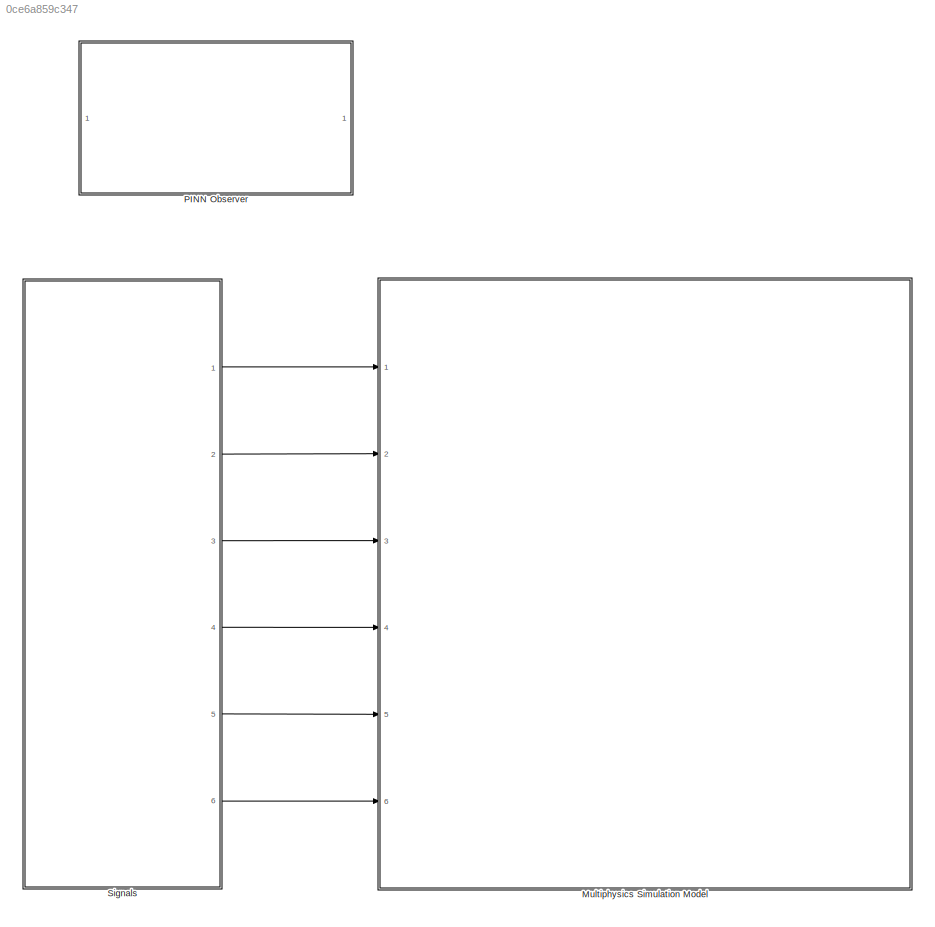
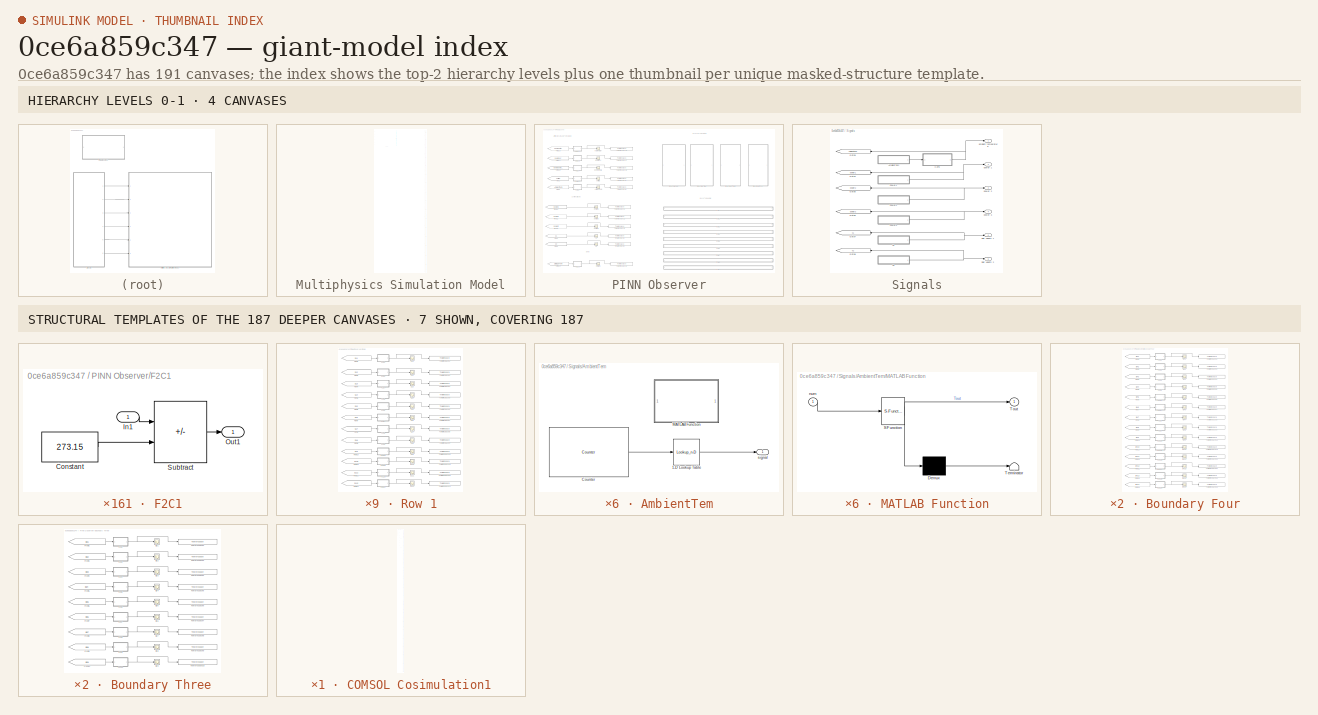
[diagram: thumbnail index - top-2 hierarchy levels (4 canvases) + 7 structural-template representatives of the remaining 187 canvases]
MODEL slx_0ce6a859c347
KIND model
CONFIG AbsTol = auto
CONFIG EnableMultiTasking = off
CONFIG FixedStep = sim_interval
CONFIG MaxStep = auto
CONFIG MinStep = auto
CONFIG RelTol = 1e-3
CONFIG SampleTimeConstraint = Unconstrained
CONFIG SolverName = FixedStepAuto
CONFIG StartTime = sim_start
CONFIG StopTime = sim_end
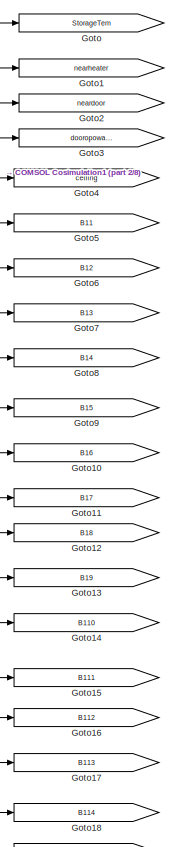
[diagram: Multiphysics Simulation Model - part 1/8, top right region]
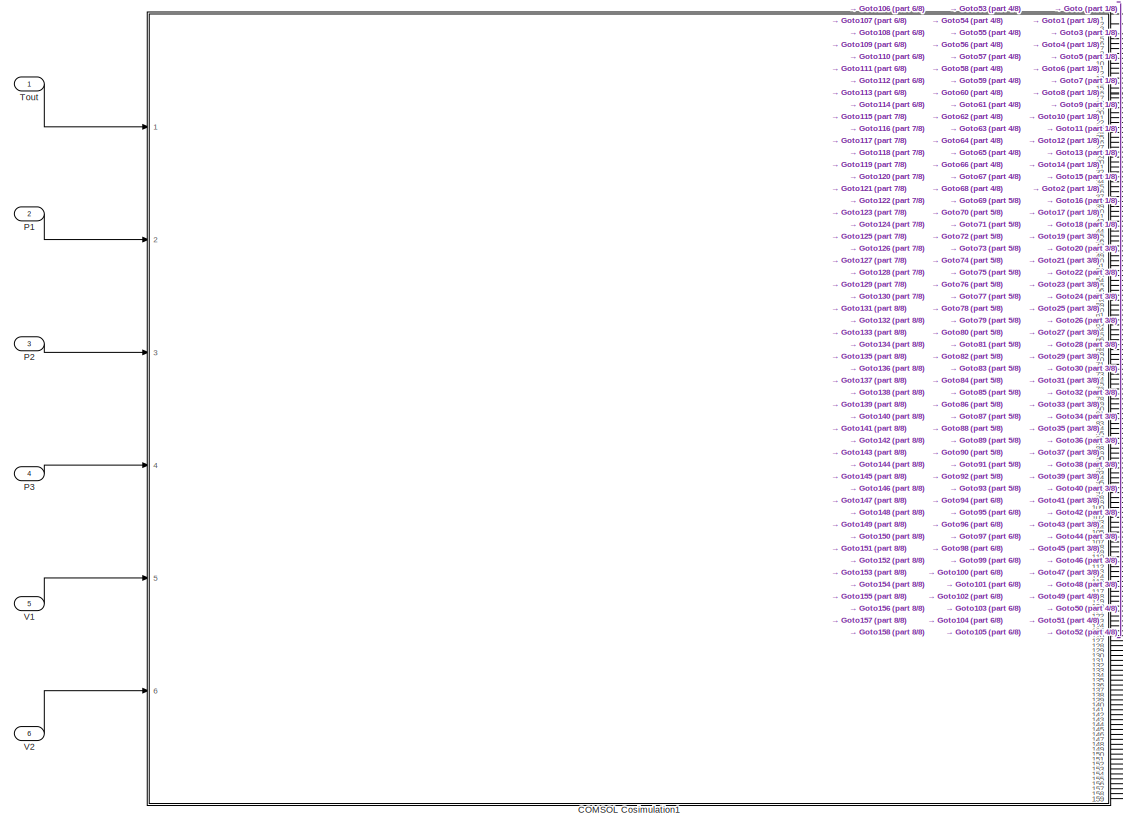
[diagram: Multiphysics Simulation Model - part 2/8, top left region]
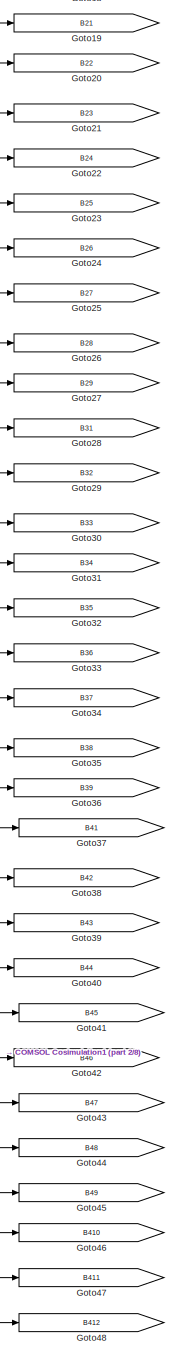
[diagram: Multiphysics Simulation Model - part 3/8, top right region]
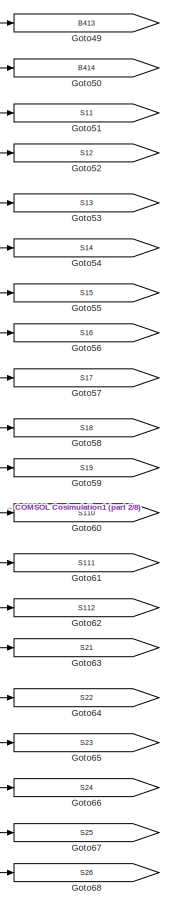
[diagram: Multiphysics Simulation Model - part 4/8, middle right region]
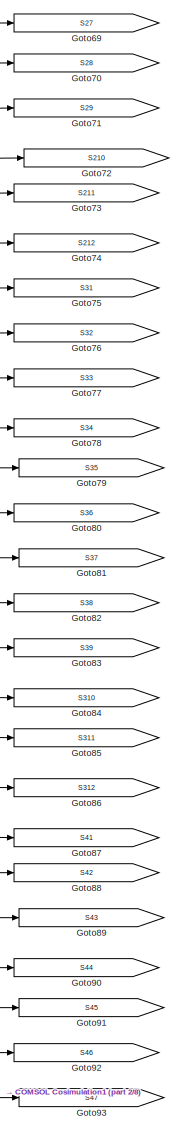
[diagram: Multiphysics Simulation Model - part 5/8, middle right region]
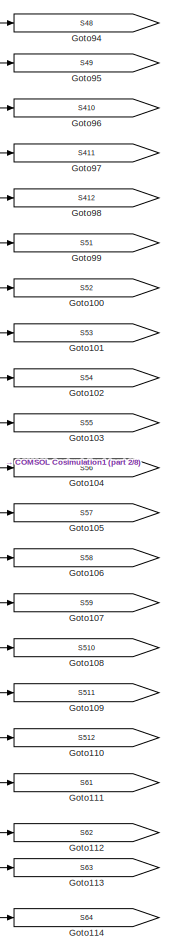
[diagram: Multiphysics Simulation Model - part 6/8, middle right region]
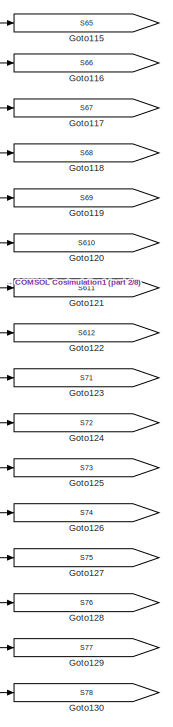
[diagram: Multiphysics Simulation Model - part 7/8, bottom right region]
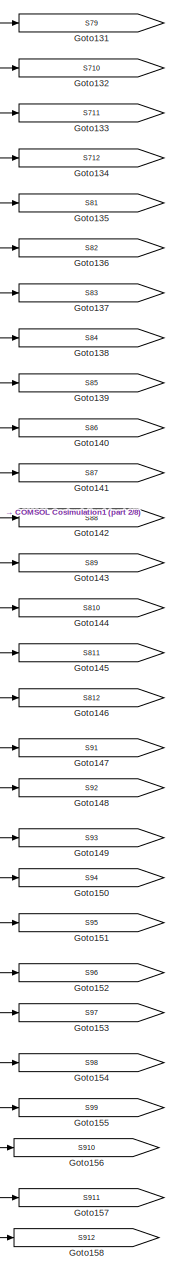
[diagram: Multiphysics Simulation Model - part 8/8, bottom right region]
BLOCK [SubSystem] Multiphysics Simulation Model
  Ports = [6]
  RequestExecContextInheritance = off
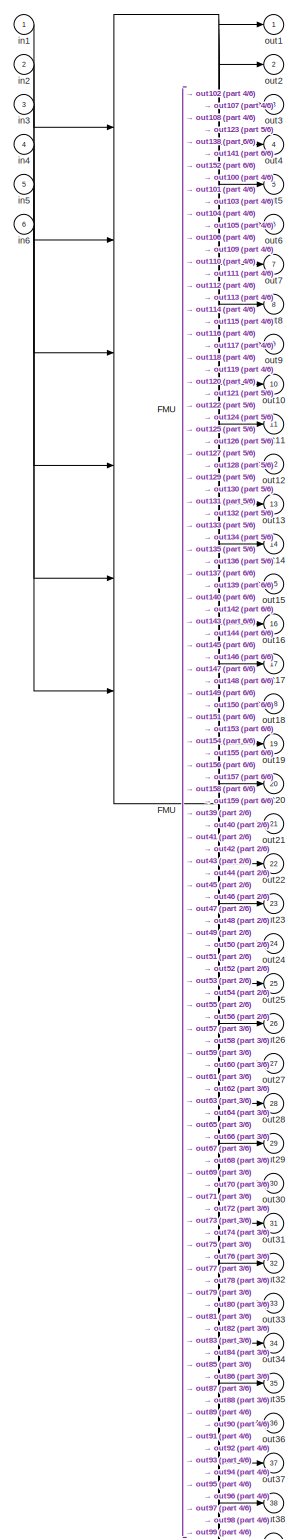
[diagram: Multiphysics Simulation Model/COMSOL Cosimulation1 - part 1/6, full width, top band]
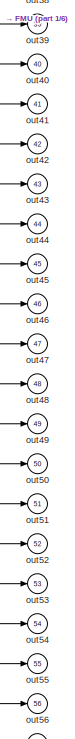
[diagram: Multiphysics Simulation Model/COMSOL Cosimulation1 - part 2/6, top right region]
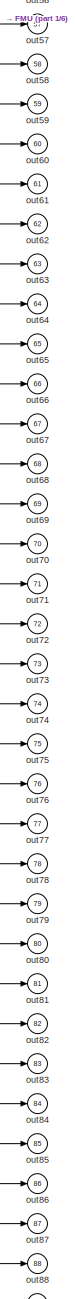
[diagram: Multiphysics Simulation Model/COMSOL Cosimulation1 - part 3/6, middle right region]
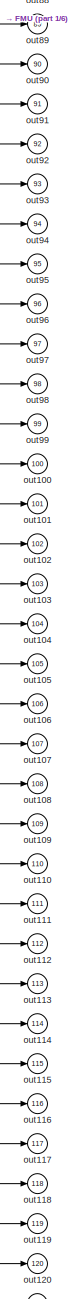
[diagram: Multiphysics Simulation Model/COMSOL Cosimulation1 - part 4/6, middle right region]
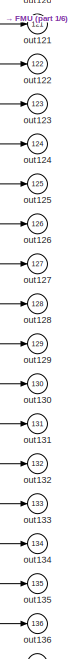
[diagram: Multiphysics Simulation Model/COMSOL Cosimulation1 - part 5/6, bottom right region]
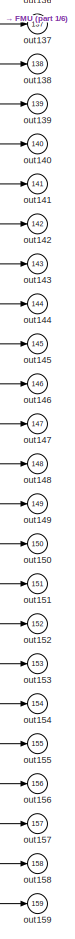
[diagram: Multiphysics Simulation Model/COMSOL Cosimulation1 - part 6/6, bottom right region]
BLOCK [SubSystem] Multiphysics Simulation Model/COMSOL Cosimulation1
  Ports = [6, 159]
  RequestExecContextInheritance = off
BLOCK [FMU] Multiphysics Simulation Model/COMSOL Cosimulation1/FMU
  FMUDebugLogging = on
  FMUMode = CoSimulation
  FMUName = PINN.fmu
  MaskDisplay = if (exist([Simulink.fileGenControl('get','CacheFolder') '\slprj\_fmu\1c0485e634db74c5303fdcceaec22f00\PINN\model.png'],'file'))\n    image([Simulink.fileGenControl('get','CacheFolder') '\slprj\_fmu\1c0485e634db74c5303fdcceaec22f00\PINN\model.png']);\nelse\n    disp('demo0820for62_workstation.mph');\nend\nport_label('output',1,'comp1.dom1');\nport_label('output',2,'comp1.point1');\nport_label('output',3,'...<+6687ch>
  MaskPromptString = TinTin
  MaskType = demo0820for62_workstation.mph [Co-Simulation, v2.0]
  Ports = [6, 159]
  Tin = 292.15
BLOCK [Inport] Multiphysics Simulation Model/COMSOL Cosimulation1/in1
BLOCK [Inport] Multiphysics Simulation Model/COMSOL Cosimulation1/in2
  Port = 2
BLOCK [Inport] Multiphysics Simulation Model/COMSOL Cosimulation1/in3
  Port = 3
BLOCK [Inport] Multiphysics Simulation Model/COMSOL Cosimulation1/in4
  Port = 4
BLOCK [Inport] Multiphysics Simulation Model/COMSOL Cosimulation1/in5
  Port = 5
BLOCK [Inport] Multiphysics Simulation Model/COMSOL Cosimulation1/in6
  Port = 6
BLOCK [Outport] Multiphysics Simulation Model/COMSOL Cosimulation1/out1
BLOCK [Outport] Multiphysics Simulation Model/COMSOL Cosimulation1/out10
  Port = 10
BLOCK [Outport] Multiphysics Simulation Model/COMSOL Cosimulation1/out100
  Port = 100
BLOCK [Outport] Multiphysics Simulation Model/COMSOL Cosimulation1/out101
  Port = 101
BLOCK [Outport] Multiphysics Simulation Model/COMSOL Cosimulation1/out102
  Port = 102
BLOCK [Outport] Multiphysics Simulation Model/COMSOL Cosimulation1/out103
  Port = 103
BLOCK [Outport] Multiphysics Simulation Model/COMSOL Cosimulation1/out104
  Port = 104
BLOCK [Outport] Multiphysics Simulation Model/COMSOL Cosimulation1/out105
  Port = 105
BLOCK [Outport] Multiphysics Simulation Model/COMSOL Cosimulation1/out106
  Port = 106
BLOCK [Outport] Multiphysics Simulation Model/COMSOL Cosimulation1/out107
  Port = 107
BLOCK [Outport] Multiphysics Simulation Model/COMSOL Cosimulation1/out108
  Port = 108
BLOCK [Outport] Multiphysics Simulation Model/COMSOL Cosimulation1/out109
  Port = 109
BLOCK [Outport] Multiphysics Simulation Model/COMSOL Cosimulation1/out11
  Port = 11
BLOCK [Outport] Multiphysics Simulation Model/COMSOL Cosimulation1/out110
  Port = 110
BLOCK [Outport] Multiphysics Simulation Model/COMSOL Cosimulation1/out111
  Port = 111
BLOCK [Outport] Multiphysics Simulation Model/COMSOL Cosimulation1/out112
  Port = 112
BLOCK [Outport] Multiphysics Simulation Model/COMSOL Cosimulation1/out113
  Port = 113
BLOCK [Outport] Multiphysics Simulation Model/COMSOL Cosimulation1/out114
  Port = 114
BLOCK [Outport] Multiphysics Simulation Model/COMSOL Cosimulation1/out115
  Port = 115
BLOCK [Outport] Multiphysics Simulation Model/COMSOL Cosimulation1/out116
  Port = 116
BLOCK [Outport] Multiphysics Simulation Model/COMSOL Cosimulation1/out117
  Port = 117
BLOCK [Outport] Multiphysics Simulation Model/COMSOL Cosimulation1/out118
  Port = 118
BLOCK [Outport] Multiphysics Simulation Model/COMSOL Cosimulation1/out119
  Port = 119
BLOCK [Outport] Multiphysics Simulation Model/COMSOL Cosimulation1/out12
  Port = 12
BLOCK [Outport] Multiphysics Simulation Model/COMSOL Cosimulation1/out120
  Port = 120
BLOCK [Outport] Multiphysics Simulation Model/COMSOL Cosimulation1/out121
  Port = 121
BLOCK [Outport] Multiphysics Simulation Model/COMSOL Cosimulation1/out122
  Port = 122
BLOCK [Outport] Multiphysics Simulation Model/COMSOL Cosimulation1/out123
  Port = 123
BLOCK [Outport] Multiphysics Simulation Model/COMSOL Cosimulation1/out124
  Port = 124
BLOCK [Outport] Multiphysics Simulation Model/COMSOL Cosimulation1/out125
  Port = 125
BLOCK [Outport] Multiphysics Simulation Model/COMSOL Cosimulation1/out126
  Port = 126
BLOCK [Outport] Multiphysics Simulation Model/COMSOL Cosimulation1/out127
  Port = 127
BLOCK [Outport] Multiphysics Simulation Model/COMSOL Cosimulation1/out128
  Port = 128
BLOCK [Outport] Multiphysics Simulation Model/COMSOL Cosimulation1/out129
  Port = 129
BLOCK [Outport] Multiphysics Simulation Model/COMSOL Cosimulation1/out13
  Port = 13
BLOCK [Outport] Multiphysics Simulation Model/COMSOL Cosimulation1/out130
  Port = 130
BLOCK [Outport] Multiphysics Simulation Model/COMSOL Cosimulation1/out131
  Port = 131
BLOCK [Outport] Multiphysics Simulation Model/COMSOL Cosimulation1/out132
  Port = 132
BLOCK [Outport] Multiphysics Simulation Model/COMSOL Cosimulation1/out133
  Port = 133
BLOCK [Outport] Multiphysics Simulation Model/COMSOL Cosimulation1/out134
  Port = 134
BLOCK [Outport] Multiphysics Simulation Model/COMSOL Cosimulation1/out135
  Port = 135
BLOCK [Outport] Multiphysics Simulation Model/COMSOL Cosimulation1/out136
  Port = 136
BLOCK [Outport] Multiphysics Simulation Model/COMSOL Cosimulation1/out137
  Port = 137
BLOCK [Outport] Multiphysics Simulation Model/COMSOL Cosimulation1/out138
  Port = 138
BLOCK [Outport] Multiphysics Simulation Model/COMSOL Cosimulation1/out139
  Port = 139
BLOCK [Outport] Multiphysics Simulation Model/COMSOL Cosimulation1/out14
  Port = 14
BLOCK [Outport] Multiphysics Simulation Model/COMSOL Cosimulation1/out140
  Port = 140
BLOCK [Outport] Multiphysics Simulation Model/COMSOL Cosimulation1/out141
  Port = 141
BLOCK [Outport] Multiphysics Simulation Model/COMSOL Cosimulation1/out142
  Port = 142
BLOCK [Outport] Multiphysics Simulation Model/COMSOL Cosimulation1/out143
  Port = 143
BLOCK [Outport] Multiphysics Simulation Model/COMSOL Cosimulation1/out144
  Port = 144
BLOCK [Outport] Multiphysics Simulation Model/COMSOL Cosimulation1/out145
  Port = 145
BLOCK [Outport] Multiphysics Simulation Model/COMSOL Cosimulation1/out146
  Port = 146
BLOCK [Outport] Multiphysics Simulation Model/COMSOL Cosimulation1/out147
  Port = 147
BLOCK [Outport] Multiphysics Simulation Model/COMSOL Cosimulation1/out148
  Port = 148
BLOCK [Outport] Multiphysics Simulation Model/COMSOL Cosimulation1/out149
  Port = 149
BLOCK [Outport] Multiphysics Simulation Model/COMSOL Cosimulation1/out15
  Port = 15
BLOCK [Outport] Multiphysics Simulation Model/COMSOL Cosimulation1/out150
  Port = 150
BLOCK [Outport] Multiphysics Simulation Model/COMSOL Cosimulation1/out151
  Port = 151
BLOCK [Outport] Multiphysics Simulation Model/COMSOL Cosimulation1/out152
  Port = 152
BLOCK [Outport] Multiphysics Simulation Model/COMSOL Cosimulation1/out153
  Port = 153
BLOCK [Outport] Multiphysics Simulation Model/COMSOL Cosimulation1/out154
  Port = 154
BLOCK [Outport] Multiphysics Simulation Model/COMSOL Cosimulation1/out155
  Port = 155
BLOCK [Outport] Multiphysics Simulation Model/COMSOL Cosimulation1/out156
  Port = 156
BLOCK [Outport] Multiphysics Simulation Model/COMSOL Cosimulation1/out157
  Port = 157
BLOCK [Outport] Multiphysics Simulation Model/COMSOL Cosimulation1/out158
  Port = 158
BLOCK [Outport] Multiphysics Simulation Model/COMSOL Cosimulation1/out159
  Port = 159
BLOCK [Outport] Multiphysics Simulation Model/COMSOL Cosimulation1/out16
  Port = 16
BLOCK [Outport] Multiphysics Simulation Model/COMSOL Cosimulation1/out17
  Port = 17
BLOCK [Outport] Multiphysics Simulation Model/COMSOL Cosimulation1/out18
  Port = 18
BLOCK [Outport] Multiphysics Simulation Model/COMSOL Cosimulation1/out19
  Port = 19
BLOCK [Outport] Multiphysics Simulation Model/COMSOL Cosimulation1/out2
  Port = 2
BLOCK [Outport] Multiphysics Simulation Model/COMSOL Cosimulation1/out20
  Port = 20
BLOCK [Outport] Multiphysics Simulation Model/COMSOL Cosimulation1/out21
  Port = 21
BLOCK [Outport] Multiphysics Simulation Model/COMSOL Cosimulation1/out22
  Port = 22
BLOCK [Outport] Multiphysics Simulation Model/COMSOL Cosimulation1/out23
  Port = 23
BLOCK [Outport] Multiphysics Simulation Model/COMSOL Cosimulation1/out24
  Port = 24
BLOCK [Outport] Multiphysics Simulation Model/COMSOL Cosimulation1/out25
  Port = 25
BLOCK [Outport] Multiphysics Simulation Model/COMSOL Cosimulation1/out26
  Port = 26
BLOCK [Outport] Multiphysics Simulation Model/COMSOL Cosimulation1/out27
  Port = 27
BLOCK [Outport] Multiphysics Simulation Model/COMSOL Cosimulation1/out28
  Port = 28
BLOCK [Outport] Multiphysics Simulation Model/COMSOL Cosimulation1/out29
  Port = 29
BLOCK [Outport] Multiphysics Simulation Model/COMSOL Cosimulation1/out3
  Port = 3
BLOCK [Outport] Multiphysics Simulation Model/COMSOL Cosimulation1/out30
  Port = 30
BLOCK [Outport] Multiphysics Simulation Model/COMSOL Cosimulation1/out31
  Port = 31
BLOCK [Outport] Multiphysics Simulation Model/COMSOL Cosimulation1/out32
  Port = 32
BLOCK [Outport] Multiphysics Simulation Model/COMSOL Cosimulation1/out33
  Port = 33
BLOCK [Outport] Multiphysics Simulation Model/COMSOL Cosimulation1/out34
  Port = 34
BLOCK [Outport] Multiphysics Simulation Model/COMSOL Cosimulation1/out35
  Port = 35
BLOCK [Outport] Multiphysics Simulation Model/COMSOL Cosimulation1/out36
  Port = 36
BLOCK [Outport] Multiphysics Simulation Model/COMSOL Cosimulation1/out37
  Port = 37
BLOCK [Outport] Multiphysics Simulation Model/COMSOL Cosimulation1/out38
  Port = 38
BLOCK [Outport] Multiphysics Simulation Model/COMSOL Cosimulation1/out39
  Port = 39
BLOCK [Outport] Multiphysics Simulation Model/COMSOL Cosimulation1/out4
  Port = 4
BLOCK [Outport] Multiphysics Simulation Model/COMSOL Cosimulation1/out40
  Port = 40
BLOCK [Outport] Multiphysics Simulation Model/COMSOL Cosimulation1/out41
  Port = 41
BLOCK [Outport] Multiphysics Simulation Model/COMSOL Cosimulation1/out42
  Port = 42
BLOCK [Outport] Multiphysics Simulation Model/COMSOL Cosimulation1/out43
  Port = 43
BLOCK [Outport] Multiphysics Simulation Model/COMSOL Cosimulation1/out44
  Port = 44
BLOCK [Outport] Multiphysics Simulation Model/COMSOL Cosimulation1/out45
  Port = 45
BLOCK [Outport] Multiphysics Simulation Model/COMSOL Cosimulation1/out46
  Port = 46
BLOCK [Outport] Multiphysics Simulation Model/COMSOL Cosimulation1/out47
  Port = 47
BLOCK [Outport] Multiphysics Simulation Model/COMSOL Cosimulation1/out48
  Port = 48
BLOCK [Outport] Multiphysics Simulation Model/COMSOL Cosimulation1/out49
  Port = 49
BLOCK [Outport] Multiphysics Simulation Model/COMSOL Cosimulation1/out5
  Port = 5
BLOCK [Outport] Multiphysics Simulation Model/COMSOL Cosimulation1/out50
  Port = 50
BLOCK [Outport] Multiphysics Simulation Model/COMSOL Cosimulation1/out51
  Port = 51
BLOCK [Outport] Multiphysics Simulation Model/COMSOL Cosimulation1/out52
  Port = 52
BLOCK [Outport] Multiphysics Simulation Model/COMSOL Cosimulation1/out53
  Port = 53
BLOCK [Outport] Multiphysics Simulation Model/COMSOL Cosimulation1/out54
  Port = 54
BLOCK [Outport] Multiphysics Simulation Model/COMSOL Cosimulation1/out55
  Port = 55
BLOCK [Outport] Multiphysics Simulation Model/COMSOL Cosimulation1/out56
  Port = 56
BLOCK [Outport] Multiphysics Simulation Model/COMSOL Cosimulation1/out57
  Port = 57
BLOCK [Outport] Multiphysics Simulation Model/COMSOL Cosimulation1/out58
  Port = 58
BLOCK [Outport] Multiphysics Simulation Model/COMSOL Cosimulation1/out59
  Port = 59
BLOCK [Outport] Multiphysics Simulation Model/COMSOL Cosimulation1/out6
  Port = 6
BLOCK [Outport] Multiphysics Simulation Model/COMSOL Cosimulation1/out60
  Port = 60
BLOCK [Outport] Multiphysics Simulation Model/COMSOL Cosimulation1/out61
  Port = 61
BLOCK [Outport] Multiphysics Simulation Model/COMSOL Cosimulation1/out62
  Port = 62
BLOCK [Outport] Multiphysics Simulation Model/COMSOL Cosimulation1/out63
  Port = 63
BLOCK [Outport] Multiphysics Simulation Model/COMSOL Cosimulation1/out64
  Port = 64
BLOCK [Outport] Multiphysics Simulation Model/COMSOL Cosimulation1/out65
  Port = 65
BLOCK [Outport] Multiphysics Simulation Model/COMSOL Cosimulation1/out66
  Port = 66
BLOCK [Outport] Multiphysics Simulation Model/COMSOL Cosimulation1/out67
  Port = 67
BLOCK [Outport] Multiphysics Simulation Model/COMSOL Cosimulation1/out68
  Port = 68
BLOCK [Outport] Multiphysics Simulation Model/COMSOL Cosimulation1/out69
  Port = 69
BLOCK [Outport] Multiphysics Simulation Model/COMSOL Cosimulation1/out7
  Port = 7
BLOCK [Outport] Multiphysics Simulation Model/COMSOL Cosimulation1/out70
  Port = 70
BLOCK [Outport] Multiphysics Simulation Model/COMSOL Cosimulation1/out71
  Port = 71
BLOCK [Outport] Multiphysics Simulation Model/COMSOL Cosimulation1/out72
  Port = 72
BLOCK [Outport] Multiphysics Simulation Model/COMSOL Cosimulation1/out73
  Port = 73
BLOCK [Outport] Multiphysics Simulation Model/COMSOL Cosimulation1/out74
  Port = 74
BLOCK [Outport] Multiphysics Simulation Model/COMSOL Cosimulation1/out75
  Port = 75
BLOCK [Outport] Multiphysics Simulation Model/COMSOL Cosimulation1/out76
  Port = 76
BLOCK [Outport] Multiphysics Simulation Model/COMSOL Cosimulation1/out77
  Port = 77
BLOCK [Outport] Multiphysics Simulation Model/COMSOL Cosimulation1/out78
  Port = 78
BLOCK [Outport] Multiphysics Simulation Model/COMSOL Cosimulation1/out79
  Port = 79
BLOCK [Outport] Multiphysics Simulation Model/COMSOL Cosimulation1/out8
  Port = 8
BLOCK [Outport] Multiphysics Simulation Model/COMSOL Cosimulation1/out80
  Port = 80
BLOCK [Outport] Multiphysics Simulation Model/COMSOL Cosimulation1/out81
  Port = 81
BLOCK [Outport] Multiphysics Simulation Model/COMSOL Cosimulation1/out82
  Port = 82
BLOCK [Outport] Multiphysics Simulation Model/COMSOL Cosimulation1/out83
  Port = 83
BLOCK [Outport] Multiphysics Simulation Model/COMSOL Cosimulation1/out84
  Port = 84
BLOCK [Outport] Multiphysics Simulation Model/COMSOL Cosimulation1/out85
  Port = 85
BLOCK [Outport] Multiphysics Simulation Model/COMSOL Cosimulation1/out86
  Port = 86
BLOCK [Outport] Multiphysics Simulation Model/COMSOL Cosimulation1/out87
  Port = 87
BLOCK [Outport] Multiphysics Simulation Model/COMSOL Cosimulation1/out88
  Port = 88
BLOCK [Outport] Multiphysics Simulation Model/COMSOL Cosimulation1/out89
  Port = 89
BLOCK [Outport] Multiphysics Simulation Model/COMSOL Cosimulation1/out9
  Port = 9
BLOCK [Outport] Multiphysics Simulation Model/COMSOL Cosimulation1/out90
  Port = 90
BLOCK [Outport] Multiphysics Simulation Model/COMSOL Cosimulation1/out91
  Port = 91
BLOCK [Outport] Multiphysics Simulation Model/COMSOL Cosimulation1/out92
  Port = 92
BLOCK [Outport] Multiphysics Simulation Model/COMSOL Cosimulation1/out93
  Port = 93
BLOCK [Outport] Multiphysics Simulation Model/COMSOL Cosimulation1/out94
  Port = 94
BLOCK [Outport] Multiphysics Simulation Model/COMSOL Cosimulation1/out95
  Port = 95
BLOCK [Outport] Multiphysics Simulation Model/COMSOL Cosimulation1/out96
  Port = 96
BLOCK [Outport] Multiphysics Simulation Model/COMSOL Cosimulation1/out97
  Port = 97
BLOCK [Outport] Multiphysics Simulation Model/COMSOL Cosimulation1/out98
  Port = 98
BLOCK [Outport] Multiphysics Simulation Model/COMSOL Cosimulation1/out99
  Port = 99
BLOCK [Goto] Multiphysics Simulation Model/Goto
  GotoTag = StorageTem
  TagVisibility = global
BLOCK [Goto] Multiphysics Simulation Model/Goto1
  GotoTag = nearheater
  TagVisibility = global
BLOCK [Goto] Multiphysics Simulation Model/Goto10
  GotoTag = B16
  TagVisibility = global
BLOCK [Goto] Multiphysics Simulation Model/Goto100
  GotoTag = S52
  TagVisibility = global
BLOCK [Goto] Multiphysics Simulation Model/Goto101
  GotoTag = S53
  TagVisibility = global
BLOCK [Goto] Multiphysics Simulation Model/Goto102
  GotoTag = S54
  TagVisibility = global
BLOCK [Goto] Multiphysics Simulation Model/Goto103
  GotoTag = S55
  TagVisibility = global
BLOCK [Goto] Multiphysics Simulation Model/Goto104
  GotoTag = S56
  TagVisibility = global
BLOCK [Goto] Multiphysics Simulation Model/Goto105
  GotoTag = S57
  TagVisibility = global
BLOCK [Goto] Multiphysics Simulation Model/Goto106
  GotoTag = S58
  TagVisibility = global
BLOCK [Goto] Multiphysics Simulation Model/Goto107
  GotoTag = S59
  TagVisibility = global
BLOCK [Goto] Multiphysics Simulation Model/Goto108
  GotoTag = S510
  TagVisibility = global
BLOCK [Goto] Multiphysics Simulation Model/Goto109
  GotoTag = S511
  TagVisibility = global
BLOCK [Goto] Multiphysics Simulation Model/Goto11
  GotoTag = B17
  TagVisibility = global
BLOCK [Goto] Multiphysics Simulation Model/Goto110
  GotoTag = S512
  TagVisibility = global
BLOCK [Goto] Multiphysics Simulation Model/Goto111
  GotoTag = S61
  TagVisibility = global
BLOCK [Goto] Multiphysics Simulation Model/Goto112
  GotoTag = S62
  TagVisibility = global
BLOCK [Goto] Multiphysics Simulation Model/Goto113
  GotoTag = S63
  TagVisibility = global
BLOCK [Goto] Multiphysics Simulation Model/Goto114
  GotoTag = S64
  TagVisibility = global
BLOCK [Goto] Multiphysics Simulation Model/Goto115
  GotoTag = S65
  TagVisibility = global
BLOCK [Goto] Multiphysics Simulation Model/Goto116
  GotoTag = S66
  TagVisibility = global
BLOCK [Goto] Multiphysics Simulation Model/Goto117
  GotoTag = S67
  TagVisibility = global
BLOCK [Goto] Multiphysics Simulation Model/Goto118
  GotoTag = S68
  TagVisibility = global
BLOCK [Goto] Multiphysics Simulation Model/Goto119
  GotoTag = S69
  TagVisibility = global
BLOCK [Goto] Multiphysics Simulation Model/Goto12
  GotoTag = B18
  TagVisibility = global
BLOCK [Goto] Multiphysics Simulation Model/Goto120
  GotoTag = S610
  TagVisibility = global
BLOCK [Goto] Multiphysics Simulation Model/Goto121
  GotoTag = S611
  TagVisibility = global
BLOCK [Goto] Multiphysics Simulation Model/Goto122
  GotoTag = S612
  TagVisibility = global
BLOCK [Goto] Multiphysics Simulation Model/Goto123
  GotoTag = S71
  TagVisibility = global
BLOCK [Goto] Multiphysics Simulation Model/Goto124
  GotoTag = S72
  TagVisibility = global
BLOCK [Goto] Multiphysics Simulation Model/Goto125
  GotoTag = S73
  TagVisibility = global
BLOCK [Goto] Multiphysics Simulation Model/Goto126
  GotoTag = S74
  TagVisibility = global
BLOCK [Goto] Multiphysics Simulation Model/Goto127
  GotoTag = S75
  TagVisibility = global
BLOCK [Goto] Multiphysics Simulation Model/Goto128
  GotoTag = S76
  TagVisibility = global
BLOCK [Goto] Multiphysics Simulation Model/Goto129
  GotoTag = S77
  TagVisibility = global
BLOCK [Goto] Multiphysics Simulation Model/Goto13
  GotoTag = B19
  TagVisibility = global
BLOCK [Goto] Multiphysics Simulation Model/Goto130
  GotoTag = S78
  TagVisibility = global
BLOCK [Goto] Multiphysics Simulation Model/Goto131
  GotoTag = S79
  TagVisibility = global
BLOCK [Goto] Multiphysics Simulation Model/Goto132
  GotoTag = S710
  TagVisibility = global
BLOCK [Goto] Multiphysics Simulation Model/Goto133
  GotoTag = S711
  TagVisibility = global
BLOCK [Goto] Multiphysics Simulation Model/Goto134
  GotoTag = S712
  TagVisibility = global
BLOCK [Goto] Multiphysics Simulation Model/Goto135
  GotoTag = S81
  TagVisibility = global
BLOCK [Goto] Multiphysics Simulation Model/Goto136
  GotoTag = S82
  TagVisibility = global
BLOCK [Goto] Multiphysics Simulation Model/Goto137
  GotoTag = S83
  TagVisibility = global
BLOCK [Goto] Multiphysics Simulation Model/Goto138
  GotoTag = S84
  TagVisibility = global
BLOCK [Goto] Multiphysics Simulation Model/Goto139
  GotoTag = S85
  TagVisibility = global
BLOCK [Goto] Multiphysics Simulation Model/Goto14
  GotoTag = B110
  TagVisibility = global
BLOCK [Goto] Multiphysics Simulation Model/Goto140
  GotoTag = S86
  TagVisibility = global
BLOCK [Goto] Multiphysics Simulation Model/Goto141
  GotoTag = S87
  TagVisibility = global
BLOCK [Goto] Multiphysics Simulation Model/Goto142
  GotoTag = S88
  TagVisibility = global
BLOCK [Goto] Multiphysics Simulation Model/Goto143
  GotoTag = S89
  TagVisibility = global
BLOCK [Goto] Multiphysics Simulation Model/Goto144
  GotoTag = S810
  TagVisibility = global
BLOCK [Goto] Multiphysics Simulation Model/Goto145
  GotoTag = S811
  TagVisibility = global
BLOCK [Goto] Multiphysics Simulation Model/Goto146
  GotoTag = S812
  TagVisibility = global
BLOCK [Goto] Multiphysics Simulation Model/Goto147
  GotoTag = S91
  TagVisibility = global
BLOCK [Goto] Multiphysics Simulation Model/Goto148
  GotoTag = S92
  TagVisibility = global
BLOCK [Goto] Multiphysics Simulation Model/Goto149
  GotoTag = S93
  TagVisibility = global
BLOCK [Goto] Multiphysics Simulation Model/Goto15
  GotoTag = B111
  TagVisibility = global
BLOCK [Goto] Multiphysics Simulation Model/Goto150
  GotoTag = S94
  TagVisibility = global
BLOCK [Goto] Multiphysics Simulation Model/Goto151
  GotoTag = S95
  TagVisibility = global
BLOCK [Goto] Multiphysics Simulation Model/Goto152
  GotoTag = S96
  TagVisibility = global
BLOCK [Goto] Multiphysics Simulation Model/Goto153
  GotoTag = S97
  TagVisibility = global
BLOCK [Goto] Multiphysics Simulation Model/Goto154
  GotoTag = S98
  TagVisibility = global
BLOCK [Goto] Multiphysics Simulation Model/Goto155
  GotoTag = S99
  TagVisibility = global
BLOCK [Goto] Multiphysics Simulation Model/Goto156
  GotoTag = S910
  TagVisibility = global
BLOCK [Goto] Multiphysics Simulation Model/Goto157
  GotoTag = S911
  TagVisibility = global
BLOCK [Goto] Multiphysics Simulation Model/Goto158
  GotoTag = S912
  TagVisibility = global
BLOCK [Goto] Multiphysics Simulation Model/Goto16
  GotoTag = B112
  TagVisibility = global
BLOCK [Goto] Multiphysics Simulation Model/Goto17
  GotoTag = B113
  TagVisibility = global
BLOCK [Goto] Multiphysics Simulation Model/Goto18
  GotoTag = B114
  TagVisibility = global
BLOCK [Goto] Multiphysics Simulation Model/Goto19
  GotoTag = B21
  TagVisibility = global
BLOCK [Goto] Multiphysics Simulation Model/Goto2
  GotoTag = neardoor
  TagVisibility = global
BLOCK [Goto] Multiphysics Simulation Model/Goto20
  GotoTag = B22
  TagVisibility = global
BLOCK [Goto] Multiphysics Simulation Model/Goto21
  GotoTag = B23
  TagVisibility = global
BLOCK [Goto] Multiphysics Simulation Model/Goto22
  GotoTag = B24
  TagVisibility = global
BLOCK [Goto] Multiphysics Simulation Model/Goto23
  GotoTag = B25
  TagVisibility = global
BLOCK [Goto] Multiphysics Simulation Model/Goto24
  GotoTag = B26
  TagVisibility = global
BLOCK [Goto] Multiphysics Simulation Model/Goto25
  GotoTag = B27
  TagVisibility = global
BLOCK [Goto] Multiphysics Simulation Model/Goto26
  GotoTag = B28
  TagVisibility = global
BLOCK [Goto] Multiphysics Simulation Model/Goto27
  GotoTag = B29
  TagVisibility = global
BLOCK [Goto] Multiphysics Simulation Model/Goto28
  GotoTag = B31
  TagVisibility = global
BLOCK [Goto] Multiphysics Simulation Model/Goto29
  GotoTag = B32
  TagVisibility = global
BLOCK [Goto] Multiphysics Simulation Model/Goto3
  GotoTag = dooropowall
  TagVisibility = global
BLOCK [Goto] Multiphysics Simulation Model/Goto30
  GotoTag = B33
  TagVisibility = global
BLOCK [Goto] Multiphysics Simulation Model/Goto31
  GotoTag = B34
  TagVisibility = global
BLOCK [Goto] Multiphysics Simulation Model/Goto32
  GotoTag = B35
  TagVisibility = global
BLOCK [Goto] Multiphysics Simulation Model/Goto33
  GotoTag = B36
  TagVisibility = global
BLOCK [Goto] Multiphysics Simulation Model/Goto34
  GotoTag = B37
  TagVisibility = global
BLOCK [Goto] Multiphysics Simulation Model/Goto35
  GotoTag = B38
  TagVisibility = global
BLOCK [Goto] Multiphysics Simulation Model/Goto36
  GotoTag = B39
  TagVisibility = global
BLOCK [Goto] Multiphysics Simulation Model/Goto37
  GotoTag = B41
  TagVisibility = global
BLOCK [Goto] Multiphysics Simulation Model/Goto38
  GotoTag = B42
  TagVisibility = global
BLOCK [Goto] Multiphysics Simulation Model/Goto39
  GotoTag = B43
  TagVisibility = global
BLOCK [Goto] Multiphysics Simulation Model/Goto4
  GotoTag = ceiling
  TagVisibility = global
BLOCK [Goto] Multiphysics Simulation Model/Goto40
  GotoTag = B44
  TagVisibility = global
BLOCK [Goto] Multiphysics Simulation Model/Goto41
  GotoTag = B45
  TagVisibility = global
BLOCK [Goto] Multiphysics Simulation Model/Goto42
  GotoTag = B46
  TagVisibility = global
BLOCK [Goto] Multiphysics Simulation Model/Goto43
  GotoTag = B47
  TagVisibility = global
BLOCK [Goto] Multiphysics Simulation Model/Goto44
  GotoTag = B48
  TagVisibility = global
BLOCK [Goto] Multiphysics Simulation Model/Goto45
  GotoTag = B49
  TagVisibility = global
BLOCK [Goto] Multiphysics Simulation Model/Goto46
  GotoTag = B410
  TagVisibility = global
BLOCK [Goto] Multiphysics Simulation Model/Goto47
  GotoTag = B411
  TagVisibility = global
BLOCK [Goto] Multiphysics Simulation Model/Goto48
  GotoTag = B412
  TagVisibility = global
BLOCK [Goto] Multiphysics Simulation Model/Goto49
  GotoTag = B413
  TagVisibility = global
BLOCK [Goto] Multiphysics Simulation Model/Goto5
  GotoTag = B11
  TagVisibility = global
BLOCK [Goto] Multiphysics Simulation Model/Goto50
  GotoTag = B414
  TagVisibility = global
BLOCK [Goto] Multiphysics Simulation Model/Goto51
  GotoTag = S11
  TagVisibility = global
BLOCK [Goto] Multiphysics Simulation Model/Goto52
  GotoTag = S12
  TagVisibility = global
BLOCK [Goto] Multiphysics Simulation Model/Goto53
  GotoTag = S13
  TagVisibility = global
BLOCK [Goto] Multiphysics Simulation Model/Goto54
  GotoTag = S14
  TagVisibility = global
BLOCK [Goto] Multiphysics Simulation Model/Goto55
  GotoTag = S15
  TagVisibility = global
BLOCK [Goto] Multiphysics Simulation Model/Goto56
  GotoTag = S16
  TagVisibility = global
BLOCK [Goto] Multiphysics Simulation Model/Goto57
  GotoTag = S17
  TagVisibility = global
BLOCK [Goto] Multiphysics Simulation Model/Goto58
  GotoTag = S18
  TagVisibility = global
BLOCK [Goto] Multiphysics Simulation Model/Goto59
  GotoTag = S19
  TagVisibility = global
BLOCK [Goto] Multiphysics Simulation Model/Goto6
  GotoTag = B12
  TagVisibility = global
BLOCK [Goto] Multiphysics Simulation Model/Goto60
  GotoTag = S110
  TagVisibility = global
BLOCK [Goto] Multiphysics Simulation Model/Goto61
  GotoTag = S111
  TagVisibility = global
BLOCK [Goto] Multiphysics Simulation Model/Goto62
  GotoTag = S112
  TagVisibility = global
BLOCK [Goto] Multiphysics Simulation Model/Goto63
  GotoTag = S21
  TagVisibility = global
BLOCK [Goto] Multiphysics Simulation Model/Goto64
  GotoTag = S22
  TagVisibility = global
BLOCK [Goto] Multiphysics Simulation Model/Goto65
  GotoTag = S23
  TagVisibility = global
BLOCK [Goto] Multiphysics Simulation Model/Goto66
  GotoTag = S24
  TagVisibility = global
BLOCK [Goto] Multiphysics Simulation Model/Goto67
  GotoTag = S25
  TagVisibility = global
BLOCK [Goto] Multiphysics Simulation Model/Goto68
  GotoTag = S26
  TagVisibility = global
BLOCK [Goto] Multiphysics Simulation Model/Goto69
  GotoTag = S27
  TagVisibility = global
BLOCK [Goto] Multiphysics Simulation Model/Goto7
  GotoTag = B13
  TagVisibility = global
BLOCK [Goto] Multiphysics Simulation Model/Goto70
  GotoTag = S28
  TagVisibility = global
BLOCK [Goto] Multiphysics Simulation Model/Goto71
  GotoTag = S29
  TagVisibility = global
BLOCK [Goto] Multiphysics Simulation Model/Goto72
  GotoTag = S210
  TagVisibility = global
BLOCK [Goto] Multiphysics Simulation Model/Goto73
  GotoTag = S211
  TagVisibility = global
BLOCK [Goto] Multiphysics Simulation Model/Goto74
  GotoTag = S212
  TagVisibility = global
BLOCK [Goto] Multiphysics Simulation Model/Goto75
  GotoTag = S31
  TagVisibility = global
BLOCK [Goto] Multiphysics Simulation Model/Goto76
  GotoTag = S32
  TagVisibility = global
BLOCK [Goto] Multiphysics Simulation Model/Goto77
  GotoTag = S33
  TagVisibility = global
BLOCK [Goto] Multiphysics Simulation Model/Goto78
  GotoTag = S34
  TagVisibility = global
BLOCK [Goto] Multiphysics Simulation Model/Goto79
  GotoTag = S35
  TagVisibility = global
BLOCK [Goto] Multiphysics Simulation Model/Goto8
  GotoTag = B14
  TagVisibility = global
BLOCK [Goto] Multiphysics Simulation Model/Goto80
  GotoTag = S36
  TagVisibility = global
BLOCK [Goto] Multiphysics Simulation Model/Goto81
  GotoTag = S37
  TagVisibility = global
BLOCK [Goto] Multiphysics Simulation Model/Goto82
  GotoTag = S38
  TagVisibility = global
BLOCK [Goto] Multiphysics Simulation Model/Goto83
  GotoTag = S39
  TagVisibility = global
BLOCK [Goto] Multiphysics Simulation Model/Goto84
  GotoTag = S310
  TagVisibility = global
BLOCK [Goto] Multiphysics Simulation Model/Goto85
  GotoTag = S311
  TagVisibility = global
BLOCK [Goto] Multiphysics Simulation Model/Goto86
  GotoTag = S312
  TagVisibility = global
BLOCK [Goto] Multiphysics Simulation Model/Goto87
  GotoTag = S41
  TagVisibility = global
BLOCK [Goto] Multiphysics Simulation Model/Goto88
  GotoTag = S42
  TagVisibility = global
BLOCK [Goto] Multiphysics Simulation Model/Goto89
  GotoTag = S43
  TagVisibility = global
BLOCK [Goto] Multiphysics Simulation Model/Goto9
  GotoTag = B15
  TagVisibility = global
BLOCK [Goto] Multiphysics Simulation Model/Goto90
  GotoTag = S44
  TagVisibility = global
BLOCK [Goto] Multiphysics Simulation Model/Goto91
  GotoTag = S45
  TagVisibility = global
BLOCK [Goto] Multiphysics Simulation Model/Goto92
  GotoTag = S46
  TagVisibility = global
BLOCK [Goto] Multiphysics Simulation Model/Goto93
  GotoTag = S47
  TagVisibility = global
BLOCK [Goto] Multiphysics Simulation Model/Goto94
  GotoTag = S48
  TagVisibility = global
BLOCK [Goto] Multiphysics Simulation Model/Goto95
  GotoTag = S49
  TagVisibility = global
BLOCK [Goto] Multiphysics Simulation Model/Goto96
  GotoTag = S410
  TagVisibility = global
BLOCK [Goto] Multiphysics Simulation Model/Goto97
  GotoTag = S411
  TagVisibility = global
BLOCK [Goto] Multiphysics Simulation Model/Goto98
  GotoTag = S412
  TagVisibility = global
BLOCK [Goto] Multiphysics Simulation Model/Goto99
  GotoTag = S51
  TagVisibility = global
BLOCK [Inport] Multiphysics Simulation Model/P1
  Port = 2
BLOCK [Inport] Multiphysics Simulation Model/P2
  Port = 3
BLOCK [Inport] Multiphysics Simulation Model/P3
  Port = 4
BLOCK [Inport] Multiphysics Simulation Model/Tout
BLOCK [Inport] Multiphysics Simulation Model/V1
  Port = 5
BLOCK [Inport] Multiphysics Simulation Model/V2
  Port = 6
BLOCK [SubSystem] PINN Observer
  Ports = []
  RequestExecContextInheritance = off
BLOCK [Scope] PINN Observer/AmbientTem
  Floating = off
  NumInputPorts = 1
  Ports = [1]
  ScopeSpecificationString = Simulink.scopes.TimeScopeBlockCfg('CurrentConfiguration', extmgr.ConfigurationSet(extmgr.Configuration('Core','General UI',true),extmgr.Configuration('Core','Source UI',true),extmgr.Configuration('Sources','WiredSimulink',true,'DataLoggingVariableName','ScopeData31'),extmgr.Configuration('Visuals','Time Domain',true,'SerializedDisplays',{struct('MinYLimReal','9.00000','MaxYLimReal','19.00000','YLa...<+1474ch>
BLOCK [SubSystem] PINN Observer/Boundary Four
  Ports = []
  RequestExecContextInheritance = off
BLOCK [Scope] PINN Observer/Boundary Four/B41
  Floating = off
  NumInputPorts = 1
  Ports = [1]
  ScopeSpecificationString = Simulink.scopes.TimeScopeBlockCfg('CurrentConfiguration', extmgr.ConfigurationSet(extmgr.Configuration('Core','General UI',true),extmgr.Configuration('Core','Source UI',true),extmgr.Configuration('Sources','WiredSimulink',true,'DataLoggingVariableName','ScopeData5'),extmgr.Configuration('Visuals','Time Domain',true,'SerializedDisplays',{struct('MinYLimReal','17.70149','MaxYLimReal','20.68519','YLa...<+1422ch>
BLOCK [Scope] PINN Observer/Boundary Four/B410
  Floating = off
  NumInputPorts = 1
  Ports = [1]
  ScopeSpecificationString = Simulink.scopes.TimeScopeBlockCfg('CurrentConfiguration', extmgr.ConfigurationSet(extmgr.Configuration('Core','General UI',true),extmgr.Configuration('Core','Source UI',true),extmgr.Configuration('Sources','WiredSimulink',true,'DataLoggingVariableName','ScopeData14'),extmgr.Configuration('Visuals','Time Domain',true,'SerializedDisplays',{struct('MinYLimReal','17.78986','MaxYLimReal','19.89127','YL...<+1424ch>
BLOCK [Scope] PINN Observer/Boundary Four/B411
  Floating = off
  NumInputPorts = 1
  Ports = [1]
  ScopeSpecificationString = Simulink.scopes.TimeScopeBlockCfg('CurrentConfiguration', extmgr.ConfigurationSet(extmgr.Configuration('Core','General UI',true),extmgr.Configuration('Core','Source UI',true),extmgr.Configuration('Sources','WiredSimulink',true,'DataLoggingVariableName','ScopeData15'),extmgr.Configuration('Visuals','Time Domain',true,'SerializedDisplays',{struct('MinYLimReal','17.80707','MaxYLimReal','19.73514','YL...<+1424ch>
BLOCK [Scope] PINN Observer/Boundary Four/B412
  Floating = off
  NumInputPorts = 1
  Ports = [1]
  ScopeSpecificationString = Simulink.scopes.TimeScopeBlockCfg('CurrentConfiguration', extmgr.ConfigurationSet(extmgr.Configuration('Core','General UI',true),extmgr.Configuration('Core','Source UI',true),extmgr.Configuration('Sources','WiredSimulink',true,'DataLoggingVariableName','ScopeData16'),extmgr.Configuration('Visuals','Time Domain',true,'SerializedDisplays',{struct('MinYLimReal','17.80761','MaxYLimReal','19.73054','YL...<+1424ch>
BLOCK [Scope] PINN Observer/Boundary Four/B413
  Floating = off
  NumInputPorts = 1
  Ports = [1]
  ScopeSpecificationString = Simulink.scopes.TimeScopeBlockCfg('CurrentConfiguration', extmgr.ConfigurationSet(extmgr.Configuration('Core','General UI',true),extmgr.Configuration('Core','Source UI',true),extmgr.Configuration('Sources','WiredSimulink',true,'DataLoggingVariableName','ScopeData17'),extmgr.Configuration('Visuals','Time Domain',true,'SerializedDisplays',{struct('MinYLimReal','17.74585','MaxYLimReal','20.28712','YL...<+1424ch>
BLOCK [Scope] PINN Observer/Boundary Four/B414
  Floating = off
  NumInputPorts = 1
  Ports = [1]
  ScopeSpecificationString = Simulink.scopes.TimeScopeBlockCfg('CurrentConfiguration', extmgr.ConfigurationSet(extmgr.Configuration('Core','General UI',true),extmgr.Configuration('Core','Source UI',true),extmgr.Configuration('Sources','WiredSimulink',true,'DataLoggingVariableName','ScopeData18'),extmgr.Configuration('Visuals','Time Domain',true,'SerializedDisplays',{struct('MinYLimReal','17.75773','MaxYLimReal','20.18015','YL...<+1424ch>
BLOCK [Scope] PINN Observer/Boundary Four/B42
  Floating = off
  NumInputPorts = 1
  Ports = [1]
  ScopeSpecificationString = Simulink.scopes.TimeScopeBlockCfg('CurrentConfiguration', extmgr.ConfigurationSet(extmgr.Configuration('Core','General UI',true),extmgr.Configuration('Core','Source UI',true),extmgr.Configuration('Sources','WiredSimulink',true,'DataLoggingVariableName','ScopeData6'),extmgr.Configuration('Visuals','Time Domain',true,'SerializedDisplays',{struct('MinYLimReal','17.70136','MaxYLimReal','20.68534','YLa...<+1422ch>
BLOCK [Scope] PINN Observer/Boundary Four/B43
  Floating = off
  NumInputPorts = 1
  Ports = [1]
  ScopeSpecificationString = Simulink.scopes.TimeScopeBlockCfg('CurrentConfiguration', extmgr.ConfigurationSet(extmgr.Configuration('Core','General UI',true),extmgr.Configuration('Core','Source UI',true),extmgr.Configuration('Sources','WiredSimulink',true,'DataLoggingVariableName','ScopeData7'),extmgr.Configuration('Visuals','Time Domain',true,'SerializedDisplays',{struct('MinYLimReal','17.75392','MaxYLimReal','20.21226','YLa...<+1422ch>
BLOCK [Scope] PINN Observer/Boundary Four/B44
  Floating = off
  NumInputPorts = 1
  Ports = [1]
  ScopeSpecificationString = Simulink.scopes.TimeScopeBlockCfg('CurrentConfiguration', extmgr.ConfigurationSet(extmgr.Configuration('Core','General UI',true),extmgr.Configuration('Core','Source UI',true),extmgr.Configuration('Sources','WiredSimulink',true,'DataLoggingVariableName','ScopeData8'),extmgr.Configuration('Visuals','Time Domain',true,'SerializedDisplays',{struct('MinYLimReal','17.75823','MaxYLimReal','20.17592','YLa...<+1422ch>
BLOCK [Scope] PINN Observer/Boundary Four/B45
  Floating = off
  NumInputPorts = 1
  Ports = [1]
  ScopeSpecificationString = Simulink.scopes.TimeScopeBlockCfg('CurrentConfiguration', extmgr.ConfigurationSet(extmgr.Configuration('Core','General UI',true),extmgr.Configuration('Core','Source UI',true),extmgr.Configuration('Sources','WiredSimulink',true,'DataLoggingVariableName','ScopeData9'),extmgr.Configuration('Visuals','Time Domain',true,'SerializedDisplays',{struct('MinYLimReal','17.73381','MaxYLimReal','20.39567','YLa...<+1422ch>
BLOCK [Scope] PINN Observer/Boundary Four/B46
  Floating = off
  NumInputPorts = 1
  Ports = [1]
  ScopeSpecificationString = Simulink.scopes.TimeScopeBlockCfg('CurrentConfiguration', extmgr.ConfigurationSet(extmgr.Configuration('Core','General UI',true),extmgr.Configuration('Core','Source UI',true),extmgr.Configuration('Sources','WiredSimulink',true,'DataLoggingVariableName','ScopeData10'),extmgr.Configuration('Visuals','Time Domain',true,'SerializedDisplays',{struct('MinYLimReal','17.71696','MaxYLimReal','20.54737','YL...<+1423ch>
BLOCK [Scope] PINN Observer/Boundary Four/B47
  Floating = off
  NumInputPorts = 1
  Ports = [1]
  ScopeSpecificationString = Simulink.scopes.TimeScopeBlockCfg('CurrentConfiguration', extmgr.ConfigurationSet(extmgr.Configuration('Core','General UI',true),extmgr.Configuration('Core','Source UI',true),extmgr.Configuration('Sources','WiredSimulink',true,'DataLoggingVariableName','ScopeData11'),extmgr.Configuration('Visuals','Time Domain',true,'SerializedDisplays',{struct('MinYLimReal','17.73908','MaxYLimReal','20.34825','YL...<+1423ch>
BLOCK [Scope] PINN Observer/Boundary Four/B48
  Floating = off
  NumInputPorts = 1
  Ports = [1]
  ScopeSpecificationString = Simulink.scopes.TimeScopeBlockCfg('CurrentConfiguration', extmgr.ConfigurationSet(extmgr.Configuration('Core','General UI',true),extmgr.Configuration('Core','Source UI',true),extmgr.Configuration('Sources','WiredSimulink',true,'DataLoggingVariableName','ScopeData12'),extmgr.Configuration('Visuals','Time Domain',true,'SerializedDisplays',{struct('MinYLimReal','17.74795','MaxYLimReal','20.26849','YL...<+1423ch>
BLOCK [Scope] PINN Observer/Boundary Four/B49
  Floating = off
  NumInputPorts = 1
  Ports = [1]
  ScopeSpecificationString = Simulink.scopes.TimeScopeBlockCfg('CurrentConfiguration', extmgr.ConfigurationSet(extmgr.Configuration('Core','General UI',true),extmgr.Configuration('Core','Source UI',true),extmgr.Configuration('Sources','WiredSimulink',true,'DataLoggingVariableName','ScopeData13'),extmgr.Configuration('Visuals','Time Domain',true,'SerializedDisplays',{struct('MinYLimReal','17.76219','MaxYLimReal','20.14027','YL...<+1424ch>
BLOCK [SubSystem] PINN Observer/Boundary Four/F2C10
  Ports = [1, 1]
  RequestExecContextInheritance = off
BLOCK [Constant] PINN Observer/Boundary Four/F2C10/Constant
  Value = 273.15
BLOCK [Inport] PINN Observer/Boundary Four/F2C10/In1
BLOCK [Outport] PINN Observer/Boundary Four/F2C10/Out1
BLOCK [Sum] PINN Observer/Boundary Four/F2C10/Subtract
  IconShape = rectangular
  Inputs = +-
  Ports = [2, 1]
BLOCK [SubSystem] PINN Observer/Boundary Four/F2C15
  Ports = [1, 1]
  RequestExecContextInheritance = off
BLOCK [Constant] PINN Observer/Boundary Four/F2C15/Constant
  Value = 273.15
BLOCK [Inport] PINN Observer/Boundary Four/F2C15/In1
BLOCK [Outport] PINN Observer/Boundary Four/F2C15/Out1
BLOCK [Sum] PINN Observer/Boundary Four/F2C15/Subtract
  IconShape = rectangular
  Inputs = +-
  Ports = [2, 1]
BLOCK [SubSystem] PINN Observer/Boundary Four/F2C16
  Ports = [1, 1]
  RequestExecContextInheritance = off
BLOCK [Constant] PINN Observer/Boundary Four/F2C16/Constant
  Value = 273.15
BLOCK [Inport] PINN Observer/Boundary Four/F2C16/In1
BLOCK [Outport] PINN Observer/Boundary Four/F2C16/Out1
BLOCK [Sum] PINN Observer/Boundary Four/F2C16/Subtract
  IconShape = rectangular
  Inputs = +-
  Ports = [2, 1]
BLOCK [SubSystem] PINN Observer/Boundary Four/F2C17
  Ports = [1, 1]
  RequestExecContextInheritance = off
BLOCK [Constant] PINN Observer/Boundary Four/F2C17/Constant
  Value = 273.15
BLOCK [Inport] PINN Observer/Boundary Four/F2C17/In1
BLOCK [Outport] PINN Observer/Boundary Four/F2C17/Out1
BLOCK [Sum] PINN Observer/Boundary Four/F2C17/Subtract
  IconShape = rectangular
  Inputs = +-
  Ports = [2, 1]
BLOCK [SubSystem] PINN Observer/Boundary Four/F2C18
  Ports = [1, 1]
  RequestExecContextInheritance = off
BLOCK [Constant] PINN Observer/Boundary Four/F2C18/Constant
  Value = 273.15
BLOCK [Inport] PINN Observer/Boundary Four/F2C18/In1
BLOCK [Outport] PINN Observer/Boundary Four/F2C18/Out1
BLOCK [Sum] PINN Observer/Boundary Four/F2C18/Subtract
  IconShape = rectangular
  Inputs = +-
  Ports = [2, 1]
BLOCK [SubSystem] PINN Observer/Boundary Four/F2C19
  Ports = [1, 1]
  RequestExecContextInheritance = off
BLOCK [Constant] PINN Observer/Boundary Four/F2C19/Constant
  Value = 273.15
BLOCK [Inport] PINN Observer/Boundary Four/F2C19/In1
BLOCK [Outport] PINN Observer/Boundary Four/F2C19/Out1
BLOCK [Sum] PINN Observer/Boundary Four/F2C19/Subtract
  IconShape = rectangular
  Inputs = +-
  Ports = [2, 1]
BLOCK [SubSystem] PINN Observer/Boundary Four/F2C2
  Ports = [1, 1]
  RequestExecContextInheritance = off
BLOCK [Constant] PINN Observer/Boundary Four/F2C2/Constant
  Value = 273.15
BLOCK [Inport] PINN Observer/Boundary Four/F2C2/In1
BLOCK [Outport] PINN Observer/Boundary Four/F2C2/Out1
BLOCK [Sum] PINN Observer/Boundary Four/F2C2/Subtract
  IconShape = rectangular
  Inputs = +-
  Ports = [2, 1]
BLOCK [SubSystem] PINN Observer/Boundary Four/F2C3
  Ports = [1, 1]
  RequestExecContextInheritance = off
BLOCK [Constant] PINN Observer/Boundary Four/F2C3/Constant
  Value = 273.15
BLOCK [Inport] PINN Observer/Boundary Four/F2C3/In1
BLOCK [Outport] PINN Observer/Boundary Four/F2C3/Out1
BLOCK [Sum] PINN Observer/Boundary Four/F2C3/Subtract
  IconShape = rectangular
  Inputs = +-
  Ports = [2, 1]
BLOCK [SubSystem] PINN Observer/Boundary Four/F2C4
  Ports = [1, 1]
  RequestExecContextInheritance = off
BLOCK [Constant] PINN Observer/Boundary Four/F2C4/Constant
  Value = 273.15
BLOCK [Inport] PINN Observer/Boundary Four/F2C4/In1
BLOCK [Outport] PINN Observer/Boundary Four/F2C4/Out1
BLOCK [Sum] PINN Observer/Boundary Four/F2C4/Subtract
  IconShape = rectangular
  Inputs = +-
  Ports = [2, 1]
BLOCK [SubSystem] PINN Observer/Boundary Four/F2C5
  Ports = [1, 1]
  RequestExecContextInheritance = off
BLOCK [Constant] PINN Observer/Boundary Four/F2C5/Constant
  Value = 273.15
BLOCK [Inport] PINN Observer/Boundary Four/F2C5/In1
BLOCK [Outport] PINN Observer/Boundary Four/F2C5/Out1
BLOCK [Sum] PINN Observer/Boundary Four/F2C5/Subtract
  IconShape = rectangular
  Inputs = +-
  Ports = [2, 1]
BLOCK [SubSystem] PINN Observer/Boundary Four/F2C6
  Ports = [1, 1]
  RequestExecContextInheritance = off
BLOCK [Constant] PINN Observer/Boundary Four/F2C6/Constant
  Value = 273.15
BLOCK [Inport] PINN Observer/Boundary Four/F2C6/In1
BLOCK [Outport] PINN Observer/Boundary Four/F2C6/Out1
BLOCK [Sum] PINN Observer/Boundary Four/F2C6/Subtract
  IconShape = rectangular
  Inputs = +-
  Ports = [2, 1]
BLOCK [SubSystem] PINN Observer/Boundary Four/F2C7
  Ports = [1, 1]
  RequestExecContextInheritance = off
BLOCK [Constant] PINN Observer/Boundary Four/F2C7/Constant
  Value = 273.15
BLOCK [Inport] PINN Observer/Boundary Four/F2C7/In1
BLOCK [Outport] PINN Observer/Boundary Four/F2C7/Out1
BLOCK [Sum] PINN Observer/Boundary Four/F2C7/Subtract
  IconShape = rectangular
  Inputs = +-
  Ports = [2, 1]
BLOCK [SubSystem] PINN Observer/Boundary Four/F2C8
  Ports = [1, 1]
  RequestExecContextInheritance = off
BLOCK [Constant] PINN Observer/Boundary Four/F2C8/Constant
  Value = 273.15
BLOCK [Inport] PINN Observer/Boundary Four/F2C8/In1
BLOCK [Outport] PINN Observer/Boundary Four/F2C8/Out1
BLOCK [Sum] PINN Observer/Boundary Four/F2C8/Subtract
  IconShape = rectangular
  Inputs = +-
  Ports = [2, 1]
BLOCK [SubSystem] PINN Observer/Boundary Four/F2C9
  Ports = [1, 1]
  RequestExecContextInheritance = off
BLOCK [Constant] PINN Observer/Boundary Four/F2C9/Constant
  Value = 273.15
BLOCK [Inport] PINN Observer/Boundary Four/F2C9/In1
BLOCK [Outport] PINN Observer/Boundary Four/F2C9/Out1
BLOCK [Sum] PINN Observer/Boundary Four/F2C9/Subtract
  IconShape = rectangular
  Inputs = +-
  Ports = [2, 1]
BLOCK [From] PINN Observer/Boundary Four/From10
  GotoTag = B49
  TagVisibility = global
BLOCK [From] PINN Observer/Boundary Four/From19
  GotoTag = B410
  TagVisibility = global
BLOCK [From] PINN Observer/Boundary Four/From2
  GotoTag = B41
  TagVisibility = global
BLOCK [From] PINN Observer/Boundary Four/From20
  GotoTag = B411
  TagVisibility = global
BLOCK [From] PINN Observer/Boundary Four/From21
  GotoTag = B412
  TagVisibility = global
BLOCK [From] PINN Observer/Boundary Four/From22
  GotoTag = B413
  TagVisibility = global
BLOCK [From] PINN Observer/Boundary Four/From23
  GotoTag = B414
  TagVisibility = global
BLOCK [From] PINN Observer/Boundary Four/From3
  GotoTag = B42
  TagVisibility = global
BLOCK [From] PINN Observer/Boundary Four/From4
  GotoTag = B43
  TagVisibility = global
BLOCK [From] PINN Observer/Boundary Four/From5
  GotoTag = B44
  TagVisibility = global
BLOCK [From] PINN Observer/Boundary Four/From6
  GotoTag = B45
  TagVisibility = global
BLOCK [From] PINN Observer/Boundary Four/From7
  GotoTag = B46
  TagVisibility = global
BLOCK [From] PINN Observer/Boundary Four/From8
  GotoTag = B47
  TagVisibility = global
BLOCK [From] PINN Observer/Boundary Four/From9
  GotoTag = B48
  TagVisibility = global
BLOCK [ToWorkspace] PINN Observer/Boundary Four/To Workspace10
  FixptAsFi = on
  MaxDataPoints = inf
  Ports = [1]
  SampleTime = -1
  VariableName = B49
BLOCK [ToWorkspace] PINN Observer/Boundary Four/To Workspace19
  FixptAsFi = on
  MaxDataPoints = inf
  Ports = [1]
  SampleTime = -1
  VariableName = B410
BLOCK [ToWorkspace] PINN Observer/Boundary Four/To Workspace2
  FixptAsFi = on
  MaxDataPoints = inf
  Ports = [1]
  SampleTime = -1
  VariableName = B41
BLOCK [ToWorkspace] PINN Observer/Boundary Four/To Workspace20
  FixptAsFi = on
  MaxDataPoints = inf
  Ports = [1]
  SampleTime = -1
  VariableName = B411
BLOCK [ToWorkspace] PINN Observer/Boundary Four/To Workspace21
  FixptAsFi = on
  MaxDataPoints = inf
  Ports = [1]
  SampleTime = -1
  VariableName = B412
BLOCK [ToWorkspace] PINN Observer/Boundary Four/To Workspace22
  FixptAsFi = on
  MaxDataPoints = inf
  Ports = [1]
  SampleTime = -1
  VariableName = B413
BLOCK [ToWorkspace] PINN Observer/Boundary Four/To Workspace23
  FixptAsFi = on
  MaxDataPoints = inf
  Ports = [1]
  SampleTime = -1
  VariableName = B414
BLOCK [ToWorkspace] PINN Observer/Boundary Four/To Workspace3
  FixptAsFi = on
  MaxDataPoints = inf
  Ports = [1]
  SampleTime = -1
  VariableName = B42
BLOCK [ToWorkspace] PINN Observer/Boundary Four/To Workspace4
  FixptAsFi = on
  MaxDataPoints = inf
  Ports = [1]
  SampleTime = -1
  VariableName = B43
BLOCK [ToWorkspace] PINN Observer/Boundary Four/To Workspace5
  FixptAsFi = on
  MaxDataPoints = inf
  Ports = [1]
  SampleTime = -1
  VariableName = B44
BLOCK [ToWorkspace] PINN Observer/Boundary Four/To Workspace6
  FixptAsFi = on
  MaxDataPoints = inf
  Ports = [1]
  SampleTime = -1
  VariableName = B45
BLOCK [ToWorkspace] PINN Observer/Boundary Four/To Workspace7
  FixptAsFi = on
  MaxDataPoints = inf
  Ports = [1]
  SampleTime = -1
  VariableName = B46
BLOCK [ToWorkspace] PINN Observer/Boundary Four/To Workspace8
  FixptAsFi = on
  MaxDataPoints = inf
  Ports = [1]
  SampleTime = -1
  VariableName = B47
BLOCK [ToWorkspace] PINN Observer/Boundary Four/To Workspace9
  FixptAsFi = on
  MaxDataPoints = inf
  Ports = [1]
  SampleTime = -1
  VariableName = B48
BLOCK [SubSystem] PINN Observer/Boundary One
  Ports = []
  RequestExecContextInheritance = off
BLOCK [Scope] PINN Observer/Boundary One/B11
  Floating = off
  NumInputPorts = 1
  Ports = [1]
  ScopeSpecificationString = Simulink.scopes.TimeScopeBlockCfg('CurrentConfiguration', extmgr.ConfigurationSet(extmgr.Configuration('Core','General UI',true),extmgr.Configuration('Core','Source UI',true),extmgr.Configuration('Sources','WiredSimulink',true,'DataLoggingVariableName','ScopeData5'),extmgr.Configuration('Visuals','Time Domain',true,'SerializedDisplays',{struct('MinYLimReal','16.9062','MaxYLimReal','18.15168','YLab...<+1418ch>
BLOCK [Scope] PINN Observer/Boundary One/B110
  Floating = off
  NumInputPorts = 1
  Ports = [1]
  ScopeSpecificationString = Simulink.scopes.TimeScopeBlockCfg('CurrentConfiguration', extmgr.ConfigurationSet(extmgr.Configuration('Core','General UI',true),extmgr.Configuration('Core','Source UI',true),extmgr.Configuration('Sources','WiredSimulink',true,'DataLoggingVariableName','ScopeData14'),extmgr.Configuration('Visuals','Time Domain',true,'SerializedDisplays',{struct('MinYLimReal','17.67305','MaxYLimReal','20.94276','YL...<+1424ch>
BLOCK [Scope] PINN Observer/Boundary One/B111
  Floating = off
  NumInputPorts = 1
  Ports = [1]
  ScopeSpecificationString = Simulink.scopes.TimeScopeBlockCfg('CurrentConfiguration', extmgr.ConfigurationSet(extmgr.Configuration('Core','General UI',true),extmgr.Configuration('Core','Source UI',true),extmgr.Configuration('Sources','WiredSimulink',true,'DataLoggingVariableName','ScopeData15'),extmgr.Configuration('Visuals','Time Domain',true,'SerializedDisplays',{struct('MinYLimReal','17.79191','MaxYLimReal','19.87281','YL...<+1424ch>
BLOCK [Scope] PINN Observer/Boundary One/B112
  Floating = off
  NumInputPorts = 1
  Ports = [1]
  ScopeSpecificationString = Simulink.scopes.TimeScopeBlockCfg('CurrentConfiguration', extmgr.ConfigurationSet(extmgr.Configuration('Core','General UI',true),extmgr.Configuration('Core','Source UI',true),extmgr.Configuration('Sources','WiredSimulink',true,'DataLoggingVariableName','ScopeData16'),extmgr.Configuration('Visuals','Time Domain',true,'SerializedDisplays',{struct('MinYLimReal','17.73845','MaxYLimReal','20.35391','YL...<+1424ch>
BLOCK [Scope] PINN Observer/Boundary One/B113
  Floating = off
  NumInputPorts = 1
  Ports = [1]
  ScopeSpecificationString = Simulink.scopes.TimeScopeBlockCfg('CurrentConfiguration', extmgr.ConfigurationSet(extmgr.Configuration('Core','General UI',true),extmgr.Configuration('Core','Source UI',true),extmgr.Configuration('Sources','WiredSimulink',true,'DataLoggingVariableName','ScopeData17'),extmgr.Configuration('Visuals','Time Domain',true,'SerializedDisplays',{struct('MinYLimReal','17.75188','MaxYLimReal','20.23311','YL...<+1424ch>
BLOCK [Scope] PINN Observer/Boundary One/B114
  Floating = off
  NumInputPorts = 1
  Ports = [1]
  ScopeSpecificationString = Simulink.scopes.TimeScopeBlockCfg('CurrentConfiguration', extmgr.ConfigurationSet(extmgr.Configuration('Core','General UI',true),extmgr.Configuration('Core','Source UI',true),extmgr.Configuration('Sources','WiredSimulink',true,'DataLoggingVariableName','ScopeData18'),extmgr.Configuration('Visuals','Time Domain',true,'SerializedDisplays',{struct('MinYLimReal','17.77672','MaxYLimReal','20.00949','YL...<+1424ch>
BLOCK [Scope] PINN Observer/Boundary One/B12
  Floating = off
  NumInputPorts = 1
  Ports = [1]
  ScopeSpecificationString = Simulink.scopes.TimeScopeBlockCfg('CurrentConfiguration', extmgr.ConfigurationSet(extmgr.Configuration('Core','General UI',true),extmgr.Configuration('Core','Source UI',true),extmgr.Configuration('Sources','WiredSimulink',true,'DataLoggingVariableName','ScopeData6'),extmgr.Configuration('Visuals','Time Domain',true,'SerializedDisplays',{struct('MinYLimReal','17.66311','MaxYLimReal','21.03205','YLa...<+1422ch>
BLOCK [Scope] PINN Observer/Boundary One/B13
  Floating = off
  NumInputPorts = 1
  Ports = [1]
  ScopeSpecificationString = Simulink.scopes.TimeScopeBlockCfg('CurrentConfiguration', extmgr.ConfigurationSet(extmgr.Configuration('Core','General UI',true),extmgr.Configuration('Core','Source UI',true),extmgr.Configuration('Sources','WiredSimulink',true,'DataLoggingVariableName','ScopeData7'),extmgr.Configuration('Visuals','Time Domain',true,'SerializedDisplays',{struct('MinYLimReal','17.62407','MaxYLimReal','21.38336','YLa...<+1422ch>
BLOCK [Scope] PINN Observer/Boundary One/B14
  Floating = off
  NumInputPorts = 1
  Ports = [1]
  ScopeSpecificationString = Simulink.scopes.TimeScopeBlockCfg('CurrentConfiguration', extmgr.ConfigurationSet(extmgr.Configuration('Core','General UI',true),extmgr.Configuration('Core','Source UI',true),extmgr.Configuration('Sources','WiredSimulink',true,'DataLoggingVariableName','ScopeData8'),extmgr.Configuration('Visuals','Time Domain',true,'SerializedDisplays',{struct('MinYLimReal','17.62656','MaxYLimReal','21.361','YLabe...<+1414ch>
BLOCK [Scope] PINN Observer/Boundary One/B15
  Floating = off
  NumInputPorts = 1
  Ports = [1]
  ScopeSpecificationString = Simulink.scopes.TimeScopeBlockCfg('CurrentConfiguration', extmgr.ConfigurationSet(extmgr.Configuration('Core','General UI',true),extmgr.Configuration('Core','Source UI',true),extmgr.Configuration('Sources','WiredSimulink',true,'DataLoggingVariableName','ScopeData9'),extmgr.Configuration('Visuals','Time Domain',true,'SerializedDisplays',{struct('MinYLimReal','17.64192','MaxYLimReal','21.22273','YLa...<+1422ch>
BLOCK [Scope] PINN Observer/Boundary One/B16
  Floating = off
  NumInputPorts = 1
  Ports = [1]
  ScopeSpecificationString = Simulink.scopes.TimeScopeBlockCfg('CurrentConfiguration', extmgr.ConfigurationSet(extmgr.Configuration('Core','General UI',true),extmgr.Configuration('Core','Source UI',true),extmgr.Configuration('Sources','WiredSimulink',true,'DataLoggingVariableName','ScopeData10'),extmgr.Configuration('Visuals','Time Domain',true,'SerializedDisplays',{struct('MinYLimReal','17.64997','MaxYLimReal','21.15026','YL...<+1423ch>
BLOCK [Scope] PINN Observer/Boundary One/B17
  Floating = off
  NumInputPorts = 1
  Ports = [1]
  ScopeSpecificationString = Simulink.scopes.TimeScopeBlockCfg('CurrentConfiguration', extmgr.ConfigurationSet(extmgr.Configuration('Core','General UI',true),extmgr.Configuration('Core','Source UI',true),extmgr.Configuration('Sources','WiredSimulink',true,'DataLoggingVariableName','ScopeData11'),extmgr.Configuration('Visuals','Time Domain',true,'SerializedDisplays',{struct('MinYLimReal','17.65294','MaxYLimReal','21.12358','YL...<+1423ch>
BLOCK [Scope] PINN Observer/Boundary One/B18
  Floating = off
  NumInputPorts = 1
  Ports = [1]
  ScopeSpecificationString = Simulink.scopes.TimeScopeBlockCfg('CurrentConfiguration', extmgr.ConfigurationSet(extmgr.Configuration('Core','General UI',true),extmgr.Configuration('Core','Source UI',true),extmgr.Configuration('Sources','WiredSimulink',true,'DataLoggingVariableName','ScopeData12'),extmgr.Configuration('Visuals','Time Domain',true,'SerializedDisplays',{struct('MinYLimReal','17.00466','MaxYLimReal','18.13611','YL...<+1423ch>
BLOCK [Scope] PINN Observer/Boundary One/B19
  Floating = off
  NumInputPorts = 1
  Ports = [1]
  ScopeSpecificationString = Simulink.scopes.TimeScopeBlockCfg('CurrentConfiguration', extmgr.ConfigurationSet(extmgr.Configuration('Core','General UI',true),extmgr.Configuration('Core','Source UI',true),extmgr.Configuration('Sources','WiredSimulink',true,'DataLoggingVariableName','ScopeData13'),extmgr.Configuration('Visuals','Time Domain',true,'SerializedDisplays',{struct('MinYLimReal','17.65735','MaxYLimReal','21.08382','YL...<+1424ch>
BLOCK [SubSystem] PINN Observer/Boundary One/F2C10
  Ports = [1, 1]
  RequestExecContextInheritance = off
BLOCK [Constant] PINN Observer/Boundary One/F2C10/Constant
  Value = 273.15
BLOCK [Inport] PINN Observer/Boundary One/F2C10/In1
BLOCK [Outport] PINN Observer/Boundary One/F2C10/Out1
BLOCK [Sum] PINN Observer/Boundary One/F2C10/Subtract
  IconShape = rectangular
  Inputs = +-
  Ports = [2, 1]
BLOCK [SubSystem] PINN Observer/Boundary One/F2C15
  Ports = [1, 1]
  RequestExecContextInheritance = off
BLOCK [Constant] PINN Observer/Boundary One/F2C15/Constant
  Value = 273.15
BLOCK [Inport] PINN Observer/Boundary One/F2C15/In1
BLOCK [Outport] PINN Observer/Boundary One/F2C15/Out1
BLOCK [Sum] PINN Observer/Boundary One/F2C15/Subtract
  IconShape = rectangular
  Inputs = +-
  Ports = [2, 1]
BLOCK [SubSystem] PINN Observer/Boundary One/F2C16
  Ports = [1, 1]
  RequestExecContextInheritance = off
BLOCK [Constant] PINN Observer/Boundary One/F2C16/Constant
  Value = 273.15
BLOCK [Inport] PINN Observer/Boundary One/F2C16/In1
BLOCK [Outport] PINN Observer/Boundary One/F2C16/Out1
BLOCK [Sum] PINN Observer/Boundary One/F2C16/Subtract
  IconShape = rectangular
  Inputs = +-
  Ports = [2, 1]
BLOCK [SubSystem] PINN Observer/Boundary One/F2C17
  Ports = [1, 1]
  RequestExecContextInheritance = off
BLOCK [Constant] PINN Observer/Boundary One/F2C17/Constant
  Value = 273.15
BLOCK [Inport] PINN Observer/Boundary One/F2C17/In1
BLOCK [Outport] PINN Observer/Boundary One/F2C17/Out1
BLOCK [Sum] PINN Observer/Boundary One/F2C17/Subtract
  IconShape = rectangular
  Inputs = +-
  Ports = [2, 1]
BLOCK [SubSystem] PINN Observer/Boundary One/F2C18
  Ports = [1, 1]
  RequestExecContextInheritance = off
BLOCK [Constant] PINN Observer/Boundary One/F2C18/Constant
  Value = 273.15
BLOCK [Inport] PINN Observer/Boundary One/F2C18/In1
BLOCK [Outport] PINN Observer/Boundary One/F2C18/Out1
BLOCK [Sum] PINN Observer/Boundary One/F2C18/Subtract
  IconShape = rectangular
  Inputs = +-
  Ports = [2, 1]
BLOCK [SubSystem] PINN Observer/Boundary One/F2C19
  Ports = [1, 1]
  RequestExecContextInheritance = off
BLOCK [Constant] PINN Observer/Boundary One/F2C19/Constant
  Value = 273.15
BLOCK [Inport] PINN Observer/Boundary One/F2C19/In1
BLOCK [Outport] PINN Observer/Boundary One/F2C19/Out1
BLOCK [Sum] PINN Observer/Boundary One/F2C19/Subtract
  IconShape = rectangular
  Inputs = +-
  Ports = [2, 1]
BLOCK [SubSystem] PINN Observer/Boundary One/F2C2
  Ports = [1, 1]
  RequestExecContextInheritance = off
BLOCK [Constant] PINN Observer/Boundary One/F2C2/Constant
  Value = 273.15
BLOCK [Inport] PINN Observer/Boundary One/F2C2/In1
BLOCK [Outport] PINN Observer/Boundary One/F2C2/Out1
BLOCK [Sum] PINN Observer/Boundary One/F2C2/Subtract
  IconShape = rectangular
  Inputs = +-
  Ports = [2, 1]
BLOCK [SubSystem] PINN Observer/Boundary One/F2C3
  Ports = [1, 1]
  RequestExecContextInheritance = off
BLOCK [Constant] PINN Observer/Boundary One/F2C3/Constant
  Value = 273.15
BLOCK [Inport] PINN Observer/Boundary One/F2C3/In1
BLOCK [Outport] PINN Observer/Boundary One/F2C3/Out1
BLOCK [Sum] PINN Observer/Boundary One/F2C3/Subtract
  IconShape = rectangular
  Inputs = +-
  Ports = [2, 1]
BLOCK [SubSystem] PINN Observer/Boundary One/F2C4
  Ports = [1, 1]
  RequestExecContextInheritance = off
BLOCK [Constant] PINN Observer/Boundary One/F2C4/Constant
  Value = 273.15
BLOCK [Inport] PINN Observer/Boundary One/F2C4/In1
BLOCK [Outport] PINN Observer/Boundary One/F2C4/Out1
BLOCK [Sum] PINN Observer/Boundary One/F2C4/Subtract
  IconShape = rectangular
  Inputs = +-
  Ports = [2, 1]
BLOCK [SubSystem] PINN Observer/Boundary One/F2C5
  Ports = [1, 1]
  RequestExecContextInheritance = off
BLOCK [Constant] PINN Observer/Boundary One/F2C5/Constant
  Value = 273.15
BLOCK [Inport] PINN Observer/Boundary One/F2C5/In1
BLOCK [Outport] PINN Observer/Boundary One/F2C5/Out1
BLOCK [Sum] PINN Observer/Boundary One/F2C5/Subtract
  IconShape = rectangular
  Inputs = +-
  Ports = [2, 1]
BLOCK [SubSystem] PINN Observer/Boundary One/F2C6
  Ports = [1, 1]
  RequestExecContextInheritance = off
BLOCK [Constant] PINN Observer/Boundary One/F2C6/Constant
  Value = 273.15
BLOCK [Inport] PINN Observer/Boundary One/F2C6/In1
BLOCK [Outport] PINN Observer/Boundary One/F2C6/Out1
BLOCK [Sum] PINN Observer/Boundary One/F2C6/Subtract
  IconShape = rectangular
  Inputs = +-
  Ports = [2, 1]
BLOCK [SubSystem] PINN Observer/Boundary One/F2C7
  Ports = [1, 1]
  RequestExecContextInheritance = off
BLOCK [Constant] PINN Observer/Boundary One/F2C7/Constant
  Value = 273.15
BLOCK [Inport] PINN Observer/Boundary One/F2C7/In1
BLOCK [Outport] PINN Observer/Boundary One/F2C7/Out1
BLOCK [Sum] PINN Observer/Boundary One/F2C7/Subtract
  IconShape = rectangular
  Inputs = +-
  Ports = [2, 1]
BLOCK [SubSystem] PINN Observer/Boundary One/F2C8
  Ports = [1, 1]
  RequestExecContextInheritance = off
BLOCK [Constant] PINN Observer/Boundary One/F2C8/Constant
  Value = 273.15
BLOCK [Inport] PINN Observer/Boundary One/F2C8/In1
BLOCK [Outport] PINN Observer/Boundary One/F2C8/Out1
BLOCK [Sum] PINN Observer/Boundary One/F2C8/Subtract
  IconShape = rectangular
  Inputs = +-
  Ports = [2, 1]
BLOCK [SubSystem] PINN Observer/Boundary One/F2C9
  Ports = [1, 1]
  RequestExecContextInheritance = off
BLOCK [Constant] PINN Observer/Boundary One/F2C9/Constant
  Value = 273.15
BLOCK [Inport] PINN Observer/Boundary One/F2C9/In1
BLOCK [Outport] PINN Observer/Boundary One/F2C9/Out1
BLOCK [Sum] PINN Observer/Boundary One/F2C9/Subtract
  IconShape = rectangular
  Inputs = +-
  Ports = [2, 1]
BLOCK [From] PINN Observer/Boundary One/From10
  GotoTag = B19
  TagVisibility = global
BLOCK [From] PINN Observer/Boundary One/From19
  GotoTag = B110
  TagVisibility = global
BLOCK [From] PINN Observer/Boundary One/From2
  GotoTag = B11
  TagVisibility = global
BLOCK [From] PINN Observer/Boundary One/From20
  GotoTag = B111
  TagVisibility = global
BLOCK [From] PINN Observer/Boundary One/From21
  GotoTag = B112
  TagVisibility = global
BLOCK [From] PINN Observer/Boundary One/From22
  GotoTag = B113
  TagVisibility = global
BLOCK [From] PINN Observer/Boundary One/From23
  GotoTag = B114
  TagVisibility = global
BLOCK [From] PINN Observer/Boundary One/From3
  GotoTag = B12
  TagVisibility = global
BLOCK [From] PINN Observer/Boundary One/From4
  GotoTag = B13
  TagVisibility = global
BLOCK [From] PINN Observer/Boundary One/From5
  GotoTag = B14
  TagVisibility = global
BLOCK [From] PINN Observer/Boundary One/From6
  GotoTag = B15
  TagVisibility = global
BLOCK [From] PINN Observer/Boundary One/From7
  GotoTag = B16
  TagVisibility = global
BLOCK [From] PINN Observer/Boundary One/From8
  GotoTag = B17
  TagVisibility = global
BLOCK [From] PINN Observer/Boundary One/From9
  GotoTag = B18
  TagVisibility = global
BLOCK [ToWorkspace] PINN Observer/Boundary One/To Workspace10
  FixptAsFi = on
  MaxDataPoints = inf
  Ports = [1]
  SampleTime = -1
  VariableName = B19
BLOCK [ToWorkspace] PINN Observer/Boundary One/To Workspace19
  FixptAsFi = on
  MaxDataPoints = inf
  Ports = [1]
  SampleTime = -1
  VariableName = B110
BLOCK [ToWorkspace] PINN Observer/Boundary One/To Workspace2
  FixptAsFi = on
  MaxDataPoints = inf
  Ports = [1]
  SampleTime = -1
  VariableName = B11
BLOCK [ToWorkspace] PINN Observer/Boundary One/To Workspace20
  FixptAsFi = on
  MaxDataPoints = inf
  Ports = [1]
  SampleTime = -1
  VariableName = B111
BLOCK [ToWorkspace] PINN Observer/Boundary One/To Workspace21
  FixptAsFi = on
  MaxDataPoints = inf
  Ports = [1]
  SampleTime = -1
  VariableName = B112
BLOCK [ToWorkspace] PINN Observer/Boundary One/To Workspace22
  FixptAsFi = on
  MaxDataPoints = inf
  Ports = [1]
  SampleTime = -1
  VariableName = B113
BLOCK [ToWorkspace] PINN Observer/Boundary One/To Workspace23
  FixptAsFi = on
  MaxDataPoints = inf
  Ports = [1]
  SampleTime = -1
  VariableName = B114
BLOCK [ToWorkspace] PINN Observer/Boundary One/To Workspace3
  FixptAsFi = on
  MaxDataPoints = inf
  Ports = [1]
  SampleTime = -1
  VariableName = B12
BLOCK [ToWorkspace] PINN Observer/Boundary One/To Workspace4
  FixptAsFi = on
  MaxDataPoints = inf
  Ports = [1]
  SampleTime = -1
  VariableName = B13
BLOCK [ToWorkspace] PINN Observer/Boundary One/To Workspace5
  FixptAsFi = on
  MaxDataPoints = inf
  Ports = [1]
  SampleTime = -1
  VariableName = B14
BLOCK [ToWorkspace] PINN Observer/Boundary One/To Workspace6
  FixptAsFi = on
  MaxDataPoints = inf
  Ports = [1]
  SampleTime = -1
  VariableName = B15
BLOCK [ToWorkspace] PINN Observer/Boundary One/To Workspace7
  FixptAsFi = on
  MaxDataPoints = inf
  Ports = [1]
  SampleTime = -1
  VariableName = B16
BLOCK [ToWorkspace] PINN Observer/Boundary One/To Workspace8
  FixptAsFi = on
  MaxDataPoints = inf
  Ports = [1]
  SampleTime = -1
  VariableName = B17
BLOCK [ToWorkspace] PINN Observer/Boundary One/To Workspace9
  FixptAsFi = on
  MaxDataPoints = inf
  Ports = [1]
  SampleTime = -1
  VariableName = B18
BLOCK [SubSystem] PINN Observer/Boundary Three
  Ports = []
  RequestExecContextInheritance = off
BLOCK [Scope] PINN Observer/Boundary Three/B31
  Floating = off
  NumInputPorts = 1
  Ports = [1]
  ScopeSpecificationString = Simulink.scopes.TimeScopeBlockCfg('CurrentConfiguration', extmgr.ConfigurationSet(extmgr.Configuration('Core','General UI',true),extmgr.Configuration('Core','Source UI',true),extmgr.Configuration('Sources','WiredSimulink',true,'DataLoggingVariableName','ScopeData5'),extmgr.Configuration('Visuals','Time Domain',true,'SerializedDisplays',{struct('MinYLimReal','17.74963','MaxYLimReal','20.25334','YLa...<+1422ch>
BLOCK [Scope] PINN Observer/Boundary Three/B32
  Floating = off
  NumInputPorts = 1
  Ports = [1]
  ScopeSpecificationString = Simulink.scopes.TimeScopeBlockCfg('CurrentConfiguration', extmgr.ConfigurationSet(extmgr.Configuration('Core','General UI',true),extmgr.Configuration('Core','Source UI',true),extmgr.Configuration('Sources','WiredSimulink',true,'DataLoggingVariableName','ScopeData6'),extmgr.Configuration('Visuals','Time Domain',true,'SerializedDisplays',{struct('MinYLimReal','17.73749','MaxYLimReal','20.3626','YLab...<+1418ch>
BLOCK [Scope] PINN Observer/Boundary Three/B33
  Floating = off
  NumInputPorts = 1
  Ports = [1]
  ScopeSpecificationString = Simulink.scopes.TimeScopeBlockCfg('CurrentConfiguration', extmgr.ConfigurationSet(extmgr.Configuration('Core','General UI',true),extmgr.Configuration('Core','Source UI',true),extmgr.Configuration('Sources','WiredSimulink',true,'DataLoggingVariableName','ScopeData7'),extmgr.Configuration('Visuals','Time Domain',true,'SerializedDisplays',{struct('MinYLimReal','17.77064','MaxYLimReal','20.06426','YLa...<+1422ch>
BLOCK [Scope] PINN Observer/Boundary Three/B34
  Floating = off
  NumInputPorts = 1
  Ports = [1]
  ScopeSpecificationString = Simulink.scopes.TimeScopeBlockCfg('CurrentConfiguration', extmgr.ConfigurationSet(extmgr.Configuration('Core','General UI',true),extmgr.Configuration('Core','Source UI',true),extmgr.Configuration('Sources','WiredSimulink',true,'DataLoggingVariableName','ScopeData8'),extmgr.Configuration('Visuals','Time Domain',true,'SerializedDisplays',{struct('MinYLimReal','17.78509','MaxYLimReal','19.93418','YLa...<+1422ch>
BLOCK [Scope] PINN Observer/Boundary Three/B35
  Floating = off
  NumInputPorts = 1
  Ports = [1]
  ScopeSpecificationString = Simulink.scopes.TimeScopeBlockCfg('CurrentConfiguration', extmgr.ConfigurationSet(extmgr.Configuration('Core','General UI',true),extmgr.Configuration('Core','Source UI',true),extmgr.Configuration('Sources','WiredSimulink',true,'DataLoggingVariableName','ScopeData9'),extmgr.Configuration('Visuals','Time Domain',true,'SerializedDisplays',{struct('MinYLimReal','17.76271','MaxYLimReal','20.13559','YLa...<+1422ch>
BLOCK [Scope] PINN Observer/Boundary Three/B36
  Floating = off
  NumInputPorts = 1
  Ports = [1]
  ScopeSpecificationString = Simulink.scopes.TimeScopeBlockCfg('CurrentConfiguration', extmgr.ConfigurationSet(extmgr.Configuration('Core','General UI',true),extmgr.Configuration('Core','Source UI',true),extmgr.Configuration('Sources','WiredSimulink',true,'DataLoggingVariableName','ScopeData10'),extmgr.Configuration('Visuals','Time Domain',true,'SerializedDisplays',{struct('MinYLimReal','17.75965','MaxYLimReal','20.16317','YL...<+1423ch>
BLOCK [Scope] PINN Observer/Boundary Three/B37
  Floating = off
  NumInputPorts = 1
  Ports = [1]
  ScopeSpecificationString = Simulink.scopes.TimeScopeBlockCfg('CurrentConfiguration', extmgr.ConfigurationSet(extmgr.Configuration('Core','General UI',true),extmgr.Configuration('Core','Source UI',true),extmgr.Configuration('Sources','WiredSimulink',true,'DataLoggingVariableName','ScopeData11'),extmgr.Configuration('Visuals','Time Domain',true,'SerializedDisplays',{struct('MinYLimReal','17.74678','MaxYLimReal','20.27896','YL...<+1423ch>
BLOCK [Scope] PINN Observer/Boundary Three/B38
  Floating = off
  NumInputPorts = 1
  Ports = [1]
  ScopeSpecificationString = Simulink.scopes.TimeScopeBlockCfg('CurrentConfiguration', extmgr.ConfigurationSet(extmgr.Configuration('Core','General UI',true),extmgr.Configuration('Core','Source UI',true),extmgr.Configuration('Sources','WiredSimulink',true,'DataLoggingVariableName','ScopeData12'),extmgr.Configuration('Visuals','Time Domain',true,'SerializedDisplays',{struct('MinYLimReal','17.73114','MaxYLimReal','20.41975','YL...<+1423ch>
BLOCK [Scope] PINN Observer/Boundary Three/B39
  Floating = off
  NumInputPorts = 1
  Ports = [1]
  ScopeSpecificationString = Simulink.scopes.TimeScopeBlockCfg('CurrentConfiguration', extmgr.ConfigurationSet(extmgr.Configuration('Core','General UI',true),extmgr.Configuration('Core','Source UI',true),extmgr.Configuration('Sources','WiredSimulink',true,'DataLoggingVariableName','ScopeData13'),extmgr.Configuration('Visuals','Time Domain',true,'SerializedDisplays',{struct('MinYLimReal','17.73836','MaxYLimReal','20.35469','YL...<+1424ch>
BLOCK [SubSystem] PINN Observer/Boundary Three/F2C10
  Ports = [1, 1]
  RequestExecContextInheritance = off
BLOCK [Constant] PINN Observer/Boundary Three/F2C10/Constant
  Value = 273.15
BLOCK [Inport] PINN Observer/Boundary Three/F2C10/In1
BLOCK [Outport] PINN Observer/Boundary Three/F2C10/Out1
BLOCK [Sum] PINN Observer/Boundary Three/F2C10/Subtract
  IconShape = rectangular
  Inputs = +-
  Ports = [2, 1]
BLOCK [SubSystem] PINN Observer/Boundary Three/F2C2
  Ports = [1, 1]
  RequestExecContextInheritance = off
BLOCK [Constant] PINN Observer/Boundary Three/F2C2/Constant
  Value = 273.15
BLOCK [Inport] PINN Observer/Boundary Three/F2C2/In1
BLOCK [Outport] PINN Observer/Boundary Three/F2C2/Out1
BLOCK [Sum] PINN Observer/Boundary Three/F2C2/Subtract
  IconShape = rectangular
  Inputs = +-
  Ports = [2, 1]
BLOCK [SubSystem] PINN Observer/Boundary Three/F2C3
  Ports = [1, 1]
  RequestExecContextInheritance = off
BLOCK [Constant] PINN Observer/Boundary Three/F2C3/Constant
  Value = 273.15
BLOCK [Inport] PINN Observer/Boundary Three/F2C3/In1
BLOCK [Outport] PINN Observer/Boundary Three/F2C3/Out1
BLOCK [Sum] PINN Observer/Boundary Three/F2C3/Subtract
  IconShape = rectangular
  Inputs = +-
  Ports = [2, 1]
BLOCK [SubSystem] PINN Observer/Boundary Three/F2C4
  Ports = [1, 1]
  RequestExecContextInheritance = off
BLOCK [Constant] PINN Observer/Boundary Three/F2C4/Constant
  Value = 273.15
BLOCK [Inport] PINN Observer/Boundary Three/F2C4/In1
BLOCK [Outport] PINN Observer/Boundary Three/F2C4/Out1
BLOCK [Sum] PINN Observer/Boundary Three/F2C4/Subtract
  IconShape = rectangular
  Inputs = +-
  Ports = [2, 1]
BLOCK [SubSystem] PINN Observer/Boundary Three/F2C5
  Ports = [1, 1]
  RequestExecContextInheritance = off
BLOCK [Constant] PINN Observer/Boundary Three/F2C5/Constant
  Value = 273.15
BLOCK [Inport] PINN Observer/Boundary Three/F2C5/In1
BLOCK [Outport] PINN Observer/Boundary Three/F2C5/Out1
BLOCK [Sum] PINN Observer/Boundary Three/F2C5/Subtract
  IconShape = rectangular
  Inputs = +-
  Ports = [2, 1]
BLOCK [SubSystem] PINN Observer/Boundary Three/F2C6
  Ports = [1, 1]
  RequestExecContextInheritance = off
BLOCK [Constant] PINN Observer/Boundary Three/F2C6/Constant
  Value = 273.15
BLOCK [Inport] PINN Observer/Boundary Three/F2C6/In1
BLOCK [Outport] PINN Observer/Boundary Three/F2C6/Out1
BLOCK [Sum] PINN Observer/Boundary Three/F2C6/Subtract
  IconShape = rectangular
  Inputs = +-
  Ports = [2, 1]
BLOCK [SubSystem] PINN Observer/Boundary Three/F2C7
  Ports = [1, 1]
  RequestExecContextInheritance = off
BLOCK [Constant] PINN Observer/Boundary Three/F2C7/Constant
  Value = 273.15
BLOCK [Inport] PINN Observer/Boundary Three/F2C7/In1
BLOCK [Outport] PINN Observer/Boundary Three/F2C7/Out1
BLOCK [Sum] PINN Observer/Boundary Three/F2C7/Subtract
  IconShape = rectangular
  Inputs = +-
  Ports = [2, 1]
BLOCK [SubSystem] PINN Observer/Boundary Three/F2C8
  Ports = [1, 1]
  RequestExecContextInheritance = off
BLOCK [Constant] PINN Observer/Boundary Three/F2C8/Constant
  Value = 273.15
BLOCK [Inport] PINN Observer/Boundary Three/F2C8/In1
BLOCK [Outport] PINN Observer/Boundary Three/F2C8/Out1
BLOCK [Sum] PINN Observer/Boundary Three/F2C8/Subtract
  IconShape = rectangular
  Inputs = +-
  Ports = [2, 1]
BLOCK [SubSystem] PINN Observer/Boundary Three/F2C9
  Ports = [1, 1]
  RequestExecContextInheritance = off
BLOCK [Constant] PINN Observer/Boundary Three/F2C9/Constant
  Value = 273.15
BLOCK [Inport] PINN Observer/Boundary Three/F2C9/In1
BLOCK [Outport] PINN Observer/Boundary Three/F2C9/Out1
BLOCK [Sum] PINN Observer/Boundary Three/F2C9/Subtract
  IconShape = rectangular
  Inputs = +-
  Ports = [2, 1]
BLOCK [From] PINN Observer/Boundary Three/From10
  GotoTag = B39
  TagVisibility = global
BLOCK [From] PINN Observer/Boundary Three/From2
  GotoTag = B31
  TagVisibility = global
BLOCK [From] PINN Observer/Boundary Three/From3
  GotoTag = B32
  TagVisibility = global
BLOCK [From] PINN Observer/Boundary Three/From4
  GotoTag = B33
  TagVisibility = global
BLOCK [From] PINN Observer/Boundary Three/From5
  GotoTag = B34
  TagVisibility = global
BLOCK [From] PINN Observer/Boundary Three/From6
  GotoTag = B35
  TagVisibility = global
BLOCK [From] PINN Observer/Boundary Three/From7
  GotoTag = B36
  TagVisibility = global
BLOCK [From] PINN Observer/Boundary Three/From8
  GotoTag = B37
  TagVisibility = global
BLOCK [From] PINN Observer/Boundary Three/From9
  GotoTag = B38
  TagVisibility = global
BLOCK [ToWorkspace] PINN Observer/Boundary Three/To Workspace10
  FixptAsFi = on
  MaxDataPoints = inf
  Ports = [1]
  SampleTime = -1
  VariableName = B39
BLOCK [ToWorkspace] PINN Observer/Boundary Three/To Workspace2
  FixptAsFi = on
  MaxDataPoints = inf
  Ports = [1]
  SampleTime = -1
  VariableName = B31
BLOCK [ToWorkspace] PINN Observer/Boundary Three/To Workspace3
  FixptAsFi = on
  MaxDataPoints = inf
  Ports = [1]
  SampleTime = -1
  VariableName = B32
BLOCK [ToWorkspace] PINN Observer/Boundary Three/To Workspace4
  FixptAsFi = on
  MaxDataPoints = inf
  Ports = [1]
  SampleTime = -1
  VariableName = B33
BLOCK [ToWorkspace] PINN Observer/Boundary Three/To Workspace5
  FixptAsFi = on
  MaxDataPoints = inf
  Ports = [1]
  SampleTime = -1
  VariableName = B34
BLOCK [ToWorkspace] PINN Observer/Boundary Three/To Workspace6
  FixptAsFi = on
  MaxDataPoints = inf
  Ports = [1]
  SampleTime = -1
  VariableName = B35
BLOCK [ToWorkspace] PINN Observer/Boundary Three/To Workspace7
  FixptAsFi = on
  MaxDataPoints = inf
  Ports = [1]
  SampleTime = -1
  VariableName = B36
BLOCK [ToWorkspace] PINN Observer/Boundary Three/To Workspace8
  FixptAsFi = on
  MaxDataPoints = inf
  Ports = [1]
  SampleTime = -1
  VariableName = B37
BLOCK [ToWorkspace] PINN Observer/Boundary Three/To Workspace9
  FixptAsFi = on
  MaxDataPoints = inf
  Ports = [1]
  SampleTime = -1
  VariableName = B38
BLOCK [SubSystem] PINN Observer/Boundary Two
  Ports = []
  RequestExecContextInheritance = off
BLOCK [Scope] PINN Observer/Boundary Two/B21
  Floating = off
  NumInputPorts = 1
  Ports = [1]
  ScopeSpecificationString = Simulink.scopes.TimeScopeBlockCfg('CurrentConfiguration', extmgr.ConfigurationSet(extmgr.Configuration('Core','General UI',true),extmgr.Configuration('Core','Source UI',true),extmgr.Configuration('Sources','WiredSimulink',true,'DataLoggingVariableName','ScopeData5'),extmgr.Configuration('Visuals','Time Domain',true,'SerializedDisplays',{struct('MinYLimReal','17.72997','MaxYLimReal','20.43029','YLa...<+1422ch>
BLOCK [Scope] PINN Observer/Boundary Two/B22
  Floating = off
  NumInputPorts = 1
  Ports = [1]
  ScopeSpecificationString = Simulink.scopes.TimeScopeBlockCfg('CurrentConfiguration', extmgr.ConfigurationSet(extmgr.Configuration('Core','General UI',true),extmgr.Configuration('Core','Source UI',true),extmgr.Configuration('Sources','WiredSimulink',true,'DataLoggingVariableName','ScopeData6'),extmgr.Configuration('Visuals','Time Domain',true,'SerializedDisplays',{struct('MinYLimReal','17.74786','MaxYLimReal','20.26929','YLa...<+1422ch>
BLOCK [Scope] PINN Observer/Boundary Two/B23
  Floating = off
  NumInputPorts = 1
  Ports = [1]
  ScopeSpecificationString = Simulink.scopes.TimeScopeBlockCfg('CurrentConfiguration', extmgr.ConfigurationSet(extmgr.Configuration('Core','General UI',true),extmgr.Configuration('Core','Source UI',true),extmgr.Configuration('Sources','WiredSimulink',true,'DataLoggingVariableName','ScopeData7'),extmgr.Configuration('Visuals','Time Domain',true,'SerializedDisplays',{struct('MinYLimReal','17.72979','MaxYLimReal','20.4319','YLab...<+1418ch>
BLOCK [Scope] PINN Observer/Boundary Two/B24
  Floating = off
  NumInputPorts = 1
  Ports = [1]
  ScopeSpecificationString = Simulink.scopes.TimeScopeBlockCfg('CurrentConfiguration', extmgr.ConfigurationSet(extmgr.Configuration('Core','General UI',true),extmgr.Configuration('Core','Source UI',true),extmgr.Configuration('Sources','WiredSimulink',true,'DataLoggingVariableName','ScopeData8'),extmgr.Configuration('Visuals','Time Domain',true,'SerializedDisplays',{struct('MinYLimReal','17.71876','MaxYLimReal','20.53112','YLa...<+1422ch>
BLOCK [Scope] PINN Observer/Boundary Two/B25
  Floating = off
  NumInputPorts = 1
  Ports = [1]
  ScopeSpecificationString = Simulink.scopes.TimeScopeBlockCfg('CurrentConfiguration', extmgr.ConfigurationSet(extmgr.Configuration('Core','General UI',true),extmgr.Configuration('Core','Source UI',true),extmgr.Configuration('Sources','WiredSimulink',true,'DataLoggingVariableName','ScopeData9'),extmgr.Configuration('Visuals','Time Domain',true,'SerializedDisplays',{struct('MinYLimReal','17.71525','MaxYLimReal','20.56275','YLa...<+1422ch>
BLOCK [Scope] PINN Observer/Boundary Two/B26
  Floating = off
  NumInputPorts = 1
  Ports = [1]
  ScopeSpecificationString = Simulink.scopes.TimeScopeBlockCfg('CurrentConfiguration', extmgr.ConfigurationSet(extmgr.Configuration('Core','General UI',true),extmgr.Configuration('Core','Source UI',true),extmgr.Configuration('Sources','WiredSimulink',true,'DataLoggingVariableName','ScopeData10'),extmgr.Configuration('Visuals','Time Domain',true,'SerializedDisplays',{struct('MinYLimReal','17.69293','MaxYLimReal','20.76362','YL...<+1423ch>
BLOCK [Scope] PINN Observer/Boundary Two/B27
  Floating = off
  NumInputPorts = 1
  Ports = [1]
  ScopeSpecificationString = Simulink.scopes.TimeScopeBlockCfg('CurrentConfiguration', extmgr.ConfigurationSet(extmgr.Configuration('Core','General UI',true),extmgr.Configuration('Core','Source UI',true),extmgr.Configuration('Sources','WiredSimulink',true,'DataLoggingVariableName','ScopeData11'),extmgr.Configuration('Visuals','Time Domain',true,'SerializedDisplays',{struct('MinYLimReal','17.66051','MaxYLimReal','21.05541','YL...<+1423ch>
BLOCK [Scope] PINN Observer/Boundary Two/B28
  Floating = off
  NumInputPorts = 1
  Ports = [1]
  ScopeSpecificationString = Simulink.scopes.TimeScopeBlockCfg('CurrentConfiguration', extmgr.ConfigurationSet(extmgr.Configuration('Core','General UI',true),extmgr.Configuration('Core','Source UI',true),extmgr.Configuration('Sources','WiredSimulink',true,'DataLoggingVariableName','ScopeData12'),extmgr.Configuration('Visuals','Time Domain',true,'SerializedDisplays',{struct('MinYLimReal','17.66237','MaxYLimReal','21.03868','YL...<+1423ch>
BLOCK [Scope] PINN Observer/Boundary Two/B29
  Floating = off
  NumInputPorts = 1
  Ports = [1]
  ScopeSpecificationString = Simulink.scopes.TimeScopeBlockCfg('CurrentConfiguration', extmgr.ConfigurationSet(extmgr.Configuration('Core','General UI',true),extmgr.Configuration('Core','Source UI',true),extmgr.Configuration('Sources','WiredSimulink',true,'DataLoggingVariableName','ScopeData13'),extmgr.Configuration('Visuals','Time Domain',true,'SerializedDisplays',{struct('MinYLimReal','17.68906','MaxYLimReal','20.79722','YL...<+1424ch>
BLOCK [SubSystem] PINN Observer/Boundary Two/F2C10
  Ports = [1, 1]
  RequestExecContextInheritance = off
BLOCK [Constant] PINN Observer/Boundary Two/F2C10/Constant
  Value = 273.15
BLOCK [Inport] PINN Observer/Boundary Two/F2C10/In1
BLOCK [Outport] PINN Observer/Boundary Two/F2C10/Out1
BLOCK [Sum] PINN Observer/Boundary Two/F2C10/Subtract
  IconShape = rectangular
  Inputs = +-
  Ports = [2, 1]
BLOCK [SubSystem] PINN Observer/Boundary Two/F2C2
  Ports = [1, 1]
  RequestExecContextInheritance = off
BLOCK [Constant] PINN Observer/Boundary Two/F2C2/Constant
  Value = 273.15
BLOCK [Inport] PINN Observer/Boundary Two/F2C2/In1
BLOCK [Outport] PINN Observer/Boundary Two/F2C2/Out1
BLOCK [Sum] PINN Observer/Boundary Two/F2C2/Subtract
  IconShape = rectangular
  Inputs = +-
  Ports = [2, 1]
BLOCK [SubSystem] PINN Observer/Boundary Two/F2C3
  Ports = [1, 1]
  RequestExecContextInheritance = off
BLOCK [Constant] PINN Observer/Boundary Two/F2C3/Constant
  Value = 273.15
BLOCK [Inport] PINN Observer/Boundary Two/F2C3/In1
BLOCK [Outport] PINN Observer/Boundary Two/F2C3/Out1
BLOCK [Sum] PINN Observer/Boundary Two/F2C3/Subtract
  IconShape = rectangular
  Inputs = +-
  Ports = [2, 1]
BLOCK [SubSystem] PINN Observer/Boundary Two/F2C4
  Ports = [1, 1]
  RequestExecContextInheritance = off
BLOCK [Constant] PINN Observer/Boundary Two/F2C4/Constant
  Value = 273.15
BLOCK [Inport] PINN Observer/Boundary Two/F2C4/In1
BLOCK [Outport] PINN Observer/Boundary Two/F2C4/Out1
BLOCK [Sum] PINN Observer/Boundary Two/F2C4/Subtract
  IconShape = rectangular
  Inputs = +-
  Ports = [2, 1]
BLOCK [SubSystem] PINN Observer/Boundary Two/F2C5
  Ports = [1, 1]
  RequestExecContextInheritance = off
BLOCK [Constant] PINN Observer/Boundary Two/F2C5/Constant
  Value = 273.15
BLOCK [Inport] PINN Observer/Boundary Two/F2C5/In1
BLOCK [Outport] PINN Observer/Boundary Two/F2C5/Out1
BLOCK [Sum] PINN Observer/Boundary Two/F2C5/Subtract
  IconShape = rectangular
  Inputs = +-
  Ports = [2, 1]
BLOCK [SubSystem] PINN Observer/Boundary Two/F2C6
  Ports = [1, 1]
  RequestExecContextInheritance = off
BLOCK [Constant] PINN Observer/Boundary Two/F2C6/Constant
  Value = 273.15
BLOCK [Inport] PINN Observer/Boundary Two/F2C6/In1
BLOCK [Outport] PINN Observer/Boundary Two/F2C6/Out1
BLOCK [Sum] PINN Observer/Boundary Two/F2C6/Subtract
  IconShape = rectangular
  Inputs = +-
  Ports = [2, 1]
BLOCK [SubSystem] PINN Observer/Boundary Two/F2C7
  Ports = [1, 1]
  RequestExecContextInheritance = off
BLOCK [Constant] PINN Observer/Boundary Two/F2C7/Constant
  Value = 273.15
BLOCK [Inport] PINN Observer/Boundary Two/F2C7/In1
BLOCK [Outport] PINN Observer/Boundary Two/F2C7/Out1
BLOCK [Sum] PINN Observer/Boundary Two/F2C7/Subtract
  IconShape = rectangular
  Inputs = +-
  Ports = [2, 1]
BLOCK [SubSystem] PINN Observer/Boundary Two/F2C8
  Ports = [1, 1]
  RequestExecContextInheritance = off
BLOCK [Constant] PINN Observer/Boundary Two/F2C8/Constant
  Value = 273.15
BLOCK [Inport] PINN Observer/Boundary Two/F2C8/In1
BLOCK [Outport] PINN Observer/Boundary Two/F2C8/Out1
BLOCK [Sum] PINN Observer/Boundary Two/F2C8/Subtract
  IconShape = rectangular
  Inputs = +-
  Ports = [2, 1]
BLOCK [SubSystem] PINN Observer/Boundary Two/F2C9
  Ports = [1, 1]
  RequestExecContextInheritance = off
BLOCK [Constant] PINN Observer/Boundary Two/F2C9/Constant
  Value = 273.15
BLOCK [Inport] PINN Observer/Boundary Two/F2C9/In1
BLOCK [Outport] PINN Observer/Boundary Two/F2C9/Out1
BLOCK [Sum] PINN Observer/Boundary Two/F2C9/Subtract
  IconShape = rectangular
  Inputs = +-
  Ports = [2, 1]
BLOCK [From] PINN Observer/Boundary Two/From10
  GotoTag = B29
  TagVisibility = global
BLOCK [From] PINN Observer/Boundary Two/From2
  GotoTag = B21
  TagVisibility = global
BLOCK [From] PINN Observer/Boundary Two/From3
  GotoTag = B22
  TagVisibility = global
BLOCK [From] PINN Observer/Boundary Two/From4
  GotoTag = B23
  TagVisibility = global
BLOCK [From] PINN Observer/Boundary Two/From5
  GotoTag = B24
  TagVisibility = global
BLOCK [From] PINN Observer/Boundary Two/From6
  GotoTag = B25
  TagVisibility = global
BLOCK [From] PINN Observer/Boundary Two/From7
  GotoTag = B26
  TagVisibility = global
BLOCK [From] PINN Observer/Boundary Two/From8
  GotoTag = B27
  TagVisibility = global
BLOCK [From] PINN Observer/Boundary Two/From9
  GotoTag = B28
  TagVisibility = global
BLOCK [ToWorkspace] PINN Observer/Boundary Two/To Workspace10
  FixptAsFi = on
  MaxDataPoints = inf
  Ports = [1]
  SampleTime = -1
  VariableName = B29
BLOCK [ToWorkspace] PINN Observer/Boundary Two/To Workspace2
  FixptAsFi = on
  MaxDataPoints = inf
  Ports = [1]
  SampleTime = -1
  VariableName = B21
BLOCK [ToWorkspace] PINN Observer/Boundary Two/To Workspace3
  FixptAsFi = on
  MaxDataPoints = inf
  Ports = [1]
  SampleTime = -1
  VariableName = B22
BLOCK [ToWorkspace] PINN Observer/Boundary Two/To Workspace4
  FixptAsFi = on
  MaxDataPoints = inf
  Ports = [1]
  SampleTime = -1
  VariableName = B23
BLOCK [ToWorkspace] PINN Observer/Boundary Two/To Workspace5
  FixptAsFi = on
  MaxDataPoints = inf
  Ports = [1]
  SampleTime = -1
  VariableName = B24
BLOCK [ToWorkspace] PINN Observer/Boundary Two/To Workspace6
  FixptAsFi = on
  MaxDataPoints = inf
  Ports = [1]
  SampleTime = -1
  VariableName = B25
BLOCK [ToWorkspace] PINN Observer/Boundary Two/To Workspace7
  FixptAsFi = on
  MaxDataPoints = inf
  Ports = [1]
  SampleTime = -1
  VariableName = B26
BLOCK [ToWorkspace] PINN Observer/Boundary Two/To Workspace8
  FixptAsFi = on
  MaxDataPoints = inf
  Ports = [1]
  SampleTime = -1
  VariableName = B27
BLOCK [ToWorkspace] PINN Observer/Boundary Two/To Workspace9
  FixptAsFi = on
  MaxDataPoints = inf
  Ports = [1]
  SampleTime = -1
  VariableName = B28
BLOCK [SubSystem] PINN Observer/F2C1
  Ports = [1, 1]
  RequestExecContextInheritance = off
BLOCK [Constant] PINN Observer/F2C1/Constant
  Value = 273.15
BLOCK [Inport] PINN Observer/F2C1/In1
BLOCK [Outport] PINN Observer/F2C1/Out1
BLOCK [Sum] PINN Observer/F2C1/Subtract
  IconShape = rectangular
  Inputs = +-
  Ports = [2, 1]
BLOCK [SubSystem] PINN Observer/F2C11
  Ports = [1, 1]
  RequestExecContextInheritance = off
BLOCK [Constant] PINN Observer/F2C11/Constant
  Value = 273.15
BLOCK [Inport] PINN Observer/F2C11/In1
BLOCK [Outport] PINN Observer/F2C11/Out1
BLOCK [Sum] PINN Observer/F2C11/Subtract
  IconShape = rectangular
  Inputs = +-
  Ports = [2, 1]
BLOCK [SubSystem] PINN Observer/F2C12
  Ports = [1, 1]
  RequestExecContextInheritance = off
BLOCK [Constant] PINN Observer/F2C12/Constant
  Value = 273.15
BLOCK [Inport] PINN Observer/F2C12/In1
BLOCK [Outport] PINN Observer/F2C12/Out1
BLOCK [Sum] PINN Observer/F2C12/Subtract
  IconShape = rectangular
  Inputs = +-
  Ports = [2, 1]
BLOCK [SubSystem] PINN Observer/F2C13
  Ports = [1, 1]
  RequestExecContextInheritance = off
BLOCK [Constant] PINN Observer/F2C13/Constant
  Value = 273.15
BLOCK [Inport] PINN Observer/F2C13/In1
BLOCK [Outport] PINN Observer/F2C13/Out1
BLOCK [Sum] PINN Observer/F2C13/Subtract
  IconShape = rectangular
  Inputs = +-
  Ports = [2, 1]
BLOCK [SubSystem] PINN Observer/F2C14
  Ports = [1, 1]
  RequestExecContextInheritance = off
BLOCK [Constant] PINN Observer/F2C14/Constant
  Value = 273.15
BLOCK [Inport] PINN Observer/F2C14/In1
BLOCK [Outport] PINN Observer/F2C14/Out1
BLOCK [Sum] PINN Observer/F2C14/Subtract
  IconShape = rectangular
  Inputs = +-
  Ports = [2, 1]
BLOCK [SubSystem] PINN Observer/F2C2
  Ports = [1, 1]
  RequestExecContextInheritance = off
BLOCK [Constant] PINN Observer/F2C2/Constant
  Value = 273.15
BLOCK [Inport] PINN Observer/F2C2/In1
BLOCK [Outport] PINN Observer/F2C2/Out1
BLOCK [Sum] PINN Observer/F2C2/Subtract
  IconShape = rectangular
  Inputs = +-
  Ports = [2, 1]
BLOCK [From] PINN Observer/From1
  GotoTag = ceiling
  TagVisibility = global
BLOCK [From] PINN Observer/From11
  GotoTag = power1
  TagVisibility = global
BLOCK [From] PINN Observer/From12
  GotoTag = power2
  TagVisibility = global
BLOCK [From] PINN Observer/From14
  GotoTag = StorageTem
  TagVisibility = global
BLOCK [From] PINN Observer/From15
  GotoTag = power3
  TagVisibility = global
BLOCK [From] PINN Observer/From16
  GotoTag = nearheater
  TagVisibility = global
BLOCK [From] PINN Observer/From17
  GotoTag = neardoor
  TagVisibility = global
BLOCK [From] PINN Observer/From18
  GotoTag = dooropowall
  TagVisibility = global
BLOCK [From] PINN Observer/From2
  GotoTag = AmbientTem
  TagVisibility = global
BLOCK [From] PINN Observer/From3
  GotoTag = v1
  TagVisibility = global
BLOCK [From] PINN Observer/From4
  GotoTag = v2
  TagVisibility = global
BLOCK [SubSystem] PINN Observer/Row 1
  Ports = []
  RequestExecContextInheritance = off
BLOCK [SubSystem] PINN Observer/Row 1/F2C10
  Ports = [1, 1]
  RequestExecContextInheritance = off
BLOCK [Constant] PINN Observer/Row 1/F2C10/Constant
  Value = 273.15
BLOCK [Inport] PINN Observer/Row 1/F2C10/In1
BLOCK [Outport] PINN Observer/Row 1/F2C10/Out1
BLOCK [Sum] PINN Observer/Row 1/F2C10/Subtract
  IconShape = rectangular
  Inputs = +-
  Ports = [2, 1]
BLOCK [SubSystem] PINN Observer/Row 1/F2C15
  Ports = [1, 1]
  RequestExecContextInheritance = off
BLOCK [Constant] PINN Observer/Row 1/F2C15/Constant
  Value = 273.15
BLOCK [Inport] PINN Observer/Row 1/F2C15/In1
BLOCK [Outport] PINN Observer/Row 1/F2C15/Out1
BLOCK [Sum] PINN Observer/Row 1/F2C15/Subtract
  IconShape = rectangular
  Inputs = +-
  Ports = [2, 1]
BLOCK [SubSystem] PINN Observer/Row 1/F2C16
  Ports = [1, 1]
  RequestExecContextInheritance = off
BLOCK [Constant] PINN Observer/Row 1/F2C16/Constant
  Value = 273.15
BLOCK [Inport] PINN Observer/Row 1/F2C16/In1
BLOCK [Outport] PINN Observer/Row 1/F2C16/Out1
BLOCK [Sum] PINN Observer/Row 1/F2C16/Subtract
  IconShape = rectangular
  Inputs = +-
  Ports = [2, 1]
BLOCK [SubSystem] PINN Observer/Row 1/F2C17
  Ports = [1, 1]
  RequestExecContextInheritance = off
BLOCK [Constant] PINN Observer/Row 1/F2C17/Constant
  Value = 273.15
BLOCK [Inport] PINN Observer/Row 1/F2C17/In1
BLOCK [Outport] PINN Observer/Row 1/F2C17/Out1
BLOCK [Sum] PINN Observer/Row 1/F2C17/Subtract
  IconShape = rectangular
  Inputs = +-
  Ports = [2, 1]
BLOCK [SubSystem] PINN Observer/Row 1/F2C2
  Ports = [1, 1]
  RequestExecContextInheritance = off
BLOCK [Constant] PINN Observer/Row 1/F2C2/Constant
  Value = 273.15
BLOCK [Inport] PINN Observer/Row 1/F2C2/In1
BLOCK [Outport] PINN Observer/Row 1/F2C2/Out1
BLOCK [Sum] PINN Observer/Row 1/F2C2/Subtract
  IconShape = rectangular
  Inputs = +-
  Ports = [2, 1]
BLOCK [SubSystem] PINN Observer/Row 1/F2C3
  Ports = [1, 1]
  RequestExecContextInheritance = off
BLOCK [Constant] PINN Observer/Row 1/F2C3/Constant
  Value = 273.15
BLOCK [Inport] PINN Observer/Row 1/F2C3/In1
BLOCK [Outport] PINN Observer/Row 1/F2C3/Out1
BLOCK [Sum] PINN Observer/Row 1/F2C3/Subtract
  IconShape = rectangular
  Inputs = +-
  Ports = [2, 1]
BLOCK [SubSystem] PINN Observer/Row 1/F2C4
  Ports = [1, 1]
  RequestExecContextInheritance = off
BLOCK [Constant] PINN Observer/Row 1/F2C4/Constant
  Value = 273.15
BLOCK [Inport] PINN Observer/Row 1/F2C4/In1
BLOCK [Outport] PINN Observer/Row 1/F2C4/Out1
BLOCK [Sum] PINN Observer/Row 1/F2C4/Subtract
  IconShape = rectangular
  Inputs = +-
  Ports = [2, 1]
BLOCK [SubSystem] PINN Observer/Row 1/F2C5
  Ports = [1, 1]
  RequestExecContextInheritance = off
BLOCK [Constant] PINN Observer/Row 1/F2C5/Constant
  Value = 273.15
BLOCK [Inport] PINN Observer/Row 1/F2C5/In1
BLOCK [Outport] PINN Observer/Row 1/F2C5/Out1
BLOCK [Sum] PINN Observer/Row 1/F2C5/Subtract
  IconShape = rectangular
  Inputs = +-
  Ports = [2, 1]
BLOCK [SubSystem] PINN Observer/Row 1/F2C6
  Ports = [1, 1]
  RequestExecContextInheritance = off
BLOCK [Constant] PINN Observer/Row 1/F2C6/Constant
  Value = 273.15
BLOCK [Inport] PINN Observer/Row 1/F2C6/In1
BLOCK [Outport] PINN Observer/Row 1/F2C6/Out1
BLOCK [Sum] PINN Observer/Row 1/F2C6/Subtract
  IconShape = rectangular
  Inputs = +-
  Ports = [2, 1]
BLOCK [SubSystem] PINN Observer/Row 1/F2C7
  Ports = [1, 1]
  RequestExecContextInheritance = off
BLOCK [Constant] PINN Observer/Row 1/F2C7/Constant
  Value = 273.15
BLOCK [Inport] PINN Observer/Row 1/F2C7/In1
BLOCK [Outport] PINN Observer/Row 1/F2C7/Out1
BLOCK [Sum] PINN Observer/Row 1/F2C7/Subtract
  IconShape = rectangular
  Inputs = +-
  Ports = [2, 1]
BLOCK [SubSystem] PINN Observer/Row 1/F2C8
  Ports = [1, 1]
  RequestExecContextInheritance = off
BLOCK [Constant] PINN Observer/Row 1/F2C8/Constant
  Value = 273.15
BLOCK [Inport] PINN Observer/Row 1/F2C8/In1
BLOCK [Outport] PINN Observer/Row 1/F2C8/Out1
BLOCK [Sum] PINN Observer/Row 1/F2C8/Subtract
  IconShape = rectangular
  Inputs = +-
  Ports = [2, 1]
BLOCK [SubSystem] PINN Observer/Row 1/F2C9
  Ports = [1, 1]
  RequestExecContextInheritance = off
BLOCK [Constant] PINN Observer/Row 1/F2C9/Constant
  Value = 273.15
BLOCK [Inport] PINN Observer/Row 1/F2C9/In1
BLOCK [Outport] PINN Observer/Row 1/F2C9/Out1
BLOCK [Sum] PINN Observer/Row 1/F2C9/Subtract
  IconShape = rectangular
  Inputs = +-
  Ports = [2, 1]
BLOCK [From] PINN Observer/Row 1/From10
  GotoTag = S19
  TagVisibility = global
BLOCK [From] PINN Observer/Row 1/From19
  GotoTag = S110
  TagVisibility = global
BLOCK [From] PINN Observer/Row 1/From2
  GotoTag = S11
  TagVisibility = global
BLOCK [From] PINN Observer/Row 1/From20
  GotoTag = S111
  TagVisibility = global
BLOCK [From] PINN Observer/Row 1/From21
  GotoTag = S112
  TagVisibility = global
BLOCK [From] PINN Observer/Row 1/From3
  GotoTag = S12
  TagVisibility = global
BLOCK [From] PINN Observer/Row 1/From4
  GotoTag = S13
  TagVisibility = global
BLOCK [From] PINN Observer/Row 1/From5
  GotoTag = S14
  TagVisibility = global
BLOCK [From] PINN Observer/Row 1/From6
  GotoTag = S15
  TagVisibility = global
BLOCK [From] PINN Observer/Row 1/From7
  GotoTag = S16
  TagVisibility = global
BLOCK [From] PINN Observer/Row 1/From8
  GotoTag = S17
  TagVisibility = global
BLOCK [From] PINN Observer/Row 1/From9
  GotoTag = S18
  TagVisibility = global
BLOCK [Scope] PINN Observer/Row 1/S11
  Floating = off
  NumInputPorts = 1
  Ports = [1]
  ScopeSpecificationString = Simulink.scopes.TimeScopeBlockCfg('CurrentConfiguration', extmgr.ConfigurationSet(extmgr.Configuration('Core','General UI',true),extmgr.Configuration('Core','Source UI',true),extmgr.Configuration('Sources','WiredSimulink',true,'DataLoggingVariableName','ScopeData19'),extmgr.Configuration('Visuals','Time Domain',true,'SerializedDisplays',{struct('MinYLimReal','16.94559','MaxYLimReal','18.14162','YL...<+1423ch>
BLOCK [Scope] PINN Observer/Row 1/S110
  Floating = off
  NumInputPorts = 1
  Ports = [1]
  ScopeSpecificationString = Simulink.scopes.TimeScopeBlockCfg('CurrentConfiguration', extmgr.ConfigurationSet(extmgr.Configuration('Core','General UI',true),extmgr.Configuration('Core','Source UI',true),extmgr.Configuration('Sources','WiredSimulink',true,'DataLoggingVariableName','ScopeData28'),extmgr.Configuration('Visuals','Time Domain',true,'SerializedDisplays',{struct('MinYLimReal','17.70117','MaxYLimReal','20.68949','YL...<+1424ch>
BLOCK [Scope] PINN Observer/Row 1/S111
  Floating = off
  NumInputPorts = 1
  Ports = [1]
  ScopeSpecificationString = Simulink.scopes.TimeScopeBlockCfg('CurrentConfiguration', extmgr.ConfigurationSet(extmgr.Configuration('Core','General UI',true),extmgr.Configuration('Core','Source UI',true),extmgr.Configuration('Sources','WiredSimulink',true,'DataLoggingVariableName','ScopeData29'),extmgr.Configuration('Visuals','Time Domain',true,'SerializedDisplays',{struct('MinYLimReal','17.68131','MaxYLimReal','20.86824','YL...<+1424ch>
BLOCK [Scope] PINN Observer/Row 1/S112
  Floating = off
  NumInputPorts = 1
  Ports = [1]
  ScopeSpecificationString = Simulink.scopes.TimeScopeBlockCfg('CurrentConfiguration', extmgr.ConfigurationSet(extmgr.Configuration('Core','General UI',true),extmgr.Configuration('Core','Source UI',true),extmgr.Configuration('Sources','WiredSimulink',true,'DataLoggingVariableName','ScopeData30'),extmgr.Configuration('Visuals','Time Domain',true,'SerializedDisplays',{struct('MinYLimReal','17.72196','MaxYLimReal','20.50235','YL...<+1424ch>
BLOCK [Scope] PINN Observer/Row 1/S12
  Floating = off
  NumInputPorts = 1
  Ports = [1]
  ScopeSpecificationString = Simulink.scopes.TimeScopeBlockCfg('CurrentConfiguration', extmgr.ConfigurationSet(extmgr.Configuration('Core','General UI',true),extmgr.Configuration('Core','Source UI',true),extmgr.Configuration('Sources','WiredSimulink',true,'DataLoggingVariableName','ScopeData20'),extmgr.Configuration('Visuals','Time Domain',true,'SerializedDisplays',{struct('MinYLimReal','17.62444','MaxYLimReal','21.38008','YL...<+1423ch>
BLOCK [Scope] PINN Observer/Row 1/S13
  Floating = off
  NumInputPorts = 1
  Ports = [1]
  ScopeSpecificationString = Simulink.scopes.TimeScopeBlockCfg('CurrentConfiguration', extmgr.ConfigurationSet(extmgr.Configuration('Core','General UI',true),extmgr.Configuration('Core','Source UI',true),extmgr.Configuration('Sources','WiredSimulink',true,'DataLoggingVariableName','ScopeData21'),extmgr.Configuration('Visuals','Time Domain',true,'SerializedDisplays',{struct('MinYLimReal','17.62652','MaxYLimReal','21.36136','YL...<+1423ch>
BLOCK [Scope] PINN Observer/Row 1/S14
  Floating = off
  NumInputPorts = 1
  Ports = [1]
  ScopeSpecificationString = Simulink.scopes.TimeScopeBlockCfg('CurrentConfiguration', extmgr.ConfigurationSet(extmgr.Configuration('Core','General UI',true),extmgr.Configuration('Core','Source UI',true),extmgr.Configuration('Sources','WiredSimulink',true,'DataLoggingVariableName','ScopeData22'),extmgr.Configuration('Visuals','Time Domain',true,'SerializedDisplays',{struct('MinYLimReal','17.63298','MaxYLimReal','21.30315','YL...<+1423ch>
BLOCK [Scope] PINN Observer/Row 1/S15
  Floating = off
  NumInputPorts = 1
  Ports = [1]
  ScopeSpecificationString = Simulink.scopes.TimeScopeBlockCfg('CurrentConfiguration', extmgr.ConfigurationSet(extmgr.Configuration('Core','General UI',true),extmgr.Configuration('Core','Source UI',true),extmgr.Configuration('Sources','WiredSimulink',true,'DataLoggingVariableName','ScopeData23'),extmgr.Configuration('Visuals','Time Domain',true,'SerializedDisplays',{struct('MinYLimReal','17.64287','MaxYLimReal','21.21419','YL...<+1423ch>
BLOCK [Scope] PINN Observer/Row 1/S16
  Floating = off
  NumInputPorts = 1
  Ports = [1]
  ScopeSpecificationString = Simulink.scopes.TimeScopeBlockCfg('CurrentConfiguration', extmgr.ConfigurationSet(extmgr.Configuration('Core','General UI',true),extmgr.Configuration('Core','Source UI',true),extmgr.Configuration('Sources','WiredSimulink',true,'DataLoggingVariableName','ScopeData24'),extmgr.Configuration('Visuals','Time Domain',true,'SerializedDisplays',{struct('MinYLimReal','17.65546','MaxYLimReal','21.10082','YL...<+1423ch>
BLOCK [Scope] PINN Observer/Row 1/S17
  Floating = off
  NumInputPorts = 1
  Ports = [1]
  ScopeSpecificationString = Simulink.scopes.TimeScopeBlockCfg('CurrentConfiguration', extmgr.ConfigurationSet(extmgr.Configuration('Core','General UI',true),extmgr.Configuration('Core','Source UI',true),extmgr.Configuration('Sources','WiredSimulink',true,'DataLoggingVariableName','ScopeData25'),extmgr.Configuration('Visuals','Time Domain',true,'SerializedDisplays',{struct('MinYLimReal','17.66886','MaxYLimReal','20.9803','YLa...<+1419ch>
BLOCK [Scope] PINN Observer/Row 1/S18
  Floating = off
  NumInputPorts = 1
  Ports = [1]
  ScopeSpecificationString = Simulink.scopes.TimeScopeBlockCfg('CurrentConfiguration', extmgr.ConfigurationSet(extmgr.Configuration('Core','General UI',true),extmgr.Configuration('Core','Source UI',true),extmgr.Configuration('Sources','WiredSimulink',true,'DataLoggingVariableName','ScopeData26'),extmgr.Configuration('Visuals','Time Domain',true,'SerializedDisplays',{struct('MinYLimReal','17.6642','MaxYLimReal','21.02221','YLa...<+1419ch>
BLOCK [Scope] PINN Observer/Row 1/S19
  Floating = off
  NumInputPorts = 1
  Ports = [1]
  ScopeSpecificationString = Simulink.scopes.TimeScopeBlockCfg('CurrentConfiguration', extmgr.ConfigurationSet(extmgr.Configuration('Core','General UI',true),extmgr.Configuration('Core','Source UI',true),extmgr.Configuration('Sources','WiredSimulink',true,'DataLoggingVariableName','ScopeData27'),extmgr.Configuration('Visuals','Time Domain',true,'SerializedDisplays',{struct('MinYLimReal','17.65495','MaxYLimReal','21.10542','YL...<+1424ch>
BLOCK [ToWorkspace] PINN Observer/Row 1/To Workspace10
  FixptAsFi = on
  MaxDataPoints = inf
  Ports = [1]
  SampleTime = -1
  VariableName = S19
BLOCK [ToWorkspace] PINN Observer/Row 1/To Workspace19
  FixptAsFi = on
  MaxDataPoints = inf
  Ports = [1]
  SampleTime = -1
  VariableName = S110
BLOCK [ToWorkspace] PINN Observer/Row 1/To Workspace2
  FixptAsFi = on
  MaxDataPoints = inf
  Ports = [1]
  SampleTime = -1
  VariableName = S11
BLOCK [ToWorkspace] PINN Observer/Row 1/To Workspace20
  FixptAsFi = on
  MaxDataPoints = inf
  Ports = [1]
  SampleTime = -1
  VariableName = S111
BLOCK [ToWorkspace] PINN Observer/Row 1/To Workspace21
  FixptAsFi = on
  MaxDataPoints = inf
  Ports = [1]
  SampleTime = -1
  VariableName = S112
BLOCK [ToWorkspace] PINN Observer/Row 1/To Workspace3
  FixptAsFi = on
  MaxDataPoints = inf
  Ports = [1]
  SampleTime = -1
  VariableName = S12
BLOCK [ToWorkspace] PINN Observer/Row 1/To Workspace4
  FixptAsFi = on
  MaxDataPoints = inf
  Ports = [1]
  SampleTime = -1
  VariableName = S13
BLOCK [ToWorkspace] PINN Observer/Row 1/To Workspace5
  FixptAsFi = on
  MaxDataPoints = inf
  Ports = [1]
  SampleTime = -1
  VariableName = S14
BLOCK [ToWorkspace] PINN Observer/Row 1/To Workspace6
  FixptAsFi = on
  MaxDataPoints = inf
  Ports = [1]
  SampleTime = -1
  VariableName = S15
BLOCK [ToWorkspace] PINN Observer/Row 1/To Workspace7
  FixptAsFi = on
  MaxDataPoints = inf
  Ports = [1]
  SampleTime = -1
  VariableName = S16
BLOCK [ToWorkspace] PINN Observer/Row 1/To Workspace8
  FixptAsFi = on
  MaxDataPoints = inf
  Ports = [1]
  SampleTime = -1
  VariableName = S17
BLOCK [ToWorkspace] PINN Observer/Row 1/To Workspace9
  FixptAsFi = on
  MaxDataPoints = inf
  Ports = [1]
  SampleTime = -1
  VariableName = S18
BLOCK [SubSystem] PINN Observer/Row 2
  Ports = []
  RequestExecContextInheritance = off
BLOCK [SubSystem] PINN Observer/Row 2/F2C10
  Ports = [1, 1]
  RequestExecContextInheritance = off
BLOCK [Constant] PINN Observer/Row 2/F2C10/Constant
  Value = 273.15
BLOCK [Inport] PINN Observer/Row 2/F2C10/In1
BLOCK [Outport] PINN Observer/Row 2/F2C10/Out1
BLOCK [Sum] PINN Observer/Row 2/F2C10/Subtract
  IconShape = rectangular
  Inputs = +-
  Ports = [2, 1]
BLOCK [SubSystem] PINN Observer/Row 2/F2C15
  Ports = [1, 1]
  RequestExecContextInheritance = off
BLOCK [Constant] PINN Observer/Row 2/F2C15/Constant
  Value = 273.15
BLOCK [Inport] PINN Observer/Row 2/F2C15/In1
BLOCK [Outport] PINN Observer/Row 2/F2C15/Out1
BLOCK [Sum] PINN Observer/Row 2/F2C15/Subtract
  IconShape = rectangular
  Inputs = +-
  Ports = [2, 1]
BLOCK [SubSystem] PINN Observer/Row 2/F2C16
  Ports = [1, 1]
  RequestExecContextInheritance = off
BLOCK [Constant] PINN Observer/Row 2/F2C16/Constant
  Value = 273.15
BLOCK [Inport] PINN Observer/Row 2/F2C16/In1
BLOCK [Outport] PINN Observer/Row 2/F2C16/Out1
BLOCK [Sum] PINN Observer/Row 2/F2C16/Subtract
  IconShape = rectangular
  Inputs = +-
  Ports = [2, 1]
BLOCK [SubSystem] PINN Observer/Row 2/F2C17
  Ports = [1, 1]
  RequestExecContextInheritance = off
BLOCK [Constant] PINN Observer/Row 2/F2C17/Constant
  Value = 273.15
BLOCK [Inport] PINN Observer/Row 2/F2C17/In1
BLOCK [Outport] PINN Observer/Row 2/F2C17/Out1
BLOCK [Sum] PINN Observer/Row 2/F2C17/Subtract
  IconShape = rectangular
  Inputs = +-
  Ports = [2, 1]
BLOCK [SubSystem] PINN Observer/Row 2/F2C2
  Ports = [1, 1]
  RequestExecContextInheritance = off
BLOCK [Constant] PINN Observer/Row 2/F2C2/Constant
  Value = 273.15
BLOCK [Inport] PINN Observer/Row 2/F2C2/In1
BLOCK [Outport] PINN Observer/Row 2/F2C2/Out1
BLOCK [Sum] PINN Observer/Row 2/F2C2/Subtract
  IconShape = rectangular
  Inputs = +-
  Ports = [2, 1]
BLOCK [SubSystem] PINN Observer/Row 2/F2C3
  Ports = [1, 1]
  RequestExecContextInheritance = off
BLOCK [Constant] PINN Observer/Row 2/F2C3/Constant
  Value = 273.15
BLOCK [Inport] PINN Observer/Row 2/F2C3/In1
BLOCK [Outport] PINN Observer/Row 2/F2C3/Out1
BLOCK [Sum] PINN Observer/Row 2/F2C3/Subtract
  IconShape = rectangular
  Inputs = +-
  Ports = [2, 1]
BLOCK [SubSystem] PINN Observer/Row 2/F2C4
  Ports = [1, 1]
  RequestExecContextInheritance = off
BLOCK [Constant] PINN Observer/Row 2/F2C4/Constant
  Value = 273.15
BLOCK [Inport] PINN Observer/Row 2/F2C4/In1
BLOCK [Outport] PINN Observer/Row 2/F2C4/Out1
BLOCK [Sum] PINN Observer/Row 2/F2C4/Subtract
  IconShape = rectangular
  Inputs = +-
  Ports = [2, 1]
BLOCK [SubSystem] PINN Observer/Row 2/F2C5
  Ports = [1, 1]
  RequestExecContextInheritance = off
BLOCK [Constant] PINN Observer/Row 2/F2C5/Constant
  Value = 273.15
BLOCK [Inport] PINN Observer/Row 2/F2C5/In1
BLOCK [Outport] PINN Observer/Row 2/F2C5/Out1
BLOCK [Sum] PINN Observer/Row 2/F2C5/Subtract
  IconShape = rectangular
  Inputs = +-
  Ports = [2, 1]
BLOCK [SubSystem] PINN Observer/Row 2/F2C6
  Ports = [1, 1]
  RequestExecContextInheritance = off
BLOCK [Constant] PINN Observer/Row 2/F2C6/Constant
  Value = 273.15
BLOCK [Inport] PINN Observer/Row 2/F2C6/In1
BLOCK [Outport] PINN Observer/Row 2/F2C6/Out1
BLOCK [Sum] PINN Observer/Row 2/F2C6/Subtract
  IconShape = rectangular
  Inputs = +-
  Ports = [2, 1]
BLOCK [SubSystem] PINN Observer/Row 2/F2C7
  Ports = [1, 1]
  RequestExecContextInheritance = off
BLOCK [Constant] PINN Observer/Row 2/F2C7/Constant
  Value = 273.15
BLOCK [Inport] PINN Observer/Row 2/F2C7/In1
BLOCK [Outport] PINN Observer/Row 2/F2C7/Out1
BLOCK [Sum] PINN Observer/Row 2/F2C7/Subtract
  IconShape = rectangular
  Inputs = +-
  Ports = [2, 1]
BLOCK [SubSystem] PINN Observer/Row 2/F2C8
  Ports = [1, 1]
  RequestExecContextInheritance = off
BLOCK [Constant] PINN Observer/Row 2/F2C8/Constant
  Value = 273.15
BLOCK [Inport] PINN Observer/Row 2/F2C8/In1
BLOCK [Outport] PINN Observer/Row 2/F2C8/Out1
BLOCK [Sum] PINN Observer/Row 2/F2C8/Subtract
  IconShape = rectangular
  Inputs = +-
  Ports = [2, 1]
BLOCK [SubSystem] PINN Observer/Row 2/F2C9
  Ports = [1, 1]
  RequestExecContextInheritance = off
BLOCK [Constant] PINN Observer/Row 2/F2C9/Constant
  Value = 273.15
BLOCK [Inport] PINN Observer/Row 2/F2C9/In1
BLOCK [Outport] PINN Observer/Row 2/F2C9/Out1
BLOCK [Sum] PINN Observer/Row 2/F2C9/Subtract
  IconShape = rectangular
  Inputs = +-
  Ports = [2, 1]
BLOCK [From] PINN Observer/Row 2/From10
  GotoTag = S29
  TagVisibility = global
BLOCK [From] PINN Observer/Row 2/From19
  GotoTag = S210
  TagVisibility = global
BLOCK [From] PINN Observer/Row 2/From2
  GotoTag = S21
  TagVisibility = global
BLOCK [From] PINN Observer/Row 2/From20
  GotoTag = S211
  TagVisibility = global
BLOCK [From] PINN Observer/Row 2/From21
  GotoTag = S212
  TagVisibility = global
BLOCK [From] PINN Observer/Row 2/From3
  GotoTag = S22
  TagVisibility = global
BLOCK [From] PINN Observer/Row 2/From4
  GotoTag = S23
  TagVisibility = global
BLOCK [From] PINN Observer/Row 2/From5
  GotoTag = S24
  TagVisibility = global
BLOCK [From] PINN Observer/Row 2/From6
  GotoTag = S25
  TagVisibility = global
BLOCK [From] PINN Observer/Row 2/From7
  GotoTag = S26
  TagVisibility = global
BLOCK [From] PINN Observer/Row 2/From8
  GotoTag = S27
  TagVisibility = global
BLOCK [From] PINN Observer/Row 2/From9
  GotoTag = S28
  TagVisibility = global
BLOCK [Scope] PINN Observer/Row 2/S21
  Floating = off
  NumInputPorts = 1
  Ports = [1]
  ScopeSpecificationString = Simulink.scopes.TimeScopeBlockCfg('CurrentConfiguration', extmgr.ConfigurationSet(extmgr.Configuration('Core','General UI',true),extmgr.Configuration('Core','Source UI',true),extmgr.Configuration('Sources','WiredSimulink',true,'DataLoggingVariableName','ScopeData19'),extmgr.Configuration('Visuals','Time Domain',true,'SerializedDisplays',{struct('MinYLimReal','17.66235','MaxYLimReal','21.03887','YL...<+1423ch>
BLOCK [Scope] PINN Observer/Row 2/S210
  Floating = off
  NumInputPorts = 1
  Ports = [1]
  ScopeSpecificationString = Simulink.scopes.TimeScopeBlockCfg('CurrentConfiguration', extmgr.ConfigurationSet(extmgr.Configuration('Core','General UI',true),extmgr.Configuration('Core','Source UI',true),extmgr.Configuration('Sources','WiredSimulink',true,'DataLoggingVariableName','ScopeData28'),extmgr.Configuration('Visuals','Time Domain',true,'SerializedDisplays',{struct('MinYLimReal','17.66035','MaxYLimReal','21.05683','YL...<+1424ch>
BLOCK [Scope] PINN Observer/Row 2/S211
  Floating = off
  NumInputPorts = 1
  Ports = [1]
  ScopeSpecificationString = Simulink.scopes.TimeScopeBlockCfg('CurrentConfiguration', extmgr.ConfigurationSet(extmgr.Configuration('Core','General UI',true),extmgr.Configuration('Core','Source UI',true),extmgr.Configuration('Sources','WiredSimulink',true,'DataLoggingVariableName','ScopeData29'),extmgr.Configuration('Visuals','Time Domain',true,'SerializedDisplays',{struct('MinYLimReal','17.66391','MaxYLimReal','21.02485','YL...<+1424ch>
BLOCK [Scope] PINN Observer/Row 2/S212
  Floating = off
  NumInputPorts = 1
  Ports = [1]
  ScopeSpecificationString = Simulink.scopes.TimeScopeBlockCfg('CurrentConfiguration', extmgr.ConfigurationSet(extmgr.Configuration('Core','General UI',true),extmgr.Configuration('Core','Source UI',true),extmgr.Configuration('Sources','WiredSimulink',true,'DataLoggingVariableName','ScopeData30'),extmgr.Configuration('Visuals','Time Domain',true,'SerializedDisplays',{struct('MinYLimReal','17.698','MaxYLimReal','20.71796','YLab...<+1416ch>
BLOCK [Scope] PINN Observer/Row 2/S22
  Floating = off
  NumInputPorts = 1
  Ports = [1]
  ScopeSpecificationString = Simulink.scopes.TimeScopeBlockCfg('CurrentConfiguration', extmgr.ConfigurationSet(extmgr.Configuration('Core','General UI',true),extmgr.Configuration('Core','Source UI',true),extmgr.Configuration('Sources','WiredSimulink',true,'DataLoggingVariableName','ScopeData20'),extmgr.Configuration('Visuals','Time Domain',true,'SerializedDisplays',{struct('MinYLimReal','17.63021','MaxYLimReal','21.32815','YL...<+1423ch>
BLOCK [Scope] PINN Observer/Row 2/S23
  Floating = off
  NumInputPorts = 1
  Ports = [1]
  ScopeSpecificationString = Simulink.scopes.TimeScopeBlockCfg('CurrentConfiguration', extmgr.ConfigurationSet(extmgr.Configuration('Core','General UI',true),extmgr.Configuration('Core','Source UI',true),extmgr.Configuration('Sources','WiredSimulink',true,'DataLoggingVariableName','ScopeData21'),extmgr.Configuration('Visuals','Time Domain',true,'SerializedDisplays',{struct('MinYLimReal','17.63771','MaxYLimReal','21.26065','YL...<+1423ch>
BLOCK [Scope] PINN Observer/Row 2/S24
  Floating = off
  NumInputPorts = 1
  Ports = [1]
  ScopeSpecificationString = Simulink.scopes.TimeScopeBlockCfg('CurrentConfiguration', extmgr.ConfigurationSet(extmgr.Configuration('Core','General UI',true),extmgr.Configuration('Core','Source UI',true),extmgr.Configuration('Sources','WiredSimulink',true,'DataLoggingVariableName','ScopeData22'),extmgr.Configuration('Visuals','Time Domain',true,'SerializedDisplays',{struct('MinYLimReal','17.64104','MaxYLimReal','21.23062','YL...<+1423ch>
BLOCK [Scope] PINN Observer/Row 2/S25
  Floating = off
  NumInputPorts = 1
  Ports = [1]
  ScopeSpecificationString = Simulink.scopes.TimeScopeBlockCfg('CurrentConfiguration', extmgr.ConfigurationSet(extmgr.Configuration('Core','General UI',true),extmgr.Configuration('Core','Source UI',true),extmgr.Configuration('Sources','WiredSimulink',true,'DataLoggingVariableName','ScopeData23'),extmgr.Configuration('Visuals','Time Domain',true,'SerializedDisplays',{struct('MinYLimReal','17.64269','MaxYLimReal','21.21579','YL...<+1423ch>
BLOCK [Scope] PINN Observer/Row 2/S26
  Floating = off
  NumInputPorts = 1
  Ports = [1]
  ScopeSpecificationString = Simulink.scopes.TimeScopeBlockCfg('CurrentConfiguration', extmgr.ConfigurationSet(extmgr.Configuration('Core','General UI',true),extmgr.Configuration('Core','Source UI',true),extmgr.Configuration('Sources','WiredSimulink',true,'DataLoggingVariableName','ScopeData24'),extmgr.Configuration('Visuals','Time Domain',true,'SerializedDisplays',{struct('MinYLimReal','17.65538','MaxYLimReal','21.10156','YL...<+1423ch>
BLOCK [Scope] PINN Observer/Row 2/S27
  Floating = off
  NumInputPorts = 1
  Ports = [1]
  ScopeSpecificationString = Simulink.scopes.TimeScopeBlockCfg('CurrentConfiguration', extmgr.ConfigurationSet(extmgr.Configuration('Core','General UI',true),extmgr.Configuration('Core','Source UI',true),extmgr.Configuration('Sources','WiredSimulink',true,'DataLoggingVariableName','ScopeData25'),extmgr.Configuration('Visuals','Time Domain',true,'SerializedDisplays',{struct('MinYLimReal','17.67549','MaxYLimReal','20.92057','YL...<+1423ch>
BLOCK [Scope] PINN Observer/Row 2/S28
  Floating = off
  NumInputPorts = 1
  Ports = [1]
  ScopeSpecificationString = Simulink.scopes.TimeScopeBlockCfg('CurrentConfiguration', extmgr.ConfigurationSet(extmgr.Configuration('Core','General UI',true),extmgr.Configuration('Core','Source UI',true),extmgr.Configuration('Sources','WiredSimulink',true,'DataLoggingVariableName','ScopeData26'),extmgr.Configuration('Visuals','Time Domain',true,'SerializedDisplays',{struct('MinYLimReal','17.67728','MaxYLimReal','20.90448','YL...<+1423ch>
BLOCK [Scope] PINN Observer/Row 2/S29
  Floating = off
  NumInputPorts = 1
  Ports = [1]
  ScopeSpecificationString = Simulink.scopes.TimeScopeBlockCfg('CurrentConfiguration', extmgr.ConfigurationSet(extmgr.Configuration('Core','General UI',true),extmgr.Configuration('Core','Source UI',true),extmgr.Configuration('Sources','WiredSimulink',true,'DataLoggingVariableName','ScopeData27'),extmgr.Configuration('Visuals','Time Domain',true,'SerializedDisplays',{struct('MinYLimReal','17.66049','MaxYLimReal','21.05555','YL...<+1424ch>
BLOCK [ToWorkspace] PINN Observer/Row 2/To Workspace10
  FixptAsFi = on
  MaxDataPoints = inf
  Ports = [1]
  SampleTime = -1
  VariableName = S29
BLOCK [ToWorkspace] PINN Observer/Row 2/To Workspace19
  FixptAsFi = on
  MaxDataPoints = inf
  Ports = [1]
  SampleTime = -1
  VariableName = S210
BLOCK [ToWorkspace] PINN Observer/Row 2/To Workspace2
  FixptAsFi = on
  MaxDataPoints = inf
  Ports = [1]
  SampleTime = -1
  VariableName = S21
BLOCK [ToWorkspace] PINN Observer/Row 2/To Workspace20
  FixptAsFi = on
  MaxDataPoints = inf
  Ports = [1]
  SampleTime = -1
  VariableName = S211
BLOCK [ToWorkspace] PINN Observer/Row 2/To Workspace21
  FixptAsFi = on
  MaxDataPoints = inf
  Ports = [1]
  SampleTime = -1
  VariableName = S212
BLOCK [ToWorkspace] PINN Observer/Row 2/To Workspace3
  FixptAsFi = on
  MaxDataPoints = inf
  Ports = [1]
  SampleTime = -1
  VariableName = S22
BLOCK [ToWorkspace] PINN Observer/Row 2/To Workspace4
  FixptAsFi = on
  MaxDataPoints = inf
  Ports = [1]
  SampleTime = -1
  VariableName = S23
BLOCK [ToWorkspace] PINN Observer/Row 2/To Workspace5
  FixptAsFi = on
  MaxDataPoints = inf
  Ports = [1]
  SampleTime = -1
  VariableName = S24
BLOCK [ToWorkspace] PINN Observer/Row 2/To Workspace6
  FixptAsFi = on
  MaxDataPoints = inf
  Ports = [1]
  SampleTime = -1
  VariableName = S25
BLOCK [ToWorkspace] PINN Observer/Row 2/To Workspace7
  FixptAsFi = on
  MaxDataPoints = inf
  Ports = [1]
  SampleTime = -1
  VariableName = S26
BLOCK [ToWorkspace] PINN Observer/Row 2/To Workspace8
  FixptAsFi = on
  MaxDataPoints = inf
  Ports = [1]
  SampleTime = -1
  VariableName = S27
BLOCK [ToWorkspace] PINN Observer/Row 2/To Workspace9
  FixptAsFi = on
  MaxDataPoints = inf
  Ports = [1]
  SampleTime = -1
  VariableName = S28
BLOCK [SubSystem] PINN Observer/Row 3
  Ports = []
  RequestExecContextInheritance = off
BLOCK [SubSystem] PINN Observer/Row 3/F2C10
  Ports = [1, 1]
  RequestExecContextInheritance = off
BLOCK [Constant] PINN Observer/Row 3/F2C10/Constant
  Value = 273.15
BLOCK [Inport] PINN Observer/Row 3/F2C10/In1
BLOCK [Outport] PINN Observer/Row 3/F2C10/Out1
BLOCK [Sum] PINN Observer/Row 3/F2C10/Subtract
  IconShape = rectangular
  Inputs = +-
  Ports = [2, 1]
BLOCK [SubSystem] PINN Observer/Row 3/F2C15
  Ports = [1, 1]
  RequestExecContextInheritance = off
BLOCK [Constant] PINN Observer/Row 3/F2C15/Constant
  Value = 273.15
BLOCK [Inport] PINN Observer/Row 3/F2C15/In1
BLOCK [Outport] PINN Observer/Row 3/F2C15/Out1
BLOCK [Sum] PINN Observer/Row 3/F2C15/Subtract
  IconShape = rectangular
  Inputs = +-
  Ports = [2, 1]
BLOCK [SubSystem] PINN Observer/Row 3/F2C16
  Ports = [1, 1]
  RequestExecContextInheritance = off
BLOCK [Constant] PINN Observer/Row 3/F2C16/Constant
  Value = 273.15
BLOCK [Inport] PINN Observer/Row 3/F2C16/In1
BLOCK [Outport] PINN Observer/Row 3/F2C16/Out1
BLOCK [Sum] PINN Observer/Row 3/F2C16/Subtract
  IconShape = rectangular
  Inputs = +-
  Ports = [2, 1]
BLOCK [SubSystem] PINN Observer/Row 3/F2C17
  Ports = [1, 1]
  RequestExecContextInheritance = off
BLOCK [Constant] PINN Observer/Row 3/F2C17/Constant
  Value = 273.15
BLOCK [Inport] PINN Observer/Row 3/F2C17/In1
BLOCK [Outport] PINN Observer/Row 3/F2C17/Out1
BLOCK [Sum] PINN Observer/Row 3/F2C17/Subtract
  IconShape = rectangular
  Inputs = +-
  Ports = [2, 1]
BLOCK [SubSystem] PINN Observer/Row 3/F2C2
  Ports = [1, 1]
  RequestExecContextInheritance = off
BLOCK [Constant] PINN Observer/Row 3/F2C2/Constant
  Value = 273.15
BLOCK [Inport] PINN Observer/Row 3/F2C2/In1
BLOCK [Outport] PINN Observer/Row 3/F2C2/Out1
BLOCK [Sum] PINN Observer/Row 3/F2C2/Subtract
  IconShape = rectangular
  Inputs = +-
  Ports = [2, 1]
BLOCK [SubSystem] PINN Observer/Row 3/F2C3
  Ports = [1, 1]
  RequestExecContextInheritance = off
BLOCK [Constant] PINN Observer/Row 3/F2C3/Constant
  Value = 273.15
BLOCK [Inport] PINN Observer/Row 3/F2C3/In1
BLOCK [Outport] PINN Observer/Row 3/F2C3/Out1
BLOCK [Sum] PINN Observer/Row 3/F2C3/Subtract
  IconShape = rectangular
  Inputs = +-
  Ports = [2, 1]
BLOCK [SubSystem] PINN Observer/Row 3/F2C4
  Ports = [1, 1]
  RequestExecContextInheritance = off
BLOCK [Constant] PINN Observer/Row 3/F2C4/Constant
  Value = 273.15
BLOCK [Inport] PINN Observer/Row 3/F2C4/In1
BLOCK [Outport] PINN Observer/Row 3/F2C4/Out1
BLOCK [Sum] PINN Observer/Row 3/F2C4/Subtract
  IconShape = rectangular
  Inputs = +-
  Ports = [2, 1]
BLOCK [SubSystem] PINN Observer/Row 3/F2C5
  Ports = [1, 1]
  RequestExecContextInheritance = off
BLOCK [Constant] PINN Observer/Row 3/F2C5/Constant
  Value = 273.15
BLOCK [Inport] PINN Observer/Row 3/F2C5/In1
BLOCK [Outport] PINN Observer/Row 3/F2C5/Out1
BLOCK [Sum] PINN Observer/Row 3/F2C5/Subtract
  IconShape = rectangular
  Inputs = +-
  Ports = [2, 1]
BLOCK [SubSystem] PINN Observer/Row 3/F2C6
  Ports = [1, 1]
  RequestExecContextInheritance = off
BLOCK [Constant] PINN Observer/Row 3/F2C6/Constant
  Value = 273.15
BLOCK [Inport] PINN Observer/Row 3/F2C6/In1
BLOCK [Outport] PINN Observer/Row 3/F2C6/Out1
BLOCK [Sum] PINN Observer/Row 3/F2C6/Subtract
  IconShape = rectangular
  Inputs = +-
  Ports = [2, 1]
BLOCK [SubSystem] PINN Observer/Row 3/F2C7
  Ports = [1, 1]
  RequestExecContextInheritance = off
BLOCK [Constant] PINN Observer/Row 3/F2C7/Constant
  Value = 273.15
BLOCK [Inport] PINN Observer/Row 3/F2C7/In1
BLOCK [Outport] PINN Observer/Row 3/F2C7/Out1
BLOCK [Sum] PINN Observer/Row 3/F2C7/Subtract
  IconShape = rectangular
  Inputs = +-
  Ports = [2, 1]
BLOCK [SubSystem] PINN Observer/Row 3/F2C8
  Ports = [1, 1]
  RequestExecContextInheritance = off
BLOCK [Constant] PINN Observer/Row 3/F2C8/Constant
  Value = 273.15
BLOCK [Inport] PINN Observer/Row 3/F2C8/In1
BLOCK [Outport] PINN Observer/Row 3/F2C8/Out1
BLOCK [Sum] PINN Observer/Row 3/F2C8/Subtract
  IconShape = rectangular
  Inputs = +-
  Ports = [2, 1]
BLOCK [SubSystem] PINN Observer/Row 3/F2C9
  Ports = [1, 1]
  RequestExecContextInheritance = off
BLOCK [Constant] PINN Observer/Row 3/F2C9/Constant
  Value = 273.15
BLOCK [Inport] PINN Observer/Row 3/F2C9/In1
BLOCK [Outport] PINN Observer/Row 3/F2C9/Out1
BLOCK [Sum] PINN Observer/Row 3/F2C9/Subtract
  IconShape = rectangular
  Inputs = +-
  Ports = [2, 1]
BLOCK [From] PINN Observer/Row 3/From10
  GotoTag = S39
  TagVisibility = global
BLOCK [From] PINN Observer/Row 3/From19
  GotoTag = S310
  TagVisibility = global
BLOCK [From] PINN Observer/Row 3/From2
  GotoTag = S31
  TagVisibility = global
BLOCK [From] PINN Observer/Row 3/From20
  GotoTag = S311
  TagVisibility = global
BLOCK [From] PINN Observer/Row 3/From21
  GotoTag = S312
  TagVisibility = global
BLOCK [From] PINN Observer/Row 3/From3
  GotoTag = S32
  TagVisibility = global
BLOCK [From] PINN Observer/Row 3/From4
  GotoTag = S33
  TagVisibility = global
BLOCK [From] PINN Observer/Row 3/From5
  GotoTag = S34
  TagVisibility = global
BLOCK [From] PINN Observer/Row 3/From6
  GotoTag = S35
  TagVisibility = global
BLOCK [From] PINN Observer/Row 3/From7
  GotoTag = S36
  TagVisibility = global
BLOCK [From] PINN Observer/Row 3/From8
  GotoTag = S37
  TagVisibility = global
BLOCK [From] PINN Observer/Row 3/From9
  GotoTag = S38
  TagVisibility = global
BLOCK [Scope] PINN Observer/Row 3/S31
  Floating = off
  NumInputPorts = 1
  Ports = [1]
  ScopeSpecificationString = Simulink.scopes.TimeScopeBlockCfg('CurrentConfiguration', extmgr.ConfigurationSet(extmgr.Configuration('Core','General UI',true),extmgr.Configuration('Core','Source UI',true),extmgr.Configuration('Sources','WiredSimulink',true,'DataLoggingVariableName','ScopeData19'),extmgr.Configuration('Visuals','Time Domain',true,'SerializedDisplays',{struct('MinYLimReal','17.64997','MaxYLimReal','21.15029','YL...<+1423ch>
BLOCK [Scope] PINN Observer/Row 3/S310
  Floating = off
  NumInputPorts = 1
  Ports = [1]
  ScopeSpecificationString = Simulink.scopes.TimeScopeBlockCfg('CurrentConfiguration', extmgr.ConfigurationSet(extmgr.Configuration('Core','General UI',true),extmgr.Configuration('Core','Source UI',true),extmgr.Configuration('Sources','WiredSimulink',true,'DataLoggingVariableName','ScopeData28'),extmgr.Configuration('Visuals','Time Domain',true,'SerializedDisplays',{struct('MinYLimReal','17.65856','MaxYLimReal','21.07299','YL...<+1424ch>
BLOCK [Scope] PINN Observer/Row 3/S311
  Floating = off
  NumInputPorts = 1
  Ports = [1]
  ScopeSpecificationString = Simulink.scopes.TimeScopeBlockCfg('CurrentConfiguration', extmgr.ConfigurationSet(extmgr.Configuration('Core','General UI',true),extmgr.Configuration('Core','Source UI',true),extmgr.Configuration('Sources','WiredSimulink',true,'DataLoggingVariableName','ScopeData29'),extmgr.Configuration('Visuals','Time Domain',true,'SerializedDisplays',{struct('MinYLimReal','17.66552','MaxYLimReal','21.01031','YL...<+1424ch>
BLOCK [Scope] PINN Observer/Row 3/S312
  Floating = off
  NumInputPorts = 1
  Ports = [1]
  ScopeSpecificationString = Simulink.scopes.TimeScopeBlockCfg('CurrentConfiguration', extmgr.ConfigurationSet(extmgr.Configuration('Core','General UI',true),extmgr.Configuration('Core','Source UI',true),extmgr.Configuration('Sources','WiredSimulink',true,'DataLoggingVariableName','ScopeData30'),extmgr.Configuration('Visuals','Time Domain',true,'SerializedDisplays',{struct('MinYLimReal','17.70376','MaxYLimReal','20.6662','YLa...<+1420ch>
BLOCK [Scope] PINN Observer/Row 3/S32
  Floating = off
  NumInputPorts = 1
  Ports = [1]
  ScopeSpecificationString = Simulink.scopes.TimeScopeBlockCfg('CurrentConfiguration', extmgr.ConfigurationSet(extmgr.Configuration('Core','General UI',true),extmgr.Configuration('Core','Source UI',true),extmgr.Configuration('Sources','WiredSimulink',true,'DataLoggingVariableName','ScopeData20'),extmgr.Configuration('Visuals','Time Domain',true,'SerializedDisplays',{struct('MinYLimReal','17.62938','MaxYLimReal','21.33561','YL...<+1423ch>
BLOCK [Scope] PINN Observer/Row 3/S33
  Floating = off
  NumInputPorts = 1
  Ports = [1]
  ScopeSpecificationString = Simulink.scopes.TimeScopeBlockCfg('CurrentConfiguration', extmgr.ConfigurationSet(extmgr.Configuration('Core','General UI',true),extmgr.Configuration('Core','Source UI',true),extmgr.Configuration('Sources','WiredSimulink',true,'DataLoggingVariableName','ScopeData21'),extmgr.Configuration('Visuals','Time Domain',true,'SerializedDisplays',{struct('MinYLimReal','17.64836','MaxYLimReal','21.16472','YL...<+1423ch>
BLOCK [Scope] PINN Observer/Row 3/S34
  Floating = off
  NumInputPorts = 1
  Ports = [1]
  ScopeSpecificationString = Simulink.scopes.TimeScopeBlockCfg('CurrentConfiguration', extmgr.ConfigurationSet(extmgr.Configuration('Core','General UI',true),extmgr.Configuration('Core','Source UI',true),extmgr.Configuration('Sources','WiredSimulink',true,'DataLoggingVariableName','ScopeData22'),extmgr.Configuration('Visuals','Time Domain',true,'SerializedDisplays',{struct('MinYLimReal','17.65676','MaxYLimReal','21.08917','YL...<+1423ch>
BLOCK [Scope] PINN Observer/Row 3/S35
  Floating = off
  NumInputPorts = 1
  Ports = [1]
  ScopeSpecificationString = Simulink.scopes.TimeScopeBlockCfg('CurrentConfiguration', extmgr.ConfigurationSet(extmgr.Configuration('Core','General UI',true),extmgr.Configuration('Core','Source UI',true),extmgr.Configuration('Sources','WiredSimulink',true,'DataLoggingVariableName','ScopeData23'),extmgr.Configuration('Visuals','Time Domain',true,'SerializedDisplays',{struct('MinYLimReal','17.65174','MaxYLimReal','21.1343','YLa...<+1419ch>
BLOCK [Scope] PINN Observer/Row 3/S36
  Floating = off
  NumInputPorts = 1
  Ports = [1]
  ScopeSpecificationString = Simulink.scopes.TimeScopeBlockCfg('CurrentConfiguration', extmgr.ConfigurationSet(extmgr.Configuration('Core','General UI',true),extmgr.Configuration('Core','Source UI',true),extmgr.Configuration('Sources','WiredSimulink',true,'DataLoggingVariableName','ScopeData24'),extmgr.Configuration('Visuals','Time Domain',true,'SerializedDisplays',{struct('MinYLimReal','17.63935','MaxYLimReal','21.24587','YL...<+1423ch>
BLOCK [Scope] PINN Observer/Row 3/S37
  Floating = off
  NumInputPorts = 1
  Ports = [1]
  ScopeSpecificationString = Simulink.scopes.TimeScopeBlockCfg('CurrentConfiguration', extmgr.ConfigurationSet(extmgr.Configuration('Core','General UI',true),extmgr.Configuration('Core','Source UI',true),extmgr.Configuration('Sources','WiredSimulink',true,'DataLoggingVariableName','ScopeData25'),extmgr.Configuration('Visuals','Time Domain',true,'SerializedDisplays',{struct('MinYLimReal','17.68584','MaxYLimReal','20.82748','YL...<+1423ch>
BLOCK [Scope] PINN Observer/Row 3/S38
  Floating = off
  NumInputPorts = 1
  Ports = [1]
  ScopeSpecificationString = Simulink.scopes.TimeScopeBlockCfg('CurrentConfiguration', extmgr.ConfigurationSet(extmgr.Configuration('Core','General UI',true),extmgr.Configuration('Core','Source UI',true),extmgr.Configuration('Sources','WiredSimulink',true,'DataLoggingVariableName','ScopeData26'),extmgr.Configuration('Visuals','Time Domain',true,'SerializedDisplays',{struct('MinYLimReal','17.68695','MaxYLimReal','20.81745','YL...<+1423ch>
BLOCK [Scope] PINN Observer/Row 3/S39
  Floating = off
  NumInputPorts = 1
  Ports = [1]
  ScopeSpecificationString = Simulink.scopes.TimeScopeBlockCfg('CurrentConfiguration', extmgr.ConfigurationSet(extmgr.Configuration('Core','General UI',true),extmgr.Configuration('Core','Source UI',true),extmgr.Configuration('Sources','WiredSimulink',true,'DataLoggingVariableName','ScopeData27'),extmgr.Configuration('Visuals','Time Domain',true,'SerializedDisplays',{struct('MinYLimReal','17.67108','MaxYLimReal','20.96024','YL...<+1424ch>
BLOCK [ToWorkspace] PINN Observer/Row 3/To Workspace10
  FixptAsFi = on
  MaxDataPoints = inf
  Ports = [1]
  SampleTime = -1
  VariableName = S39
BLOCK [ToWorkspace] PINN Observer/Row 3/To Workspace19
  FixptAsFi = on
  MaxDataPoints = inf
  Ports = [1]
  SampleTime = -1
  VariableName = S310
BLOCK [ToWorkspace] PINN Observer/Row 3/To Workspace2
  FixptAsFi = on
  MaxDataPoints = inf
  Ports = [1]
  SampleTime = -1
  VariableName = S31
BLOCK [ToWorkspace] PINN Observer/Row 3/To Workspace20
  FixptAsFi = on
  MaxDataPoints = inf
  Ports = [1]
  SampleTime = -1
  VariableName = S311
BLOCK [ToWorkspace] PINN Observer/Row 3/To Workspace21
  FixptAsFi = on
  MaxDataPoints = inf
  Ports = [1]
  SampleTime = -1
  VariableName = S312
BLOCK [ToWorkspace] PINN Observer/Row 3/To Workspace3
  FixptAsFi = on
  MaxDataPoints = inf
  Ports = [1]
  SampleTime = -1
  VariableName = S32
BLOCK [ToWorkspace] PINN Observer/Row 3/To Workspace4
  FixptAsFi = on
  MaxDataPoints = inf
  Ports = [1]
  SampleTime = -1
  VariableName = S33
BLOCK [ToWorkspace] PINN Observer/Row 3/To Workspace5
  FixptAsFi = on
  MaxDataPoints = inf
  Ports = [1]
  SampleTime = -1
  VariableName = S34
BLOCK [ToWorkspace] PINN Observer/Row 3/To Workspace6
  FixptAsFi = on
  MaxDataPoints = inf
  Ports = [1]
  SampleTime = -1
  VariableName = S35
BLOCK [ToWorkspace] PINN Observer/Row 3/To Workspace7
  FixptAsFi = on
  MaxDataPoints = inf
  Ports = [1]
  SampleTime = -1
  VariableName = S36
BLOCK [ToWorkspace] PINN Observer/Row 3/To Workspace8
  FixptAsFi = on
  MaxDataPoints = inf
  Ports = [1]
  SampleTime = -1
  VariableName = S37
BLOCK [ToWorkspace] PINN Observer/Row 3/To Workspace9
  FixptAsFi = on
  MaxDataPoints = inf
  Ports = [1]
  SampleTime = -1
  VariableName = S38
BLOCK [SubSystem] PINN Observer/Row 4
  Ports = []
  RequestExecContextInheritance = off
BLOCK [SubSystem] PINN Observer/Row 4/F2C10
  Ports = [1, 1]
  RequestExecContextInheritance = off
BLOCK [Constant] PINN Observer/Row 4/F2C10/Constant
  Value = 273.15
BLOCK [Inport] PINN Observer/Row 4/F2C10/In1
BLOCK [Outport] PINN Observer/Row 4/F2C10/Out1
BLOCK [Sum] PINN Observer/Row 4/F2C10/Subtract
  IconShape = rectangular
  Inputs = +-
  Ports = [2, 1]
BLOCK [SubSystem] PINN Observer/Row 4/F2C15
  Ports = [1, 1]
  RequestExecContextInheritance = off
BLOCK [Constant] PINN Observer/Row 4/F2C15/Constant
  Value = 273.15
BLOCK [Inport] PINN Observer/Row 4/F2C15/In1
BLOCK [Outport] PINN Observer/Row 4/F2C15/Out1
BLOCK [Sum] PINN Observer/Row 4/F2C15/Subtract
  IconShape = rectangular
  Inputs = +-
  Ports = [2, 1]
BLOCK [SubSystem] PINN Observer/Row 4/F2C16
  Ports = [1, 1]
  RequestExecContextInheritance = off
BLOCK [Constant] PINN Observer/Row 4/F2C16/Constant
  Value = 273.15
BLOCK [Inport] PINN Observer/Row 4/F2C16/In1
BLOCK [Outport] PINN Observer/Row 4/F2C16/Out1
BLOCK [Sum] PINN Observer/Row 4/F2C16/Subtract
  IconShape = rectangular
  Inputs = +-
  Ports = [2, 1]
BLOCK [SubSystem] PINN Observer/Row 4/F2C17
  Ports = [1, 1]
  RequestExecContextInheritance = off
BLOCK [Constant] PINN Observer/Row 4/F2C17/Constant
  Value = 273.15
BLOCK [Inport] PINN Observer/Row 4/F2C17/In1
BLOCK [Outport] PINN Observer/Row 4/F2C17/Out1
BLOCK [Sum] PINN Observer/Row 4/F2C17/Subtract
  IconShape = rectangular
  Inputs = +-
  Ports = [2, 1]
BLOCK [SubSystem] PINN Observer/Row 4/F2C2
  Ports = [1, 1]
  RequestExecContextInheritance = off
BLOCK [Constant] PINN Observer/Row 4/F2C2/Constant
  Value = 273.15
BLOCK [Inport] PINN Observer/Row 4/F2C2/In1
BLOCK [Outport] PINN Observer/Row 4/F2C2/Out1
BLOCK [Sum] PINN Observer/Row 4/F2C2/Subtract
  IconShape = rectangular
  Inputs = +-
  Ports = [2, 1]
BLOCK [SubSystem] PINN Observer/Row 4/F2C3
  Ports = [1, 1]
  RequestExecContextInheritance = off
BLOCK [Constant] PINN Observer/Row 4/F2C3/Constant
  Value = 273.15
BLOCK [Inport] PINN Observer/Row 4/F2C3/In1
BLOCK [Outport] PINN Observer/Row 4/F2C3/Out1
BLOCK [Sum] PINN Observer/Row 4/F2C3/Subtract
  IconShape = rectangular
  Inputs = +-
  Ports = [2, 1]
BLOCK [SubSystem] PINN Observer/Row 4/F2C4
  Ports = [1, 1]
  RequestExecContextInheritance = off
BLOCK [Constant] PINN Observer/Row 4/F2C4/Constant
  Value = 273.15
BLOCK [Inport] PINN Observer/Row 4/F2C4/In1
BLOCK [Outport] PINN Observer/Row 4/F2C4/Out1
BLOCK [Sum] PINN Observer/Row 4/F2C4/Subtract
  IconShape = rectangular
  Inputs = +-
  Ports = [2, 1]
BLOCK [SubSystem] PINN Observer/Row 4/F2C5
  Ports = [1, 1]
  RequestExecContextInheritance = off
BLOCK [Constant] PINN Observer/Row 4/F2C5/Constant
  Value = 273.15
BLOCK [Inport] PINN Observer/Row 4/F2C5/In1
BLOCK [Outport] PINN Observer/Row 4/F2C5/Out1
BLOCK [Sum] PINN Observer/Row 4/F2C5/Subtract
  IconShape = rectangular
  Inputs = +-
  Ports = [2, 1]
BLOCK [SubSystem] PINN Observer/Row 4/F2C6
  Ports = [1, 1]
  RequestExecContextInheritance = off
BLOCK [Constant] PINN Observer/Row 4/F2C6/Constant
  Value = 273.15
BLOCK [Inport] PINN Observer/Row 4/F2C6/In1
BLOCK [Outport] PINN Observer/Row 4/F2C6/Out1
BLOCK [Sum] PINN Observer/Row 4/F2C6/Subtract
  IconShape = rectangular
  Inputs = +-
  Ports = [2, 1]
BLOCK [SubSystem] PINN Observer/Row 4/F2C7
  Ports = [1, 1]
  RequestExecContextInheritance = off
BLOCK [Constant] PINN Observer/Row 4/F2C7/Constant
  Value = 273.15
BLOCK [Inport] PINN Observer/Row 4/F2C7/In1
BLOCK [Outport] PINN Observer/Row 4/F2C7/Out1
BLOCK [Sum] PINN Observer/Row 4/F2C7/Subtract
  IconShape = rectangular
  Inputs = +-
  Ports = [2, 1]
BLOCK [SubSystem] PINN Observer/Row 4/F2C8
  Ports = [1, 1]
  RequestExecContextInheritance = off
BLOCK [Constant] PINN Observer/Row 4/F2C8/Constant
  Value = 273.15
BLOCK [Inport] PINN Observer/Row 4/F2C8/In1
BLOCK [Outport] PINN Observer/Row 4/F2C8/Out1
BLOCK [Sum] PINN Observer/Row 4/F2C8/Subtract
  IconShape = rectangular
  Inputs = +-
  Ports = [2, 1]
BLOCK [SubSystem] PINN Observer/Row 4/F2C9
  Ports = [1, 1]
  RequestExecContextInheritance = off
BLOCK [Constant] PINN Observer/Row 4/F2C9/Constant
  Value = 273.15
BLOCK [Inport] PINN Observer/Row 4/F2C9/In1
BLOCK [Outport] PINN Observer/Row 4/F2C9/Out1
BLOCK [Sum] PINN Observer/Row 4/F2C9/Subtract
  IconShape = rectangular
  Inputs = +-
  Ports = [2, 1]
BLOCK [From] PINN Observer/Row 4/From10
  GotoTag = S49
  TagVisibility = global
BLOCK [From] PINN Observer/Row 4/From19
  GotoTag = S410
  TagVisibility = global
BLOCK [From] PINN Observer/Row 4/From2
  GotoTag = S41
  TagVisibility = global
BLOCK [From] PINN Observer/Row 4/From20
  GotoTag = S411
  TagVisibility = global
BLOCK [From] PINN Observer/Row 4/From21
  GotoTag = S412
  TagVisibility = global
BLOCK [From] PINN Observer/Row 4/From3
  GotoTag = S42
  TagVisibility = global
BLOCK [From] PINN Observer/Row 4/From4
  GotoTag = S43
  TagVisibility = global
BLOCK [From] PINN Observer/Row 4/From5
  GotoTag = S44
  TagVisibility = global
BLOCK [From] PINN Observer/Row 4/From6
  GotoTag = S45
  TagVisibility = global
BLOCK [From] PINN Observer/Row 4/From7
  GotoTag = S46
  TagVisibility = global
BLOCK [From] PINN Observer/Row 4/From8
  GotoTag = S47
  TagVisibility = global
BLOCK [From] PINN Observer/Row 4/From9
  GotoTag = S48
  TagVisibility = global
BLOCK [Scope] PINN Observer/Row 4/S41
  Floating = off
  NumInputPorts = 1
  Ports = [1]
  ScopeSpecificationString = Simulink.scopes.TimeScopeBlockCfg('CurrentConfiguration', extmgr.ConfigurationSet(extmgr.Configuration('Core','General UI',true),extmgr.Configuration('Core','Source UI',true),extmgr.Configuration('Sources','WiredSimulink',true,'DataLoggingVariableName','ScopeData19'),extmgr.Configuration('Visuals','Time Domain',true,'SerializedDisplays',{struct('MinYLimReal','17.64377','MaxYLimReal','21.20606','YL...<+1423ch>
BLOCK [Scope] PINN Observer/Row 4/S410
  Floating = off
  NumInputPorts = 1
  Ports = [1]
  ScopeSpecificationString = Simulink.scopes.TimeScopeBlockCfg('CurrentConfiguration', extmgr.ConfigurationSet(extmgr.Configuration('Core','General UI',true),extmgr.Configuration('Core','Source UI',true),extmgr.Configuration('Sources','WiredSimulink',true,'DataLoggingVariableName','ScopeData28'),extmgr.Configuration('Visuals','Time Domain',true,'SerializedDisplays',{struct('MinYLimReal','17.66181','MaxYLimReal','21.04367','YL...<+1424ch>
BLOCK [Scope] PINN Observer/Row 4/S411
  Floating = off
  NumInputPorts = 1
  Ports = [1]
  ScopeSpecificationString = Simulink.scopes.TimeScopeBlockCfg('CurrentConfiguration', extmgr.ConfigurationSet(extmgr.Configuration('Core','General UI',true),extmgr.Configuration('Core','Source UI',true),extmgr.Configuration('Sources','WiredSimulink',true,'DataLoggingVariableName','ScopeData29'),extmgr.Configuration('Visuals','Time Domain',true,'SerializedDisplays',{struct('MinYLimReal','17.67075','MaxYLimReal','20.96321','YL...<+1424ch>
BLOCK [Scope] PINN Observer/Row 4/S412
  Floating = off
  NumInputPorts = 1
  Ports = [1]
  ScopeSpecificationString = Simulink.scopes.TimeScopeBlockCfg('CurrentConfiguration', extmgr.ConfigurationSet(extmgr.Configuration('Core','General UI',true),extmgr.Configuration('Core','Source UI',true),extmgr.Configuration('Sources','WiredSimulink',true,'DataLoggingVariableName','ScopeData30'),extmgr.Configuration('Visuals','Time Domain',true,'SerializedDisplays',{struct('MinYLimReal','17.71991','MaxYLimReal','20.52077','YL...<+1424ch>
BLOCK [Scope] PINN Observer/Row 4/S42
  Floating = off
  NumInputPorts = 1
  Ports = [1]
  ScopeSpecificationString = Simulink.scopes.TimeScopeBlockCfg('CurrentConfiguration', extmgr.ConfigurationSet(extmgr.Configuration('Core','General UI',true),extmgr.Configuration('Core','Source UI',true),extmgr.Configuration('Sources','WiredSimulink',true,'DataLoggingVariableName','ScopeData20'),extmgr.Configuration('Visuals','Time Domain',true,'SerializedDisplays',{struct('MinYLimReal','17.62946','MaxYLimReal','21.33485','YL...<+1423ch>
BLOCK [Scope] PINN Observer/Row 4/S43
  Floating = off
  NumInputPorts = 1
  Ports = [1]
  ScopeSpecificationString = Simulink.scopes.TimeScopeBlockCfg('CurrentConfiguration', extmgr.ConfigurationSet(extmgr.Configuration('Core','General UI',true),extmgr.Configuration('Core','Source UI',true),extmgr.Configuration('Sources','WiredSimulink',true,'DataLoggingVariableName','ScopeData21'),extmgr.Configuration('Visuals','Time Domain',true,'SerializedDisplays',{struct('MinYLimReal','17.6545','MaxYLimReal','21.10946','YLa...<+1419ch>
BLOCK [Scope] PINN Observer/Row 4/S44
  Floating = off
  NumInputPorts = 1
  Ports = [1]
  ScopeSpecificationString = Simulink.scopes.TimeScopeBlockCfg('CurrentConfiguration', extmgr.ConfigurationSet(extmgr.Configuration('Core','General UI',true),extmgr.Configuration('Core','Source UI',true),extmgr.Configuration('Sources','WiredSimulink',true,'DataLoggingVariableName','ScopeData22'),extmgr.Configuration('Visuals','Time Domain',true,'SerializedDisplays',{struct('MinYLimReal','17.65126','MaxYLimReal','21.13868','YL...<+1423ch>
BLOCK [Scope] PINN Observer/Row 4/S45
  Floating = off
  NumInputPorts = 1
  Ports = [1]
  ScopeSpecificationString = Simulink.scopes.TimeScopeBlockCfg('CurrentConfiguration', extmgr.ConfigurationSet(extmgr.Configuration('Core','General UI',true),extmgr.Configuration('Core','Source UI',true),extmgr.Configuration('Sources','WiredSimulink',true,'DataLoggingVariableName','ScopeData23'),extmgr.Configuration('Visuals','Time Domain',true,'SerializedDisplays',{struct('MinYLimReal','17.57098','MaxYLimReal','21.86119','YL...<+1423ch>
BLOCK [Scope] PINN Observer/Row 4/S46
  Floating = off
  NumInputPorts = 1
  Ports = [1]
  ScopeSpecificationString = Simulink.scopes.TimeScopeBlockCfg('CurrentConfiguration', extmgr.ConfigurationSet(extmgr.Configuration('Core','General UI',true),extmgr.Configuration('Core','Source UI',true),extmgr.Configuration('Sources','WiredSimulink',true,'DataLoggingVariableName','ScopeData24'),extmgr.Configuration('Visuals','Time Domain',true,'SerializedDisplays',{struct('MinYLimReal','17.58494','MaxYLimReal','21.73555','YL...<+1423ch>
BLOCK [Scope] PINN Observer/Row 4/S47
  Floating = off
  NumInputPorts = 1
  Ports = [1]
  ScopeSpecificationString = Simulink.scopes.TimeScopeBlockCfg('CurrentConfiguration', extmgr.ConfigurationSet(extmgr.Configuration('Core','General UI',true),extmgr.Configuration('Core','Source UI',true),extmgr.Configuration('Sources','WiredSimulink',true,'DataLoggingVariableName','ScopeData25'),extmgr.Configuration('Visuals','Time Domain',true,'SerializedDisplays',{struct('MinYLimReal','17.69369','MaxYLimReal','20.7568','YLa...<+1419ch>
BLOCK [Scope] PINN Observer/Row 4/S48
  Floating = off
  NumInputPorts = 1
  Ports = [1]
  ScopeSpecificationString = Simulink.scopes.TimeScopeBlockCfg('CurrentConfiguration', extmgr.ConfigurationSet(extmgr.Configuration('Core','General UI',true),extmgr.Configuration('Core','Source UI',true),extmgr.Configuration('Sources','WiredSimulink',true,'DataLoggingVariableName','ScopeData26'),extmgr.Configuration('Visuals','Time Domain',true,'SerializedDisplays',{struct('MinYLimReal','17.68869','MaxYLimReal','20.80175','YL...<+1423ch>
BLOCK [Scope] PINN Observer/Row 4/S49
  Floating = off
  NumInputPorts = 1
  Ports = [1]
  ScopeSpecificationString = Simulink.scopes.TimeScopeBlockCfg('CurrentConfiguration', extmgr.ConfigurationSet(extmgr.Configuration('Core','General UI',true),extmgr.Configuration('Core','Source UI',true),extmgr.Configuration('Sources','WiredSimulink',true,'DataLoggingVariableName','ScopeData27'),extmgr.Configuration('Visuals','Time Domain',true,'SerializedDisplays',{struct('MinYLimReal','17.67395','MaxYLimReal','20.93449','YL...<+1424ch>
BLOCK [ToWorkspace] PINN Observer/Row 4/To Workspace10
  FixptAsFi = on
  MaxDataPoints = inf
  Ports = [1]
  SampleTime = -1
  VariableName = S49
BLOCK [ToWorkspace] PINN Observer/Row 4/To Workspace19
  FixptAsFi = on
  MaxDataPoints = inf
  Ports = [1]
  SampleTime = -1
  VariableName = S410
BLOCK [ToWorkspace] PINN Observer/Row 4/To Workspace2
  FixptAsFi = on
  MaxDataPoints = inf
  Ports = [1]
  SampleTime = -1
  VariableName = S41
BLOCK [ToWorkspace] PINN Observer/Row 4/To Workspace20
  FixptAsFi = on
  MaxDataPoints = inf
  Ports = [1]
  SampleTime = -1
  VariableName = S411
BLOCK [ToWorkspace] PINN Observer/Row 4/To Workspace21
  FixptAsFi = on
  MaxDataPoints = inf
  Ports = [1]
  SampleTime = -1
  VariableName = S412
BLOCK [ToWorkspace] PINN Observer/Row 4/To Workspace3
  FixptAsFi = on
  MaxDataPoints = inf
  Ports = [1]
  SampleTime = -1
  VariableName = S42
BLOCK [ToWorkspace] PINN Observer/Row 4/To Workspace4
  FixptAsFi = on
  MaxDataPoints = inf
  Ports = [1]
  SampleTime = -1
  VariableName = S43
BLOCK [ToWorkspace] PINN Observer/Row 4/To Workspace5
  FixptAsFi = on
  MaxDataPoints = inf
  Ports = [1]
  SampleTime = -1
  VariableName = S44
BLOCK [ToWorkspace] PINN Observer/Row 4/To Workspace6
  FixptAsFi = on
  MaxDataPoints = inf
  Ports = [1]
  SampleTime = -1
  VariableName = S45
BLOCK [ToWorkspace] PINN Observer/Row 4/To Workspace7
  FixptAsFi = on
  MaxDataPoints = inf
  Ports = [1]
  SampleTime = -1
  VariableName = S46
BLOCK [ToWorkspace] PINN Observer/Row 4/To Workspace8
  FixptAsFi = on
  MaxDataPoints = inf
  Ports = [1]
  SampleTime = -1
  VariableName = S47
BLOCK [ToWorkspace] PINN Observer/Row 4/To Workspace9
  FixptAsFi = on
  MaxDataPoints = inf
  Ports = [1]
  SampleTime = -1
  VariableName = S48
BLOCK [SubSystem] PINN Observer/Row 5
  Ports = []
  RequestExecContextInheritance = off
BLOCK [SubSystem] PINN Observer/Row 5/F2C10
  Ports = [1, 1]
  RequestExecContextInheritance = off
BLOCK [Constant] PINN Observer/Row 5/F2C10/Constant
  Value = 273.15
BLOCK [Inport] PINN Observer/Row 5/F2C10/In1
BLOCK [Outport] PINN Observer/Row 5/F2C10/Out1
BLOCK [Sum] PINN Observer/Row 5/F2C10/Subtract
  IconShape = rectangular
  Inputs = +-
  Ports = [2, 1]
BLOCK [SubSystem] PINN Observer/Row 5/F2C15
  Ports = [1, 1]
  RequestExecContextInheritance = off
BLOCK [Constant] PINN Observer/Row 5/F2C15/Constant
  Value = 273.15
BLOCK [Inport] PINN Observer/Row 5/F2C15/In1
BLOCK [Outport] PINN Observer/Row 5/F2C15/Out1
BLOCK [Sum] PINN Observer/Row 5/F2C15/Subtract
  IconShape = rectangular
  Inputs = +-
  Ports = [2, 1]
BLOCK [SubSystem] PINN Observer/Row 5/F2C16
  Ports = [1, 1]
  RequestExecContextInheritance = off
BLOCK [Constant] PINN Observer/Row 5/F2C16/Constant
  Value = 273.15
BLOCK [Inport] PINN Observer/Row 5/F2C16/In1
BLOCK [Outport] PINN Observer/Row 5/F2C16/Out1
BLOCK [Sum] PINN Observer/Row 5/F2C16/Subtract
  IconShape = rectangular
  Inputs = +-
  Ports = [2, 1]
BLOCK [SubSystem] PINN Observer/Row 5/F2C17
  Ports = [1, 1]
  RequestExecContextInheritance = off
BLOCK [Constant] PINN Observer/Row 5/F2C17/Constant
  Value = 273.15
BLOCK [Inport] PINN Observer/Row 5/F2C17/In1
BLOCK [Outport] PINN Observer/Row 5/F2C17/Out1
BLOCK [Sum] PINN Observer/Row 5/F2C17/Subtract
  IconShape = rectangular
  Inputs = +-
  Ports = [2, 1]
BLOCK [SubSystem] PINN Observer/Row 5/F2C2
  Ports = [1, 1]
  RequestExecContextInheritance = off
BLOCK [Constant] PINN Observer/Row 5/F2C2/Constant
  Value = 273.15
BLOCK [Inport] PINN Observer/Row 5/F2C2/In1
BLOCK [Outport] PINN Observer/Row 5/F2C2/Out1
BLOCK [Sum] PINN Observer/Row 5/F2C2/Subtract
  IconShape = rectangular
  Inputs = +-
  Ports = [2, 1]
BLOCK [SubSystem] PINN Observer/Row 5/F2C3
  Ports = [1, 1]
  RequestExecContextInheritance = off
BLOCK [Constant] PINN Observer/Row 5/F2C3/Constant
  Value = 273.15
BLOCK [Inport] PINN Observer/Row 5/F2C3/In1
BLOCK [Outport] PINN Observer/Row 5/F2C3/Out1
BLOCK [Sum] PINN Observer/Row 5/F2C3/Subtract
  IconShape = rectangular
  Inputs = +-
  Ports = [2, 1]
BLOCK [SubSystem] PINN Observer/Row 5/F2C4
  Ports = [1, 1]
  RequestExecContextInheritance = off
BLOCK [Constant] PINN Observer/Row 5/F2C4/Constant
  Value = 273.15
BLOCK [Inport] PINN Observer/Row 5/F2C4/In1
BLOCK [Outport] PINN Observer/Row 5/F2C4/Out1
BLOCK [Sum] PINN Observer/Row 5/F2C4/Subtract
  IconShape = rectangular
  Inputs = +-
  Ports = [2, 1]
BLOCK [SubSystem] PINN Observer/Row 5/F2C5
  Ports = [1, 1]
  RequestExecContextInheritance = off
BLOCK [Constant] PINN Observer/Row 5/F2C5/Constant
  Value = 273.15
BLOCK [Inport] PINN Observer/Row 5/F2C5/In1
BLOCK [Outport] PINN Observer/Row 5/F2C5/Out1
BLOCK [Sum] PINN Observer/Row 5/F2C5/Subtract
  IconShape = rectangular
  Inputs = +-
  Ports = [2, 1]
BLOCK [SubSystem] PINN Observer/Row 5/F2C6
  Ports = [1, 1]
  RequestExecContextInheritance = off
BLOCK [Constant] PINN Observer/Row 5/F2C6/Constant
  Value = 273.15
BLOCK [Inport] PINN Observer/Row 5/F2C6/In1
BLOCK [Outport] PINN Observer/Row 5/F2C6/Out1
BLOCK [Sum] PINN Observer/Row 5/F2C6/Subtract
  IconShape = rectangular
  Inputs = +-
  Ports = [2, 1]
BLOCK [SubSystem] PINN Observer/Row 5/F2C7
  Ports = [1, 1]
  RequestExecContextInheritance = off
BLOCK [Constant] PINN Observer/Row 5/F2C7/Constant
  Value = 273.15
BLOCK [Inport] PINN Observer/Row 5/F2C7/In1
BLOCK [Outport] PINN Observer/Row 5/F2C7/Out1
BLOCK [Sum] PINN Observer/Row 5/F2C7/Subtract
  IconShape = rectangular
  Inputs = +-
  Ports = [2, 1]
BLOCK [SubSystem] PINN Observer/Row 5/F2C8
  Ports = [1, 1]
  RequestExecContextInheritance = off
BLOCK [Constant] PINN Observer/Row 5/F2C8/Constant
  Value = 273.15
BLOCK [Inport] PINN Observer/Row 5/F2C8/In1
BLOCK [Outport] PINN Observer/Row 5/F2C8/Out1
BLOCK [Sum] PINN Observer/Row 5/F2C8/Subtract
  IconShape = rectangular
  Inputs = +-
  Ports = [2, 1]
BLOCK [SubSystem] PINN Observer/Row 5/F2C9
  Ports = [1, 1]
  RequestExecContextInheritance = off
BLOCK [Constant] PINN Observer/Row 5/F2C9/Constant
  Value = 273.15
BLOCK [Inport] PINN Observer/Row 5/F2C9/In1
BLOCK [Outport] PINN Observer/Row 5/F2C9/Out1
BLOCK [Sum] PINN Observer/Row 5/F2C9/Subtract
  IconShape = rectangular
  Inputs = +-
  Ports = [2, 1]
BLOCK [From] PINN Observer/Row 5/From10
  GotoTag = S59
  TagVisibility = global
BLOCK [From] PINN Observer/Row 5/From19
  GotoTag = S510
  TagVisibility = global
BLOCK [From] PINN Observer/Row 5/From2
  GotoTag = S51
  TagVisibility = global
BLOCK [From] PINN Observer/Row 5/From20
  GotoTag = S511
  TagVisibility = global
BLOCK [From] PINN Observer/Row 5/From21
  GotoTag = S512
  TagVisibility = global
BLOCK [From] PINN Observer/Row 5/From3
  GotoTag = S52
  TagVisibility = global
BLOCK [From] PINN Observer/Row 5/From4
  GotoTag = S53
  TagVisibility = global
BLOCK [From] PINN Observer/Row 5/From5
  GotoTag = S54
  TagVisibility = global
BLOCK [From] PINN Observer/Row 5/From6
  GotoTag = S55
  TagVisibility = global
BLOCK [From] PINN Observer/Row 5/From7
  GotoTag = S56
  TagVisibility = global
BLOCK [From] PINN Observer/Row 5/From8
  GotoTag = S57
  TagVisibility = global
BLOCK [From] PINN Observer/Row 5/From9
  GotoTag = S58
  TagVisibility = global
BLOCK [Scope] PINN Observer/Row 5/S51
  Floating = off
  NumInputPorts = 1
  Ports = [1]
  ScopeSpecificationString = Simulink.scopes.TimeScopeBlockCfg('CurrentConfiguration', extmgr.ConfigurationSet(extmgr.Configuration('Core','General UI',true),extmgr.Configuration('Core','Source UI',true),extmgr.Configuration('Sources','WiredSimulink',true,'DataLoggingVariableName','ScopeData19'),extmgr.Configuration('Visuals','Time Domain',true,'SerializedDisplays',{struct('MinYLimReal','17.63883','MaxYLimReal','21.25049','YL...<+1423ch>
BLOCK [Scope] PINN Observer/Row 5/S510
  Floating = off
  NumInputPorts = 1
  Ports = [1]
  ScopeSpecificationString = Simulink.scopes.TimeScopeBlockCfg('CurrentConfiguration', extmgr.ConfigurationSet(extmgr.Configuration('Core','General UI',true),extmgr.Configuration('Core','Source UI',true),extmgr.Configuration('Sources','WiredSimulink',true,'DataLoggingVariableName','ScopeData28'),extmgr.Configuration('Visuals','Time Domain',true,'SerializedDisplays',{struct('MinYLimReal','17.66056','MaxYLimReal','21.05498','YL...<+1424ch>
BLOCK [Scope] PINN Observer/Row 5/S511
  Floating = off
  NumInputPorts = 1
  Ports = [1]
  ScopeSpecificationString = Simulink.scopes.TimeScopeBlockCfg('CurrentConfiguration', extmgr.ConfigurationSet(extmgr.Configuration('Core','General UI',true),extmgr.Configuration('Core','Source UI',true),extmgr.Configuration('Sources','WiredSimulink',true,'DataLoggingVariableName','ScopeData29'),extmgr.Configuration('Visuals','Time Domain',true,'SerializedDisplays',{struct('MinYLimReal','17.66569','MaxYLimReal','21.00878','YL...<+1424ch>
BLOCK [Scope] PINN Observer/Row 5/S512
  Floating = off
  NumInputPorts = 1
  Ports = [1]
  ScopeSpecificationString = Simulink.scopes.TimeScopeBlockCfg('CurrentConfiguration', extmgr.ConfigurationSet(extmgr.Configuration('Core','General UI',true),extmgr.Configuration('Core','Source UI',true),extmgr.Configuration('Sources','WiredSimulink',true,'DataLoggingVariableName','ScopeData30'),extmgr.Configuration('Visuals','Time Domain',true,'SerializedDisplays',{struct('MinYLimReal','17.70262','MaxYLimReal','20.67639','YL...<+1424ch>
BLOCK [Scope] PINN Observer/Row 5/S52
  Floating = off
  NumInputPorts = 1
  Ports = [1]
  ScopeSpecificationString = Simulink.scopes.TimeScopeBlockCfg('CurrentConfiguration', extmgr.ConfigurationSet(extmgr.Configuration('Core','General UI',true),extmgr.Configuration('Core','Source UI',true),extmgr.Configuration('Sources','WiredSimulink',true,'DataLoggingVariableName','ScopeData20'),extmgr.Configuration('Visuals','Time Domain',true,'SerializedDisplays',{struct('MinYLimReal','17.6317','MaxYLimReal','21.31473','YLa...<+1419ch>
BLOCK [Scope] PINN Observer/Row 5/S53
  Floating = off
  NumInputPorts = 1
  Ports = [1]
  ScopeSpecificationString = Simulink.scopes.TimeScopeBlockCfg('CurrentConfiguration', extmgr.ConfigurationSet(extmgr.Configuration('Core','General UI',true),extmgr.Configuration('Core','Source UI',true),extmgr.Configuration('Sources','WiredSimulink',true,'DataLoggingVariableName','ScopeData21'),extmgr.Configuration('Visuals','Time Domain',true,'SerializedDisplays',{struct('MinYLimReal','17.66203','MaxYLimReal','21.04171','YL...<+1423ch>
BLOCK [Scope] PINN Observer/Row 5/S54
  Floating = off
  NumInputPorts = 1
  Ports = [1]
  ScopeSpecificationString = Simulink.scopes.TimeScopeBlockCfg('CurrentConfiguration', extmgr.ConfigurationSet(extmgr.Configuration('Core','General UI',true),extmgr.Configuration('Core','Source UI',true),extmgr.Configuration('Sources','WiredSimulink',true,'DataLoggingVariableName','ScopeData22'),extmgr.Configuration('Visuals','Time Domain',true,'SerializedDisplays',{struct('MinYLimReal','17.60412','MaxYLimReal','21.56296','YL...<+1423ch>
BLOCK [Scope] PINN Observer/Row 5/S55
  Floating = off
  NumInputPorts = 1
  Ports = [1]
  ScopeSpecificationString = Simulink.scopes.TimeScopeBlockCfg('CurrentConfiguration', extmgr.ConfigurationSet(extmgr.Configuration('Core','General UI',true),extmgr.Configuration('Core','Source UI',true),extmgr.Configuration('Sources','WiredSimulink',true,'DataLoggingVariableName','ScopeData23'),extmgr.Configuration('Visuals','Time Domain',true,'SerializedDisplays',{struct('MinYLimReal','17.46211','MaxYLimReal','22.84104','YL...<+1423ch>
BLOCK [Scope] PINN Observer/Row 5/S56
  Floating = off
  NumInputPorts = 1
  Ports = [1]
  ScopeSpecificationString = Simulink.scopes.TimeScopeBlockCfg('CurrentConfiguration', extmgr.ConfigurationSet(extmgr.Configuration('Core','General UI',true),extmgr.Configuration('Core','Source UI',true),extmgr.Configuration('Sources','WiredSimulink',true,'DataLoggingVariableName','ScopeData24'),extmgr.Configuration('Visuals','Time Domain',true,'SerializedDisplays',{struct('MinYLimReal','17.49309','MaxYLimReal','22.56222','YL...<+1423ch>
BLOCK [Scope] PINN Observer/Row 5/S57
  Floating = off
  NumInputPorts = 1
  Ports = [1]
  ScopeSpecificationString = Simulink.scopes.TimeScopeBlockCfg('CurrentConfiguration', extmgr.ConfigurationSet(extmgr.Configuration('Core','General UI',true),extmgr.Configuration('Core','Source UI',true),extmgr.Configuration('Sources','WiredSimulink',true,'DataLoggingVariableName','ScopeData25'),extmgr.Configuration('Visuals','Time Domain',true,'SerializedDisplays',{struct('MinYLimReal','17.6781','MaxYLimReal','20.89708','YLa...<+1419ch>
BLOCK [Scope] PINN Observer/Row 5/S58
  Floating = off
  NumInputPorts = 1
  Ports = [1]
  ScopeSpecificationString = Simulink.scopes.TimeScopeBlockCfg('CurrentConfiguration', extmgr.ConfigurationSet(extmgr.Configuration('Core','General UI',true),extmgr.Configuration('Core','Source UI',true),extmgr.Configuration('Sources','WiredSimulink',true,'DataLoggingVariableName','ScopeData26'),extmgr.Configuration('Visuals','Time Domain',true,'SerializedDisplays',{struct('MinYLimReal','17.68468','MaxYLimReal','20.83789','YL...<+1423ch>
BLOCK [Scope] PINN Observer/Row 5/S59
  Floating = off
  NumInputPorts = 1
  Ports = [1]
  ScopeSpecificationString = Simulink.scopes.TimeScopeBlockCfg('CurrentConfiguration', extmgr.ConfigurationSet(extmgr.Configuration('Core','General UI',true),extmgr.Configuration('Core','Source UI',true),extmgr.Configuration('Sources','WiredSimulink',true,'DataLoggingVariableName','ScopeData27'),extmgr.Configuration('Visuals','Time Domain',true,'SerializedDisplays',{struct('MinYLimReal','17.66848','MaxYLimReal','20.98367','YL...<+1424ch>
BLOCK [ToWorkspace] PINN Observer/Row 5/To Workspace10
  FixptAsFi = on
  MaxDataPoints = inf
  Ports = [1]
  SampleTime = -1
  VariableName = S59
BLOCK [ToWorkspace] PINN Observer/Row 5/To Workspace19
  FixptAsFi = on
  MaxDataPoints = inf
  Ports = [1]
  SampleTime = -1
  VariableName = S510
BLOCK [ToWorkspace] PINN Observer/Row 5/To Workspace2
  FixptAsFi = on
  MaxDataPoints = inf
  Ports = [1]
  SampleTime = -1
  VariableName = S51
BLOCK [ToWorkspace] PINN Observer/Row 5/To Workspace20
  FixptAsFi = on
  MaxDataPoints = inf
  Ports = [1]
  SampleTime = -1
  VariableName = S511
BLOCK [ToWorkspace] PINN Observer/Row 5/To Workspace21
  FixptAsFi = on
  MaxDataPoints = inf
  Ports = [1]
  SampleTime = -1
  VariableName = S512
BLOCK [ToWorkspace] PINN Observer/Row 5/To Workspace3
  FixptAsFi = on
  MaxDataPoints = inf
  Ports = [1]
  SampleTime = -1
  VariableName = S52
BLOCK [ToWorkspace] PINN Observer/Row 5/To Workspace4
  FixptAsFi = on
  MaxDataPoints = inf
  Ports = [1]
  SampleTime = -1
  VariableName = S53
BLOCK [ToWorkspace] PINN Observer/Row 5/To Workspace5
  FixptAsFi = on
  MaxDataPoints = inf
  Ports = [1]
  SampleTime = -1
  VariableName = S54
BLOCK [ToWorkspace] PINN Observer/Row 5/To Workspace6
  FixptAsFi = on
  MaxDataPoints = inf
  Ports = [1]
  SampleTime = -1
  VariableName = S55
BLOCK [ToWorkspace] PINN Observer/Row 5/To Workspace7
  FixptAsFi = on
  MaxDataPoints = inf
  Ports = [1]
  SampleTime = -1
  VariableName = S56
BLOCK [ToWorkspace] PINN Observer/Row 5/To Workspace8
  FixptAsFi = on
  MaxDataPoints = inf
  Ports = [1]
  SampleTime = -1
  VariableName = S57
BLOCK [ToWorkspace] PINN Observer/Row 5/To Workspace9
  FixptAsFi = on
  MaxDataPoints = inf
  Ports = [1]
  SampleTime = -1
  VariableName = S58
BLOCK [SubSystem] PINN Observer/Row 6
  Ports = []
  RequestExecContextInheritance = off
BLOCK [SubSystem] PINN Observer/Row 6/F2C10
  Ports = [1, 1]
  RequestExecContextInheritance = off
BLOCK [Constant] PINN Observer/Row 6/F2C10/Constant
  Value = 273.15
BLOCK [Inport] PINN Observer/Row 6/F2C10/In1
BLOCK [Outport] PINN Observer/Row 6/F2C10/Out1
BLOCK [Sum] PINN Observer/Row 6/F2C10/Subtract
  IconShape = rectangular
  Inputs = +-
  Ports = [2, 1]
BLOCK [SubSystem] PINN Observer/Row 6/F2C15
  Ports = [1, 1]
  RequestExecContextInheritance = off
BLOCK [Constant] PINN Observer/Row 6/F2C15/Constant
  Value = 273.15
BLOCK [Inport] PINN Observer/Row 6/F2C15/In1
BLOCK [Outport] PINN Observer/Row 6/F2C15/Out1
BLOCK [Sum] PINN Observer/Row 6/F2C15/Subtract
  IconShape = rectangular
  Inputs = +-
  Ports = [2, 1]
BLOCK [SubSystem] PINN Observer/Row 6/F2C16
  Ports = [1, 1]
  RequestExecContextInheritance = off
BLOCK [Constant] PINN Observer/Row 6/F2C16/Constant
  Value = 273.15
BLOCK [Inport] PINN Observer/Row 6/F2C16/In1
BLOCK [Outport] PINN Observer/Row 6/F2C16/Out1
BLOCK [Sum] PINN Observer/Row 6/F2C16/Subtract
  IconShape = rectangular
  Inputs = +-
  Ports = [2, 1]
BLOCK [SubSystem] PINN Observer/Row 6/F2C17
  Ports = [1, 1]
  RequestExecContextInheritance = off
BLOCK [Constant] PINN Observer/Row 6/F2C17/Constant
  Value = 273.15
BLOCK [Inport] PINN Observer/Row 6/F2C17/In1
BLOCK [Outport] PINN Observer/Row 6/F2C17/Out1
BLOCK [Sum] PINN Observer/Row 6/F2C17/Subtract
  IconShape = rectangular
  Inputs = +-
  Ports = [2, 1]
BLOCK [SubSystem] PINN Observer/Row 6/F2C2
  Ports = [1, 1]
  RequestExecContextInheritance = off
BLOCK [Constant] PINN Observer/Row 6/F2C2/Constant
  Value = 273.15
BLOCK [Inport] PINN Observer/Row 6/F2C2/In1
BLOCK [Outport] PINN Observer/Row 6/F2C2/Out1
BLOCK [Sum] PINN Observer/Row 6/F2C2/Subtract
  IconShape = rectangular
  Inputs = +-
  Ports = [2, 1]
BLOCK [SubSystem] PINN Observer/Row 6/F2C3
  Ports = [1, 1]
  RequestExecContextInheritance = off
BLOCK [Constant] PINN Observer/Row 6/F2C3/Constant
  Value = 273.15
BLOCK [Inport] PINN Observer/Row 6/F2C3/In1
BLOCK [Outport] PINN Observer/Row 6/F2C3/Out1
BLOCK [Sum] PINN Observer/Row 6/F2C3/Subtract
  IconShape = rectangular
  Inputs = +-
  Ports = [2, 1]
BLOCK [SubSystem] PINN Observer/Row 6/F2C4
  Ports = [1, 1]
  RequestExecContextInheritance = off
BLOCK [Constant] PINN Observer/Row 6/F2C4/Constant
  Value = 273.15
BLOCK [Inport] PINN Observer/Row 6/F2C4/In1
BLOCK [Outport] PINN Observer/Row 6/F2C4/Out1
BLOCK [Sum] PINN Observer/Row 6/F2C4/Subtract
  IconShape = rectangular
  Inputs = +-
  Ports = [2, 1]
BLOCK [SubSystem] PINN Observer/Row 6/F2C5
  Ports = [1, 1]
  RequestExecContextInheritance = off
BLOCK [Constant] PINN Observer/Row 6/F2C5/Constant
  Value = 273.15
BLOCK [Inport] PINN Observer/Row 6/F2C5/In1
BLOCK [Outport] PINN Observer/Row 6/F2C5/Out1
BLOCK [Sum] PINN Observer/Row 6/F2C5/Subtract
  IconShape = rectangular
  Inputs = +-
  Ports = [2, 1]
BLOCK [SubSystem] PINN Observer/Row 6/F2C6
  Ports = [1, 1]
  RequestExecContextInheritance = off
BLOCK [Constant] PINN Observer/Row 6/F2C6/Constant
  Value = 273.15
BLOCK [Inport] PINN Observer/Row 6/F2C6/In1
BLOCK [Outport] PINN Observer/Row 6/F2C6/Out1
BLOCK [Sum] PINN Observer/Row 6/F2C6/Subtract
  IconShape = rectangular
  Inputs = +-
  Ports = [2, 1]
BLOCK [SubSystem] PINN Observer/Row 6/F2C7
  Ports = [1, 1]
  RequestExecContextInheritance = off
BLOCK [Constant] PINN Observer/Row 6/F2C7/Constant
  Value = 273.15
BLOCK [Inport] PINN Observer/Row 6/F2C7/In1
BLOCK [Outport] PINN Observer/Row 6/F2C7/Out1
BLOCK [Sum] PINN Observer/Row 6/F2C7/Subtract
  IconShape = rectangular
  Inputs = +-
  Ports = [2, 1]
BLOCK [SubSystem] PINN Observer/Row 6/F2C8
  Ports = [1, 1]
  RequestExecContextInheritance = off
BLOCK [Constant] PINN Observer/Row 6/F2C8/Constant
  Value = 273.15
BLOCK [Inport] PINN Observer/Row 6/F2C8/In1
BLOCK [Outport] PINN Observer/Row 6/F2C8/Out1
BLOCK [Sum] PINN Observer/Row 6/F2C8/Subtract
  IconShape = rectangular
  Inputs = +-
  Ports = [2, 1]
BLOCK [SubSystem] PINN Observer/Row 6/F2C9
  Ports = [1, 1]
  RequestExecContextInheritance = off
BLOCK [Constant] PINN Observer/Row 6/F2C9/Constant
  Value = 273.15
BLOCK [Inport] PINN Observer/Row 6/F2C9/In1
BLOCK [Outport] PINN Observer/Row 6/F2C9/Out1
BLOCK [Sum] PINN Observer/Row 6/F2C9/Subtract
  IconShape = rectangular
  Inputs = +-
  Ports = [2, 1]
BLOCK [From] PINN Observer/Row 6/From10
  GotoTag = S69
  TagVisibility = global
BLOCK [From] PINN Observer/Row 6/From19
  GotoTag = S610
  TagVisibility = global
BLOCK [From] PINN Observer/Row 6/From2
  GotoTag = S61
  TagVisibility = global
BLOCK [From] PINN Observer/Row 6/From20
  GotoTag = S611
  TagVisibility = global
BLOCK [From] PINN Observer/Row 6/From21
  GotoTag = S612
  TagVisibility = global
BLOCK [From] PINN Observer/Row 6/From3
  GotoTag = S62
  TagVisibility = global
BLOCK [From] PINN Observer/Row 6/From4
  GotoTag = S63
  TagVisibility = global
BLOCK [From] PINN Observer/Row 6/From5
  GotoTag = S64
  TagVisibility = global
BLOCK [From] PINN Observer/Row 6/From6
  GotoTag = S65
  TagVisibility = global
BLOCK [From] PINN Observer/Row 6/From7
  GotoTag = S66
  TagVisibility = global
BLOCK [From] PINN Observer/Row 6/From8
  GotoTag = S67
  TagVisibility = global
BLOCK [From] PINN Observer/Row 6/From9
  GotoTag = S68
  TagVisibility = global
BLOCK [Scope] PINN Observer/Row 6/S61
  Floating = off
  NumInputPorts = 1
  Ports = [1]
  ScopeSpecificationString = Simulink.scopes.TimeScopeBlockCfg('CurrentConfiguration', extmgr.ConfigurationSet(extmgr.Configuration('Core','General UI',true),extmgr.Configuration('Core','Source UI',true),extmgr.Configuration('Sources','WiredSimulink',true,'DataLoggingVariableName','ScopeData19'),extmgr.Configuration('Visuals','Time Domain',true,'SerializedDisplays',{struct('MinYLimReal','17.63433','MaxYLimReal','21.29102','YL...<+1423ch>
BLOCK [Scope] PINN Observer/Row 6/S610
  Floating = off
  NumInputPorts = 1
  Ports = [1]
  ScopeSpecificationString = Simulink.scopes.TimeScopeBlockCfg('CurrentConfiguration', extmgr.ConfigurationSet(extmgr.Configuration('Core','General UI',true),extmgr.Configuration('Core','Source UI',true),extmgr.Configuration('Sources','WiredSimulink',true,'DataLoggingVariableName','ScopeData28'),extmgr.Configuration('Visuals','Time Domain',true,'SerializedDisplays',{struct('MinYLimReal','17.66022','MaxYLimReal','21.05801','YL...<+1424ch>
BLOCK [Scope] PINN Observer/Row 6/S611
  Floating = off
  NumInputPorts = 1
  Ports = [1]
  ScopeSpecificationString = Simulink.scopes.TimeScopeBlockCfg('CurrentConfiguration', extmgr.ConfigurationSet(extmgr.Configuration('Core','General UI',true),extmgr.Configuration('Core','Source UI',true),extmgr.Configuration('Sources','WiredSimulink',true,'DataLoggingVariableName','ScopeData29'),extmgr.Configuration('Visuals','Time Domain',true,'SerializedDisplays',{struct('MinYLimReal','17.66076','MaxYLimReal','21.05315','YL...<+1424ch>
BLOCK [Scope] PINN Observer/Row 6/S612
  Floating = off
  NumInputPorts = 1
  Ports = [1]
  ScopeSpecificationString = Simulink.scopes.TimeScopeBlockCfg('CurrentConfiguration', extmgr.ConfigurationSet(extmgr.Configuration('Core','General UI',true),extmgr.Configuration('Core','Source UI',true),extmgr.Configuration('Sources','WiredSimulink',true,'DataLoggingVariableName','ScopeData30'),extmgr.Configuration('Visuals','Time Domain',true,'SerializedDisplays',{struct('MinYLimReal','17.68672','MaxYLimReal','20.81954','YL...<+1424ch>
BLOCK [Scope] PINN Observer/Row 6/S62
  Floating = off
  NumInputPorts = 1
  Ports = [1]
  ScopeSpecificationString = Simulink.scopes.TimeScopeBlockCfg('CurrentConfiguration', extmgr.ConfigurationSet(extmgr.Configuration('Core','General UI',true),extmgr.Configuration('Core','Source UI',true),extmgr.Configuration('Sources','WiredSimulink',true,'DataLoggingVariableName','ScopeData20'),extmgr.Configuration('Visuals','Time Domain',true,'SerializedDisplays',{struct('MinYLimReal','17.63836','MaxYLimReal','21.25473','YL...<+1423ch>
BLOCK [Scope] PINN Observer/Row 6/S63
  Floating = off
  NumInputPorts = 1
  Ports = [1]
  ScopeSpecificationString = Simulink.scopes.TimeScopeBlockCfg('CurrentConfiguration', extmgr.ConfigurationSet(extmgr.Configuration('Core','General UI',true),extmgr.Configuration('Core','Source UI',true),extmgr.Configuration('Sources','WiredSimulink',true,'DataLoggingVariableName','ScopeData21'),extmgr.Configuration('Visuals','Time Domain',true,'SerializedDisplays',{struct('MinYLimReal','17.66736','MaxYLimReal','20.99378','YL...<+1423ch>
BLOCK [Scope] PINN Observer/Row 6/S64
  Floating = off
  NumInputPorts = 1
  Ports = [1]
  ScopeSpecificationString = Simulink.scopes.TimeScopeBlockCfg('CurrentConfiguration', extmgr.ConfigurationSet(extmgr.Configuration('Core','General UI',true),extmgr.Configuration('Core','Source UI',true),extmgr.Configuration('Sources','WiredSimulink',true,'DataLoggingVariableName','ScopeData22'),extmgr.Configuration('Visuals','Time Domain',true,'SerializedDisplays',{struct('MinYLimReal','17.60767','MaxYLimReal','21.53094','YL...<+1423ch>
BLOCK [Scope] PINN Observer/Row 6/S65
  Floating = off
  NumInputPorts = 1
  Ports = [1]
  ScopeSpecificationString = Simulink.scopes.TimeScopeBlockCfg('CurrentConfiguration', extmgr.ConfigurationSet(extmgr.Configuration('Core','General UI',true),extmgr.Configuration('Core','Source UI',true),extmgr.Configuration('Sources','WiredSimulink',true,'DataLoggingVariableName','ScopeData23'),extmgr.Configuration('Visuals','Time Domain',true,'SerializedDisplays',{struct('MinYLimReal','17.37992','MaxYLimReal','23.58074','YL...<+1423ch>
BLOCK [Scope] PINN Observer/Row 6/S66
  Floating = off
  NumInputPorts = 1
  Ports = [1]
  ScopeSpecificationString = Simulink.scopes.TimeScopeBlockCfg('CurrentConfiguration', extmgr.ConfigurationSet(extmgr.Configuration('Core','General UI',true),extmgr.Configuration('Core','Source UI',true),extmgr.Configuration('Sources','WiredSimulink',true,'DataLoggingVariableName','ScopeData24'),extmgr.Configuration('Visuals','Time Domain',true,'SerializedDisplays',{struct('MinYLimReal','17.4741','MaxYLimReal','22.73312','YLa...<+1419ch>
BLOCK [Scope] PINN Observer/Row 6/S67
  Floating = off
  NumInputPorts = 1
  Ports = [1]
  ScopeSpecificationString = Simulink.scopes.TimeScopeBlockCfg('CurrentConfiguration', extmgr.ConfigurationSet(extmgr.Configuration('Core','General UI',true),extmgr.Configuration('Core','Source UI',true),extmgr.Configuration('Sources','WiredSimulink',true,'DataLoggingVariableName','ScopeData25'),extmgr.Configuration('Visuals','Time Domain',true,'SerializedDisplays',{struct('MinYLimReal','17.65017','MaxYLimReal','21.14844','YL...<+1423ch>
BLOCK [Scope] PINN Observer/Row 6/S68
  Floating = off
  NumInputPorts = 1
  Ports = [1]
  ScopeSpecificationString = Simulink.scopes.TimeScopeBlockCfg('CurrentConfiguration', extmgr.ConfigurationSet(extmgr.Configuration('Core','General UI',true),extmgr.Configuration('Core','Source UI',true),extmgr.Configuration('Sources','WiredSimulink',true,'DataLoggingVariableName','ScopeData26'),extmgr.Configuration('Visuals','Time Domain',true,'SerializedDisplays',{struct('MinYLimReal','17.68','MaxYLimReal','20.88001','YLabe...<+1411ch>
BLOCK [Scope] PINN Observer/Row 6/S69
  Floating = off
  NumInputPorts = 1
  Ports = [1]
  ScopeSpecificationString = Simulink.scopes.TimeScopeBlockCfg('CurrentConfiguration', extmgr.ConfigurationSet(extmgr.Configuration('Core','General UI',true),extmgr.Configuration('Core','Source UI',true),extmgr.Configuration('Sources','WiredSimulink',true,'DataLoggingVariableName','ScopeData27'),extmgr.Configuration('Visuals','Time Domain',true,'SerializedDisplays',{struct('MinYLimReal','17.66911','MaxYLimReal','20.97805','YL...<+1424ch>
BLOCK [ToWorkspace] PINN Observer/Row 6/To Workspace10
  FixptAsFi = on
  MaxDataPoints = inf
  Ports = [1]
  SampleTime = -1
  VariableName = S69
BLOCK [ToWorkspace] PINN Observer/Row 6/To Workspace19
  FixptAsFi = on
  MaxDataPoints = inf
  Ports = [1]
  SampleTime = -1
  VariableName = S610
BLOCK [ToWorkspace] PINN Observer/Row 6/To Workspace2
  FixptAsFi = on
  MaxDataPoints = inf
  Ports = [1]
  SampleTime = -1
  VariableName = S61
BLOCK [ToWorkspace] PINN Observer/Row 6/To Workspace20
  FixptAsFi = on
  MaxDataPoints = inf
  Ports = [1]
  SampleTime = -1
  VariableName = S611
BLOCK [ToWorkspace] PINN Observer/Row 6/To Workspace21
  FixptAsFi = on
  MaxDataPoints = inf
  Ports = [1]
  SampleTime = -1
  VariableName = S612
BLOCK [ToWorkspace] PINN Observer/Row 6/To Workspace3
  FixptAsFi = on
  MaxDataPoints = inf
  Ports = [1]
  SampleTime = -1
  VariableName = S62
BLOCK [ToWorkspace] PINN Observer/Row 6/To Workspace4
  FixptAsFi = on
  MaxDataPoints = inf
  Ports = [1]
  SampleTime = -1
  VariableName = S63
BLOCK [ToWorkspace] PINN Observer/Row 6/To Workspace5
  FixptAsFi = on
  MaxDataPoints = inf
  Ports = [1]
  SampleTime = -1
  VariableName = S64
BLOCK [ToWorkspace] PINN Observer/Row 6/To Workspace6
  FixptAsFi = on
  MaxDataPoints = inf
  Ports = [1]
  SampleTime = -1
  VariableName = S65
BLOCK [ToWorkspace] PINN Observer/Row 6/To Workspace7
  FixptAsFi = on
  MaxDataPoints = inf
  Ports = [1]
  SampleTime = -1
  VariableName = S66
BLOCK [ToWorkspace] PINN Observer/Row 6/To Workspace8
  FixptAsFi = on
  MaxDataPoints = inf
  Ports = [1]
  SampleTime = -1
  VariableName = S67
BLOCK [ToWorkspace] PINN Observer/Row 6/To Workspace9
  FixptAsFi = on
  MaxDataPoints = inf
  Ports = [1]
  SampleTime = -1
  VariableName = S68
BLOCK [SubSystem] PINN Observer/Row 7
  Ports = []
  RequestExecContextInheritance = off
BLOCK [SubSystem] PINN Observer/Row 7/F2C10
  Ports = [1, 1]
  RequestExecContextInheritance = off
BLOCK [Constant] PINN Observer/Row 7/F2C10/Constant
  Value = 273.15
BLOCK [Inport] PINN Observer/Row 7/F2C10/In1
BLOCK [Outport] PINN Observer/Row 7/F2C10/Out1
BLOCK [Sum] PINN Observer/Row 7/F2C10/Subtract
  IconShape = rectangular
  Inputs = +-
  Ports = [2, 1]
BLOCK [SubSystem] PINN Observer/Row 7/F2C15
  Ports = [1, 1]
  RequestExecContextInheritance = off
BLOCK [Constant] PINN Observer/Row 7/F2C15/Constant
  Value = 273.15
BLOCK [Inport] PINN Observer/Row 7/F2C15/In1
BLOCK [Outport] PINN Observer/Row 7/F2C15/Out1
BLOCK [Sum] PINN Observer/Row 7/F2C15/Subtract
  IconShape = rectangular
  Inputs = +-
  Ports = [2, 1]
BLOCK [SubSystem] PINN Observer/Row 7/F2C16
  Ports = [1, 1]
  RequestExecContextInheritance = off
BLOCK [Constant] PINN Observer/Row 7/F2C16/Constant
  Value = 273.15
BLOCK [Inport] PINN Observer/Row 7/F2C16/In1
BLOCK [Outport] PINN Observer/Row 7/F2C16/Out1
BLOCK [Sum] PINN Observer/Row 7/F2C16/Subtract
  IconShape = rectangular
  Inputs = +-
  Ports = [2, 1]
BLOCK [SubSystem] PINN Observer/Row 7/F2C17
  Ports = [1, 1]
  RequestExecContextInheritance = off
BLOCK [Constant] PINN Observer/Row 7/F2C17/Constant
  Value = 273.15
BLOCK [Inport] PINN Observer/Row 7/F2C17/In1
BLOCK [Outport] PINN Observer/Row 7/F2C17/Out1
BLOCK [Sum] PINN Observer/Row 7/F2C17/Subtract
  IconShape = rectangular
  Inputs = +-
  Ports = [2, 1]
BLOCK [SubSystem] PINN Observer/Row 7/F2C2
  Ports = [1, 1]
  RequestExecContextInheritance = off
BLOCK [Constant] PINN Observer/Row 7/F2C2/Constant
  Value = 273.15
BLOCK [Inport] PINN Observer/Row 7/F2C2/In1
BLOCK [Outport] PINN Observer/Row 7/F2C2/Out1
BLOCK [Sum] PINN Observer/Row 7/F2C2/Subtract
  IconShape = rectangular
  Inputs = +-
  Ports = [2, 1]
BLOCK [SubSystem] PINN Observer/Row 7/F2C3
  Ports = [1, 1]
  RequestExecContextInheritance = off
BLOCK [Constant] PINN Observer/Row 7/F2C3/Constant
  Value = 273.15
BLOCK [Inport] PINN Observer/Row 7/F2C3/In1
BLOCK [Outport] PINN Observer/Row 7/F2C3/Out1
BLOCK [Sum] PINN Observer/Row 7/F2C3/Subtract
  IconShape = rectangular
  Inputs = +-
  Ports = [2, 1]
BLOCK [SubSystem] PINN Observer/Row 7/F2C4
  Ports = [1, 1]
  RequestExecContextInheritance = off
BLOCK [Constant] PINN Observer/Row 7/F2C4/Constant
  Value = 273.15
BLOCK [Inport] PINN Observer/Row 7/F2C4/In1
BLOCK [Outport] PINN Observer/Row 7/F2C4/Out1
BLOCK [Sum] PINN Observer/Row 7/F2C4/Subtract
  IconShape = rectangular
  Inputs = +-
  Ports = [2, 1]
BLOCK [SubSystem] PINN Observer/Row 7/F2C5
  Ports = [1, 1]
  RequestExecContextInheritance = off
BLOCK [Constant] PINN Observer/Row 7/F2C5/Constant
  Value = 273.15
BLOCK [Inport] PINN Observer/Row 7/F2C5/In1
BLOCK [Outport] PINN Observer/Row 7/F2C5/Out1
BLOCK [Sum] PINN Observer/Row 7/F2C5/Subtract
  IconShape = rectangular
  Inputs = +-
  Ports = [2, 1]
BLOCK [SubSystem] PINN Observer/Row 7/F2C6
  Ports = [1, 1]
  RequestExecContextInheritance = off
BLOCK [Constant] PINN Observer/Row 7/F2C6/Constant
  Value = 273.15
BLOCK [Inport] PINN Observer/Row 7/F2C6/In1
BLOCK [Outport] PINN Observer/Row 7/F2C6/Out1
BLOCK [Sum] PINN Observer/Row 7/F2C6/Subtract
  IconShape = rectangular
  Inputs = +-
  Ports = [2, 1]
BLOCK [SubSystem] PINN Observer/Row 7/F2C7
  Ports = [1, 1]
  RequestExecContextInheritance = off
BLOCK [Constant] PINN Observer/Row 7/F2C7/Constant
  Value = 273.15
BLOCK [Inport] PINN Observer/Row 7/F2C7/In1
BLOCK [Outport] PINN Observer/Row 7/F2C7/Out1
BLOCK [Sum] PINN Observer/Row 7/F2C7/Subtract
  IconShape = rectangular
  Inputs = +-
  Ports = [2, 1]
BLOCK [SubSystem] PINN Observer/Row 7/F2C8
  Ports = [1, 1]
  RequestExecContextInheritance = off
BLOCK [Constant] PINN Observer/Row 7/F2C8/Constant
  Value = 273.15
BLOCK [Inport] PINN Observer/Row 7/F2C8/In1
BLOCK [Outport] PINN Observer/Row 7/F2C8/Out1
BLOCK [Sum] PINN Observer/Row 7/F2C8/Subtract
  IconShape = rectangular
  Inputs = +-
  Ports = [2, 1]
BLOCK [SubSystem] PINN Observer/Row 7/F2C9
  Ports = [1, 1]
  RequestExecContextInheritance = off
BLOCK [Constant] PINN Observer/Row 7/F2C9/Constant
  Value = 273.15
BLOCK [Inport] PINN Observer/Row 7/F2C9/In1
BLOCK [Outport] PINN Observer/Row 7/F2C9/Out1
BLOCK [Sum] PINN Observer/Row 7/F2C9/Subtract
  IconShape = rectangular
  Inputs = +-
  Ports = [2, 1]
BLOCK [From] PINN Observer/Row 7/From10
  GotoTag = S79
  TagVisibility = global
BLOCK [From] PINN Observer/Row 7/From19
  GotoTag = S710
  TagVisibility = global
BLOCK [From] PINN Observer/Row 7/From2
  GotoTag = S71
  TagVisibility = global
BLOCK [From] PINN Observer/Row 7/From20
  GotoTag = S711
  TagVisibility = global
BLOCK [From] PINN Observer/Row 7/From21
  GotoTag = S712
  TagVisibility = global
BLOCK [From] PINN Observer/Row 7/From3
  GotoTag = S72
  TagVisibility = global
BLOCK [From] PINN Observer/Row 7/From4
  GotoTag = S73
  TagVisibility = global
BLOCK [From] PINN Observer/Row 7/From5
  GotoTag = S74
  TagVisibility = global
BLOCK [From] PINN Observer/Row 7/From6
  GotoTag = S75
  TagVisibility = global
BLOCK [From] PINN Observer/Row 7/From7
  GotoTag = S76
  TagVisibility = global
BLOCK [From] PINN Observer/Row 7/From8
  GotoTag = S77
  TagVisibility = global
BLOCK [From] PINN Observer/Row 7/From9
  GotoTag = S78
  TagVisibility = global
BLOCK [Scope] PINN Observer/Row 7/S71
  Floating = off
  NumInputPorts = 1
  Ports = [1]
  ScopeSpecificationString = Simulink.scopes.TimeScopeBlockCfg('CurrentConfiguration', extmgr.ConfigurationSet(extmgr.Configuration('Core','General UI',true),extmgr.Configuration('Core','Source UI',true),extmgr.Configuration('Sources','WiredSimulink',true,'DataLoggingVariableName','ScopeData19'),extmgr.Configuration('Visuals','Time Domain',true,'SerializedDisplays',{struct('MinYLimReal','17.63551','MaxYLimReal','21.28041','YL...<+1423ch>
BLOCK [Scope] PINN Observer/Row 7/S710
  Floating = off
  NumInputPorts = 1
  Ports = [1]
  ScopeSpecificationString = Simulink.scopes.TimeScopeBlockCfg('CurrentConfiguration', extmgr.ConfigurationSet(extmgr.Configuration('Core','General UI',true),extmgr.Configuration('Core','Source UI',true),extmgr.Configuration('Sources','WiredSimulink',true,'DataLoggingVariableName','ScopeData28'),extmgr.Configuration('Visuals','Time Domain',true,'SerializedDisplays',{struct('MinYLimReal','17.66695','MaxYLimReal','20.99743','YL...<+1424ch>
BLOCK [Scope] PINN Observer/Row 7/S711
  Floating = off
  NumInputPorts = 1
  Ports = [1]
  ScopeSpecificationString = Simulink.scopes.TimeScopeBlockCfg('CurrentConfiguration', extmgr.ConfigurationSet(extmgr.Configuration('Core','General UI',true),extmgr.Configuration('Core','Source UI',true),extmgr.Configuration('Sources','WiredSimulink',true,'DataLoggingVariableName','ScopeData29'),extmgr.Configuration('Visuals','Time Domain',true,'SerializedDisplays',{struct('MinYLimReal','17.66463','MaxYLimReal','21.0183','YLa...<+1420ch>
BLOCK [Scope] PINN Observer/Row 7/S712
  Floating = off
  NumInputPorts = 1
  Ports = [1]
  ScopeSpecificationString = Simulink.scopes.TimeScopeBlockCfg('CurrentConfiguration', extmgr.ConfigurationSet(extmgr.Configuration('Core','General UI',true),extmgr.Configuration('Core','Source UI',true),extmgr.Configuration('Sources','WiredSimulink',true,'DataLoggingVariableName','ScopeData30'),extmgr.Configuration('Visuals','Time Domain',true,'SerializedDisplays',{struct('MinYLimReal','17.68227','MaxYLimReal','20.8596','YLa...<+1420ch>
BLOCK [Scope] PINN Observer/Row 7/S72
  Floating = off
  NumInputPorts = 1
  Ports = [1]
  ScopeSpecificationString = Simulink.scopes.TimeScopeBlockCfg('CurrentConfiguration', extmgr.ConfigurationSet(extmgr.Configuration('Core','General UI',true),extmgr.Configuration('Core','Source UI',true),extmgr.Configuration('Sources','WiredSimulink',true,'DataLoggingVariableName','ScopeData20'),extmgr.Configuration('Visuals','Time Domain',true,'SerializedDisplays',{struct('MinYLimReal','17.6485','MaxYLimReal','21.16348','YLa...<+1419ch>
BLOCK [Scope] PINN Observer/Row 7/S73
  Floating = off
  NumInputPorts = 1
  Ports = [1]
  ScopeSpecificationString = Simulink.scopes.TimeScopeBlockCfg('CurrentConfiguration', extmgr.ConfigurationSet(extmgr.Configuration('Core','General UI',true),extmgr.Configuration('Core','Source UI',true),extmgr.Configuration('Sources','WiredSimulink',true,'DataLoggingVariableName','ScopeData21'),extmgr.Configuration('Visuals','Time Domain',true,'SerializedDisplays',{struct('MinYLimReal','17.67433','MaxYLimReal','20.93102','YL...<+1423ch>
BLOCK [Scope] PINN Observer/Row 7/S74
  Floating = off
  NumInputPorts = 1
  Ports = [1]
  ScopeSpecificationString = Simulink.scopes.TimeScopeBlockCfg('CurrentConfiguration', extmgr.ConfigurationSet(extmgr.Configuration('Core','General UI',true),extmgr.Configuration('Core','Source UI',true),extmgr.Configuration('Sources','WiredSimulink',true,'DataLoggingVariableName','ScopeData22'),extmgr.Configuration('Visuals','Time Domain',true,'SerializedDisplays',{struct('MinYLimReal','17.63225','MaxYLimReal','21.30978','YL...<+1423ch>
BLOCK [Scope] PINN Observer/Row 7/S75
  Floating = off
  NumInputPorts = 1
  Ports = [1]
  ScopeSpecificationString = Simulink.scopes.TimeScopeBlockCfg('CurrentConfiguration', extmgr.ConfigurationSet(extmgr.Configuration('Core','General UI',true),extmgr.Configuration('Core','Source UI',true),extmgr.Configuration('Sources','WiredSimulink',true,'DataLoggingVariableName','ScopeData23'),extmgr.Configuration('Visuals','Time Domain',true,'SerializedDisplays',{struct('MinYLimReal','17.43192','MaxYLimReal','23.11268','YL...<+1423ch>
BLOCK [Scope] PINN Observer/Row 7/S76
  Floating = off
  NumInputPorts = 1
  Ports = [1]
  ScopeSpecificationString = Simulink.scopes.TimeScopeBlockCfg('CurrentConfiguration', extmgr.ConfigurationSet(extmgr.Configuration('Core','General UI',true),extmgr.Configuration('Core','Source UI',true),extmgr.Configuration('Sources','WiredSimulink',true,'DataLoggingVariableName','ScopeData24'),extmgr.Configuration('Visuals','Time Domain',true,'SerializedDisplays',{struct('MinYLimReal','17.50156','MaxYLimReal','22.48596','YL...<+1423ch>
BLOCK [Scope] PINN Observer/Row 7/S77
  Floating = off
  NumInputPorts = 1
  Ports = [1]
  ScopeSpecificationString = Simulink.scopes.TimeScopeBlockCfg('CurrentConfiguration', extmgr.ConfigurationSet(extmgr.Configuration('Core','General UI',true),extmgr.Configuration('Core','Source UI',true),extmgr.Configuration('Sources','WiredSimulink',true,'DataLoggingVariableName','ScopeData25'),extmgr.Configuration('Visuals','Time Domain',true,'SerializedDisplays',{struct('MinYLimReal','17.66206','MaxYLimReal','21.04145','YL...<+1423ch>
BLOCK [Scope] PINN Observer/Row 7/S78
  Floating = off
  NumInputPorts = 1
  Ports = [1]
  ScopeSpecificationString = Simulink.scopes.TimeScopeBlockCfg('CurrentConfiguration', extmgr.ConfigurationSet(extmgr.Configuration('Core','General UI',true),extmgr.Configuration('Core','Source UI',true),extmgr.Configuration('Sources','WiredSimulink',true,'DataLoggingVariableName','ScopeData26'),extmgr.Configuration('Visuals','Time Domain',true,'SerializedDisplays',{struct('MinYLimReal','17.68493','MaxYLimReal','20.83566','YL...<+1423ch>
BLOCK [Scope] PINN Observer/Row 7/S79
  Floating = off
  NumInputPorts = 1
  Ports = [1]
  ScopeSpecificationString = Simulink.scopes.TimeScopeBlockCfg('CurrentConfiguration', extmgr.ConfigurationSet(extmgr.Configuration('Core','General UI',true),extmgr.Configuration('Core','Source UI',true),extmgr.Configuration('Sources','WiredSimulink',true,'DataLoggingVariableName','ScopeData27'),extmgr.Configuration('Visuals','Time Domain',true,'SerializedDisplays',{struct('MinYLimReal','17.67179','MaxYLimReal','20.9539','YLa...<+1420ch>
BLOCK [ToWorkspace] PINN Observer/Row 7/To Workspace10
  FixptAsFi = on
  MaxDataPoints = inf
  Ports = [1]
  SampleTime = -1
  VariableName = S79
BLOCK [ToWorkspace] PINN Observer/Row 7/To Workspace19
  FixptAsFi = on
  MaxDataPoints = inf
  Ports = [1]
  SampleTime = -1
  VariableName = S710
BLOCK [ToWorkspace] PINN Observer/Row 7/To Workspace2
  FixptAsFi = on
  MaxDataPoints = inf
  Ports = [1]
  SampleTime = -1
  VariableName = S71
BLOCK [ToWorkspace] PINN Observer/Row 7/To Workspace20
  FixptAsFi = on
  MaxDataPoints = inf
  Ports = [1]
  SampleTime = -1
  VariableName = S711
BLOCK [ToWorkspace] PINN Observer/Row 7/To Workspace21
  FixptAsFi = on
  MaxDataPoints = inf
  Ports = [1]
  SampleTime = -1
  VariableName = S712
BLOCK [ToWorkspace] PINN Observer/Row 7/To Workspace3
  FixptAsFi = on
  MaxDataPoints = inf
  Ports = [1]
  SampleTime = -1
  VariableName = S72
BLOCK [ToWorkspace] PINN Observer/Row 7/To Workspace4
  FixptAsFi = on
  MaxDataPoints = inf
  Ports = [1]
  SampleTime = -1
  VariableName = S73
BLOCK [ToWorkspace] PINN Observer/Row 7/To Workspace5
  FixptAsFi = on
  MaxDataPoints = inf
  Ports = [1]
  SampleTime = -1
  VariableName = S74
BLOCK [ToWorkspace] PINN Observer/Row 7/To Workspace6
  FixptAsFi = on
  MaxDataPoints = inf
  Ports = [1]
  SampleTime = -1
  VariableName = S75
BLOCK [ToWorkspace] PINN Observer/Row 7/To Workspace7
  FixptAsFi = on
  MaxDataPoints = inf
  Ports = [1]
  SampleTime = -1
  VariableName = S76
BLOCK [ToWorkspace] PINN Observer/Row 7/To Workspace8
  FixptAsFi = on
  MaxDataPoints = inf
  Ports = [1]
  SampleTime = -1
  VariableName = S77
BLOCK [ToWorkspace] PINN Observer/Row 7/To Workspace9
  FixptAsFi = on
  MaxDataPoints = inf
  Ports = [1]
  SampleTime = -1
  VariableName = S78
BLOCK [SubSystem] PINN Observer/Row 8
  Ports = []
  RequestExecContextInheritance = off
BLOCK [SubSystem] PINN Observer/Row 8/F2C10
  Ports = [1, 1]
  RequestExecContextInheritance = off
BLOCK [Constant] PINN Observer/Row 8/F2C10/Constant
  Value = 273.15
BLOCK [Inport] PINN Observer/Row 8/F2C10/In1
BLOCK [Outport] PINN Observer/Row 8/F2C10/Out1
BLOCK [Sum] PINN Observer/Row 8/F2C10/Subtract
  IconShape = rectangular
  Inputs = +-
  Ports = [2, 1]
BLOCK [SubSystem] PINN Observer/Row 8/F2C15
  Ports = [1, 1]
  RequestExecContextInheritance = off
BLOCK [Constant] PINN Observer/Row 8/F2C15/Constant
  Value = 273.15
BLOCK [Inport] PINN Observer/Row 8/F2C15/In1
BLOCK [Outport] PINN Observer/Row 8/F2C15/Out1
BLOCK [Sum] PINN Observer/Row 8/F2C15/Subtract
  IconShape = rectangular
  Inputs = +-
  Ports = [2, 1]
BLOCK [SubSystem] PINN Observer/Row 8/F2C16
  Ports = [1, 1]
  RequestExecContextInheritance = off
BLOCK [Constant] PINN Observer/Row 8/F2C16/Constant
  Value = 273.15
BLOCK [Inport] PINN Observer/Row 8/F2C16/In1
BLOCK [Outport] PINN Observer/Row 8/F2C16/Out1
BLOCK [Sum] PINN Observer/Row 8/F2C16/Subtract
  IconShape = rectangular
  Inputs = +-
  Ports = [2, 1]
BLOCK [SubSystem] PINN Observer/Row 8/F2C17
  Ports = [1, 1]
  RequestExecContextInheritance = off
BLOCK [Constant] PINN Observer/Row 8/F2C17/Constant
  Value = 273.15
BLOCK [Inport] PINN Observer/Row 8/F2C17/In1
BLOCK [Outport] PINN Observer/Row 8/F2C17/Out1
BLOCK [Sum] PINN Observer/Row 8/F2C17/Subtract
  IconShape = rectangular
  Inputs = +-
  Ports = [2, 1]
BLOCK [SubSystem] PINN Observer/Row 8/F2C2
  Ports = [1, 1]
  RequestExecContextInheritance = off
BLOCK [Constant] PINN Observer/Row 8/F2C2/Constant
  Value = 273.15
BLOCK [Inport] PINN Observer/Row 8/F2C2/In1
BLOCK [Outport] PINN Observer/Row 8/F2C2/Out1
BLOCK [Sum] PINN Observer/Row 8/F2C2/Subtract
  IconShape = rectangular
  Inputs = +-
  Ports = [2, 1]
BLOCK [SubSystem] PINN Observer/Row 8/F2C3
  Ports = [1, 1]
  RequestExecContextInheritance = off
BLOCK [Constant] PINN Observer/Row 8/F2C3/Constant
  Value = 273.15
BLOCK [Inport] PINN Observer/Row 8/F2C3/In1
BLOCK [Outport] PINN Observer/Row 8/F2C3/Out1
BLOCK [Sum] PINN Observer/Row 8/F2C3/Subtract
  IconShape = rectangular
  Inputs = +-
  Ports = [2, 1]
BLOCK [SubSystem] PINN Observer/Row 8/F2C4
  Ports = [1, 1]
  RequestExecContextInheritance = off
BLOCK [Constant] PINN Observer/Row 8/F2C4/Constant
  Value = 273.15
BLOCK [Inport] PINN Observer/Row 8/F2C4/In1
BLOCK [Outport] PINN Observer/Row 8/F2C4/Out1
BLOCK [Sum] PINN Observer/Row 8/F2C4/Subtract
  IconShape = rectangular
  Inputs = +-
  Ports = [2, 1]
BLOCK [SubSystem] PINN Observer/Row 8/F2C5
  Ports = [1, 1]
  RequestExecContextInheritance = off
BLOCK [Constant] PINN Observer/Row 8/F2C5/Constant
  Value = 273.15
BLOCK [Inport] PINN Observer/Row 8/F2C5/In1
BLOCK [Outport] PINN Observer/Row 8/F2C5/Out1
BLOCK [Sum] PINN Observer/Row 8/F2C5/Subtract
  IconShape = rectangular
  Inputs = +-
  Ports = [2, 1]
BLOCK [SubSystem] PINN Observer/Row 8/F2C6
  Ports = [1, 1]
  RequestExecContextInheritance = off
BLOCK [Constant] PINN Observer/Row 8/F2C6/Constant
  Value = 273.15
BLOCK [Inport] PINN Observer/Row 8/F2C6/In1
BLOCK [Outport] PINN Observer/Row 8/F2C6/Out1
BLOCK [Sum] PINN Observer/Row 8/F2C6/Subtract
  IconShape = rectangular
  Inputs = +-
  Ports = [2, 1]
BLOCK [SubSystem] PINN Observer/Row 8/F2C7
  Ports = [1, 1]
  RequestExecContextInheritance = off
BLOCK [Constant] PINN Observer/Row 8/F2C7/Constant
  Value = 273.15
BLOCK [Inport] PINN Observer/Row 8/F2C7/In1
BLOCK [Outport] PINN Observer/Row 8/F2C7/Out1
BLOCK [Sum] PINN Observer/Row 8/F2C7/Subtract
  IconShape = rectangular
  Inputs = +-
  Ports = [2, 1]
BLOCK [SubSystem] PINN Observer/Row 8/F2C8
  Ports = [1, 1]
  RequestExecContextInheritance = off
BLOCK [Constant] PINN Observer/Row 8/F2C8/Constant
  Value = 273.15
BLOCK [Inport] PINN Observer/Row 8/F2C8/In1
BLOCK [Outport] PINN Observer/Row 8/F2C8/Out1
BLOCK [Sum] PINN Observer/Row 8/F2C8/Subtract
  IconShape = rectangular
  Inputs = +-
  Ports = [2, 1]
BLOCK [SubSystem] PINN Observer/Row 8/F2C9
  Ports = [1, 1]
  RequestExecContextInheritance = off
BLOCK [Constant] PINN Observer/Row 8/F2C9/Constant
  Value = 273.15
BLOCK [Inport] PINN Observer/Row 8/F2C9/In1
BLOCK [Outport] PINN Observer/Row 8/F2C9/Out1
BLOCK [Sum] PINN Observer/Row 8/F2C9/Subtract
  IconShape = rectangular
  Inputs = +-
  Ports = [2, 1]
BLOCK [From] PINN Observer/Row 8/From10
  GotoTag = S89
  TagVisibility = global
BLOCK [From] PINN Observer/Row 8/From19
  GotoTag = S810
  TagVisibility = global
BLOCK [From] PINN Observer/Row 8/From2
  GotoTag = S81
  TagVisibility = global
BLOCK [From] PINN Observer/Row 8/From20
  GotoTag = S811
  TagVisibility = global
BLOCK [From] PINN Observer/Row 8/From21
  GotoTag = S812
  TagVisibility = global
BLOCK [From] PINN Observer/Row 8/From3
  GotoTag = S82
  TagVisibility = global
BLOCK [From] PINN Observer/Row 8/From4
  GotoTag = S83
  TagVisibility = global
BLOCK [From] PINN Observer/Row 8/From5
  GotoTag = S84
  TagVisibility = global
BLOCK [From] PINN Observer/Row 8/From6
  GotoTag = S85
  TagVisibility = global
BLOCK [From] PINN Observer/Row 8/From7
  GotoTag = S86
  TagVisibility = global
BLOCK [From] PINN Observer/Row 8/From8
  GotoTag = S87
  TagVisibility = global
BLOCK [From] PINN Observer/Row 8/From9
  GotoTag = S88
  TagVisibility = global
BLOCK [Scope] PINN Observer/Row 8/S81
  Floating = off
  NumInputPorts = 1
  Ports = [1]
  ScopeSpecificationString = Simulink.scopes.TimeScopeBlockCfg('CurrentConfiguration', extmgr.ConfigurationSet(extmgr.Configuration('Core','General UI',true),extmgr.Configuration('Core','Source UI',true),extmgr.Configuration('Sources','WiredSimulink',true,'DataLoggingVariableName','ScopeData19'),extmgr.Configuration('Visuals','Time Domain',true,'SerializedDisplays',{struct('MinYLimReal','17.6436','MaxYLimReal','21.20762','YLa...<+1419ch>
BLOCK [Scope] PINN Observer/Row 8/S810
  Floating = off
  NumInputPorts = 1
  Ports = [1]
  ScopeSpecificationString = Simulink.scopes.TimeScopeBlockCfg('CurrentConfiguration', extmgr.ConfigurationSet(extmgr.Configuration('Core','General UI',true),extmgr.Configuration('Core','Source UI',true),extmgr.Configuration('Sources','WiredSimulink',true,'DataLoggingVariableName','ScopeData28'),extmgr.Configuration('Visuals','Time Domain',true,'SerializedDisplays',{struct('MinYLimReal','17.68387','MaxYLimReal','20.84519','YL...<+1424ch>
BLOCK [Scope] PINN Observer/Row 8/S811
  Floating = off
  NumInputPorts = 1
  Ports = [1]
  ScopeSpecificationString = Simulink.scopes.TimeScopeBlockCfg('CurrentConfiguration', extmgr.ConfigurationSet(extmgr.Configuration('Core','General UI',true),extmgr.Configuration('Core','Source UI',true),extmgr.Configuration('Sources','WiredSimulink',true,'DataLoggingVariableName','ScopeData29'),extmgr.Configuration('Visuals','Time Domain',true,'SerializedDisplays',{struct('MinYLimReal','17.68182','MaxYLimReal','20.86359','YL...<+1424ch>
BLOCK [Scope] PINN Observer/Row 8/S812
  Floating = off
  NumInputPorts = 1
  Ports = [1]
  ScopeSpecificationString = Simulink.scopes.TimeScopeBlockCfg('CurrentConfiguration', extmgr.ConfigurationSet(extmgr.Configuration('Core','General UI',true),extmgr.Configuration('Core','Source UI',true),extmgr.Configuration('Sources','WiredSimulink',true,'DataLoggingVariableName','ScopeData30'),extmgr.Configuration('Visuals','Time Domain',true,'SerializedDisplays',{struct('MinYLimReal','17.68623','MaxYLimReal','20.82396','YL...<+1424ch>
BLOCK [Scope] PINN Observer/Row 8/S82
  Floating = off
  NumInputPorts = 1
  Ports = [1]
  ScopeSpecificationString = Simulink.scopes.TimeScopeBlockCfg('CurrentConfiguration', extmgr.ConfigurationSet(extmgr.Configuration('Core','General UI',true),extmgr.Configuration('Core','Source UI',true),extmgr.Configuration('Sources','WiredSimulink',true,'DataLoggingVariableName','ScopeData20'),extmgr.Configuration('Visuals','Time Domain',true,'SerializedDisplays',{struct('MinYLimReal','17.66499','MaxYLimReal','21.01508','YL...<+1423ch>
BLOCK [Scope] PINN Observer/Row 8/S83
  Floating = off
  NumInputPorts = 1
  Ports = [1]
  ScopeSpecificationString = Simulink.scopes.TimeScopeBlockCfg('CurrentConfiguration', extmgr.ConfigurationSet(extmgr.Configuration('Core','General UI',true),extmgr.Configuration('Core','Source UI',true),extmgr.Configuration('Sources','WiredSimulink',true,'DataLoggingVariableName','ScopeData21'),extmgr.Configuration('Visuals','Time Domain',true,'SerializedDisplays',{struct('MinYLimReal','17.68216','MaxYLimReal','20.86059','YL...<+1423ch>
BLOCK [Scope] PINN Observer/Row 8/S84
  Floating = off
  NumInputPorts = 1
  Ports = [1]
  ScopeSpecificationString = Simulink.scopes.TimeScopeBlockCfg('CurrentConfiguration', extmgr.ConfigurationSet(extmgr.Configuration('Core','General UI',true),extmgr.Configuration('Core','Source UI',true),extmgr.Configuration('Sources','WiredSimulink',true,'DataLoggingVariableName','ScopeData22'),extmgr.Configuration('Visuals','Time Domain',true,'SerializedDisplays',{struct('MinYLimReal','17.65881','MaxYLimReal','21.07074','YL...<+1423ch>
BLOCK [Scope] PINN Observer/Row 8/S85
  Floating = off
  NumInputPorts = 1
  Ports = [1]
  ScopeSpecificationString = Simulink.scopes.TimeScopeBlockCfg('CurrentConfiguration', extmgr.ConfigurationSet(extmgr.Configuration('Core','General UI',true),extmgr.Configuration('Core','Source UI',true),extmgr.Configuration('Sources','WiredSimulink',true,'DataLoggingVariableName','ScopeData23'),extmgr.Configuration('Visuals','Time Domain',true,'SerializedDisplays',{struct('MinYLimReal','17.5436','MaxYLimReal','22.10756','YLa...<+1419ch>
BLOCK [Scope] PINN Observer/Row 8/S86
  Floating = off
  NumInputPorts = 1
  Ports = [1]
  ScopeSpecificationString = Simulink.scopes.TimeScopeBlockCfg('CurrentConfiguration', extmgr.ConfigurationSet(extmgr.Configuration('Core','General UI',true),extmgr.Configuration('Core','Source UI',true),extmgr.Configuration('Sources','WiredSimulink',true,'DataLoggingVariableName','ScopeData24'),extmgr.Configuration('Visuals','Time Domain',true,'SerializedDisplays',{struct('MinYLimReal','17.58747','MaxYLimReal','21.7128','YLa...<+1419ch>
BLOCK [Scope] PINN Observer/Row 8/S87
  Floating = off
  NumInputPorts = 1
  Ports = [1]
  ScopeSpecificationString = Simulink.scopes.TimeScopeBlockCfg('CurrentConfiguration', extmgr.ConfigurationSet(extmgr.Configuration('Core','General UI',true),extmgr.Configuration('Core','Source UI',true),extmgr.Configuration('Sources','WiredSimulink',true,'DataLoggingVariableName','ScopeData25'),extmgr.Configuration('Visuals','Time Domain',true,'SerializedDisplays',{struct('MinYLimReal','17.678','MaxYLimReal','20.89802','YLab...<+1415ch>
BLOCK [Scope] PINN Observer/Row 8/S88
  Floating = off
  NumInputPorts = 1
  Ports = [1]
  ScopeSpecificationString = Simulink.scopes.TimeScopeBlockCfg('CurrentConfiguration', extmgr.ConfigurationSet(extmgr.Configuration('Core','General UI',true),extmgr.Configuration('Core','Source UI',true),extmgr.Configuration('Sources','WiredSimulink',true,'DataLoggingVariableName','ScopeData26'),extmgr.Configuration('Visuals','Time Domain',true,'SerializedDisplays',{struct('MinYLimReal','17.69024','MaxYLimReal','20.78784','YL...<+1423ch>
BLOCK [Scope] PINN Observer/Row 8/S89
  Floating = off
  NumInputPorts = 1
  Ports = [1]
  ScopeSpecificationString = Simulink.scopes.TimeScopeBlockCfg('CurrentConfiguration', extmgr.ConfigurationSet(extmgr.Configuration('Core','General UI',true),extmgr.Configuration('Core','Source UI',true),extmgr.Configuration('Sources','WiredSimulink',true,'DataLoggingVariableName','ScopeData27'),extmgr.Configuration('Visuals','Time Domain',true,'SerializedDisplays',{struct('MinYLimReal','17.68371','MaxYLimReal','20.8466','YLa...<+1420ch>
BLOCK [ToWorkspace] PINN Observer/Row 8/To Workspace10
  FixptAsFi = on
  MaxDataPoints = inf
  Ports = [1]
  SampleTime = -1
  VariableName = S89
BLOCK [ToWorkspace] PINN Observer/Row 8/To Workspace19
  FixptAsFi = on
  MaxDataPoints = inf
  Ports = [1]
  SampleTime = -1
  VariableName = S810
BLOCK [ToWorkspace] PINN Observer/Row 8/To Workspace2
  FixptAsFi = on
  MaxDataPoints = inf
  Ports = [1]
  SampleTime = -1
  VariableName = S81
BLOCK [ToWorkspace] PINN Observer/Row 8/To Workspace20
  FixptAsFi = on
  MaxDataPoints = inf
  Ports = [1]
  SampleTime = -1
  VariableName = S811
BLOCK [ToWorkspace] PINN Observer/Row 8/To Workspace21
  FixptAsFi = on
  MaxDataPoints = inf
  Ports = [1]
  SampleTime = -1
  VariableName = S812
BLOCK [ToWorkspace] PINN Observer/Row 8/To Workspace3
  FixptAsFi = on
  MaxDataPoints = inf
  Ports = [1]
  SampleTime = -1
  VariableName = S82
BLOCK [ToWorkspace] PINN Observer/Row 8/To Workspace4
  FixptAsFi = on
  MaxDataPoints = inf
  Ports = [1]
  SampleTime = -1
  VariableName = S83
BLOCK [ToWorkspace] PINN Observer/Row 8/To Workspace5
  FixptAsFi = on
  MaxDataPoints = inf
  Ports = [1]
  SampleTime = -1
  VariableName = S84
BLOCK [ToWorkspace] PINN Observer/Row 8/To Workspace6
  FixptAsFi = on
  MaxDataPoints = inf
  Ports = [1]
  SampleTime = -1
  VariableName = S85
BLOCK [ToWorkspace] PINN Observer/Row 8/To Workspace7
  FixptAsFi = on
  MaxDataPoints = inf
  Ports = [1]
  SampleTime = -1
  VariableName = S86
BLOCK [ToWorkspace] PINN Observer/Row 8/To Workspace8
  FixptAsFi = on
  MaxDataPoints = inf
  Ports = [1]
  SampleTime = -1
  VariableName = S87
BLOCK [ToWorkspace] PINN Observer/Row 8/To Workspace9
  FixptAsFi = on
  MaxDataPoints = inf
  Ports = [1]
  SampleTime = -1
  VariableName = S88
BLOCK [SubSystem] PINN Observer/Row 9
  Ports = []
  RequestExecContextInheritance = off
BLOCK [SubSystem] PINN Observer/Row 9/F2C10
  Ports = [1, 1]
  RequestExecContextInheritance = off
BLOCK [Constant] PINN Observer/Row 9/F2C10/Constant
  Value = 273.15
BLOCK [Inport] PINN Observer/Row 9/F2C10/In1
BLOCK [Outport] PINN Observer/Row 9/F2C10/Out1
BLOCK [Sum] PINN Observer/Row 9/F2C10/Subtract
  IconShape = rectangular
  Inputs = +-
  Ports = [2, 1]
BLOCK [SubSystem] PINN Observer/Row 9/F2C15
  Ports = [1, 1]
  RequestExecContextInheritance = off
BLOCK [Constant] PINN Observer/Row 9/F2C15/Constant
  Value = 273.15
BLOCK [Inport] PINN Observer/Row 9/F2C15/In1
BLOCK [Outport] PINN Observer/Row 9/F2C15/Out1
BLOCK [Sum] PINN Observer/Row 9/F2C15/Subtract
  IconShape = rectangular
  Inputs = +-
  Ports = [2, 1]
BLOCK [SubSystem] PINN Observer/Row 9/F2C16
  Ports = [1, 1]
  RequestExecContextInheritance = off
BLOCK [Constant] PINN Observer/Row 9/F2C16/Constant
  Value = 273.15
BLOCK [Inport] PINN Observer/Row 9/F2C16/In1
BLOCK [Outport] PINN Observer/Row 9/F2C16/Out1
BLOCK [Sum] PINN Observer/Row 9/F2C16/Subtract
  IconShape = rectangular
  Inputs = +-
  Ports = [2, 1]
BLOCK [SubSystem] PINN Observer/Row 9/F2C17
  Ports = [1, 1]
  RequestExecContextInheritance = off
BLOCK [Constant] PINN Observer/Row 9/F2C17/Constant
  Value = 273.15
BLOCK [Inport] PINN Observer/Row 9/F2C17/In1
BLOCK [Outport] PINN Observer/Row 9/F2C17/Out1
BLOCK [Sum] PINN Observer/Row 9/F2C17/Subtract
  IconShape = rectangular
  Inputs = +-
  Ports = [2, 1]
BLOCK [SubSystem] PINN Observer/Row 9/F2C2
  Ports = [1, 1]
  RequestExecContextInheritance = off
BLOCK [Constant] PINN Observer/Row 9/F2C2/Constant
  Value = 273.15
BLOCK [Inport] PINN Observer/Row 9/F2C2/In1
BLOCK [Outport] PINN Observer/Row 9/F2C2/Out1
BLOCK [Sum] PINN Observer/Row 9/F2C2/Subtract
  IconShape = rectangular
  Inputs = +-
  Ports = [2, 1]
BLOCK [SubSystem] PINN Observer/Row 9/F2C3
  Ports = [1, 1]
  RequestExecContextInheritance = off
BLOCK [Constant] PINN Observer/Row 9/F2C3/Constant
  Value = 273.15
BLOCK [Inport] PINN Observer/Row 9/F2C3/In1
BLOCK [Outport] PINN Observer/Row 9/F2C3/Out1
BLOCK [Sum] PINN Observer/Row 9/F2C3/Subtract
  IconShape = rectangular
  Inputs = +-
  Ports = [2, 1]
BLOCK [SubSystem] PINN Observer/Row 9/F2C4
  Ports = [1, 1]
  RequestExecContextInheritance = off
BLOCK [Constant] PINN Observer/Row 9/F2C4/Constant
  Value = 273.15
BLOCK [Inport] PINN Observer/Row 9/F2C4/In1
BLOCK [Outport] PINN Observer/Row 9/F2C4/Out1
BLOCK [Sum] PINN Observer/Row 9/F2C4/Subtract
  IconShape = rectangular
  Inputs = +-
  Ports = [2, 1]
BLOCK [SubSystem] PINN Observer/Row 9/F2C5
  Ports = [1, 1]
  RequestExecContextInheritance = off
BLOCK [Constant] PINN Observer/Row 9/F2C5/Constant
  Value = 273.15
BLOCK [Inport] PINN Observer/Row 9/F2C5/In1
BLOCK [Outport] PINN Observer/Row 9/F2C5/Out1
BLOCK [Sum] PINN Observer/Row 9/F2C5/Subtract
  IconShape = rectangular
  Inputs = +-
  Ports = [2, 1]
BLOCK [SubSystem] PINN Observer/Row 9/F2C6
  Ports = [1, 1]
  RequestExecContextInheritance = off
BLOCK [Constant] PINN Observer/Row 9/F2C6/Constant
  Value = 273.15
BLOCK [Inport] PINN Observer/Row 9/F2C6/In1
BLOCK [Outport] PINN Observer/Row 9/F2C6/Out1
BLOCK [Sum] PINN Observer/Row 9/F2C6/Subtract
  IconShape = rectangular
  Inputs = +-
  Ports = [2, 1]
BLOCK [SubSystem] PINN Observer/Row 9/F2C7
  Ports = [1, 1]
  RequestExecContextInheritance = off
BLOCK [Constant] PINN Observer/Row 9/F2C7/Constant
  Value = 273.15
BLOCK [Inport] PINN Observer/Row 9/F2C7/In1
BLOCK [Outport] PINN Observer/Row 9/F2C7/Out1
BLOCK [Sum] PINN Observer/Row 9/F2C7/Subtract
  IconShape = rectangular
  Inputs = +-
  Ports = [2, 1]
BLOCK [SubSystem] PINN Observer/Row 9/F2C8
  Ports = [1, 1]
  RequestExecContextInheritance = off
BLOCK [Constant] PINN Observer/Row 9/F2C8/Constant
  Value = 273.15
BLOCK [Inport] PINN Observer/Row 9/F2C8/In1
BLOCK [Outport] PINN Observer/Row 9/F2C8/Out1
BLOCK [Sum] PINN Observer/Row 9/F2C8/Subtract
  IconShape = rectangular
  Inputs = +-
  Ports = [2, 1]
BLOCK [SubSystem] PINN Observer/Row 9/F2C9
  Ports = [1, 1]
  RequestExecContextInheritance = off
BLOCK [Constant] PINN Observer/Row 9/F2C9/Constant
  Value = 273.15
BLOCK [Inport] PINN Observer/Row 9/F2C9/In1
BLOCK [Outport] PINN Observer/Row 9/F2C9/Out1
BLOCK [Sum] PINN Observer/Row 9/F2C9/Subtract
  IconShape = rectangular
  Inputs = +-
  Ports = [2, 1]
BLOCK [From] PINN Observer/Row 9/From10
  GotoTag = S99
  TagVisibility = global
BLOCK [From] PINN Observer/Row 9/From19
  GotoTag = S910
  TagVisibility = global
BLOCK [From] PINN Observer/Row 9/From2
  GotoTag = S91
  TagVisibility = global
BLOCK [From] PINN Observer/Row 9/From20
  GotoTag = S911
  TagVisibility = global
BLOCK [From] PINN Observer/Row 9/From21
  GotoTag = S912
  TagVisibility = global
BLOCK [From] PINN Observer/Row 9/From3
  GotoTag = S92
  TagVisibility = global
BLOCK [From] PINN Observer/Row 9/From4
  GotoTag = S93
  TagVisibility = global
BLOCK [From] PINN Observer/Row 9/From5
  GotoTag = S94
  TagVisibility = global
BLOCK [From] PINN Observer/Row 9/From6
  GotoTag = S95
  TagVisibility = global
BLOCK [From] PINN Observer/Row 9/From7
  GotoTag = S96
  TagVisibility = global
BLOCK [From] PINN Observer/Row 9/From8
  GotoTag = S97
  TagVisibility = global
BLOCK [From] PINN Observer/Row 9/From9
  GotoTag = S98
  TagVisibility = global
BLOCK [Scope] PINN Observer/Row 9/S91
  Floating = off
  NumInputPorts = 1
  Ports = [1]
  ScopeSpecificationString = Simulink.scopes.TimeScopeBlockCfg('CurrentConfiguration', extmgr.ConfigurationSet(extmgr.Configuration('Core','General UI',true),extmgr.Configuration('Core','Source UI',true),extmgr.Configuration('Sources','WiredSimulink',true,'DataLoggingVariableName','ScopeData19'),extmgr.Configuration('Visuals','Time Domain',true,'SerializedDisplays',{struct('MinYLimReal','17.66829','MaxYLimReal','20.98339','YL...<+1423ch>
BLOCK [Scope] PINN Observer/Row 9/S910
  Floating = off
  NumInputPorts = 1
  Ports = [1]
  ScopeSpecificationString = Simulink.scopes.TimeScopeBlockCfg('CurrentConfiguration', extmgr.ConfigurationSet(extmgr.Configuration('Core','General UI',true),extmgr.Configuration('Core','Source UI',true),extmgr.Configuration('Sources','WiredSimulink',true,'DataLoggingVariableName','ScopeData28'),extmgr.Configuration('Visuals','Time Domain',true,'SerializedDisplays',{struct('MinYLimReal','17.73007','MaxYLimReal','20.4282','YLa...<+1420ch>
BLOCK [Scope] PINN Observer/Row 9/S911
  Floating = off
  NumInputPorts = 1
  Ports = [1]
  ScopeSpecificationString = Simulink.scopes.TimeScopeBlockCfg('CurrentConfiguration', extmgr.ConfigurationSet(extmgr.Configuration('Core','General UI',true),extmgr.Configuration('Core','Source UI',true),extmgr.Configuration('Sources','WiredSimulink',true,'DataLoggingVariableName','ScopeData29'),extmgr.Configuration('Visuals','Time Domain',true,'SerializedDisplays',{struct('MinYLimReal','17.72379','MaxYLimReal','20.48527','YL...<+1424ch>
BLOCK [Scope] PINN Observer/Row 9/S912
  Floating = off
  NumInputPorts = 1
  Ports = [1]
  ScopeSpecificationString = Simulink.scopes.TimeScopeBlockCfg('CurrentConfiguration', extmgr.ConfigurationSet(extmgr.Configuration('Core','General UI',true),extmgr.Configuration('Core','Source UI',true),extmgr.Configuration('Sources','WiredSimulink',true,'DataLoggingVariableName','ScopeData30'),extmgr.Configuration('Visuals','Time Domain',true,'SerializedDisplays',{struct('MinYLimReal','17.71772','MaxYLimReal','20.54046','YL...<+1424ch>
BLOCK [Scope] PINN Observer/Row 9/S92
  Floating = off
  NumInputPorts = 1
  Ports = [1]
  ScopeSpecificationString = Simulink.scopes.TimeScopeBlockCfg('CurrentConfiguration', extmgr.ConfigurationSet(extmgr.Configuration('Core','General UI',true),extmgr.Configuration('Core','Source UI',true),extmgr.Configuration('Sources','WiredSimulink',true,'DataLoggingVariableName','ScopeData20'),extmgr.Configuration('Visuals','Time Domain',true,'SerializedDisplays',{struct('MinYLimReal','17.69847','MaxYLimReal','20.71159','YL...<+1423ch>
BLOCK [Scope] PINN Observer/Row 9/S93
  Floating = off
  NumInputPorts = 1
  Ports = [1]
  ScopeSpecificationString = Simulink.scopes.TimeScopeBlockCfg('CurrentConfiguration', extmgr.ConfigurationSet(extmgr.Configuration('Core','General UI',true),extmgr.Configuration('Core','Source UI',true),extmgr.Configuration('Sources','WiredSimulink',true,'DataLoggingVariableName','ScopeData21'),extmgr.Configuration('Visuals','Time Domain',true,'SerializedDisplays',{struct('MinYLimReal','17.7043','MaxYLimReal','20.66134','YLa...<+1419ch>
BLOCK [Scope] PINN Observer/Row 9/S94
  Floating = off
  NumInputPorts = 1
  Ports = [1]
  ScopeSpecificationString = Simulink.scopes.TimeScopeBlockCfg('CurrentConfiguration', extmgr.ConfigurationSet(extmgr.Configuration('Core','General UI',true),extmgr.Configuration('Core','Source UI',true),extmgr.Configuration('Sources','WiredSimulink',true,'DataLoggingVariableName','ScopeData22'),extmgr.Configuration('Visuals','Time Domain',true,'SerializedDisplays',{struct('MinYLimReal','17.68059','MaxYLimReal','20.87469','YL...<+1423ch>
BLOCK [Scope] PINN Observer/Row 9/S95
  Floating = off
  NumInputPorts = 1
  Ports = [1]
  ScopeSpecificationString = Simulink.scopes.TimeScopeBlockCfg('CurrentConfiguration', extmgr.ConfigurationSet(extmgr.Configuration('Core','General UI',true),extmgr.Configuration('Core','Source UI',true),extmgr.Configuration('Sources','WiredSimulink',true,'DataLoggingVariableName','ScopeData23'),extmgr.Configuration('Visuals','Time Domain',true,'SerializedDisplays',{struct('MinYLimReal','17.64688','MaxYLimReal','21.17807','YL...<+1423ch>
BLOCK [Scope] PINN Observer/Row 9/S96
  Floating = off
  NumInputPorts = 1
  Ports = [1]
  ScopeSpecificationString = Simulink.scopes.TimeScopeBlockCfg('CurrentConfiguration', extmgr.ConfigurationSet(extmgr.Configuration('Core','General UI',true),extmgr.Configuration('Core','Source UI',true),extmgr.Configuration('Sources','WiredSimulink',true,'DataLoggingVariableName','ScopeData24'),extmgr.Configuration('Visuals','Time Domain',true,'SerializedDisplays',{struct('MinYLimReal','17.67724','MaxYLimReal','20.90481','YL...<+1423ch>
BLOCK [Scope] PINN Observer/Row 9/S97
  Floating = off
  NumInputPorts = 1
  Ports = [1]
  ScopeSpecificationString = Simulink.scopes.TimeScopeBlockCfg('CurrentConfiguration', extmgr.ConfigurationSet(extmgr.Configuration('Core','General UI',true),extmgr.Configuration('Core','Source UI',true),extmgr.Configuration('Sources','WiredSimulink',true,'DataLoggingVariableName','ScopeData25'),extmgr.Configuration('Visuals','Time Domain',true,'SerializedDisplays',{struct('MinYLimReal','17.69774','MaxYLimReal','20.72036','YL...<+1423ch>
BLOCK [Scope] PINN Observer/Row 9/S98
  Floating = off
  NumInputPorts = 1
  Ports = [1]
  ScopeSpecificationString = Simulink.scopes.TimeScopeBlockCfg('CurrentConfiguration', extmgr.ConfigurationSet(extmgr.Configuration('Core','General UI',true),extmgr.Configuration('Core','Source UI',true),extmgr.Configuration('Sources','WiredSimulink',true,'DataLoggingVariableName','ScopeData26'),extmgr.Configuration('Visuals','Time Domain',true,'SerializedDisplays',{struct('MinYLimReal','17.70423','MaxYLimReal','20.66194','YL...<+1423ch>
BLOCK [Scope] PINN Observer/Row 9/S99
  Floating = off
  NumInputPorts = 1
  Ports = [1]
  ScopeSpecificationString = Simulink.scopes.TimeScopeBlockCfg('CurrentConfiguration', extmgr.ConfigurationSet(extmgr.Configuration('Core','General UI',true),extmgr.Configuration('Core','Source UI',true),extmgr.Configuration('Sources','WiredSimulink',true,'DataLoggingVariableName','ScopeData27'),extmgr.Configuration('Visuals','Time Domain',true,'SerializedDisplays',{struct('MinYLimReal','17.7255','MaxYLimReal','20.47053','YLa...<+1420ch>
BLOCK [ToWorkspace] PINN Observer/Row 9/To Workspace10
  FixptAsFi = on
  MaxDataPoints = inf
  Ports = [1]
  SampleTime = -1
  VariableName = S99
BLOCK [ToWorkspace] PINN Observer/Row 9/To Workspace19
  FixptAsFi = on
  MaxDataPoints = inf
  Ports = [1]
  SampleTime = -1
  VariableName = S910
BLOCK [ToWorkspace] PINN Observer/Row 9/To Workspace2
  FixptAsFi = on
  MaxDataPoints = inf
  Ports = [1]
  SampleTime = -1
  VariableName = S91
BLOCK [ToWorkspace] PINN Observer/Row 9/To Workspace20
  FixptAsFi = on
  MaxDataPoints = inf
  Ports = [1]
  SampleTime = -1
  VariableName = S911
BLOCK [ToWorkspace] PINN Observer/Row 9/To Workspace21
  FixptAsFi = on
  MaxDataPoints = inf
  Ports = [1]
  SampleTime = -1
  VariableName = S912
BLOCK [ToWorkspace] PINN Observer/Row 9/To Workspace3
  FixptAsFi = on
  MaxDataPoints = inf
  Ports = [1]
  SampleTime = -1
  VariableName = S92
BLOCK [ToWorkspace] PINN Observer/Row 9/To Workspace4
  FixptAsFi = on
  MaxDataPoints = inf
  Ports = [1]
  SampleTime = -1
  VariableName = S93
BLOCK [ToWorkspace] PINN Observer/Row 9/To Workspace5
  FixptAsFi = on
  MaxDataPoints = inf
  Ports = [1]
  SampleTime = -1
  VariableName = S94
BLOCK [ToWorkspace] PINN Observer/Row 9/To Workspace6
  FixptAsFi = on
  MaxDataPoints = inf
  Ports = [1]
  SampleTime = -1
  VariableName = S95
BLOCK [ToWorkspace] PINN Observer/Row 9/To Workspace7
  FixptAsFi = on
  MaxDataPoints = inf
  Ports = [1]
  SampleTime = -1
  VariableName = S96
BLOCK [ToWorkspace] PINN Observer/Row 9/To Workspace8
  FixptAsFi = on
  MaxDataPoints = inf
  Ports = [1]
  SampleTime = -1
  VariableName = S97
BLOCK [ToWorkspace] PINN Observer/Row 9/To Workspace9
  FixptAsFi = on
  MaxDataPoints = inf
  Ports = [1]
  SampleTime = -1
  VariableName = S98
BLOCK [ToWorkspace] PINN Observer/To Workspace1
  FixptAsFi = on
  MaxDataPoints = inf
  Ports = [1]
  SampleTime = -1
  VariableName = ceiling
BLOCK [ToWorkspace] PINN Observer/To Workspace11
  FixptAsFi = on
  MaxDataPoints = inf
  Ports = [1]
  SampleTime = -1
  VariableName = power1
BLOCK [ToWorkspace] PINN Observer/To Workspace12
  FixptAsFi = on
  MaxDataPoints = inf
  Ports = [1]
  SampleTime = -1
  VariableName = power2
BLOCK [ToWorkspace] PINN Observer/To Workspace14
  FixptAsFi = on
  MaxDataPoints = inf
  Ports = [1]
  SampleTime = -1
  VariableName = StorageTem
BLOCK [ToWorkspace] PINN Observer/To Workspace15
  FixptAsFi = on
  MaxDataPoints = inf
  Ports = [1]
  SampleTime = -1
  VariableName = power3
BLOCK [ToWorkspace] PINN Observer/To Workspace16
  FixptAsFi = on
  MaxDataPoints = inf
  Ports = [1]
  SampleTime = -1
  VariableName = nearheater
BLOCK [ToWorkspace] PINN Observer/To Workspace17
  FixptAsFi = on
  MaxDataPoints = inf
  Ports = [1]
  SampleTime = -1
  VariableName = neardoor
BLOCK [ToWorkspace] PINN Observer/To Workspace18
  FixptAsFi = on
  MaxDataPoints = inf
  Ports = [1]
  SampleTime = -1
  VariableName = dooropowall
BLOCK [ToWorkspace] PINN Observer/To Workspace2
  FixptAsFi = on
  MaxDataPoints = inf
  Ports = [1]
  SampleTime = -1
  VariableName = AmbientTem
BLOCK [ToWorkspace] PINN Observer/To Workspace3
  FixptAsFi = on
  MaxDataPoints = inf
  Ports = [1]
  SampleTime = -1
  VariableName = v1
BLOCK [ToWorkspace] PINN Observer/To Workspace4
  FixptAsFi = on
  MaxDataPoints = inf
  Ports = [1]
  SampleTime = -1
  VariableName = v2
BLOCK [Scope] PINN Observer/ceiling
  Floating = off
  NumInputPorts = 1
  Ports = [1]
  ScopeSpecificationString = Simulink.scopes.TimeScopeBlockCfg('CurrentConfiguration', extmgr.ConfigurationSet(extmgr.Configuration('Core','General UI',true),extmgr.Configuration('Core','Source UI',true),extmgr.Configuration('Sources','WiredSimulink',true,'DataLoggingVariableName','ScopeData4'),extmgr.Configuration('Visuals','Time Domain',true,'SerializedDisplays',{struct('MinYLimReal','18.12189','MaxYLimReal','26.90297','YLa...<+1422ch>
BLOCK [Scope] PINN Observer/dooropowall
  Floating = off
  NumInputPorts = 1
  Ports = [1]
  ScopeSpecificationString = Simulink.scopes.TimeScopeBlockCfg('CurrentConfiguration', extmgr.ConfigurationSet(extmgr.Configuration('Core','General UI',true),extmgr.Configuration('Core','Source UI',true),extmgr.Configuration('Sources','WiredSimulink',true,'DataLoggingVariableName','ScopeData3'),extmgr.Configuration('Visuals','Time Domain',true,'SerializedDisplays',{struct('MinYLimReal','18.3871','MaxYLimReal','24.51611','YLab...<+1419ch>
BLOCK [Scope] PINN Observer/neardoor
  Floating = off
  NumInputPorts = 1
  Ports = [1]
  ScopeSpecificationString = Simulink.scopes.TimeScopeBlockCfg('CurrentConfiguration', extmgr.ConfigurationSet(extmgr.Configuration('Core','General UI',true),extmgr.Configuration('Core','Source UI',true),extmgr.Configuration('Sources','WiredSimulink',true,'DataLoggingVariableName','ScopeData2'),extmgr.Configuration('Visuals','Time Domain',true,'SerializedDisplays',{struct('MinYLimReal','18.47159','MaxYLimReal','23.7557','YLab...<+1419ch>
BLOCK [Scope] PINN Observer/nearheater
  Floating = off
  NumInputPorts = 1
  Ports = [1]
  ScopeSpecificationString = Simulink.scopes.TimeScopeBlockCfg('CurrentConfiguration', extmgr.ConfigurationSet(extmgr.Configuration('Core','General UI',true),extmgr.Configuration('Core','Source UI',true),extmgr.Configuration('Sources','WiredSimulink',true,'DataLoggingVariableName','ScopeData1'),extmgr.Configuration('Visuals','Time Domain',true,'SerializedDisplays',{struct('MinYLimReal','18.56568','MaxYLimReal','22.90888','YLa...<+1423ch>
BLOCK [Scope] PINN Observer/power1
  Floating = off
  NumInputPorts = 1
  Ports = [1]
  ScopeSpecificationString = Simulink.scopes.TimeScopeBlockCfg('CurrentConfiguration', extmgr.ConfigurationSet(extmgr.Configuration('Core','General UI',true),extmgr.Configuration('Core','Source UI',true),extmgr.Configuration('Sources','WiredSimulink',true,'DataLoggingVariableName','ScopeData1'),extmgr.Configuration('Visuals','Time Domain',true,'SerializedDisplays',{struct('MinYLimReal','-125.00000','MaxYLimReal','1125.00000',...<+1491ch>
BLOCK [Scope] PINN Observer/power2
  Floating = off
  NumInputPorts = 1
  Ports = [1]
  ScopeSpecificationString = Simulink.scopes.TimeScopeBlockCfg('CurrentConfiguration', extmgr.ConfigurationSet(extmgr.Configuration('Core','General UI',true),extmgr.Configuration('Core','Source UI',true),extmgr.Configuration('Sources','WiredSimulink',true,'DataLoggingVariableName','ScopeData1'),extmgr.Configuration('Visuals','Time Domain',true,'SerializedDisplays',{struct('MinYLimReal','-125.00000','MaxYLimReal','1125.00000',...<+1491ch>
BLOCK [Scope] PINN Observer/power3
  Floating = off
  NumInputPorts = 1
  Ports = [1]
  ScopeSpecificationString = Simulink.scopes.TimeScopeBlockCfg('CurrentConfiguration', extmgr.ConfigurationSet(extmgr.Configuration('Core','General UI',true),extmgr.Configuration('Core','Source UI',true),extmgr.Configuration('Sources','WiredSimulink',true,'DataLoggingVariableName','ScopeData2'),extmgr.Configuration('Visuals','Time Domain',true,'SerializedDisplays',{struct('MinYLimReal','-125.00000','MaxYLimReal','1125.00000',...<+1456ch>
BLOCK [Scope] PINN Observer/storage
  Floating = off
  NumInputPorts = 1
  Ports = [1]
  ScopeSpecificationString = Simulink.scopes.TimeScopeBlockCfg('CurrentConfiguration', extmgr.ConfigurationSet(extmgr.Configuration('Core','General UI',true),extmgr.Configuration('Core','Source UI',true),extmgr.Configuration('Sources','WiredSimulink',true,'DataLoggingVariableName','ScopeData1'),extmgr.Configuration('Visuals','Time Domain',true,'SerializedDisplays',{struct('MinYLimReal','5.78713','MaxYLimReal','137.91587','YLa...<+1443ch>
BLOCK [Scope] PINN Observer/v1
  Floating = off
  NumInputPorts = 1
  Ports = [1]
  ScopeSpecificationString = Simulink.scopes.TimeScopeBlockCfg('CurrentConfiguration', extmgr.ConfigurationSet(extmgr.Configuration('Core','General UI',true),extmgr.Configuration('Core','Source UI',true),extmgr.Configuration('Sources','WiredSimulink',true,'DataLoggingVariableName','ScopeData32'),extmgr.Configuration('Visuals','Time Domain',true,'SerializedDisplays',{struct('MinYLimReal','-0.25','MaxYLimReal','2.25','YLabelRea...<+1417ch>
BLOCK [Scope] PINN Observer/v2
  Floating = off
  NumInputPorts = 1
  Ports = [1]
  ScopeSpecificationString = Simulink.scopes.TimeScopeBlockCfg('CurrentConfiguration', extmgr.ConfigurationSet(extmgr.Configuration('Core','General UI',true),extmgr.Configuration('Core','Source UI',true),extmgr.Configuration('Sources','WiredSimulink',true,'DataLoggingVariableName','ScopeData33'),extmgr.Configuration('Visuals','Time Domain',true,'SerializedDisplays',{struct('MinYLimReal','-0.125','MaxYLimReal','1.125','YLabelR...<+1423ch>
BLOCK [SubSystem] Signals
  Ports = [0, 6]
  RequestExecContextInheritance = off
BLOCK [SubSystem] Signals/AmbientTem
  Ports = [0, 1]
  RequestExecContextInheritance = off
BLOCK [Lookup_n-D] Signals/AmbientTem/1-D Lookup Table
  BreakpointsForDimension1 = AmbientTem(:,1)
  InputPortMap = u0
  InternalRulePriority = Speed
  InterpMethod = Flat
  NumberOfTableDimensions = 1
  Ports = [1, 1]
  RndMeth = Simplest
  Table = AmbientTem(:,2)
BLOCK [Reference] Signals/AmbientTem/Counter  REF=dspswit3/Counter
  Ports = [0, 1]
  SourceBlock = dspswit3/Counter
  SourceProductBaseCode = DS
  SourceType = Counter
BLOCK [SubSystem] Signals/AmbientTem/MATLAB Function
  Commented = on
  ErrorFcn = Stateflow.Translate.translate
  PermitHierarchicalResolution = ExplicitOnly
  Ports = [1, 1]
  RequestExecContextInheritance = off
  SFBlockType = MATLAB Function
  TreatAsAtomicUnit = on
BLOCK [Demux] Signals/AmbientTem/MATLAB Function/ Demux 
  Outputs = 1
  Ports = [1, 1]
BLOCK [S-Function] Signals/AmbientTem/MATLAB Function/ SFunction 
  EnableBusSupport = on
  FunctionName = sf_sfun
  PortCounts = [1 2]
  Ports = [1, 2]
  SFcnIsStateOwnerBlock = off
  SFunctionDeploymentMode = off
  Tag = Stateflow S-Function 1
BLOCK [Terminator] Signals/AmbientTem/MATLAB Function/ Terminator 
BLOCK [Outport] Signals/AmbientTem/MATLAB Function/Tout
BLOCK [Inport] Signals/AmbientTem/MATLAB Function/num
BLOCK [Outport] Signals/AmbientTem/signal
BLOCK [SubSystem] Signals/C2F3
  Ports = [1, 1]
  RequestExecContextInheritance = off
BLOCK [Constant] Signals/C2F3/Constant
  Value = 273.15
BLOCK [Sum] Signals/C2F3/Subtract
  IconShape = rectangular
  Ports = [2, 1]
BLOCK [Outport] Signals/C2F3/Tout
BLOCK [Inport] Signals/C2F3/signal
BLOCK [Goto] Signals/Goto4
  GotoTag = power1
  NameLocation = top
  TagVisibility = global
BLOCK [Goto] Signals/Goto5
  GotoTag = power2
  NameLocation = top
  TagVisibility = global
BLOCK [Goto] Signals/Goto6
  GotoTag = power3
  NameLocation = top
  TagVisibility = global
BLOCK [Goto] Signals/Goto7
  GotoTag = v1
  NameLocation = top
  TagVisibility = global
BLOCK [Goto] Signals/Goto8
  GotoTag = v2
  NameLocation = top
  TagVisibility = global
BLOCK [Goto] Signals/Goto9
  GotoTag = AmbientTem
  NameLocation = top
  TagVisibility = global
BLOCK [SubSystem] Signals/Power1
  Ports = [0, 1]
  RequestExecContextInheritance = off
BLOCK [Lookup_n-D] Signals/Power1/1-D Lookup Table
  BreakpointsForDimension1 = Power1(:,1)
  InputPortMap = u0
  InternalRulePriority = Speed
  InterpMethod = Flat
  NumberOfTableDimensions = 1
  Ports = [1, 1]
  RndMeth = Simplest
  Table = Power1(:,2)
BLOCK [Reference] Signals/Power1/Counter  REF=dspswit3/Counter
  Ports = [0, 1]
  SourceBlock = dspswit3/Counter
  SourceProductBaseCode = DS
  SourceType = Counter
BLOCK [SubSystem] Signals/Power1/MATLAB Function
  Commented = on
  ErrorFcn = Stateflow.Translate.translate
  PermitHierarchicalResolution = ExplicitOnly
  Ports = [1, 1]
  RequestExecContextInheritance = off
  SFBlockType = MATLAB Function
  TreatAsAtomicUnit = on
BLOCK [Demux] Signals/Power1/MATLAB Function/ Demux 
  Outputs = 1
  Ports = [1, 1]
BLOCK [S-Function] Signals/Power1/MATLAB Function/ SFunction 
  EnableBusSupport = on
  FunctionName = sf_sfun
  PortCounts = [1 2]
  Ports = [1, 2]
  SFcnIsStateOwnerBlock = off
  SFunctionDeploymentMode = off
  Tag = Stateflow S-Function 2
BLOCK [Terminator] Signals/Power1/MATLAB Function/ Terminator 
BLOCK [Outport] Signals/Power1/MATLAB Function/P1
BLOCK [Inport] Signals/Power1/MATLAB Function/num
BLOCK [Outport] Signals/Power1/P1
BLOCK [SubSystem] Signals/Power2
  Ports = [0, 1]
  RequestExecContextInheritance = off
BLOCK [Lookup_n-D] Signals/Power2/1-D Lookup Table
  BreakpointsForDimension1 = Power2(:,1)
  InputPortMap = u0
  InternalRulePriority = Speed
  InterpMethod = Flat
  NumberOfTableDimensions = 1
  Ports = [1, 1]
  RndMeth = Simplest
  Table = Power2(:,2)
BLOCK [Reference] Signals/Power2/Counter  REF=dspswit3/Counter
  Ports = [0, 1]
  SourceBlock = dspswit3/Counter
  SourceProductBaseCode = DS
  SourceType = Counter
BLOCK [SubSystem] Signals/Power2/MATLAB Function
  Commented = on
  ErrorFcn = Stateflow.Translate.translate
  PermitHierarchicalResolution = ExplicitOnly
  Ports = [1, 1]
  RequestExecContextInheritance = off
  SFBlockType = MATLAB Function
  TreatAsAtomicUnit = on
BLOCK [Demux] Signals/Power2/MATLAB Function/ Demux 
  Outputs = 1
  Ports = [1, 1]
BLOCK [S-Function] Signals/Power2/MATLAB Function/ SFunction 
  EnableBusSupport = on
  FunctionName = sf_sfun
  PortCounts = [1 2]
  Ports = [1, 2]
  SFcnIsStateOwnerBlock = off
  SFunctionDeploymentMode = off
  Tag = Stateflow S-Function 3
BLOCK [Terminator] Signals/Power2/MATLAB Function/ Terminator 
BLOCK [Outport] Signals/Power2/MATLAB Function/P2
BLOCK [Inport] Signals/Power2/MATLAB Function/num
BLOCK [Outport] Signals/Power2/P2
BLOCK [SubSystem] Signals/Power3
  Ports = [0, 1]
  RequestExecContextInheritance = off
BLOCK [Lookup_n-D] Signals/Power3/1-D Lookup Table
  BreakpointsForDimension1 = Power3(:,1)
  InputPortMap = u0
  InternalRulePriority = Speed
  InterpMethod = Flat
  NumberOfTableDimensions = 1
  Ports = [1, 1]
  RndMeth = Simplest
  Table = Power3(:,2)
BLOCK [Reference] Signals/Power3/Counter  REF=dspswit3/Counter
  Ports = [0, 1]
  SourceBlock = dspswit3/Counter
  SourceProductBaseCode = DS
  SourceType = Counter
BLOCK [SubSystem] Signals/Power3/MATLAB Function
  Commented = on
  ErrorFcn = Stateflow.Translate.translate
  PermitHierarchicalResolution = ExplicitOnly
  Ports = [1, 1]
  RequestExecContextInheritance = off
  SFBlockType = MATLAB Function
  TreatAsAtomicUnit = on
BLOCK [Demux] Signals/Power3/MATLAB Function/ Demux 
  Outputs = 1
  Ports = [1, 1]
BLOCK [S-Function] Signals/Power3/MATLAB Function/ SFunction 
  EnableBusSupport = on
  FunctionName = sf_sfun
  PortCounts = [1 2]
  Ports = [1, 2]
  SFcnIsStateOwnerBlock = off
  SFunctionDeploymentMode = off
  Tag = Stateflow S-Function 4
BLOCK [Terminator] Signals/Power3/MATLAB Function/ Terminator 
BLOCK [Outport] Signals/Power3/MATLAB Function/P3
BLOCK [Inport] Signals/Power3/MATLAB Function/num
BLOCK [Outport] Signals/Power3/P3
BLOCK [SubSystem] Signals/V1
  Ports = [0, 1]
  RequestExecContextInheritance = off
BLOCK [Lookup_n-D] Signals/V1/1-D Lookup Table
  BreakpointsForDimension1 = Velocity1(:,1)
  InputPortMap = u0
  InternalRulePriority = Speed
  InterpMethod = Flat
  NumberOfTableDimensions = 1
  Ports = [1, 1]
  RndMeth = Simplest
  Table = Velocity1(:,2)
BLOCK [Reference] Signals/V1/Counter  REF=dspswit3/Counter
  Ports = [0, 1]
  SourceBlock = dspswit3/Counter
  SourceProductBaseCode = DS
  SourceType = Counter
BLOCK [SubSystem] Signals/V1/MATLAB Function
  Commented = on
  ErrorFcn = Stateflow.Translate.translate
  PermitHierarchicalResolution = ExplicitOnly
  Ports = [1, 1]
  RequestExecContextInheritance = off
  SFBlockType = MATLAB Function
  TreatAsAtomicUnit = on
BLOCK [Demux] Signals/V1/MATLAB Function/ Demux 
  Outputs = 1
  Ports = [1, 1]
BLOCK [S-Function] Signals/V1/MATLAB Function/ SFunction 
  EnableBusSupport = on
  FunctionName = sf_sfun
  PortCounts = [1 2]
  Ports = [1, 2]
  SFcnIsStateOwnerBlock = off
  SFunctionDeploymentMode = off
  Tag = Stateflow S-Function 6
BLOCK [Terminator] Signals/V1/MATLAB Function/ Terminator 
BLOCK [Outport] Signals/V1/MATLAB Function/V1
BLOCK [Inport] Signals/V1/MATLAB Function/num
BLOCK [Outport] Signals/V1/V1
BLOCK [SubSystem] Signals/V2
  Ports = [0, 1]
  RequestExecContextInheritance = off
BLOCK [Lookup_n-D] Signals/V2/1-D Lookup Table
  BreakpointsForDimension1 = Velocity2(:,1)
  InputPortMap = u0
  InternalRulePriority = Speed
  InterpMethod = Flat
  NumberOfTableDimensions = 1
  Ports = [1, 1]
  RndMeth = Simplest
  Table = Velocity2(:,2)
BLOCK [Reference] Signals/V2/Counter  REF=dspswit3/Counter
  Ports = [0, 1]
  SourceBlock = dspswit3/Counter
  SourceProductBaseCode = DS
  SourceType = Counter
BLOCK [SubSystem] Signals/V2/MATLAB Function
  Commented = on
  ErrorFcn = Stateflow.Translate.translate
  PermitHierarchicalResolution = ExplicitOnly
  Ports = [1, 1]
  RequestExecContextInheritance = off
  SFBlockType = MATLAB Function
  TreatAsAtomicUnit = on
BLOCK [Demux] Signals/V2/MATLAB Function/ Demux 
  Outputs = 1
  Ports = [1, 1]
BLOCK [S-Function] Signals/V2/MATLAB Function/ SFunction 
  EnableBusSupport = on
  FunctionName = sf_sfun
  PortCounts = [1 2]
  Ports = [1, 2]
  SFcnIsStateOwnerBlock = off
  SFunctionDeploymentMode = off
  Tag = Stateflow S-Function 7
BLOCK [Terminator] Signals/V2/MATLAB Function/ Terminator 
BLOCK [Outport] Signals/V2/MATLAB Function/V2
BLOCK [Inport] Signals/V2/MATLAB Function/num
BLOCK [Outport] Signals/V2/V2
BLOCK [Outport] Signals/ambient temperature
BLOCK [Outport] Signals/inlet velocity 1
  Port = 5
BLOCK [Outport] Signals/inlet velocity 2
  Port = 6
BLOCK [Outport] Signals/power 1
  Port = 2
BLOCK [Outport] Signals/power 2
  Port = 3
BLOCK [Outport] Signals/power 3
  Port = 4
ANNOTATION PINN Observer: Boundary Temperature
ANNOTATION PINN Observer: Control variables
ANNOTATION PINN Observer: Limited Observable Temperature
ANNOTATION PINN Observer: Others
ANNOTATION PINN Observer: Space Temperature
LINE Multiphysics Simulation Model/COMSOL Cosimulation1/FMU:1 -> Multiphysics Simulation Model/COMSOL Cosimulation1/out1:1
LINE Multiphysics Simulation Model/COMSOL Cosimulation1/FMU:10 -> Multiphysics Simulation Model/COMSOL Cosimulation1/out10:1
LINE Multiphysics Simulation Model/COMSOL Cosimulation1/FMU:100 -> Multiphysics Simulation Model/COMSOL Cosimulation1/out100:1
LINE Multiphysics Simulation Model/COMSOL Cosimulation1/FMU:101 -> Multiphysics Simulation Model/COMSOL Cosimulation1/out101:1
LINE Multiphysics Simulation Model/COMSOL Cosimulation1/FMU:102 -> Multiphysics Simulation Model/COMSOL Cosimulation1/out102:1
LINE Multiphysics Simulation Model/COMSOL Cosimulation1/FMU:103 -> Multiphysics Simulation Model/COMSOL Cosimulation1/out103:1
LINE Multiphysics Simulation Model/COMSOL Cosimulation1/FMU:104 -> Multiphysics Simulation Model/COMSOL Cosimulation1/out104:1
LINE Multiphysics Simulation Model/COMSOL Cosimulation1/FMU:105 -> Multiphysics Simulation Model/COMSOL Cosimulation1/out105:1
LINE Multiphysics Simulation Model/COMSOL Cosimulation1/FMU:106 -> Multiphysics Simulation Model/COMSOL Cosimulation1/out106:1
LINE Multiphysics Simulation Model/COMSOL Cosimulation1/FMU:107 -> Multiphysics Simulation Model/COMSOL Cosimulation1/out107:1
LINE Multiphysics Simulation Model/COMSOL Cosimulation1/FMU:108 -> Multiphysics Simulation Model/COMSOL Cosimulation1/out108:1
LINE Multiphysics Simulation Model/COMSOL Cosimulation1/FMU:109 -> Multiphysics Simulation Model/COMSOL Cosimulation1/out109:1
LINE Multiphysics Simulation Model/COMSOL Cosimulation1/FMU:11 -> Multiphysics Simulation Model/COMSOL Cosimulation1/out11:1
LINE Multiphysics Simulation Model/COMSOL Cosimulation1/FMU:110 -> Multiphysics Simulation Model/COMSOL Cosimulation1/out110:1
LINE Multiphysics Simulation Model/COMSOL Cosimulation1/FMU:111 -> Multiphysics Simulation Model/COMSOL Cosimulation1/out111:1
LINE Multiphysics Simulation Model/COMSOL Cosimulation1/FMU:112 -> Multiphysics Simulation Model/COMSOL Cosimulation1/out112:1
LINE Multiphysics Simulation Model/COMSOL Cosimulation1/FMU:113 -> Multiphysics Simulation Model/COMSOL Cosimulation1/out113:1
LINE Multiphysics Simulation Model/COMSOL Cosimulation1/FMU:114 -> Multiphysics Simulation Model/COMSOL Cosimulation1/out114:1
LINE Multiphysics Simulation Model/COMSOL Cosimulation1/FMU:115 -> Multiphysics Simulation Model/COMSOL Cosimulation1/out115:1
LINE Multiphysics Simulation Model/COMSOL Cosimulation1/FMU:116 -> Multiphysics Simulation Model/COMSOL Cosimulation1/out116:1
LINE Multiphysics Simulation Model/COMSOL Cosimulation1/FMU:117 -> Multiphysics Simulation Model/COMSOL Cosimulation1/out117:1
LINE Multiphysics Simulation Model/COMSOL Cosimulation1/FMU:118 -> Multiphysics Simulation Model/COMSOL Cosimulation1/out118:1
LINE Multiphysics Simulation Model/COMSOL Cosimulation1/FMU:119 -> Multiphysics Simulation Model/COMSOL Cosimulation1/out119:1
LINE Multiphysics Simulation Model/COMSOL Cosimulation1/FMU:12 -> Multiphysics Simulation Model/COMSOL Cosimulation1/out12:1
LINE Multiphysics Simulation Model/COMSOL Cosimulation1/FMU:120 -> Multiphysics Simulation Model/COMSOL Cosimulation1/out120:1
LINE Multiphysics Simulation Model/COMSOL Cosimulation1/FMU:121 -> Multiphysics Simulation Model/COMSOL Cosimulation1/out121:1
LINE Multiphysics Simulation Model/COMSOL Cosimulation1/FMU:122 -> Multiphysics Simulation Model/COMSOL Cosimulation1/out122:1
LINE Multiphysics Simulation Model/COMSOL Cosimulation1/FMU:123 -> Multiphysics Simulation Model/COMSOL Cosimulation1/out123:1
LINE Multiphysics Simulation Model/COMSOL Cosimulation1/FMU:124 -> Multiphysics Simulation Model/COMSOL Cosimulation1/out124:1
LINE Multiphysics Simulation Model/COMSOL Cosimulation1/FMU:125 -> Multiphysics Simulation Model/COMSOL Cosimulation1/out125:1
LINE Multiphysics Simulation Model/COMSOL Cosimulation1/FMU:126 -> Multiphysics Simulation Model/COMSOL Cosimulation1/out126:1
LINE Multiphysics Simulation Model/COMSOL Cosimulation1/FMU:127 -> Multiphysics Simulation Model/COMSOL Cosimulation1/out127:1
LINE Multiphysics Simulation Model/COMSOL Cosimulation1/FMU:128 -> Multiphysics Simulation Model/COMSOL Cosimulation1/out128:1
LINE Multiphysics Simulation Model/COMSOL Cosimulation1/FMU:129 -> Multiphysics Simulation Model/COMSOL Cosimulation1/out129:1
LINE Multiphysics Simulation Model/COMSOL Cosimulation1/FMU:13 -> Multiphysics Simulation Model/COMSOL Cosimulation1/out13:1
LINE Multiphysics Simulation Model/COMSOL Cosimulation1/FMU:130 -> Multiphysics Simulation Model/COMSOL Cosimulation1/out130:1
LINE Multiphysics Simulation Model/COMSOL Cosimulation1/FMU:131 -> Multiphysics Simulation Model/COMSOL Cosimulation1/out131:1
LINE Multiphysics Simulation Model/COMSOL Cosimulation1/FMU:132 -> Multiphysics Simulation Model/COMSOL Cosimulation1/out132:1
LINE Multiphysics Simulation Model/COMSOL Cosimulation1/FMU:133 -> Multiphysics Simulation Model/COMSOL Cosimulation1/out133:1
LINE Multiphysics Simulation Model/COMSOL Cosimulation1/FMU:134 -> Multiphysics Simulation Model/COMSOL Cosimulation1/out134:1
LINE Multiphysics Simulation Model/COMSOL Cosimulation1/FMU:135 -> Multiphysics Simulation Model/COMSOL Cosimulation1/out135:1
LINE Multiphysics Simulation Model/COMSOL Cosimulation1/FMU:136 -> Multiphysics Simulation Model/COMSOL Cosimulation1/out136:1
LINE Multiphysics Simulation Model/COMSOL Cosimulation1/FMU:137 -> Multiphysics Simulation Model/COMSOL Cosimulation1/out137:1
LINE Multiphysics Simulation Model/COMSOL Cosimulation1/FMU:138 -> Multiphysics Simulation Model/COMSOL Cosimulation1/out138:1
LINE Multiphysics Simulation Model/COMSOL Cosimulation1/FMU:139 -> Multiphysics Simulation Model/COMSOL Cosimulation1/out139:1
LINE Multiphysics Simulation Model/COMSOL Cosimulation1/FMU:14 -> Multiphysics Simulation Model/COMSOL Cosimulation1/out14:1
LINE Multiphysics Simulation Model/COMSOL Cosimulation1/FMU:140 -> Multiphysics Simulation Model/COMSOL Cosimulation1/out140:1
LINE Multiphysics Simulation Model/COMSOL Cosimulation1/FMU:141 -> Multiphysics Simulation Model/COMSOL Cosimulation1/out141:1
LINE Multiphysics Simulation Model/COMSOL Cosimulation1/FMU:142 -> Multiphysics Simulation Model/COMSOL Cosimulation1/out142:1
LINE Multiphysics Simulation Model/COMSOL Cosimulation1/FMU:143 -> Multiphysics Simulation Model/COMSOL Cosimulation1/out143:1
LINE Multiphysics Simulation Model/COMSOL Cosimulation1/FMU:144 -> Multiphysics Simulation Model/COMSOL Cosimulation1/out144:1
LINE Multiphysics Simulation Model/COMSOL Cosimulation1/FMU:145 -> Multiphysics Simulation Model/COMSOL Cosimulation1/out145:1
LINE Multiphysics Simulation Model/COMSOL Cosimulation1/FMU:146 -> Multiphysics Simulation Model/COMSOL Cosimulation1/out146:1
LINE Multiphysics Simulation Model/COMSOL Cosimulation1/FMU:147 -> Multiphysics Simulation Model/COMSOL Cosimulation1/out147:1
LINE Multiphysics Simulation Model/COMSOL Cosimulation1/FMU:148 -> Multiphysics Simulation Model/COMSOL Cosimulation1/out148:1
LINE Multiphysics Simulation Model/COMSOL Cosimulation1/FMU:149 -> Multiphysics Simulation Model/COMSOL Cosimulation1/out149:1
LINE Multiphysics Simulation Model/COMSOL Cosimulation1/FMU:15 -> Multiphysics Simulation Model/COMSOL Cosimulation1/out15:1
LINE Multiphysics Simulation Model/COMSOL Cosimulation1/FMU:150 -> Multiphysics Simulation Model/COMSOL Cosimulation1/out150:1
LINE Multiphysics Simulation Model/COMSOL Cosimulation1/FMU:151 -> Multiphysics Simulation Model/COMSOL Cosimulation1/out151:1
LINE Multiphysics Simulation Model/COMSOL Cosimulation1/FMU:152 -> Multiphysics Simulation Model/COMSOL Cosimulation1/out152:1
LINE Multiphysics Simulation Model/COMSOL Cosimulation1/FMU:153 -> Multiphysics Simulation Model/COMSOL Cosimulation1/out153:1
LINE Multiphysics Simulation Model/COMSOL Cosimulation1/FMU:154 -> Multiphysics Simulation Model/COMSOL Cosimulation1/out154:1
LINE Multiphysics Simulation Model/COMSOL Cosimulation1/FMU:155 -> Multiphysics Simulation Model/COMSOL Cosimulation1/out155:1
LINE Multiphysics Simulation Model/COMSOL Cosimulation1/FMU:156 -> Multiphysics Simulation Model/COMSOL Cosimulation1/out156:1
LINE Multiphysics Simulation Model/COMSOL Cosimulation1/FMU:157 -> Multiphysics Simulation Model/COMSOL Cosimulation1/out157:1
LINE Multiphysics Simulation Model/COMSOL Cosimulation1/FMU:158 -> Multiphysics Simulation Model/COMSOL Cosimulation1/out158:1
LINE Multiphysics Simulation Model/COMSOL Cosimulation1/FMU:159 -> Multiphysics Simulation Model/COMSOL Cosimulation1/out159:1
LINE Multiphysics Simulation Model/COMSOL Cosimulation1/FMU:16 -> Multiphysics Simulation Model/COMSOL Cosimulation1/out16:1
LINE Multiphysics Simulation Model/COMSOL Cosimulation1/FMU:17 -> Multiphysics Simulation Model/COMSOL Cosimulation1/out17:1
LINE Multiphysics Simulation Model/COMSOL Cosimulation1/FMU:18 -> Multiphysics Simulation Model/COMSOL Cosimulation1/out18:1
LINE Multiphysics Simulation Model/COMSOL Cosimulation1/FMU:19 -> Multiphysics Simulation Model/COMSOL Cosimulation1/out19:1
LINE Multiphysics Simulation Model/COMSOL Cosimulation1/FMU:2 -> Multiphysics Simulation Model/COMSOL Cosimulation1/out2:1
LINE Multiphysics Simulation Model/COMSOL Cosimulation1/FMU:20 -> Multiphysics Simulation Model/COMSOL Cosimulation1/out20:1
LINE Multiphysics Simulation Model/COMSOL Cosimulation1/FMU:21 -> Multiphysics Simulation Model/COMSOL Cosimulation1/out21:1
LINE Multiphysics Simulation Model/COMSOL Cosimulation1/FMU:22 -> Multiphysics Simulation Model/COMSOL Cosimulation1/out22:1
LINE Multiphysics Simulation Model/COMSOL Cosimulation1/FMU:23 -> Multiphysics Simulation Model/COMSOL Cosimulation1/out23:1
LINE Multiphysics Simulation Model/COMSOL Cosimulation1/FMU:24 -> Multiphysics Simulation Model/COMSOL Cosimulation1/out24:1
LINE Multiphysics Simulation Model/COMSOL Cosimulation1/FMU:25 -> Multiphysics Simulation Model/COMSOL Cosimulation1/out25:1
LINE Multiphysics Simulation Model/COMSOL Cosimulation1/FMU:26 -> Multiphysics Simulation Model/COMSOL Cosimulation1/out26:1
LINE Multiphysics Simulation Model/COMSOL Cosimulation1/FMU:27 -> Multiphysics Simulation Model/COMSOL Cosimulation1/out27:1
LINE Multiphysics Simulation Model/COMSOL Cosimulation1/FMU:28 -> Multiphysics Simulation Model/COMSOL Cosimulation1/out28:1
LINE Multiphysics Simulation Model/COMSOL Cosimulation1/FMU:29 -> Multiphysics Simulation Model/COMSOL Cosimulation1/out29:1
LINE Multiphysics Simulation Model/COMSOL Cosimulation1/FMU:3 -> Multiphysics Simulation Model/COMSOL Cosimulation1/out3:1
LINE Multiphysics Simulation Model/COMSOL Cosimulation1/FMU:30 -> Multiphysics Simulation Model/COMSOL Cosimulation1/out30:1
LINE Multiphysics Simulation Model/COMSOL Cosimulation1/FMU:31 -> Multiphysics Simulation Model/COMSOL Cosimulation1/out31:1
LINE Multiphysics Simulation Model/COMSOL Cosimulation1/FMU:32 -> Multiphysics Simulation Model/COMSOL Cosimulation1/out32:1
LINE Multiphysics Simulation Model/COMSOL Cosimulation1/FMU:33 -> Multiphysics Simulation Model/COMSOL Cosimulation1/out33:1
LINE Multiphysics Simulation Model/COMSOL Cosimulation1/FMU:34 -> Multiphysics Simulation Model/COMSOL Cosimulation1/out34:1
LINE Multiphysics Simulation Model/COMSOL Cosimulation1/FMU:35 -> Multiphysics Simulation Model/COMSOL Cosimulation1/out35:1
LINE Multiphysics Simulation Model/COMSOL Cosimulation1/FMU:36 -> Multiphysics Simulation Model/COMSOL Cosimulation1/out36:1
LINE Multiphysics Simulation Model/COMSOL Cosimulation1/FMU:37 -> Multiphysics Simulation Model/COMSOL Cosimulation1/out37:1
LINE Multiphysics Simulation Model/COMSOL Cosimulation1/FMU:38 -> Multiphysics Simulation Model/COMSOL Cosimulation1/out38:1
LINE Multiphysics Simulation Model/COMSOL Cosimulation1/FMU:39 -> Multiphysics Simulation Model/COMSOL Cosimulation1/out39:1
LINE Multiphysics Simulation Model/COMSOL Cosimulation1/FMU:4 -> Multiphysics Simulation Model/COMSOL Cosimulation1/out4:1
LINE Multiphysics Simulation Model/COMSOL Cosimulation1/FMU:40 -> Multiphysics Simulation Model/COMSOL Cosimulation1/out40:1
LINE Multiphysics Simulation Model/COMSOL Cosimulation1/FMU:41 -> Multiphysics Simulation Model/COMSOL Cosimulation1/out41:1
LINE Multiphysics Simulation Model/COMSOL Cosimulation1/FMU:42 -> Multiphysics Simulation Model/COMSOL Cosimulation1/out42:1
LINE Multiphysics Simulation Model/COMSOL Cosimulation1/FMU:43 -> Multiphysics Simulation Model/COMSOL Cosimulation1/out43:1
LINE Multiphysics Simulation Model/COMSOL Cosimulation1/FMU:44 -> Multiphysics Simulation Model/COMSOL Cosimulation1/out44:1
LINE Multiphysics Simulation Model/COMSOL Cosimulation1/FMU:45 -> Multiphysics Simulation Model/COMSOL Cosimulation1/out45:1
LINE Multiphysics Simulation Model/COMSOL Cosimulation1/FMU:46 -> Multiphysics Simulation Model/COMSOL Cosimulation1/out46:1
LINE Multiphysics Simulation Model/COMSOL Cosimulation1/FMU:47 -> Multiphysics Simulation Model/COMSOL Cosimulation1/out47:1
LINE Multiphysics Simulation Model/COMSOL Cosimulation1/FMU:48 -> Multiphysics Simulation Model/COMSOL Cosimulation1/out48:1
LINE Multiphysics Simulation Model/COMSOL Cosimulation1/FMU:49 -> Multiphysics Simulation Model/COMSOL Cosimulation1/out49:1
LINE Multiphysics Simulation Model/COMSOL Cosimulation1/FMU:5 -> Multiphysics Simulation Model/COMSOL Cosimulation1/out5:1
LINE Multiphysics Simulation Model/COMSOL Cosimulation1/FMU:50 -> Multiphysics Simulation Model/COMSOL Cosimulation1/out50:1
LINE Multiphysics Simulation Model/COMSOL Cosimulation1/FMU:51 -> Multiphysics Simulation Model/COMSOL Cosimulation1/out51:1
LINE Multiphysics Simulation Model/COMSOL Cosimulation1/FMU:52 -> Multiphysics Simulation Model/COMSOL Cosimulation1/out52:1
LINE Multiphysics Simulation Model/COMSOL Cosimulation1/FMU:53 -> Multiphysics Simulation Model/COMSOL Cosimulation1/out53:1
LINE Multiphysics Simulation Model/COMSOL Cosimulation1/FMU:54 -> Multiphysics Simulation Model/COMSOL Cosimulation1/out54:1
LINE Multiphysics Simulation Model/COMSOL Cosimulation1/FMU:55 -> Multiphysics Simulation Model/COMSOL Cosimulation1/out55:1
LINE Multiphysics Simulation Model/COMSOL Cosimulation1/FMU:56 -> Multiphysics Simulation Model/COMSOL Cosimulation1/out56:1
LINE Multiphysics Simulation Model/COMSOL Cosimulation1/FMU:57 -> Multiphysics Simulation Model/COMSOL Cosimulation1/out57:1
LINE Multiphysics Simulation Model/COMSOL Cosimulation1/FMU:58 -> Multiphysics Simulation Model/COMSOL Cosimulation1/out58:1
LINE Multiphysics Simulation Model/COMSOL Cosimulation1/FMU:59 -> Multiphysics Simulation Model/COMSOL Cosimulation1/out59:1
LINE Multiphysics Simulation Model/COMSOL Cosimulation1/FMU:6 -> Multiphysics Simulation Model/COMSOL Cosimulation1/out6:1
LINE Multiphysics Simulation Model/COMSOL Cosimulation1/FMU:60 -> Multiphysics Simulation Model/COMSOL Cosimulation1/out60:1
LINE Multiphysics Simulation Model/COMSOL Cosimulation1/FMU:61 -> Multiphysics Simulation Model/COMSOL Cosimulation1/out61:1
LINE Multiphysics Simulation Model/COMSOL Cosimulation1/FMU:62 -> Multiphysics Simulation Model/COMSOL Cosimulation1/out62:1
LINE Multiphysics Simulation Model/COMSOL Cosimulation1/FMU:63 -> Multiphysics Simulation Model/COMSOL Cosimulation1/out63:1
LINE Multiphysics Simulation Model/COMSOL Cosimulation1/FMU:64 -> Multiphysics Simulation Model/COMSOL Cosimulation1/out64:1
LINE Multiphysics Simulation Model/COMSOL Cosimulation1/FMU:65 -> Multiphysics Simulation Model/COMSOL Cosimulation1/out65:1
LINE Multiphysics Simulation Model/COMSOL Cosimulation1/FMU:66 -> Multiphysics Simulation Model/COMSOL Cosimulation1/out66:1
LINE Multiphysics Simulation Model/COMSOL Cosimulation1/FMU:67 -> Multiphysics Simulation Model/COMSOL Cosimulation1/out67:1
LINE Multiphysics Simulation Model/COMSOL Cosimulation1/FMU:68 -> Multiphysics Simulation Model/COMSOL Cosimulation1/out68:1
LINE Multiphysics Simulation Model/COMSOL Cosimulation1/FMU:69 -> Multiphysics Simulation Model/COMSOL Cosimulation1/out69:1
LINE Multiphysics Simulation Model/COMSOL Cosimulation1/FMU:7 -> Multiphysics Simulation Model/COMSOL Cosimulation1/out7:1
LINE Multiphysics Simulation Model/COMSOL Cosimulation1/FMU:70 -> Multiphysics Simulation Model/COMSOL Cosimulation1/out70:1
LINE Multiphysics Simulation Model/COMSOL Cosimulation1/FMU:71 -> Multiphysics Simulation Model/COMSOL Cosimulation1/out71:1
LINE Multiphysics Simulation Model/COMSOL Cosimulation1/FMU:72 -> Multiphysics Simulation Model/COMSOL Cosimulation1/out72:1
LINE Multiphysics Simulation Model/COMSOL Cosimulation1/FMU:73 -> Multiphysics Simulation Model/COMSOL Cosimulation1/out73:1
LINE Multiphysics Simulation Model/COMSOL Cosimulation1/FMU:74 -> Multiphysics Simulation Model/COMSOL Cosimulation1/out74:1
LINE Multiphysics Simulation Model/COMSOL Cosimulation1/FMU:75 -> Multiphysics Simulation Model/COMSOL Cosimulation1/out75:1
LINE Multiphysics Simulation Model/COMSOL Cosimulation1/FMU:76 -> Multiphysics Simulation Model/COMSOL Cosimulation1/out76:1
LINE Multiphysics Simulation Model/COMSOL Cosimulation1/FMU:77 -> Multiphysics Simulation Model/COMSOL Cosimulation1/out77:1
LINE Multiphysics Simulation Model/COMSOL Cosimulation1/FMU:78 -> Multiphysics Simulation Model/COMSOL Cosimulation1/out78:1
LINE Multiphysics Simulation Model/COMSOL Cosimulation1/FMU:79 -> Multiphysics Simulation Model/COMSOL Cosimulation1/out79:1
LINE Multiphysics Simulation Model/COMSOL Cosimulation1/FMU:8 -> Multiphysics Simulation Model/COMSOL Cosimulation1/out8:1
LINE Multiphysics Simulation Model/COMSOL Cosimulation1/FMU:80 -> Multiphysics Simulation Model/COMSOL Cosimulation1/out80:1
LINE Multiphysics Simulation Model/COMSOL Cosimulation1/FMU:81 -> Multiphysics Simulation Model/COMSOL Cosimulation1/out81:1
LINE Multiphysics Simulation Model/COMSOL Cosimulation1/FMU:82 -> Multiphysics Simulation Model/COMSOL Cosimulation1/out82:1
LINE Multiphysics Simulation Model/COMSOL Cosimulation1/FMU:83 -> Multiphysics Simulation Model/COMSOL Cosimulation1/out83:1
LINE Multiphysics Simulation Model/COMSOL Cosimulation1/FMU:84 -> Multiphysics Simulation Model/COMSOL Cosimulation1/out84:1
LINE Multiphysics Simulation Model/COMSOL Cosimulation1/FMU:85 -> Multiphysics Simulation Model/COMSOL Cosimulation1/out85:1
LINE Multiphysics Simulation Model/COMSOL Cosimulation1/FMU:86 -> Multiphysics Simulation Model/COMSOL Cosimulation1/out86:1
LINE Multiphysics Simulation Model/COMSOL Cosimulation1/FMU:87 -> Multiphysics Simulation Model/COMSOL Cosimulation1/out87:1
LINE Multiphysics Simulation Model/COMSOL Cosimulation1/FMU:88 -> Multiphysics Simulation Model/COMSOL Cosimulation1/out88:1
LINE Multiphysics Simulation Model/COMSOL Cosimulation1/FMU:89 -> Multiphysics Simulation Model/COMSOL Cosimulation1/out89:1
LINE Multiphysics Simulation Model/COMSOL Cosimulation1/FMU:9 -> Multiphysics Simulation Model/COMSOL Cosimulation1/out9:1
LINE Multiphysics Simulation Model/COMSOL Cosimulation1/FMU:90 -> Multiphysics Simulation Model/COMSOL Cosimulation1/out90:1
LINE Multiphysics Simulation Model/COMSOL Cosimulation1/FMU:91 -> Multiphysics Simulation Model/COMSOL Cosimulation1/out91:1
LINE Multiphysics Simulation Model/COMSOL Cosimulation1/FMU:92 -> Multiphysics Simulation Model/COMSOL Cosimulation1/out92:1
LINE Multiphysics Simulation Model/COMSOL Cosimulation1/FMU:93 -> Multiphysics Simulation Model/COMSOL Cosimulation1/out93:1
LINE Multiphysics Simulation Model/COMSOL Cosimulation1/FMU:94 -> Multiphysics Simulation Model/COMSOL Cosimulation1/out94:1
LINE Multiphysics Simulation Model/COMSOL Cosimulation1/FMU:95 -> Multiphysics Simulation Model/COMSOL Cosimulation1/out95:1
LINE Multiphysics Simulation Model/COMSOL Cosimulation1/FMU:96 -> Multiphysics Simulation Model/COMSOL Cosimulation1/out96:1
LINE Multiphysics Simulation Model/COMSOL Cosimulation1/FMU:97 -> Multiphysics Simulation Model/COMSOL Cosimulation1/out97:1
LINE Multiphysics Simulation Model/COMSOL Cosimulation1/FMU:98 -> Multiphysics Simulation Model/COMSOL Cosimulation1/out98:1
LINE Multiphysics Simulation Model/COMSOL Cosimulation1/FMU:99 -> Multiphysics Simulation Model/COMSOL Cosimulation1/out99:1
LINE Multiphysics Simulation Model/COMSOL Cosimulation1/in1:1 -> Multiphysics Simulation Model/COMSOL Cosimulation1/FMU:1
LINE Multiphysics Simulation Model/COMSOL Cosimulation1/in2:1 -> Multiphysics Simulation Model/COMSOL Cosimulation1/FMU:2
LINE Multiphysics Simulation Model/COMSOL Cosimulation1/in3:1 -> Multiphysics Simulation Model/COMSOL Cosimulation1/FMU:3
LINE Multiphysics Simulation Model/COMSOL Cosimulation1/in4:1 -> Multiphysics Simulation Model/COMSOL Cosimulation1/FMU:4
LINE Multiphysics Simulation Model/COMSOL Cosimulation1/in5:1 -> Multiphysics Simulation Model/COMSOL Cosimulation1/FMU:5
LINE Multiphysics Simulation Model/COMSOL Cosimulation1/in6:1 -> Multiphysics Simulation Model/COMSOL Cosimulation1/FMU:6
LINE Multiphysics Simulation Model/COMSOL Cosimulation1:1 -> Multiphysics Simulation Model/Goto:1
LINE Multiphysics Simulation Model/COMSOL Cosimulation1:10 -> Multiphysics Simulation Model/Goto9:1
LINE Multiphysics Simulation Model/COMSOL Cosimulation1:100 -> Multiphysics Simulation Model/Goto99:1
LINE Multiphysics Simulation Model/COMSOL Cosimulation1:101 -> Multiphysics Simulation Model/Goto100:1
LINE Multiphysics Simulation Model/COMSOL Cosimulation1:102 -> Multiphysics Simulation Model/Goto101:1
LINE Multiphysics Simulation Model/COMSOL Cosimulation1:103 -> Multiphysics Simulation Model/Goto102:1
LINE Multiphysics Simulation Model/COMSOL Cosimulation1:104 -> Multiphysics Simulation Model/Goto103:1
LINE Multiphysics Simulation Model/COMSOL Cosimulation1:105 -> Multiphysics Simulation Model/Goto104:1
LINE Multiphysics Simulation Model/COMSOL Cosimulation1:106 -> Multiphysics Simulation Model/Goto105:1
LINE Multiphysics Simulation Model/COMSOL Cosimulation1:107 -> Multiphysics Simulation Model/Goto106:1
LINE Multiphysics Simulation Model/COMSOL Cosimulation1:108 -> Multiphysics Simulation Model/Goto107:1
LINE Multiphysics Simulation Model/COMSOL Cosimulation1:109 -> Multiphysics Simulation Model/Goto108:1
LINE Multiphysics Simulation Model/COMSOL Cosimulation1:11 -> Multiphysics Simulation Model/Goto10:1
LINE Multiphysics Simulation Model/COMSOL Cosimulation1:110 -> Multiphysics Simulation Model/Goto109:1
LINE Multiphysics Simulation Model/COMSOL Cosimulation1:111 -> Multiphysics Simulation Model/Goto110:1
LINE Multiphysics Simulation Model/COMSOL Cosimulation1:112 -> Multiphysics Simulation Model/Goto111:1
LINE Multiphysics Simulation Model/COMSOL Cosimulation1:113 -> Multiphysics Simulation Model/Goto112:1
LINE Multiphysics Simulation Model/COMSOL Cosimulation1:114 -> Multiphysics Simulation Model/Goto113:1
LINE Multiphysics Simulation Model/COMSOL Cosimulation1:115 -> Multiphysics Simulation Model/Goto114:1
LINE Multiphysics Simulation Model/COMSOL Cosimulation1:116 -> Multiphysics Simulation Model/Goto115:1
LINE Multiphysics Simulation Model/COMSOL Cosimulation1:117 -> Multiphysics Simulation Model/Goto116:1
LINE Multiphysics Simulation Model/COMSOL Cosimulation1:118 -> Multiphysics Simulation Model/Goto117:1
LINE Multiphysics Simulation Model/COMSOL Cosimulation1:119 -> Multiphysics Simulation Model/Goto118:1
LINE Multiphysics Simulation Model/COMSOL Cosimulation1:12 -> Multiphysics Simulation Model/Goto11:1
LINE Multiphysics Simulation Model/COMSOL Cosimulation1:120 -> Multiphysics Simulation Model/Goto119:1
LINE Multiphysics Simulation Model/COMSOL Cosimulation1:121 -> Multiphysics Simulation Model/Goto120:1
LINE Multiphysics Simulation Model/COMSOL Cosimulation1:122 -> Multiphysics Simulation Model/Goto121:1
LINE Multiphysics Simulation Model/COMSOL Cosimulation1:123 -> Multiphysics Simulation Model/Goto122:1
LINE Multiphysics Simulation Model/COMSOL Cosimulation1:124 -> Multiphysics Simulation Model/Goto123:1
LINE Multiphysics Simulation Model/COMSOL Cosimulation1:125 -> Multiphysics Simulation Model/Goto124:1
LINE Multiphysics Simulation Model/COMSOL Cosimulation1:126 -> Multiphysics Simulation Model/Goto125:1
LINE Multiphysics Simulation Model/COMSOL Cosimulation1:127 -> Multiphysics Simulation Model/Goto126:1
LINE Multiphysics Simulation Model/COMSOL Cosimulation1:128 -> Multiphysics Simulation Model/Goto127:1
LINE Multiphysics Simulation Model/COMSOL Cosimulation1:129 -> Multiphysics Simulation Model/Goto128:1
LINE Multiphysics Simulation Model/COMSOL Cosimulation1:13 -> Multiphysics Simulation Model/Goto12:1
LINE Multiphysics Simulation Model/COMSOL Cosimulation1:130 -> Multiphysics Simulation Model/Goto129:1
LINE Multiphysics Simulation Model/COMSOL Cosimulation1:131 -> Multiphysics Simulation Model/Goto130:1
LINE Multiphysics Simulation Model/COMSOL Cosimulation1:132 -> Multiphysics Simulation Model/Goto131:1
LINE Multiphysics Simulation Model/COMSOL Cosimulation1:133 -> Multiphysics Simulation Model/Goto132:1
LINE Multiphysics Simulation Model/COMSOL Cosimulation1:134 -> Multiphysics Simulation Model/Goto133:1
LINE Multiphysics Simulation Model/COMSOL Cosimulation1:135 -> Multiphysics Simulation Model/Goto134:1
LINE Multiphysics Simulation Model/COMSOL Cosimulation1:136 -> Multiphysics Simulation Model/Goto135:1
LINE Multiphysics Simulation Model/COMSOL Cosimulation1:137 -> Multiphysics Simulation Model/Goto136:1
LINE Multiphysics Simulation Model/COMSOL Cosimulation1:138 -> Multiphysics Simulation Model/Goto137:1
LINE Multiphysics Simulation Model/COMSOL Cosimulation1:139 -> Multiphysics Simulation Model/Goto138:1
LINE Multiphysics Simulation Model/COMSOL Cosimulation1:14 -> Multiphysics Simulation Model/Goto13:1
LINE Multiphysics Simulation Model/COMSOL Cosimulation1:140 -> Multiphysics Simulation Model/Goto139:1
LINE Multiphysics Simulation Model/COMSOL Cosimulation1:141 -> Multiphysics Simulation Model/Goto140:1
LINE Multiphysics Simulation Model/COMSOL Cosimulation1:142 -> Multiphysics Simulation Model/Goto141:1
LINE Multiphysics Simulation Model/COMSOL Cosimulation1:143 -> Multiphysics Simulation Model/Goto142:1
LINE Multiphysics Simulation Model/COMSOL Cosimulation1:144 -> Multiphysics Simulation Model/Goto143:1
LINE Multiphysics Simulation Model/COMSOL Cosimulation1:145 -> Multiphysics Simulation Model/Goto144:1
LINE Multiphysics Simulation Model/COMSOL Cosimulation1:146 -> Multiphysics Simulation Model/Goto145:1
LINE Multiphysics Simulation Model/COMSOL Cosimulation1:147 -> Multiphysics Simulation Model/Goto146:1
LINE Multiphysics Simulation Model/COMSOL Cosimulation1:148 -> Multiphysics Simulation Model/Goto147:1
LINE Multiphysics Simulation Model/COMSOL Cosimulation1:149 -> Multiphysics Simulation Model/Goto148:1
LINE Multiphysics Simulation Model/COMSOL Cosimulation1:15 -> Multiphysics Simulation Model/Goto14:1
LINE Multiphysics Simulation Model/COMSOL Cosimulation1:150 -> Multiphysics Simulation Model/Goto149:1
LINE Multiphysics Simulation Model/COMSOL Cosimulation1:151 -> Multiphysics Simulation Model/Goto150:1
LINE Multiphysics Simulation Model/COMSOL Cosimulation1:152 -> Multiphysics Simulation Model/Goto151:1
LINE Multiphysics Simulation Model/COMSOL Cosimulation1:153 -> Multiphysics Simulation Model/Goto152:1
LINE Multiphysics Simulation Model/COMSOL Cosimulation1:154 -> Multiphysics Simulation Model/Goto153:1
LINE Multiphysics Simulation Model/COMSOL Cosimulation1:155 -> Multiphysics Simulation Model/Goto154:1
LINE Multiphysics Simulation Model/COMSOL Cosimulation1:156 -> Multiphysics Simulation Model/Goto155:1
LINE Multiphysics Simulation Model/COMSOL Cosimulation1:157 -> Multiphysics Simulation Model/Goto156:1
LINE Multiphysics Simulation Model/COMSOL Cosimulation1:158 -> Multiphysics Simulation Model/Goto157:1
LINE Multiphysics Simulation Model/COMSOL Cosimulation1:159 -> Multiphysics Simulation Model/Goto158:1
LINE Multiphysics Simulation Model/COMSOL Cosimulation1:16 -> Multiphysics Simulation Model/Goto15:1
LINE Multiphysics Simulation Model/COMSOL Cosimulation1:17 -> Multiphysics Simulation Model/Goto16:1
LINE Multiphysics Simulation Model/COMSOL Cosimulation1:18 -> Multiphysics Simulation Model/Goto17:1
LINE Multiphysics Simulation Model/COMSOL Cosimulation1:19 -> Multiphysics Simulation Model/Goto18:1
LINE Multiphysics Simulation Model/COMSOL Cosimulation1:2 -> Multiphysics Simulation Model/Goto1:1
LINE Multiphysics Simulation Model/COMSOL Cosimulation1:20 -> Multiphysics Simulation Model/Goto19:1
LINE Multiphysics Simulation Model/COMSOL Cosimulation1:21 -> Multiphysics Simulation Model/Goto20:1
LINE Multiphysics Simulation Model/COMSOL Cosimulation1:22 -> Multiphysics Simulation Model/Goto21:1
LINE Multiphysics Simulation Model/COMSOL Cosimulation1:23 -> Multiphysics Simulation Model/Goto22:1
LINE Multiphysics Simulation Model/COMSOL Cosimulation1:24 -> Multiphysics Simulation Model/Goto23:1
LINE Multiphysics Simulation Model/COMSOL Cosimulation1:25 -> Multiphysics Simulation Model/Goto24:1
LINE Multiphysics Simulation Model/COMSOL Cosimulation1:26 -> Multiphysics Simulation Model/Goto25:1
LINE Multiphysics Simulation Model/COMSOL Cosimulation1:27 -> Multiphysics Simulation Model/Goto26:1
LINE Multiphysics Simulation Model/COMSOL Cosimulation1:28 -> Multiphysics Simulation Model/Goto27:1
LINE Multiphysics Simulation Model/COMSOL Cosimulation1:29 -> Multiphysics Simulation Model/Goto28:1
LINE Multiphysics Simulation Model/COMSOL Cosimulation1:3 -> Multiphysics Simulation Model/Goto2:1
LINE Multiphysics Simulation Model/COMSOL Cosimulation1:30 -> Multiphysics Simulation Model/Goto29:1
LINE Multiphysics Simulation Model/COMSOL Cosimulation1:31 -> Multiphysics Simulation Model/Goto30:1
LINE Multiphysics Simulation Model/COMSOL Cosimulation1:32 -> Multiphysics Simulation Model/Goto31:1
LINE Multiphysics Simulation Model/COMSOL Cosimulation1:33 -> Multiphysics Simulation Model/Goto32:1
LINE Multiphysics Simulation Model/COMSOL Cosimulation1:34 -> Multiphysics Simulation Model/Goto33:1
LINE Multiphysics Simulation Model/COMSOL Cosimulation1:35 -> Multiphysics Simulation Model/Goto34:1
LINE Multiphysics Simulation Model/COMSOL Cosimulation1:36 -> Multiphysics Simulation Model/Goto35:1
LINE Multiphysics Simulation Model/COMSOL Cosimulation1:37 -> Multiphysics Simulation Model/Goto36:1
LINE Multiphysics Simulation Model/COMSOL Cosimulation1:38 -> Multiphysics Simulation Model/Goto37:1
LINE Multiphysics Simulation Model/COMSOL Cosimulation1:39 -> Multiphysics Simulation Model/Goto38:1
LINE Multiphysics Simulation Model/COMSOL Cosimulation1:4 -> Multiphysics Simulation Model/Goto3:1
LINE Multiphysics Simulation Model/COMSOL Cosimulation1:40 -> Multiphysics Simulation Model/Goto39:1
LINE Multiphysics Simulation Model/COMSOL Cosimulation1:41 -> Multiphysics Simulation Model/Goto40:1
LINE Multiphysics Simulation Model/COMSOL Cosimulation1:42 -> Multiphysics Simulation Model/Goto41:1
LINE Multiphysics Simulation Model/COMSOL Cosimulation1:43 -> Multiphysics Simulation Model/Goto42:1
LINE Multiphysics Simulation Model/COMSOL Cosimulation1:44 -> Multiphysics Simulation Model/Goto43:1
LINE Multiphysics Simulation Model/COMSOL Cosimulation1:45 -> Multiphysics Simulation Model/Goto44:1
LINE Multiphysics Simulation Model/COMSOL Cosimulation1:46 -> Multiphysics Simulation Model/Goto45:1
LINE Multiphysics Simulation Model/COMSOL Cosimulation1:47 -> Multiphysics Simulation Model/Goto46:1
LINE Multiphysics Simulation Model/COMSOL Cosimulation1:48 -> Multiphysics Simulation Model/Goto47:1
LINE Multiphysics Simulation Model/COMSOL Cosimulation1:49 -> Multiphysics Simulation Model/Goto48:1
LINE Multiphysics Simulation Model/COMSOL Cosimulation1:5 -> Multiphysics Simulation Model/Goto4:1
LINE Multiphysics Simulation Model/COMSOL Cosimulation1:50 -> Multiphysics Simulation Model/Goto49:1
LINE Multiphysics Simulation Model/COMSOL Cosimulation1:51 -> Multiphysics Simulation Model/Goto50:1
LINE Multiphysics Simulation Model/COMSOL Cosimulation1:52 -> Multiphysics Simulation Model/Goto51:1
LINE Multiphysics Simulation Model/COMSOL Cosimulation1:53 -> Multiphysics Simulation Model/Goto52:1
LINE Multiphysics Simulation Model/COMSOL Cosimulation1:54 -> Multiphysics Simulation Model/Goto53:1
LINE Multiphysics Simulation Model/COMSOL Cosimulation1:55 -> Multiphysics Simulation Model/Goto54:1
LINE Multiphysics Simulation Model/COMSOL Cosimulation1:56 -> Multiphysics Simulation Model/Goto55:1
LINE Multiphysics Simulation Model/COMSOL Cosimulation1:57 -> Multiphysics Simulation Model/Goto56:1
LINE Multiphysics Simulation Model/COMSOL Cosimulation1:58 -> Multiphysics Simulation Model/Goto57:1
LINE Multiphysics Simulation Model/COMSOL Cosimulation1:59 -> Multiphysics Simulation Model/Goto58:1
LINE Multiphysics Simulation Model/COMSOL Cosimulation1:6 -> Multiphysics Simulation Model/Goto5:1
LINE Multiphysics Simulation Model/COMSOL Cosimulation1:60 -> Multiphysics Simulation Model/Goto59:1
LINE Multiphysics Simulation Model/COMSOL Cosimulation1:61 -> Multiphysics Simulation Model/Goto60:1
LINE Multiphysics Simulation Model/COMSOL Cosimulation1:62 -> Multiphysics Simulation Model/Goto61:1
LINE Multiphysics Simulation Model/COMSOL Cosimulation1:63 -> Multiphysics Simulation Model/Goto62:1
LINE Multiphysics Simulation Model/COMSOL Cosimulation1:64 -> Multiphysics Simulation Model/Goto63:1
LINE Multiphysics Simulation Model/COMSOL Cosimulation1:65 -> Multiphysics Simulation Model/Goto64:1
LINE Multiphysics Simulation Model/COMSOL Cosimulation1:66 -> Multiphysics Simulation Model/Goto65:1
LINE Multiphysics Simulation Model/COMSOL Cosimulation1:67 -> Multiphysics Simulation Model/Goto66:1
LINE Multiphysics Simulation Model/COMSOL Cosimulation1:68 -> Multiphysics Simulation Model/Goto67:1
LINE Multiphysics Simulation Model/COMSOL Cosimulation1:69 -> Multiphysics Simulation Model/Goto68:1
LINE Multiphysics Simulation Model/COMSOL Cosimulation1:7 -> Multiphysics Simulation Model/Goto6:1
LINE Multiphysics Simulation Model/COMSOL Cosimulation1:70 -> Multiphysics Simulation Model/Goto69:1
LINE Multiphysics Simulation Model/COMSOL Cosimulation1:71 -> Multiphysics Simulation Model/Goto70:1
LINE Multiphysics Simulation Model/COMSOL Cosimulation1:72 -> Multiphysics Simulation Model/Goto71:1
LINE Multiphysics Simulation Model/COMSOL Cosimulation1:73 -> Multiphysics Simulation Model/Goto72:1
LINE Multiphysics Simulation Model/COMSOL Cosimulation1:74 -> Multiphysics Simulation Model/Goto73:1
LINE Multiphysics Simulation Model/COMSOL Cosimulation1:75 -> Multiphysics Simulation Model/Goto74:1
LINE Multiphysics Simulation Model/COMSOL Cosimulation1:76 -> Multiphysics Simulation Model/Goto75:1
LINE Multiphysics Simulation Model/COMSOL Cosimulation1:77 -> Multiphysics Simulation Model/Goto76:1
LINE Multiphysics Simulation Model/COMSOL Cosimulation1:78 -> Multiphysics Simulation Model/Goto77:1
LINE Multiphysics Simulation Model/COMSOL Cosimulation1:79 -> Multiphysics Simulation Model/Goto78:1
LINE Multiphysics Simulation Model/COMSOL Cosimulation1:8 -> Multiphysics Simulation Model/Goto7:1
LINE Multiphysics Simulation Model/COMSOL Cosimulation1:80 -> Multiphysics Simulation Model/Goto79:1
LINE Multiphysics Simulation Model/COMSOL Cosimulation1:81 -> Multiphysics Simulation Model/Goto80:1
LINE Multiphysics Simulation Model/COMSOL Cosimulation1:82 -> Multiphysics Simulation Model/Goto81:1
LINE Multiphysics Simulation Model/COMSOL Cosimulation1:83 -> Multiphysics Simulation Model/Goto82:1
LINE Multiphysics Simulation Model/COMSOL Cosimulation1:84 -> Multiphysics Simulation Model/Goto83:1
LINE Multiphysics Simulation Model/COMSOL Cosimulation1:85 -> Multiphysics Simulation Model/Goto84:1
LINE Multiphysics Simulation Model/COMSOL Cosimulation1:86 -> Multiphysics Simulation Model/Goto85:1
LINE Multiphysics Simulation Model/COMSOL Cosimulation1:87 -> Multiphysics Simulation Model/Goto86:1
LINE Multiphysics Simulation Model/COMSOL Cosimulation1:88 -> Multiphysics Simulation Model/Goto87:1
LINE Multiphysics Simulation Model/COMSOL Cosimulation1:89 -> Multiphysics Simulation Model/Goto88:1
LINE Multiphysics Simulation Model/COMSOL Cosimulation1:9 -> Multiphysics Simulation Model/Goto8:1
LINE Multiphysics Simulation Model/COMSOL Cosimulation1:90 -> Multiphysics Simulation Model/Goto89:1
LINE Multiphysics Simulation Model/COMSOL Cosimulation1:91 -> Multiphysics Simulation Model/Goto90:1
LINE Multiphysics Simulation Model/COMSOL Cosimulation1:92 -> Multiphysics Simulation Model/Goto91:1
LINE Multiphysics Simulation Model/COMSOL Cosimulation1:93 -> Multiphysics Simulation Model/Goto92:1
LINE Multiphysics Simulation Model/COMSOL Cosimulation1:94 -> Multiphysics Simulation Model/Goto93:1
LINE Multiphysics Simulation Model/COMSOL Cosimulation1:95 -> Multiphysics Simulation Model/Goto94:1
LINE Multiphysics Simulation Model/COMSOL Cosimulation1:96 -> Multiphysics Simulation Model/Goto95:1
LINE Multiphysics Simulation Model/COMSOL Cosimulation1:97 -> Multiphysics Simulation Model/Goto96:1
LINE Multiphysics Simulation Model/COMSOL Cosimulation1:98 -> Multiphysics Simulation Model/Goto97:1
LINE Multiphysics Simulation Model/COMSOL Cosimulation1:99 -> Multiphysics Simulation Model/Goto98:1
LINE Multiphysics Simulation Model/P1:1 -> Multiphysics Simulation Model/COMSOL Cosimulation1:2
LINE Multiphysics Simulation Model/P2:1 -> Multiphysics Simulation Model/COMSOL Cosimulation1:3
LINE Multiphysics Simulation Model/P3:1 -> Multiphysics Simulation Model/COMSOL Cosimulation1:4
LINE Multiphysics Simulation Model/Tout:1 -> Multiphysics Simulation Model/COMSOL Cosimulation1:1
LINE Multiphysics Simulation Model/V1:1 -> Multiphysics Simulation Model/COMSOL Cosimulation1:5
LINE Multiphysics Simulation Model/V2:1 -> Multiphysics Simulation Model/COMSOL Cosimulation1:6
LINE PINN Observer/Boundary Four/F2C10/Constant:1 -> PINN Observer/Boundary Four/F2C10/Subtract:2
LINE PINN Observer/Boundary Four/F2C10/In1:1 -> PINN Observer/Boundary Four/F2C10/Subtract:1
LINE PINN Observer/Boundary Four/F2C10/Subtract:1 -> PINN Observer/Boundary Four/F2C10/Out1:1
NET PINN Observer/Boundary Four/F2C10:1 -> PINN Observer/Boundary Four/B49:1, PINN Observer/Boundary Four/To Workspace10:1
LINE PINN Observer/Boundary Four/F2C15/Constant:1 -> PINN Observer/Boundary Four/F2C15/Subtract:2
LINE PINN Observer/Boundary Four/F2C15/In1:1 -> PINN Observer/Boundary Four/F2C15/Subtract:1
LINE PINN Observer/Boundary Four/F2C15/Subtract:1 -> PINN Observer/Boundary Four/F2C15/Out1:1
NET PINN Observer/Boundary Four/F2C15:1 -> PINN Observer/Boundary Four/B410:1, PINN Observer/Boundary Four/To Workspace19:1
LINE PINN Observer/Boundary Four/F2C16/Constant:1 -> PINN Observer/Boundary Four/F2C16/Subtract:2
LINE PINN Observer/Boundary Four/F2C16/In1:1 -> PINN Observer/Boundary Four/F2C16/Subtract:1
LINE PINN Observer/Boundary Four/F2C16/Subtract:1 -> PINN Observer/Boundary Four/F2C16/Out1:1
NET PINN Observer/Boundary Four/F2C16:1 -> PINN Observer/Boundary Four/B411:1, PINN Observer/Boundary Four/To Workspace20:1
LINE PINN Observer/Boundary Four/F2C17/Constant:1 -> PINN Observer/Boundary Four/F2C17/Subtract:2
LINE PINN Observer/Boundary Four/F2C17/In1:1 -> PINN Observer/Boundary Four/F2C17/Subtract:1
LINE PINN Observer/Boundary Four/F2C17/Subtract:1 -> PINN Observer/Boundary Four/F2C17/Out1:1
NET PINN Observer/Boundary Four/F2C17:1 -> PINN Observer/Boundary Four/B412:1, PINN Observer/Boundary Four/To Workspace21:1
LINE PINN Observer/Boundary Four/F2C18/Constant:1 -> PINN Observer/Boundary Four/F2C18/Subtract:2
LINE PINN Observer/Boundary Four/F2C18/In1:1 -> PINN Observer/Boundary Four/F2C18/Subtract:1
LINE PINN Observer/Boundary Four/F2C18/Subtract:1 -> PINN Observer/Boundary Four/F2C18/Out1:1
NET PINN Observer/Boundary Four/F2C18:1 -> PINN Observer/Boundary Four/B413:1, PINN Observer/Boundary Four/To Workspace22:1
LINE PINN Observer/Boundary Four/F2C19/Constant:1 -> PINN Observer/Boundary Four/F2C19/Subtract:2
LINE PINN Observer/Boundary Four/F2C19/In1:1 -> PINN Observer/Boundary Four/F2C19/Subtract:1
LINE PINN Observer/Boundary Four/F2C19/Subtract:1 -> PINN Observer/Boundary Four/F2C19/Out1:1
NET PINN Observer/Boundary Four/F2C19:1 -> PINN Observer/Boundary Four/B414:1, PINN Observer/Boundary Four/To Workspace23:1
LINE PINN Observer/Boundary Four/F2C2/Constant:1 -> PINN Observer/Boundary Four/F2C2/Subtract:2
LINE PINN Observer/Boundary Four/F2C2/In1:1 -> PINN Observer/Boundary Four/F2C2/Subtract:1
LINE PINN Observer/Boundary Four/F2C2/Subtract:1 -> PINN Observer/Boundary Four/F2C2/Out1:1
NET PINN Observer/Boundary Four/F2C2:1 -> PINN Observer/Boundary Four/B41:1, PINN Observer/Boundary Four/To Workspace2:1
LINE PINN Observer/Boundary Four/F2C3/Constant:1 -> PINN Observer/Boundary Four/F2C3/Subtract:2
LINE PINN Observer/Boundary Four/F2C3/In1:1 -> PINN Observer/Boundary Four/F2C3/Subtract:1
LINE PINN Observer/Boundary Four/F2C3/Subtract:1 -> PINN Observer/Boundary Four/F2C3/Out1:1
NET PINN Observer/Boundary Four/F2C3:1 -> PINN Observer/Boundary Four/B42:1, PINN Observer/Boundary Four/To Workspace3:1
LINE PINN Observer/Boundary Four/F2C4/Constant:1 -> PINN Observer/Boundary Four/F2C4/Subtract:2
LINE PINN Observer/Boundary Four/F2C4/In1:1 -> PINN Observer/Boundary Four/F2C4/Subtract:1
LINE PINN Observer/Boundary Four/F2C4/Subtract:1 -> PINN Observer/Boundary Four/F2C4/Out1:1
NET PINN Observer/Boundary Four/F2C4:1 -> PINN Observer/Boundary Four/B43:1, PINN Observer/Boundary Four/To Workspace4:1
LINE PINN Observer/Boundary Four/F2C5/Constant:1 -> PINN Observer/Boundary Four/F2C5/Subtract:2
LINE PINN Observer/Boundary Four/F2C5/In1:1 -> PINN Observer/Boundary Four/F2C5/Subtract:1
LINE PINN Observer/Boundary Four/F2C5/Subtract:1 -> PINN Observer/Boundary Four/F2C5/Out1:1
NET PINN Observer/Boundary Four/F2C5:1 -> PINN Observer/Boundary Four/B44:1, PINN Observer/Boundary Four/To Workspace5:1
LINE PINN Observer/Boundary Four/F2C6/Constant:1 -> PINN Observer/Boundary Four/F2C6/Subtract:2
LINE PINN Observer/Boundary Four/F2C6/In1:1 -> PINN Observer/Boundary Four/F2C6/Subtract:1
LINE PINN Observer/Boundary Four/F2C6/Subtract:1 -> PINN Observer/Boundary Four/F2C6/Out1:1
NET PINN Observer/Boundary Four/F2C6:1 -> PINN Observer/Boundary Four/B45:1, PINN Observer/Boundary Four/To Workspace6:1
LINE PINN Observer/Boundary Four/F2C7/Constant:1 -> PINN Observer/Boundary Four/F2C7/Subtract:2
LINE PINN Observer/Boundary Four/F2C7/In1:1 -> PINN Observer/Boundary Four/F2C7/Subtract:1
LINE PINN Observer/Boundary Four/F2C7/Subtract:1 -> PINN Observer/Boundary Four/F2C7/Out1:1
NET PINN Observer/Boundary Four/F2C7:1 -> PINN Observer/Boundary Four/B46:1, PINN Observer/Boundary Four/To Workspace7:1
LINE PINN Observer/Boundary Four/F2C8/Constant:1 -> PINN Observer/Boundary Four/F2C8/Subtract:2
LINE PINN Observer/Boundary Four/F2C8/In1:1 -> PINN Observer/Boundary Four/F2C8/Subtract:1
LINE PINN Observer/Boundary Four/F2C8/Subtract:1 -> PINN Observer/Boundary Four/F2C8/Out1:1
NET PINN Observer/Boundary Four/F2C8:1 -> PINN Observer/Boundary Four/B47:1, PINN Observer/Boundary Four/To Workspace8:1
LINE PINN Observer/Boundary Four/F2C9/Constant:1 -> PINN Observer/Boundary Four/F2C9/Subtract:2
LINE PINN Observer/Boundary Four/F2C9/In1:1 -> PINN Observer/Boundary Four/F2C9/Subtract:1
LINE PINN Observer/Boundary Four/F2C9/Subtract:1 -> PINN Observer/Boundary Four/F2C9/Out1:1
NET PINN Observer/Boundary Four/F2C9:1 -> PINN Observer/Boundary Four/B48:1, PINN Observer/Boundary Four/To Workspace9:1
LINE PINN Observer/Boundary Four/From10:1 -> PINN Observer/Boundary Four/F2C10:1
LINE PINN Observer/Boundary Four/From19:1 -> PINN Observer/Boundary Four/F2C15:1
LINE PINN Observer/Boundary Four/From20:1 -> PINN Observer/Boundary Four/F2C16:1
LINE PINN Observer/Boundary Four/From21:1 -> PINN Observer/Boundary Four/F2C17:1
LINE PINN Observer/Boundary Four/From22:1 -> PINN Observer/Boundary Four/F2C18:1
LINE PINN Observer/Boundary Four/From23:1 -> PINN Observer/Boundary Four/F2C19:1
LINE PINN Observer/Boundary Four/From2:1 -> PINN Observer/Boundary Four/F2C2:1
LINE PINN Observer/Boundary Four/From3:1 -> PINN Observer/Boundary Four/F2C3:1
LINE PINN Observer/Boundary Four/From4:1 -> PINN Observer/Boundary Four/F2C4:1
LINE PINN Observer/Boundary Four/From5:1 -> PINN Observer/Boundary Four/F2C5:1
LINE PINN Observer/Boundary Four/From6:1 -> PINN Observer/Boundary Four/F2C6:1
LINE PINN Observer/Boundary Four/From7:1 -> PINN Observer/Boundary Four/F2C7:1
LINE PINN Observer/Boundary Four/From8:1 -> PINN Observer/Boundary Four/F2C8:1
LINE PINN Observer/Boundary Four/From9:1 -> PINN Observer/Boundary Four/F2C9:1
LINE PINN Observer/Boundary One/F2C10/Constant:1 -> PINN Observer/Boundary One/F2C10/Subtract:2
LINE PINN Observer/Boundary One/F2C10/In1:1 -> PINN Observer/Boundary One/F2C10/Subtract:1
LINE PINN Observer/Boundary One/F2C10/Subtract:1 -> PINN Observer/Boundary One/F2C10/Out1:1
NET PINN Observer/Boundary One/F2C10:1 -> PINN Observer/Boundary One/B19:1, PINN Observer/Boundary One/To Workspace10:1
LINE PINN Observer/Boundary One/F2C15/Constant:1 -> PINN Observer/Boundary One/F2C15/Subtract:2
LINE PINN Observer/Boundary One/F2C15/In1:1 -> PINN Observer/Boundary One/F2C15/Subtract:1
LINE PINN Observer/Boundary One/F2C15/Subtract:1 -> PINN Observer/Boundary One/F2C15/Out1:1
NET PINN Observer/Boundary One/F2C15:1 -> PINN Observer/Boundary One/B110:1, PINN Observer/Boundary One/To Workspace19:1
LINE PINN Observer/Boundary One/F2C16/Constant:1 -> PINN Observer/Boundary One/F2C16/Subtract:2
LINE PINN Observer/Boundary One/F2C16/In1:1 -> PINN Observer/Boundary One/F2C16/Subtract:1
LINE PINN Observer/Boundary One/F2C16/Subtract:1 -> PINN Observer/Boundary One/F2C16/Out1:1
NET PINN Observer/Boundary One/F2C16:1 -> PINN Observer/Boundary One/B111:1, PINN Observer/Boundary One/To Workspace20:1
LINE PINN Observer/Boundary One/F2C17/Constant:1 -> PINN Observer/Boundary One/F2C17/Subtract:2
LINE PINN Observer/Boundary One/F2C17/In1:1 -> PINN Observer/Boundary One/F2C17/Subtract:1
LINE PINN Observer/Boundary One/F2C17/Subtract:1 -> PINN Observer/Boundary One/F2C17/Out1:1
NET PINN Observer/Boundary One/F2C17:1 -> PINN Observer/Boundary One/B112:1, PINN Observer/Boundary One/To Workspace21:1
LINE PINN Observer/Boundary One/F2C18/Constant:1 -> PINN Observer/Boundary One/F2C18/Subtract:2
LINE PINN Observer/Boundary One/F2C18/In1:1 -> PINN Observer/Boundary One/F2C18/Subtract:1
LINE PINN Observer/Boundary One/F2C18/Subtract:1 -> PINN Observer/Boundary One/F2C18/Out1:1
NET PINN Observer/Boundary One/F2C18:1 -> PINN Observer/Boundary One/B113:1, PINN Observer/Boundary One/To Workspace22:1
LINE PINN Observer/Boundary One/F2C19/Constant:1 -> PINN Observer/Boundary One/F2C19/Subtract:2
LINE PINN Observer/Boundary One/F2C19/In1:1 -> PINN Observer/Boundary One/F2C19/Subtract:1
LINE PINN Observer/Boundary One/F2C19/Subtract:1 -> PINN Observer/Boundary One/F2C19/Out1:1
NET PINN Observer/Boundary One/F2C19:1 -> PINN Observer/Boundary One/B114:1, PINN Observer/Boundary One/To Workspace23:1
LINE PINN Observer/Boundary One/F2C2/Constant:1 -> PINN Observer/Boundary One/F2C2/Subtract:2
LINE PINN Observer/Boundary One/F2C2/In1:1 -> PINN Observer/Boundary One/F2C2/Subtract:1
LINE PINN Observer/Boundary One/F2C2/Subtract:1 -> PINN Observer/Boundary One/F2C2/Out1:1
NET PINN Observer/Boundary One/F2C2:1 -> PINN Observer/Boundary One/B11:1, PINN Observer/Boundary One/To Workspace2:1
LINE PINN Observer/Boundary One/F2C3/Constant:1 -> PINN Observer/Boundary One/F2C3/Subtract:2
LINE PINN Observer/Boundary One/F2C3/In1:1 -> PINN Observer/Boundary One/F2C3/Subtract:1
LINE PINN Observer/Boundary One/F2C3/Subtract:1 -> PINN Observer/Boundary One/F2C3/Out1:1
NET PINN Observer/Boundary One/F2C3:1 -> PINN Observer/Boundary One/B12:1, PINN Observer/Boundary One/To Workspace3:1
LINE PINN Observer/Boundary One/F2C4/Constant:1 -> PINN Observer/Boundary One/F2C4/Subtract:2
LINE PINN Observer/Boundary One/F2C4/In1:1 -> PINN Observer/Boundary One/F2C4/Subtract:1
LINE PINN Observer/Boundary One/F2C4/Subtract:1 -> PINN Observer/Boundary One/F2C4/Out1:1
NET PINN Observer/Boundary One/F2C4:1 -> PINN Observer/Boundary One/B13:1, PINN Observer/Boundary One/To Workspace4:1
LINE PINN Observer/Boundary One/F2C5/Constant:1 -> PINN Observer/Boundary One/F2C5/Subtract:2
LINE PINN Observer/Boundary One/F2C5/In1:1 -> PINN Observer/Boundary One/F2C5/Subtract:1
LINE PINN Observer/Boundary One/F2C5/Subtract:1 -> PINN Observer/Boundary One/F2C5/Out1:1
NET PINN Observer/Boundary One/F2C5:1 -> PINN Observer/Boundary One/B14:1, PINN Observer/Boundary One/To Workspace5:1
LINE PINN Observer/Boundary One/F2C6/Constant:1 -> PINN Observer/Boundary One/F2C6/Subtract:2
LINE PINN Observer/Boundary One/F2C6/In1:1 -> PINN Observer/Boundary One/F2C6/Subtract:1
LINE PINN Observer/Boundary One/F2C6/Subtract:1 -> PINN Observer/Boundary One/F2C6/Out1:1
NET PINN Observer/Boundary One/F2C6:1 -> PINN Observer/Boundary One/B15:1, PINN Observer/Boundary One/To Workspace6:1
LINE PINN Observer/Boundary One/F2C7/Constant:1 -> PINN Observer/Boundary One/F2C7/Subtract:2
LINE PINN Observer/Boundary One/F2C7/In1:1 -> PINN Observer/Boundary One/F2C7/Subtract:1
LINE PINN Observer/Boundary One/F2C7/Subtract:1 -> PINN Observer/Boundary One/F2C7/Out1:1
NET PINN Observer/Boundary One/F2C7:1 -> PINN Observer/Boundary One/B16:1, PINN Observer/Boundary One/To Workspace7:1
LINE PINN Observer/Boundary One/F2C8/Constant:1 -> PINN Observer/Boundary One/F2C8/Subtract:2
LINE PINN Observer/Boundary One/F2C8/In1:1 -> PINN Observer/Boundary One/F2C8/Subtract:1
LINE PINN Observer/Boundary One/F2C8/Subtract:1 -> PINN Observer/Boundary One/F2C8/Out1:1
NET PINN Observer/Boundary One/F2C8:1 -> PINN Observer/Boundary One/B17:1, PINN Observer/Boundary One/To Workspace8:1
LINE PINN Observer/Boundary One/F2C9/Constant:1 -> PINN Observer/Boundary One/F2C9/Subtract:2
LINE PINN Observer/Boundary One/F2C9/In1:1 -> PINN Observer/Boundary One/F2C9/Subtract:1
LINE PINN Observer/Boundary One/F2C9/Subtract:1 -> PINN Observer/Boundary One/F2C9/Out1:1
NET PINN Observer/Boundary One/F2C9:1 -> PINN Observer/Boundary One/B18:1, PINN Observer/Boundary One/To Workspace9:1
LINE PINN Observer/Boundary One/From10:1 -> PINN Observer/Boundary One/F2C10:1
LINE PINN Observer/Boundary One/From19:1 -> PINN Observer/Boundary One/F2C15:1
LINE PINN Observer/Boundary One/From20:1 -> PINN Observer/Boundary One/F2C16:1
LINE PINN Observer/Boundary One/From21:1 -> PINN Observer/Boundary One/F2C17:1
LINE PINN Observer/Boundary One/From22:1 -> PINN Observer/Boundary One/F2C18:1
LINE PINN Observer/Boundary One/From23:1 -> PINN Observer/Boundary One/F2C19:1
LINE PINN Observer/Boundary One/From2:1 -> PINN Observer/Boundary One/F2C2:1
LINE PINN Observer/Boundary One/From3:1 -> PINN Observer/Boundary One/F2C3:1
LINE PINN Observer/Boundary One/From4:1 -> PINN Observer/Boundary One/F2C4:1
LINE PINN Observer/Boundary One/From5:1 -> PINN Observer/Boundary One/F2C5:1
LINE PINN Observer/Boundary One/From6:1 -> PINN Observer/Boundary One/F2C6:1
LINE PINN Observer/Boundary One/From7:1 -> PINN Observer/Boundary One/F2C7:1
LINE PINN Observer/Boundary One/From8:1 -> PINN Observer/Boundary One/F2C8:1
LINE PINN Observer/Boundary One/From9:1 -> PINN Observer/Boundary One/F2C9:1
LINE PINN Observer/Boundary Three/F2C10/Constant:1 -> PINN Observer/Boundary Three/F2C10/Subtract:2
LINE PINN Observer/Boundary Three/F2C10/In1:1 -> PINN Observer/Boundary Three/F2C10/Subtract:1
LINE PINN Observer/Boundary Three/F2C10/Subtract:1 -> PINN Observer/Boundary Three/F2C10/Out1:1
NET PINN Observer/Boundary Three/F2C10:1 -> PINN Observer/Boundary Three/B39:1, PINN Observer/Boundary Three/To Workspace10:1
LINE PINN Observer/Boundary Three/F2C2/Constant:1 -> PINN Observer/Boundary Three/F2C2/Subtract:2
LINE PINN Observer/Boundary Three/F2C2/In1:1 -> PINN Observer/Boundary Three/F2C2/Subtract:1
LINE PINN Observer/Boundary Three/F2C2/Subtract:1 -> PINN Observer/Boundary Three/F2C2/Out1:1
NET PINN Observer/Boundary Three/F2C2:1 -> PINN Observer/Boundary Three/B31:1, PINN Observer/Boundary Three/To Workspace2:1
LINE PINN Observer/Boundary Three/F2C3/Constant:1 -> PINN Observer/Boundary Three/F2C3/Subtract:2
LINE PINN Observer/Boundary Three/F2C3/In1:1 -> PINN Observer/Boundary Three/F2C3/Subtract:1
LINE PINN Observer/Boundary Three/F2C3/Subtract:1 -> PINN Observer/Boundary Three/F2C3/Out1:1
NET PINN Observer/Boundary Three/F2C3:1 -> PINN Observer/Boundary Three/B32:1, PINN Observer/Boundary Three/To Workspace3:1
LINE PINN Observer/Boundary Three/F2C4/Constant:1 -> PINN Observer/Boundary Three/F2C4/Subtract:2
LINE PINN Observer/Boundary Three/F2C4/In1:1 -> PINN Observer/Boundary Three/F2C4/Subtract:1
LINE PINN Observer/Boundary Three/F2C4/Subtract:1 -> PINN Observer/Boundary Three/F2C4/Out1:1
NET PINN Observer/Boundary Three/F2C4:1 -> PINN Observer/Boundary Three/B33:1, PINN Observer/Boundary Three/To Workspace4:1
LINE PINN Observer/Boundary Three/F2C5/Constant:1 -> PINN Observer/Boundary Three/F2C5/Subtract:2
LINE PINN Observer/Boundary Three/F2C5/In1:1 -> PINN Observer/Boundary Three/F2C5/Subtract:1
LINE PINN Observer/Boundary Three/F2C5/Subtract:1 -> PINN Observer/Boundary Three/F2C5/Out1:1
NET PINN Observer/Boundary Three/F2C5:1 -> PINN Observer/Boundary Three/B34:1, PINN Observer/Boundary Three/To Workspace5:1
LINE PINN Observer/Boundary Three/F2C6/Constant:1 -> PINN Observer/Boundary Three/F2C6/Subtract:2
LINE PINN Observer/Boundary Three/F2C6/In1:1 -> PINN Observer/Boundary Three/F2C6/Subtract:1
LINE PINN Observer/Boundary Three/F2C6/Subtract:1 -> PINN Observer/Boundary Three/F2C6/Out1:1
NET PINN Observer/Boundary Three/F2C6:1 -> PINN Observer/Boundary Three/B35:1, PINN Observer/Boundary Three/To Workspace6:1
LINE PINN Observer/Boundary Three/F2C7/Constant:1 -> PINN Observer/Boundary Three/F2C7/Subtract:2
LINE PINN Observer/Boundary Three/F2C7/In1:1 -> PINN Observer/Boundary Three/F2C7/Subtract:1
LINE PINN Observer/Boundary Three/F2C7/Subtract:1 -> PINN Observer/Boundary Three/F2C7/Out1:1
NET PINN Observer/Boundary Three/F2C7:1 -> PINN Observer/Boundary Three/B36:1, PINN Observer/Boundary Three/To Workspace7:1
LINE PINN Observer/Boundary Three/F2C8/Constant:1 -> PINN Observer/Boundary Three/F2C8/Subtract:2
LINE PINN Observer/Boundary Three/F2C8/In1:1 -> PINN Observer/Boundary Three/F2C8/Subtract:1
LINE PINN Observer/Boundary Three/F2C8/Subtract:1 -> PINN Observer/Boundary Three/F2C8/Out1:1
NET PINN Observer/Boundary Three/F2C8:1 -> PINN Observer/Boundary Three/B37:1, PINN Observer/Boundary Three/To Workspace8:1
LINE PINN Observer/Boundary Three/F2C9/Constant:1 -> PINN Observer/Boundary Three/F2C9/Subtract:2
LINE PINN Observer/Boundary Three/F2C9/In1:1 -> PINN Observer/Boundary Three/F2C9/Subtract:1
LINE PINN Observer/Boundary Three/F2C9/Subtract:1 -> PINN Observer/Boundary Three/F2C9/Out1:1
NET PINN Observer/Boundary Three/F2C9:1 -> PINN Observer/Boundary Three/B38:1, PINN Observer/Boundary Three/To Workspace9:1
LINE PINN Observer/Boundary Three/From10:1 -> PINN Observer/Boundary Three/F2C10:1
LINE PINN Observer/Boundary Three/From2:1 -> PINN Observer/Boundary Three/F2C2:1
LINE PINN Observer/Boundary Three/From3:1 -> PINN Observer/Boundary Three/F2C3:1
LINE PINN Observer/Boundary Three/From4:1 -> PINN Observer/Boundary Three/F2C4:1
LINE PINN Observer/Boundary Three/From5:1 -> PINN Observer/Boundary Three/F2C5:1
LINE PINN Observer/Boundary Three/From6:1 -> PINN Observer/Boundary Three/F2C6:1
LINE PINN Observer/Boundary Three/From7:1 -> PINN Observer/Boundary Three/F2C7:1
LINE PINN Observer/Boundary Three/From8:1 -> PINN Observer/Boundary Three/F2C8:1
LINE PINN Observer/Boundary Three/From9:1 -> PINN Observer/Boundary Three/F2C9:1
LINE PINN Observer/Boundary Two/F2C10/Constant:1 -> PINN Observer/Boundary Two/F2C10/Subtract:2
LINE PINN Observer/Boundary Two/F2C10/In1:1 -> PINN Observer/Boundary Two/F2C10/Subtract:1
LINE PINN Observer/Boundary Two/F2C10/Subtract:1 -> PINN Observer/Boundary Two/F2C10/Out1:1
NET PINN Observer/Boundary Two/F2C10:1 -> PINN Observer/Boundary Two/B29:1, PINN Observer/Boundary Two/To Workspace10:1
LINE PINN Observer/Boundary Two/F2C2/Constant:1 -> PINN Observer/Boundary Two/F2C2/Subtract:2
LINE PINN Observer/Boundary Two/F2C2/In1:1 -> PINN Observer/Boundary Two/F2C2/Subtract:1
LINE PINN Observer/Boundary Two/F2C2/Subtract:1 -> PINN Observer/Boundary Two/F2C2/Out1:1
NET PINN Observer/Boundary Two/F2C2:1 -> PINN Observer/Boundary Two/B21:1, PINN Observer/Boundary Two/To Workspace2:1
LINE PINN Observer/Boundary Two/F2C3/Constant:1 -> PINN Observer/Boundary Two/F2C3/Subtract:2
LINE PINN Observer/Boundary Two/F2C3/In1:1 -> PINN Observer/Boundary Two/F2C3/Subtract:1
LINE PINN Observer/Boundary Two/F2C3/Subtract:1 -> PINN Observer/Boundary Two/F2C3/Out1:1
NET PINN Observer/Boundary Two/F2C3:1 -> PINN Observer/Boundary Two/B22:1, PINN Observer/Boundary Two/To Workspace3:1
LINE PINN Observer/Boundary Two/F2C4/Constant:1 -> PINN Observer/Boundary Two/F2C4/Subtract:2
LINE PINN Observer/Boundary Two/F2C4/In1:1 -> PINN Observer/Boundary Two/F2C4/Subtract:1
LINE PINN Observer/Boundary Two/F2C4/Subtract:1 -> PINN Observer/Boundary Two/F2C4/Out1:1
NET PINN Observer/Boundary Two/F2C4:1 -> PINN Observer/Boundary Two/B23:1, PINN Observer/Boundary Two/To Workspace4:1
LINE PINN Observer/Boundary Two/F2C5/Constant:1 -> PINN Observer/Boundary Two/F2C5/Subtract:2
LINE PINN Observer/Boundary Two/F2C5/In1:1 -> PINN Observer/Boundary Two/F2C5/Subtract:1
LINE PINN Observer/Boundary Two/F2C5/Subtract:1 -> PINN Observer/Boundary Two/F2C5/Out1:1
NET PINN Observer/Boundary Two/F2C5:1 -> PINN Observer/Boundary Two/B24:1, PINN Observer/Boundary Two/To Workspace5:1
LINE PINN Observer/Boundary Two/F2C6/Constant:1 -> PINN Observer/Boundary Two/F2C6/Subtract:2
LINE PINN Observer/Boundary Two/F2C6/In1:1 -> PINN Observer/Boundary Two/F2C6/Subtract:1
LINE PINN Observer/Boundary Two/F2C6/Subtract:1 -> PINN Observer/Boundary Two/F2C6/Out1:1
NET PINN Observer/Boundary Two/F2C6:1 -> PINN Observer/Boundary Two/B25:1, PINN Observer/Boundary Two/To Workspace6:1
LINE PINN Observer/Boundary Two/F2C7/Constant:1 -> PINN Observer/Boundary Two/F2C7/Subtract:2
LINE PINN Observer/Boundary Two/F2C7/In1:1 -> PINN Observer/Boundary Two/F2C7/Subtract:1
LINE PINN Observer/Boundary Two/F2C7/Subtract:1 -> PINN Observer/Boundary Two/F2C7/Out1:1
NET PINN Observer/Boundary Two/F2C7:1 -> PINN Observer/Boundary Two/B26:1, PINN Observer/Boundary Two/To Workspace7:1
LINE PINN Observer/Boundary Two/F2C8/Constant:1 -> PINN Observer/Boundary Two/F2C8/Subtract:2
LINE PINN Observer/Boundary Two/F2C8/In1:1 -> PINN Observer/Boundary Two/F2C8/Subtract:1
LINE PINN Observer/Boundary Two/F2C8/Subtract:1 -> PINN Observer/Boundary Two/F2C8/Out1:1
NET PINN Observer/Boundary Two/F2C8:1 -> PINN Observer/Boundary Two/B27:1, PINN Observer/Boundary Two/To Workspace8:1
LINE PINN Observer/Boundary Two/F2C9/Constant:1 -> PINN Observer/Boundary Two/F2C9/Subtract:2
LINE PINN Observer/Boundary Two/F2C9/In1:1 -> PINN Observer/Boundary Two/F2C9/Subtract:1
LINE PINN Observer/Boundary Two/F2C9/Subtract:1 -> PINN Observer/Boundary Two/F2C9/Out1:1
NET PINN Observer/Boundary Two/F2C9:1 -> PINN Observer/Boundary Two/B28:1, PINN Observer/Boundary Two/To Workspace9:1
LINE PINN Observer/Boundary Two/From10:1 -> PINN Observer/Boundary Two/F2C10:1
LINE PINN Observer/Boundary Two/From2:1 -> PINN Observer/Boundary Two/F2C2:1
LINE PINN Observer/Boundary Two/From3:1 -> PINN Observer/Boundary Two/F2C3:1
LINE PINN Observer/Boundary Two/From4:1 -> PINN Observer/Boundary Two/F2C4:1
LINE PINN Observer/Boundary Two/From5:1 -> PINN Observer/Boundary Two/F2C5:1
LINE PINN Observer/Boundary Two/From6:1 -> PINN Observer/Boundary Two/F2C6:1
LINE PINN Observer/Boundary Two/From7:1 -> PINN Observer/Boundary Two/F2C7:1
LINE PINN Observer/Boundary Two/From8:1 -> PINN Observer/Boundary Two/F2C8:1
LINE PINN Observer/Boundary Two/From9:1 -> PINN Observer/Boundary Two/F2C9:1
LINE PINN Observer/F2C1/Constant:1 -> PINN Observer/F2C1/Subtract:2
LINE PINN Observer/F2C1/In1:1 -> PINN Observer/F2C1/Subtract:1
LINE PINN Observer/F2C1/Subtract:1 -> PINN Observer/F2C1/Out1:1
LINE PINN Observer/F2C11/Constant:1 -> PINN Observer/F2C11/Subtract:2
LINE PINN Observer/F2C11/In1:1 -> PINN Observer/F2C11/Subtract:1
LINE PINN Observer/F2C11/Subtract:1 -> PINN Observer/F2C11/Out1:1
NET PINN Observer/F2C11:1 -> PINN Observer/To Workspace16:1, PINN Observer/nearheater:1
LINE PINN Observer/F2C12/Constant:1 -> PINN Observer/F2C12/Subtract:2
LINE PINN Observer/F2C12/In1:1 -> PINN Observer/F2C12/Subtract:1
LINE PINN Observer/F2C12/Subtract:1 -> PINN Observer/F2C12/Out1:1
NET PINN Observer/F2C12:1 -> PINN Observer/To Workspace14:1, PINN Observer/storage:1
LINE PINN Observer/F2C13/Constant:1 -> PINN Observer/F2C13/Subtract:2
LINE PINN Observer/F2C13/In1:1 -> PINN Observer/F2C13/Subtract:1
LINE PINN Observer/F2C13/Subtract:1 -> PINN Observer/F2C13/Out1:1
NET PINN Observer/F2C13:1 -> PINN Observer/To Workspace17:1, PINN Observer/neardoor:1
LINE PINN Observer/F2C14/Constant:1 -> PINN Observer/F2C14/Subtract:2
LINE PINN Observer/F2C14/In1:1 -> PINN Observer/F2C14/Subtract:1
LINE PINN Observer/F2C14/Subtract:1 -> PINN Observer/F2C14/Out1:1
NET PINN Observer/F2C14:1 -> PINN Observer/To Workspace18:1, PINN Observer/dooropowall:1
NET PINN Observer/F2C1:1 -> PINN Observer/To Workspace1:1, PINN Observer/ceiling:1
LINE PINN Observer/F2C2/Constant:1 -> PINN Observer/F2C2/Subtract:2
LINE PINN Observer/F2C2/In1:1 -> PINN Observer/F2C2/Subtract:1
LINE PINN Observer/F2C2/Subtract:1 -> PINN Observer/F2C2/Out1:1
NET PINN Observer/F2C2:1 -> PINN Observer/AmbientTem:1, PINN Observer/To Workspace2:1
NET PINN Observer/From11:1 -> PINN Observer/To Workspace11:1, PINN Observer/power1:1
NET PINN Observer/From12:1 -> PINN Observer/To Workspace12:1, PINN Observer/power2:1
LINE PINN Observer/From14:1 -> PINN Observer/F2C12:1
NET PINN Observer/From15:1 -> PINN Observer/To Workspace15:1, PINN Observer/power3:1
LINE PINN Observer/From16:1 -> PINN Observer/F2C11:1
LINE PINN Observer/From17:1 -> PINN Observer/F2C13:1
LINE PINN Observer/From18:1 -> PINN Observer/F2C14:1
LINE PINN Observer/From1:1 -> PINN Observer/F2C1:1
LINE PINN Observer/From2:1 -> PINN Observer/F2C2:1
NET PINN Observer/From3:1 -> PINN Observer/To Workspace3:1, PINN Observer/v1:1
NET PINN Observer/From4:1 -> PINN Observer/To Workspace4:1, PINN Observer/v2:1
LINE PINN Observer/Row 1/F2C10/Constant:1 -> PINN Observer/Row 1/F2C10/Subtract:2
LINE PINN Observer/Row 1/F2C10/In1:1 -> PINN Observer/Row 1/F2C10/Subtract:1
LINE PINN Observer/Row 1/F2C10/Subtract:1 -> PINN Observer/Row 1/F2C10/Out1:1
NET PINN Observer/Row 1/F2C10:1 -> PINN Observer/Row 1/S19:1, PINN Observer/Row 1/To Workspace10:1
LINE PINN Observer/Row 1/F2C15/Constant:1 -> PINN Observer/Row 1/F2C15/Subtract:2
LINE PINN Observer/Row 1/F2C15/In1:1 -> PINN Observer/Row 1/F2C15/Subtract:1
LINE PINN Observer/Row 1/F2C15/Subtract:1 -> PINN Observer/Row 1/F2C15/Out1:1
NET PINN Observer/Row 1/F2C15:1 -> PINN Observer/Row 1/S110:1, PINN Observer/Row 1/To Workspace19:1
LINE PINN Observer/Row 1/F2C16/Constant:1 -> PINN Observer/Row 1/F2C16/Subtract:2
LINE PINN Observer/Row 1/F2C16/In1:1 -> PINN Observer/Row 1/F2C16/Subtract:1
LINE PINN Observer/Row 1/F2C16/Subtract:1 -> PINN Observer/Row 1/F2C16/Out1:1
NET PINN Observer/Row 1/F2C16:1 -> PINN Observer/Row 1/S111:1, PINN Observer/Row 1/To Workspace20:1
LINE PINN Observer/Row 1/F2C17/Constant:1 -> PINN Observer/Row 1/F2C17/Subtract:2
LINE PINN Observer/Row 1/F2C17/In1:1 -> PINN Observer/Row 1/F2C17/Subtract:1
LINE PINN Observer/Row 1/F2C17/Subtract:1 -> PINN Observer/Row 1/F2C17/Out1:1
NET PINN Observer/Row 1/F2C17:1 -> PINN Observer/Row 1/S112:1, PINN Observer/Row 1/To Workspace21:1
LINE PINN Observer/Row 1/F2C2/Constant:1 -> PINN Observer/Row 1/F2C2/Subtract:2
LINE PINN Observer/Row 1/F2C2/In1:1 -> PINN Observer/Row 1/F2C2/Subtract:1
LINE PINN Observer/Row 1/F2C2/Subtract:1 -> PINN Observer/Row 1/F2C2/Out1:1
NET PINN Observer/Row 1/F2C2:1 -> PINN Observer/Row 1/S11:1, PINN Observer/Row 1/To Workspace2:1
LINE PINN Observer/Row 1/F2C3/Constant:1 -> PINN Observer/Row 1/F2C3/Subtract:2
LINE PINN Observer/Row 1/F2C3/In1:1 -> PINN Observer/Row 1/F2C3/Subtract:1
LINE PINN Observer/Row 1/F2C3/Subtract:1 -> PINN Observer/Row 1/F2C3/Out1:1
NET PINN Observer/Row 1/F2C3:1 -> PINN Observer/Row 1/S12:1, PINN Observer/Row 1/To Workspace3:1
LINE PINN Observer/Row 1/F2C4/Constant:1 -> PINN Observer/Row 1/F2C4/Subtract:2
LINE PINN Observer/Row 1/F2C4/In1:1 -> PINN Observer/Row 1/F2C4/Subtract:1
LINE PINN Observer/Row 1/F2C4/Subtract:1 -> PINN Observer/Row 1/F2C4/Out1:1
NET PINN Observer/Row 1/F2C4:1 -> PINN Observer/Row 1/S13:1, PINN Observer/Row 1/To Workspace4:1
LINE PINN Observer/Row 1/F2C5/Constant:1 -> PINN Observer/Row 1/F2C5/Subtract:2
LINE PINN Observer/Row 1/F2C5/In1:1 -> PINN Observer/Row 1/F2C5/Subtract:1
LINE PINN Observer/Row 1/F2C5/Subtract:1 -> PINN Observer/Row 1/F2C5/Out1:1
NET PINN Observer/Row 1/F2C5:1 -> PINN Observer/Row 1/S14:1, PINN Observer/Row 1/To Workspace5:1
LINE PINN Observer/Row 1/F2C6/Constant:1 -> PINN Observer/Row 1/F2C6/Subtract:2
LINE PINN Observer/Row 1/F2C6/In1:1 -> PINN Observer/Row 1/F2C6/Subtract:1
LINE PINN Observer/Row 1/F2C6/Subtract:1 -> PINN Observer/Row 1/F2C6/Out1:1
NET PINN Observer/Row 1/F2C6:1 -> PINN Observer/Row 1/S15:1, PINN Observer/Row 1/To Workspace6:1
LINE PINN Observer/Row 1/F2C7/Constant:1 -> PINN Observer/Row 1/F2C7/Subtract:2
LINE PINN Observer/Row 1/F2C7/In1:1 -> PINN Observer/Row 1/F2C7/Subtract:1
LINE PINN Observer/Row 1/F2C7/Subtract:1 -> PINN Observer/Row 1/F2C7/Out1:1
NET PINN Observer/Row 1/F2C7:1 -> PINN Observer/Row 1/S16:1, PINN Observer/Row 1/To Workspace7:1
LINE PINN Observer/Row 1/F2C8/Constant:1 -> PINN Observer/Row 1/F2C8/Subtract:2
LINE PINN Observer/Row 1/F2C8/In1:1 -> PINN Observer/Row 1/F2C8/Subtract:1
LINE PINN Observer/Row 1/F2C8/Subtract:1 -> PINN Observer/Row 1/F2C8/Out1:1
NET PINN Observer/Row 1/F2C8:1 -> PINN Observer/Row 1/S17:1, PINN Observer/Row 1/To Workspace8:1
LINE PINN Observer/Row 1/F2C9/Constant:1 -> PINN Observer/Row 1/F2C9/Subtract:2
LINE PINN Observer/Row 1/F2C9/In1:1 -> PINN Observer/Row 1/F2C9/Subtract:1
LINE PINN Observer/Row 1/F2C9/Subtract:1 -> PINN Observer/Row 1/F2C9/Out1:1
NET PINN Observer/Row 1/F2C9:1 -> PINN Observer/Row 1/S18:1, PINN Observer/Row 1/To Workspace9:1
LINE PINN Observer/Row 1/From10:1 -> PINN Observer/Row 1/F2C10:1
LINE PINN Observer/Row 1/From19:1 -> PINN Observer/Row 1/F2C15:1
LINE PINN Observer/Row 1/From20:1 -> PINN Observer/Row 1/F2C16:1
LINE PINN Observer/Row 1/From21:1 -> PINN Observer/Row 1/F2C17:1
LINE PINN Observer/Row 1/From2:1 -> PINN Observer/Row 1/F2C2:1
LINE PINN Observer/Row 1/From3:1 -> PINN Observer/Row 1/F2C3:1
LINE PINN Observer/Row 1/From4:1 -> PINN Observer/Row 1/F2C4:1
LINE PINN Observer/Row 1/From5:1 -> PINN Observer/Row 1/F2C5:1
LINE PINN Observer/Row 1/From6:1 -> PINN Observer/Row 1/F2C6:1
LINE PINN Observer/Row 1/From7:1 -> PINN Observer/Row 1/F2C7:1
LINE PINN Observer/Row 1/From8:1 -> PINN Observer/Row 1/F2C8:1
LINE PINN Observer/Row 1/From9:1 -> PINN Observer/Row 1/F2C9:1
LINE PINN Observer/Row 2/F2C10/Constant:1 -> PINN Observer/Row 2/F2C10/Subtract:2
LINE PINN Observer/Row 2/F2C10/In1:1 -> PINN Observer/Row 2/F2C10/Subtract:1
LINE PINN Observer/Row 2/F2C10/Subtract:1 -> PINN Observer/Row 2/F2C10/Out1:1
NET PINN Observer/Row 2/F2C10:1 -> PINN Observer/Row 2/S29:1, PINN Observer/Row 2/To Workspace10:1
LINE PINN Observer/Row 2/F2C15/Constant:1 -> PINN Observer/Row 2/F2C15/Subtract:2
LINE PINN Observer/Row 2/F2C15/In1:1 -> PINN Observer/Row 2/F2C15/Subtract:1
LINE PINN Observer/Row 2/F2C15/Subtract:1 -> PINN Observer/Row 2/F2C15/Out1:1
NET PINN Observer/Row 2/F2C15:1 -> PINN Observer/Row 2/S210:1, PINN Observer/Row 2/To Workspace19:1
LINE PINN Observer/Row 2/F2C16/Constant:1 -> PINN Observer/Row 2/F2C16/Subtract:2
LINE PINN Observer/Row 2/F2C16/In1:1 -> PINN Observer/Row 2/F2C16/Subtract:1
LINE PINN Observer/Row 2/F2C16/Subtract:1 -> PINN Observer/Row 2/F2C16/Out1:1
NET PINN Observer/Row 2/F2C16:1 -> PINN Observer/Row 2/S211:1, PINN Observer/Row 2/To Workspace20:1
LINE PINN Observer/Row 2/F2C17/Constant:1 -> PINN Observer/Row 2/F2C17/Subtract:2
LINE PINN Observer/Row 2/F2C17/In1:1 -> PINN Observer/Row 2/F2C17/Subtract:1
LINE PINN Observer/Row 2/F2C17/Subtract:1 -> PINN Observer/Row 2/F2C17/Out1:1
NET PINN Observer/Row 2/F2C17:1 -> PINN Observer/Row 2/S212:1, PINN Observer/Row 2/To Workspace21:1
LINE PINN Observer/Row 2/F2C2/Constant:1 -> PINN Observer/Row 2/F2C2/Subtract:2
LINE PINN Observer/Row 2/F2C2/In1:1 -> PINN Observer/Row 2/F2C2/Subtract:1
LINE PINN Observer/Row 2/F2C2/Subtract:1 -> PINN Observer/Row 2/F2C2/Out1:1
NET PINN Observer/Row 2/F2C2:1 -> PINN Observer/Row 2/S21:1, PINN Observer/Row 2/To Workspace2:1
LINE PINN Observer/Row 2/F2C3/Constant:1 -> PINN Observer/Row 2/F2C3/Subtract:2
LINE PINN Observer/Row 2/F2C3/In1:1 -> PINN Observer/Row 2/F2C3/Subtract:1
LINE PINN Observer/Row 2/F2C3/Subtract:1 -> PINN Observer/Row 2/F2C3/Out1:1
NET PINN Observer/Row 2/F2C3:1 -> PINN Observer/Row 2/S22:1, PINN Observer/Row 2/To Workspace3:1
LINE PINN Observer/Row 2/F2C4/Constant:1 -> PINN Observer/Row 2/F2C4/Subtract:2
LINE PINN Observer/Row 2/F2C4/In1:1 -> PINN Observer/Row 2/F2C4/Subtract:1
LINE PINN Observer/Row 2/F2C4/Subtract:1 -> PINN Observer/Row 2/F2C4/Out1:1
NET PINN Observer/Row 2/F2C4:1 -> PINN Observer/Row 2/S23:1, PINN Observer/Row 2/To Workspace4:1
LINE PINN Observer/Row 2/F2C5/Constant:1 -> PINN Observer/Row 2/F2C5/Subtract:2
LINE PINN Observer/Row 2/F2C5/In1:1 -> PINN Observer/Row 2/F2C5/Subtract:1
LINE PINN Observer/Row 2/F2C5/Subtract:1 -> PINN Observer/Row 2/F2C5/Out1:1
NET PINN Observer/Row 2/F2C5:1 -> PINN Observer/Row 2/S24:1, PINN Observer/Row 2/To Workspace5:1
LINE PINN Observer/Row 2/F2C6/Constant:1 -> PINN Observer/Row 2/F2C6/Subtract:2
LINE PINN Observer/Row 2/F2C6/In1:1 -> PINN Observer/Row 2/F2C6/Subtract:1
LINE PINN Observer/Row 2/F2C6/Subtract:1 -> PINN Observer/Row 2/F2C6/Out1:1
NET PINN Observer/Row 2/F2C6:1 -> PINN Observer/Row 2/S25:1, PINN Observer/Row 2/To Workspace6:1
LINE PINN Observer/Row 2/F2C7/Constant:1 -> PINN Observer/Row 2/F2C7/Subtract:2
LINE PINN Observer/Row 2/F2C7/In1:1 -> PINN Observer/Row 2/F2C7/Subtract:1
LINE PINN Observer/Row 2/F2C7/Subtract:1 -> PINN Observer/Row 2/F2C7/Out1:1
NET PINN Observer/Row 2/F2C7:1 -> PINN Observer/Row 2/S26:1, PINN Observer/Row 2/To Workspace7:1
LINE PINN Observer/Row 2/F2C8/Constant:1 -> PINN Observer/Row 2/F2C8/Subtract:2
LINE PINN Observer/Row 2/F2C8/In1:1 -> PINN Observer/Row 2/F2C8/Subtract:1
LINE PINN Observer/Row 2/F2C8/Subtract:1 -> PINN Observer/Row 2/F2C8/Out1:1
NET PINN Observer/Row 2/F2C8:1 -> PINN Observer/Row 2/S27:1, PINN Observer/Row 2/To Workspace8:1
LINE PINN Observer/Row 2/F2C9/Constant:1 -> PINN Observer/Row 2/F2C9/Subtract:2
LINE PINN Observer/Row 2/F2C9/In1:1 -> PINN Observer/Row 2/F2C9/Subtract:1
LINE PINN Observer/Row 2/F2C9/Subtract:1 -> PINN Observer/Row 2/F2C9/Out1:1
NET PINN Observer/Row 2/F2C9:1 -> PINN Observer/Row 2/S28:1, PINN Observer/Row 2/To Workspace9:1
LINE PINN Observer/Row 2/From10:1 -> PINN Observer/Row 2/F2C10:1
LINE PINN Observer/Row 2/From19:1 -> PINN Observer/Row 2/F2C15:1
LINE PINN Observer/Row 2/From20:1 -> PINN Observer/Row 2/F2C16:1
LINE PINN Observer/Row 2/From21:1 -> PINN Observer/Row 2/F2C17:1
LINE PINN Observer/Row 2/From2:1 -> PINN Observer/Row 2/F2C2:1
LINE PINN Observer/Row 2/From3:1 -> PINN Observer/Row 2/F2C3:1
LINE PINN Observer/Row 2/From4:1 -> PINN Observer/Row 2/F2C4:1
LINE PINN Observer/Row 2/From5:1 -> PINN Observer/Row 2/F2C5:1
LINE PINN Observer/Row 2/From6:1 -> PINN Observer/Row 2/F2C6:1
LINE PINN Observer/Row 2/From7:1 -> PINN Observer/Row 2/F2C7:1
LINE PINN Observer/Row 2/From8:1 -> PINN Observer/Row 2/F2C8:1
LINE PINN Observer/Row 2/From9:1 -> PINN Observer/Row 2/F2C9:1
LINE PINN Observer/Row 3/F2C10/Constant:1 -> PINN Observer/Row 3/F2C10/Subtract:2
LINE PINN Observer/Row 3/F2C10/In1:1 -> PINN Observer/Row 3/F2C10/Subtract:1
LINE PINN Observer/Row 3/F2C10/Subtract:1 -> PINN Observer/Row 3/F2C10/Out1:1
NET PINN Observer/Row 3/F2C10:1 -> PINN Observer/Row 3/S39:1, PINN Observer/Row 3/To Workspace10:1
LINE PINN Observer/Row 3/F2C15/Constant:1 -> PINN Observer/Row 3/F2C15/Subtract:2
LINE PINN Observer/Row 3/F2C15/In1:1 -> PINN Observer/Row 3/F2C15/Subtract:1
LINE PINN Observer/Row 3/F2C15/Subtract:1 -> PINN Observer/Row 3/F2C15/Out1:1
NET PINN Observer/Row 3/F2C15:1 -> PINN Observer/Row 3/S310:1, PINN Observer/Row 3/To Workspace19:1
LINE PINN Observer/Row 3/F2C16/Constant:1 -> PINN Observer/Row 3/F2C16/Subtract:2
LINE PINN Observer/Row 3/F2C16/In1:1 -> PINN Observer/Row 3/F2C16/Subtract:1
LINE PINN Observer/Row 3/F2C16/Subtract:1 -> PINN Observer/Row 3/F2C16/Out1:1
NET PINN Observer/Row 3/F2C16:1 -> PINN Observer/Row 3/S311:1, PINN Observer/Row 3/To Workspace20:1
LINE PINN Observer/Row 3/F2C17/Constant:1 -> PINN Observer/Row 3/F2C17/Subtract:2
LINE PINN Observer/Row 3/F2C17/In1:1 -> PINN Observer/Row 3/F2C17/Subtract:1
LINE PINN Observer/Row 3/F2C17/Subtract:1 -> PINN Observer/Row 3/F2C17/Out1:1
NET PINN Observer/Row 3/F2C17:1 -> PINN Observer/Row 3/S312:1, PINN Observer/Row 3/To Workspace21:1
LINE PINN Observer/Row 3/F2C2/Constant:1 -> PINN Observer/Row 3/F2C2/Subtract:2
LINE PINN Observer/Row 3/F2C2/In1:1 -> PINN Observer/Row 3/F2C2/Subtract:1
LINE PINN Observer/Row 3/F2C2/Subtract:1 -> PINN Observer/Row 3/F2C2/Out1:1
NET PINN Observer/Row 3/F2C2:1 -> PINN Observer/Row 3/S31:1, PINN Observer/Row 3/To Workspace2:1
LINE PINN Observer/Row 3/F2C3/Constant:1 -> PINN Observer/Row 3/F2C3/Subtract:2
LINE PINN Observer/Row 3/F2C3/In1:1 -> PINN Observer/Row 3/F2C3/Subtract:1
LINE PINN Observer/Row 3/F2C3/Subtract:1 -> PINN Observer/Row 3/F2C3/Out1:1
NET PINN Observer/Row 3/F2C3:1 -> PINN Observer/Row 3/S32:1, PINN Observer/Row 3/To Workspace3:1
LINE PINN Observer/Row 3/F2C4/Constant:1 -> PINN Observer/Row 3/F2C4/Subtract:2
LINE PINN Observer/Row 3/F2C4/In1:1 -> PINN Observer/Row 3/F2C4/Subtract:1
LINE PINN Observer/Row 3/F2C4/Subtract:1 -> PINN Observer/Row 3/F2C4/Out1:1
NET PINN Observer/Row 3/F2C4:1 -> PINN Observer/Row 3/S33:1, PINN Observer/Row 3/To Workspace4:1
LINE PINN Observer/Row 3/F2C5/Constant:1 -> PINN Observer/Row 3/F2C5/Subtract:2
LINE PINN Observer/Row 3/F2C5/In1:1 -> PINN Observer/Row 3/F2C5/Subtract:1
LINE PINN Observer/Row 3/F2C5/Subtract:1 -> PINN Observer/Row 3/F2C5/Out1:1
NET PINN Observer/Row 3/F2C5:1 -> PINN Observer/Row 3/S34:1, PINN Observer/Row 3/To Workspace5:1
LINE PINN Observer/Row 3/F2C6/Constant:1 -> PINN Observer/Row 3/F2C6/Subtract:2
LINE PINN Observer/Row 3/F2C6/In1:1 -> PINN Observer/Row 3/F2C6/Subtract:1
LINE PINN Observer/Row 3/F2C6/Subtract:1 -> PINN Observer/Row 3/F2C6/Out1:1
NET PINN Observer/Row 3/F2C6:1 -> PINN Observer/Row 3/S35:1, PINN Observer/Row 3/To Workspace6:1
LINE PINN Observer/Row 3/F2C7/Constant:1 -> PINN Observer/Row 3/F2C7/Subtract:2
LINE PINN Observer/Row 3/F2C7/In1:1 -> PINN Observer/Row 3/F2C7/Subtract:1
LINE PINN Observer/Row 3/F2C7/Subtract:1 -> PINN Observer/Row 3/F2C7/Out1:1
NET PINN Observer/Row 3/F2C7:1 -> PINN Observer/Row 3/S36:1, PINN Observer/Row 3/To Workspace7:1
LINE PINN Observer/Row 3/F2C8/Constant:1 -> PINN Observer/Row 3/F2C8/Subtract:2
LINE PINN Observer/Row 3/F2C8/In1:1 -> PINN Observer/Row 3/F2C8/Subtract:1
LINE PINN Observer/Row 3/F2C8/Subtract:1 -> PINN Observer/Row 3/F2C8/Out1:1
NET PINN Observer/Row 3/F2C8:1 -> PINN Observer/Row 3/S37:1, PINN Observer/Row 3/To Workspace8:1
LINE PINN Observer/Row 3/F2C9/Constant:1 -> PINN Observer/Row 3/F2C9/Subtract:2
LINE PINN Observer/Row 3/F2C9/In1:1 -> PINN Observer/Row 3/F2C9/Subtract:1
LINE PINN Observer/Row 3/F2C9/Subtract:1 -> PINN Observer/Row 3/F2C9/Out1:1
NET PINN Observer/Row 3/F2C9:1 -> PINN Observer/Row 3/S38:1, PINN Observer/Row 3/To Workspace9:1
LINE PINN Observer/Row 3/From10:1 -> PINN Observer/Row 3/F2C10:1
LINE PINN Observer/Row 3/From19:1 -> PINN Observer/Row 3/F2C15:1
LINE PINN Observer/Row 3/From20:1 -> PINN Observer/Row 3/F2C16:1
LINE PINN Observer/Row 3/From21:1 -> PINN Observer/Row 3/F2C17:1
LINE PINN Observer/Row 3/From2:1 -> PINN Observer/Row 3/F2C2:1
LINE PINN Observer/Row 3/From3:1 -> PINN Observer/Row 3/F2C3:1
LINE PINN Observer/Row 3/From4:1 -> PINN Observer/Row 3/F2C4:1
LINE PINN Observer/Row 3/From5:1 -> PINN Observer/Row 3/F2C5:1
LINE PINN Observer/Row 3/From6:1 -> PINN Observer/Row 3/F2C6:1
LINE PINN Observer/Row 3/From7:1 -> PINN Observer/Row 3/F2C7:1
LINE PINN Observer/Row 3/From8:1 -> PINN Observer/Row 3/F2C8:1
LINE PINN Observer/Row 3/From9:1 -> PINN Observer/Row 3/F2C9:1
LINE PINN Observer/Row 4/F2C10/Constant:1 -> PINN Observer/Row 4/F2C10/Subtract:2
LINE PINN Observer/Row 4/F2C10/In1:1 -> PINN Observer/Row 4/F2C10/Subtract:1
LINE PINN Observer/Row 4/F2C10/Subtract:1 -> PINN Observer/Row 4/F2C10/Out1:1
NET PINN Observer/Row 4/F2C10:1 -> PINN Observer/Row 4/S49:1, PINN Observer/Row 4/To Workspace10:1
LINE PINN Observer/Row 4/F2C15/Constant:1 -> PINN Observer/Row 4/F2C15/Subtract:2
LINE PINN Observer/Row 4/F2C15/In1:1 -> PINN Observer/Row 4/F2C15/Subtract:1
LINE PINN Observer/Row 4/F2C15/Subtract:1 -> PINN Observer/Row 4/F2C15/Out1:1
NET PINN Observer/Row 4/F2C15:1 -> PINN Observer/Row 4/S410:1, PINN Observer/Row 4/To Workspace19:1
LINE PINN Observer/Row 4/F2C16/Constant:1 -> PINN Observer/Row 4/F2C16/Subtract:2
LINE PINN Observer/Row 4/F2C16/In1:1 -> PINN Observer/Row 4/F2C16/Subtract:1
LINE PINN Observer/Row 4/F2C16/Subtract:1 -> PINN Observer/Row 4/F2C16/Out1:1
NET PINN Observer/Row 4/F2C16:1 -> PINN Observer/Row 4/S411:1, PINN Observer/Row 4/To Workspace20:1
LINE PINN Observer/Row 4/F2C17/Constant:1 -> PINN Observer/Row 4/F2C17/Subtract:2
LINE PINN Observer/Row 4/F2C17/In1:1 -> PINN Observer/Row 4/F2C17/Subtract:1
LINE PINN Observer/Row 4/F2C17/Subtract:1 -> PINN Observer/Row 4/F2C17/Out1:1
NET PINN Observer/Row 4/F2C17:1 -> PINN Observer/Row 4/S412:1, PINN Observer/Row 4/To Workspace21:1
LINE PINN Observer/Row 4/F2C2/Constant:1 -> PINN Observer/Row 4/F2C2/Subtract:2
LINE PINN Observer/Row 4/F2C2/In1:1 -> PINN Observer/Row 4/F2C2/Subtract:1
LINE PINN Observer/Row 4/F2C2/Subtract:1 -> PINN Observer/Row 4/F2C2/Out1:1
NET PINN Observer/Row 4/F2C2:1 -> PINN Observer/Row 4/S41:1, PINN Observer/Row 4/To Workspace2:1
LINE PINN Observer/Row 4/F2C3/Constant:1 -> PINN Observer/Row 4/F2C3/Subtract:2
LINE PINN Observer/Row 4/F2C3/In1:1 -> PINN Observer/Row 4/F2C3/Subtract:1
LINE PINN Observer/Row 4/F2C3/Subtract:1 -> PINN Observer/Row 4/F2C3/Out1:1
NET PINN Observer/Row 4/F2C3:1 -> PINN Observer/Row 4/S42:1, PINN Observer/Row 4/To Workspace3:1
LINE PINN Observer/Row 4/F2C4/Constant:1 -> PINN Observer/Row 4/F2C4/Subtract:2
LINE PINN Observer/Row 4/F2C4/In1:1 -> PINN Observer/Row 4/F2C4/Subtract:1
LINE PINN Observer/Row 4/F2C4/Subtract:1 -> PINN Observer/Row 4/F2C4/Out1:1
NET PINN Observer/Row 4/F2C4:1 -> PINN Observer/Row 4/S43:1, PINN Observer/Row 4/To Workspace4:1
LINE PINN Observer/Row 4/F2C5/Constant:1 -> PINN Observer/Row 4/F2C5/Subtract:2
LINE PINN Observer/Row 4/F2C5/In1:1 -> PINN Observer/Row 4/F2C5/Subtract:1
LINE PINN Observer/Row 4/F2C5/Subtract:1 -> PINN Observer/Row 4/F2C5/Out1:1
NET PINN Observer/Row 4/F2C5:1 -> PINN Observer/Row 4/S44:1, PINN Observer/Row 4/To Workspace5:1
LINE PINN Observer/Row 4/F2C6/Constant:1 -> PINN Observer/Row 4/F2C6/Subtract:2
LINE PINN Observer/Row 4/F2C6/In1:1 -> PINN Observer/Row 4/F2C6/Subtract:1
LINE PINN Observer/Row 4/F2C6/Subtract:1 -> PINN Observer/Row 4/F2C6/Out1:1
NET PINN Observer/Row 4/F2C6:1 -> PINN Observer/Row 4/S45:1, PINN Observer/Row 4/To Workspace6:1
LINE PINN Observer/Row 4/F2C7/Constant:1 -> PINN Observer/Row 4/F2C7/Subtract:2
LINE PINN Observer/Row 4/F2C7/In1:1 -> PINN Observer/Row 4/F2C7/Subtract:1
LINE PINN Observer/Row 4/F2C7/Subtract:1 -> PINN Observer/Row 4/F2C7/Out1:1
NET PINN Observer/Row 4/F2C7:1 -> PINN Observer/Row 4/S46:1, PINN Observer/Row 4/To Workspace7:1
LINE PINN Observer/Row 4/F2C8/Constant:1 -> PINN Observer/Row 4/F2C8/Subtract:2
LINE PINN Observer/Row 4/F2C8/In1:1 -> PINN Observer/Row 4/F2C8/Subtract:1
LINE PINN Observer/Row 4/F2C8/Subtract:1 -> PINN Observer/Row 4/F2C8/Out1:1
NET PINN Observer/Row 4/F2C8:1 -> PINN Observer/Row 4/S47:1, PINN Observer/Row 4/To Workspace8:1
LINE PINN Observer/Row 4/F2C9/Constant:1 -> PINN Observer/Row 4/F2C9/Subtract:2
LINE PINN Observer/Row 4/F2C9/In1:1 -> PINN Observer/Row 4/F2C9/Subtract:1
LINE PINN Observer/Row 4/F2C9/Subtract:1 -> PINN Observer/Row 4/F2C9/Out1:1
NET PINN Observer/Row 4/F2C9:1 -> PINN Observer/Row 4/S48:1, PINN Observer/Row 4/To Workspace9:1
LINE PINN Observer/Row 4/From10:1 -> PINN Observer/Row 4/F2C10:1
LINE PINN Observer/Row 4/From19:1 -> PINN Observer/Row 4/F2C15:1
LINE PINN Observer/Row 4/From20:1 -> PINN Observer/Row 4/F2C16:1
LINE PINN Observer/Row 4/From21:1 -> PINN Observer/Row 4/F2C17:1
LINE PINN Observer/Row 4/From2:1 -> PINN Observer/Row 4/F2C2:1
LINE PINN Observer/Row 4/From3:1 -> PINN Observer/Row 4/F2C3:1
LINE PINN Observer/Row 4/From4:1 -> PINN Observer/Row 4/F2C4:1
LINE PINN Observer/Row 4/From5:1 -> PINN Observer/Row 4/F2C5:1
LINE PINN Observer/Row 4/From6:1 -> PINN Observer/Row 4/F2C6:1
LINE PINN Observer/Row 4/From7:1 -> PINN Observer/Row 4/F2C7:1
LINE PINN Observer/Row 4/From8:1 -> PINN Observer/Row 4/F2C8:1
LINE PINN Observer/Row 4/From9:1 -> PINN Observer/Row 4/F2C9:1
LINE PINN Observer/Row 5/F2C10/Constant:1 -> PINN Observer/Row 5/F2C10/Subtract:2
LINE PINN Observer/Row 5/F2C10/In1:1 -> PINN Observer/Row 5/F2C10/Subtract:1
LINE PINN Observer/Row 5/F2C10/Subtract:1 -> PINN Observer/Row 5/F2C10/Out1:1
NET PINN Observer/Row 5/F2C10:1 -> PINN Observer/Row 5/S59:1, PINN Observer/Row 5/To Workspace10:1
LINE PINN Observer/Row 5/F2C15/Constant:1 -> PINN Observer/Row 5/F2C15/Subtract:2
LINE PINN Observer/Row 5/F2C15/In1:1 -> PINN Observer/Row 5/F2C15/Subtract:1
LINE PINN Observer/Row 5/F2C15/Subtract:1 -> PINN Observer/Row 5/F2C15/Out1:1
NET PINN Observer/Row 5/F2C15:1 -> PINN Observer/Row 5/S510:1, PINN Observer/Row 5/To Workspace19:1
LINE PINN Observer/Row 5/F2C16/Constant:1 -> PINN Observer/Row 5/F2C16/Subtract:2
LINE PINN Observer/Row 5/F2C16/In1:1 -> PINN Observer/Row 5/F2C16/Subtract:1
LINE PINN Observer/Row 5/F2C16/Subtract:1 -> PINN Observer/Row 5/F2C16/Out1:1
NET PINN Observer/Row 5/F2C16:1 -> PINN Observer/Row 5/S511:1, PINN Observer/Row 5/To Workspace20:1
LINE PINN Observer/Row 5/F2C17/Constant:1 -> PINN Observer/Row 5/F2C17/Subtract:2
LINE PINN Observer/Row 5/F2C17/In1:1 -> PINN Observer/Row 5/F2C17/Subtract:1
LINE PINN Observer/Row 5/F2C17/Subtract:1 -> PINN Observer/Row 5/F2C17/Out1:1
NET PINN Observer/Row 5/F2C17:1 -> PINN Observer/Row 5/S512:1, PINN Observer/Row 5/To Workspace21:1
LINE PINN Observer/Row 5/F2C2/Constant:1 -> PINN Observer/Row 5/F2C2/Subtract:2
LINE PINN Observer/Row 5/F2C2/In1:1 -> PINN Observer/Row 5/F2C2/Subtract:1
LINE PINN Observer/Row 5/F2C2/Subtract:1 -> PINN Observer/Row 5/F2C2/Out1:1
NET PINN Observer/Row 5/F2C2:1 -> PINN Observer/Row 5/S51:1, PINN Observer/Row 5/To Workspace2:1
LINE PINN Observer/Row 5/F2C3/Constant:1 -> PINN Observer/Row 5/F2C3/Subtract:2
LINE PINN Observer/Row 5/F2C3/In1:1 -> PINN Observer/Row 5/F2C3/Subtract:1
LINE PINN Observer/Row 5/F2C3/Subtract:1 -> PINN Observer/Row 5/F2C3/Out1:1
NET PINN Observer/Row 5/F2C3:1 -> PINN Observer/Row 5/S52:1, PINN Observer/Row 5/To Workspace3:1
LINE PINN Observer/Row 5/F2C4/Constant:1 -> PINN Observer/Row 5/F2C4/Subtract:2
LINE PINN Observer/Row 5/F2C4/In1:1 -> PINN Observer/Row 5/F2C4/Subtract:1
LINE PINN Observer/Row 5/F2C4/Subtract:1 -> PINN Observer/Row 5/F2C4/Out1:1
NET PINN Observer/Row 5/F2C4:1 -> PINN Observer/Row 5/S53:1, PINN Observer/Row 5/To Workspace4:1
LINE PINN Observer/Row 5/F2C5/Constant:1 -> PINN Observer/Row 5/F2C5/Subtract:2
LINE PINN Observer/Row 5/F2C5/In1:1 -> PINN Observer/Row 5/F2C5/Subtract:1
LINE PINN Observer/Row 5/F2C5/Subtract:1 -> PINN Observer/Row 5/F2C5/Out1:1
NET PINN Observer/Row 5/F2C5:1 -> PINN Observer/Row 5/S54:1, PINN Observer/Row 5/To Workspace5:1
LINE PINN Observer/Row 5/F2C6/Constant:1 -> PINN Observer/Row 5/F2C6/Subtract:2
LINE PINN Observer/Row 5/F2C6/In1:1 -> PINN Observer/Row 5/F2C6/Subtract:1
LINE PINN Observer/Row 5/F2C6/Subtract:1 -> PINN Observer/Row 5/F2C6/Out1:1
NET PINN Observer/Row 5/F2C6:1 -> PINN Observer/Row 5/S55:1, PINN Observer/Row 5/To Workspace6:1
LINE PINN Observer/Row 5/F2C7/Constant:1 -> PINN Observer/Row 5/F2C7/Subtract:2
LINE PINN Observer/Row 5/F2C7/In1:1 -> PINN Observer/Row 5/F2C7/Subtract:1
LINE PINN Observer/Row 5/F2C7/Subtract:1 -> PINN Observer/Row 5/F2C7/Out1:1
NET PINN Observer/Row 5/F2C7:1 -> PINN Observer/Row 5/S56:1, PINN Observer/Row 5/To Workspace7:1
LINE PINN Observer/Row 5/F2C8/Constant:1 -> PINN Observer/Row 5/F2C8/Subtract:2
LINE PINN Observer/Row 5/F2C8/In1:1 -> PINN Observer/Row 5/F2C8/Subtract:1
LINE PINN Observer/Row 5/F2C8/Subtract:1 -> PINN Observer/Row 5/F2C8/Out1:1
NET PINN Observer/Row 5/F2C8:1 -> PINN Observer/Row 5/S57:1, PINN Observer/Row 5/To Workspace8:1
LINE PINN Observer/Row 5/F2C9/Constant:1 -> PINN Observer/Row 5/F2C9/Subtract:2
LINE PINN Observer/Row 5/F2C9/In1:1 -> PINN Observer/Row 5/F2C9/Subtract:1
LINE PINN Observer/Row 5/F2C9/Subtract:1 -> PINN Observer/Row 5/F2C9/Out1:1
NET PINN Observer/Row 5/F2C9:1 -> PINN Observer/Row 5/S58:1, PINN Observer/Row 5/To Workspace9:1
LINE PINN Observer/Row 5/From10:1 -> PINN Observer/Row 5/F2C10:1
LINE PINN Observer/Row 5/From19:1 -> PINN Observer/Row 5/F2C15:1
LINE PINN Observer/Row 5/From20:1 -> PINN Observer/Row 5/F2C16:1
LINE PINN Observer/Row 5/From21:1 -> PINN Observer/Row 5/F2C17:1
LINE PINN Observer/Row 5/From2:1 -> PINN Observer/Row 5/F2C2:1
LINE PINN Observer/Row 5/From3:1 -> PINN Observer/Row 5/F2C3:1
LINE PINN Observer/Row 5/From4:1 -> PINN Observer/Row 5/F2C4:1
LINE PINN Observer/Row 5/From5:1 -> PINN Observer/Row 5/F2C5:1
LINE PINN Observer/Row 5/From6:1 -> PINN Observer/Row 5/F2C6:1
LINE PINN Observer/Row 5/From7:1 -> PINN Observer/Row 5/F2C7:1
LINE PINN Observer/Row 5/From8:1 -> PINN Observer/Row 5/F2C8:1
LINE PINN Observer/Row 5/From9:1 -> PINN Observer/Row 5/F2C9:1
LINE PINN Observer/Row 6/F2C10/Constant:1 -> PINN Observer/Row 6/F2C10/Subtract:2
LINE PINN Observer/Row 6/F2C10/In1:1 -> PINN Observer/Row 6/F2C10/Subtract:1
LINE PINN Observer/Row 6/F2C10/Subtract:1 -> PINN Observer/Row 6/F2C10/Out1:1
NET PINN Observer/Row 6/F2C10:1 -> PINN Observer/Row 6/S69:1, PINN Observer/Row 6/To Workspace10:1
LINE PINN Observer/Row 6/F2C15/Constant:1 -> PINN Observer/Row 6/F2C15/Subtract:2
LINE PINN Observer/Row 6/F2C15/In1:1 -> PINN Observer/Row 6/F2C15/Subtract:1
LINE PINN Observer/Row 6/F2C15/Subtract:1 -> PINN Observer/Row 6/F2C15/Out1:1
NET PINN Observer/Row 6/F2C15:1 -> PINN Observer/Row 6/S610:1, PINN Observer/Row 6/To Workspace19:1
LINE PINN Observer/Row 6/F2C16/Constant:1 -> PINN Observer/Row 6/F2C16/Subtract:2
LINE PINN Observer/Row 6/F2C16/In1:1 -> PINN Observer/Row 6/F2C16/Subtract:1
LINE PINN Observer/Row 6/F2C16/Subtract:1 -> PINN Observer/Row 6/F2C16/Out1:1
NET PINN Observer/Row 6/F2C16:1 -> PINN Observer/Row 6/S611:1, PINN Observer/Row 6/To Workspace20:1
LINE PINN Observer/Row 6/F2C17/Constant:1 -> PINN Observer/Row 6/F2C17/Subtract:2
LINE PINN Observer/Row 6/F2C17/In1:1 -> PINN Observer/Row 6/F2C17/Subtract:1
LINE PINN Observer/Row 6/F2C17/Subtract:1 -> PINN Observer/Row 6/F2C17/Out1:1
NET PINN Observer/Row 6/F2C17:1 -> PINN Observer/Row 6/S612:1, PINN Observer/Row 6/To Workspace21:1
LINE PINN Observer/Row 6/F2C2/Constant:1 -> PINN Observer/Row 6/F2C2/Subtract:2
LINE PINN Observer/Row 6/F2C2/In1:1 -> PINN Observer/Row 6/F2C2/Subtract:1
LINE PINN Observer/Row 6/F2C2/Subtract:1 -> PINN Observer/Row 6/F2C2/Out1:1
NET PINN Observer/Row 6/F2C2:1 -> PINN Observer/Row 6/S61:1, PINN Observer/Row 6/To Workspace2:1
LINE PINN Observer/Row 6/F2C3/Constant:1 -> PINN Observer/Row 6/F2C3/Subtract:2
LINE PINN Observer/Row 6/F2C3/In1:1 -> PINN Observer/Row 6/F2C3/Subtract:1
LINE PINN Observer/Row 6/F2C3/Subtract:1 -> PINN Observer/Row 6/F2C3/Out1:1
NET PINN Observer/Row 6/F2C3:1 -> PINN Observer/Row 6/S62:1, PINN Observer/Row 6/To Workspace3:1
LINE PINN Observer/Row 6/F2C4/Constant:1 -> PINN Observer/Row 6/F2C4/Subtract:2
LINE PINN Observer/Row 6/F2C4/In1:1 -> PINN Observer/Row 6/F2C4/Subtract:1
LINE PINN Observer/Row 6/F2C4/Subtract:1 -> PINN Observer/Row 6/F2C4/Out1:1
NET PINN Observer/Row 6/F2C4:1 -> PINN Observer/Row 6/S63:1, PINN Observer/Row 6/To Workspace4:1
LINE PINN Observer/Row 6/F2C5/Constant:1 -> PINN Observer/Row 6/F2C5/Subtract:2
LINE PINN Observer/Row 6/F2C5/In1:1 -> PINN Observer/Row 6/F2C5/Subtract:1
LINE PINN Observer/Row 6/F2C5/Subtract:1 -> PINN Observer/Row 6/F2C5/Out1:1
NET PINN Observer/Row 6/F2C5:1 -> PINN Observer/Row 6/S64:1, PINN Observer/Row 6/To Workspace5:1
LINE PINN Observer/Row 6/F2C6/Constant:1 -> PINN Observer/Row 6/F2C6/Subtract:2
LINE PINN Observer/Row 6/F2C6/In1:1 -> PINN Observer/Row 6/F2C6/Subtract:1
LINE PINN Observer/Row 6/F2C6/Subtract:1 -> PINN Observer/Row 6/F2C6/Out1:1
NET PINN Observer/Row 6/F2C6:1 -> PINN Observer/Row 6/S65:1, PINN Observer/Row 6/To Workspace6:1
LINE PINN Observer/Row 6/F2C7/Constant:1 -> PINN Observer/Row 6/F2C7/Subtract:2
LINE PINN Observer/Row 6/F2C7/In1:1 -> PINN Observer/Row 6/F2C7/Subtract:1
LINE PINN Observer/Row 6/F2C7/Subtract:1 -> PINN Observer/Row 6/F2C7/Out1:1
NET PINN Observer/Row 6/F2C7:1 -> PINN Observer/Row 6/S66:1, PINN Observer/Row 6/To Workspace7:1
LINE PINN Observer/Row 6/F2C8/Constant:1 -> PINN Observer/Row 6/F2C8/Subtract:2
LINE PINN Observer/Row 6/F2C8/In1:1 -> PINN Observer/Row 6/F2C8/Subtract:1
LINE PINN Observer/Row 6/F2C8/Subtract:1 -> PINN Observer/Row 6/F2C8/Out1:1
NET PINN Observer/Row 6/F2C8:1 -> PINN Observer/Row 6/S67:1, PINN Observer/Row 6/To Workspace8:1
LINE PINN Observer/Row 6/F2C9/Constant:1 -> PINN Observer/Row 6/F2C9/Subtract:2
LINE PINN Observer/Row 6/F2C9/In1:1 -> PINN Observer/Row 6/F2C9/Subtract:1
LINE PINN Observer/Row 6/F2C9/Subtract:1 -> PINN Observer/Row 6/F2C9/Out1:1
NET PINN Observer/Row 6/F2C9:1 -> PINN Observer/Row 6/S68:1, PINN Observer/Row 6/To Workspace9:1
LINE PINN Observer/Row 6/From10:1 -> PINN Observer/Row 6/F2C10:1
LINE PINN Observer/Row 6/From19:1 -> PINN Observer/Row 6/F2C15:1
LINE PINN Observer/Row 6/From20:1 -> PINN Observer/Row 6/F2C16:1
LINE PINN Observer/Row 6/From21:1 -> PINN Observer/Row 6/F2C17:1
LINE PINN Observer/Row 6/From2:1 -> PINN Observer/Row 6/F2C2:1
LINE PINN Observer/Row 6/From3:1 -> PINN Observer/Row 6/F2C3:1
LINE PINN Observer/Row 6/From4:1 -> PINN Observer/Row 6/F2C4:1
LINE PINN Observer/Row 6/From5:1 -> PINN Observer/Row 6/F2C5:1
LINE PINN Observer/Row 6/From6:1 -> PINN Observer/Row 6/F2C6:1
LINE PINN Observer/Row 6/From7:1 -> PINN Observer/Row 6/F2C7:1
LINE PINN Observer/Row 6/From8:1 -> PINN Observer/Row 6/F2C8:1
LINE PINN Observer/Row 6/From9:1 -> PINN Observer/Row 6/F2C9:1
LINE PINN Observer/Row 7/F2C10/Constant:1 -> PINN Observer/Row 7/F2C10/Subtract:2
LINE PINN Observer/Row 7/F2C10/In1:1 -> PINN Observer/Row 7/F2C10/Subtract:1
LINE PINN Observer/Row 7/F2C10/Subtract:1 -> PINN Observer/Row 7/F2C10/Out1:1
NET PINN Observer/Row 7/F2C10:1 -> PINN Observer/Row 7/S79:1, PINN Observer/Row 7/To Workspace10:1
LINE PINN Observer/Row 7/F2C15/Constant:1 -> PINN Observer/Row 7/F2C15/Subtract:2
LINE PINN Observer/Row 7/F2C15/In1:1 -> PINN Observer/Row 7/F2C15/Subtract:1
LINE PINN Observer/Row 7/F2C15/Subtract:1 -> PINN Observer/Row 7/F2C15/Out1:1
NET PINN Observer/Row 7/F2C15:1 -> PINN Observer/Row 7/S710:1, PINN Observer/Row 7/To Workspace19:1
LINE PINN Observer/Row 7/F2C16/Constant:1 -> PINN Observer/Row 7/F2C16/Subtract:2
LINE PINN Observer/Row 7/F2C16/In1:1 -> PINN Observer/Row 7/F2C16/Subtract:1
LINE PINN Observer/Row 7/F2C16/Subtract:1 -> PINN Observer/Row 7/F2C16/Out1:1
NET PINN Observer/Row 7/F2C16:1 -> PINN Observer/Row 7/S711:1, PINN Observer/Row 7/To Workspace20:1
LINE PINN Observer/Row 7/F2C17/Constant:1 -> PINN Observer/Row 7/F2C17/Subtract:2
LINE PINN Observer/Row 7/F2C17/In1:1 -> PINN Observer/Row 7/F2C17/Subtract:1
LINE PINN Observer/Row 7/F2C17/Subtract:1 -> PINN Observer/Row 7/F2C17/Out1:1
NET PINN Observer/Row 7/F2C17:1 -> PINN Observer/Row 7/S712:1, PINN Observer/Row 7/To Workspace21:1
LINE PINN Observer/Row 7/F2C2/Constant:1 -> PINN Observer/Row 7/F2C2/Subtract:2
LINE PINN Observer/Row 7/F2C2/In1:1 -> PINN Observer/Row 7/F2C2/Subtract:1
LINE PINN Observer/Row 7/F2C2/Subtract:1 -> PINN Observer/Row 7/F2C2/Out1:1
NET PINN Observer/Row 7/F2C2:1 -> PINN Observer/Row 7/S71:1, PINN Observer/Row 7/To Workspace2:1
LINE PINN Observer/Row 7/F2C3/Constant:1 -> PINN Observer/Row 7/F2C3/Subtract:2
LINE PINN Observer/Row 7/F2C3/In1:1 -> PINN Observer/Row 7/F2C3/Subtract:1
LINE PINN Observer/Row 7/F2C3/Subtract:1 -> PINN Observer/Row 7/F2C3/Out1:1
NET PINN Observer/Row 7/F2C3:1 -> PINN Observer/Row 7/S72:1, PINN Observer/Row 7/To Workspace3:1
LINE PINN Observer/Row 7/F2C4/Constant:1 -> PINN Observer/Row 7/F2C4/Subtract:2
LINE PINN Observer/Row 7/F2C4/In1:1 -> PINN Observer/Row 7/F2C4/Subtract:1
LINE PINN Observer/Row 7/F2C4/Subtract:1 -> PINN Observer/Row 7/F2C4/Out1:1
NET PINN Observer/Row 7/F2C4:1 -> PINN Observer/Row 7/S73:1, PINN Observer/Row 7/To Workspace4:1
LINE PINN Observer/Row 7/F2C5/Constant:1 -> PINN Observer/Row 7/F2C5/Subtract:2
LINE PINN Observer/Row 7/F2C5/In1:1 -> PINN Observer/Row 7/F2C5/Subtract:1
LINE PINN Observer/Row 7/F2C5/Subtract:1 -> PINN Observer/Row 7/F2C5/Out1:1
NET PINN Observer/Row 7/F2C5:1 -> PINN Observer/Row 7/S74:1, PINN Observer/Row 7/To Workspace5:1
LINE PINN Observer/Row 7/F2C6/Constant:1 -> PINN Observer/Row 7/F2C6/Subtract:2
LINE PINN Observer/Row 7/F2C6/In1:1 -> PINN Observer/Row 7/F2C6/Subtract:1
LINE PINN Observer/Row 7/F2C6/Subtract:1 -> PINN Observer/Row 7/F2C6/Out1:1
NET PINN Observer/Row 7/F2C6:1 -> PINN Observer/Row 7/S75:1, PINN Observer/Row 7/To Workspace6:1
LINE PINN Observer/Row 7/F2C7/Constant:1 -> PINN Observer/Row 7/F2C7/Subtract:2
LINE PINN Observer/Row 7/F2C7/In1:1 -> PINN Observer/Row 7/F2C7/Subtract:1
LINE PINN Observer/Row 7/F2C7/Subtract:1 -> PINN Observer/Row 7/F2C7/Out1:1
NET PINN Observer/Row 7/F2C7:1 -> PINN Observer/Row 7/S76:1, PINN Observer/Row 7/To Workspace7:1
LINE PINN Observer/Row 7/F2C8/Constant:1 -> PINN Observer/Row 7/F2C8/Subtract:2
LINE PINN Observer/Row 7/F2C8/In1:1 -> PINN Observer/Row 7/F2C8/Subtract:1
LINE PINN Observer/Row 7/F2C8/Subtract:1 -> PINN Observer/Row 7/F2C8/Out1:1
NET PINN Observer/Row 7/F2C8:1 -> PINN Observer/Row 7/S77:1, PINN Observer/Row 7/To Workspace8:1
LINE PINN Observer/Row 7/F2C9/Constant:1 -> PINN Observer/Row 7/F2C9/Subtract:2
LINE PINN Observer/Row 7/F2C9/In1:1 -> PINN Observer/Row 7/F2C9/Subtract:1
LINE PINN Observer/Row 7/F2C9/Subtract:1 -> PINN Observer/Row 7/F2C9/Out1:1
NET PINN Observer/Row 7/F2C9:1 -> PINN Observer/Row 7/S78:1, PINN Observer/Row 7/To Workspace9:1
LINE PINN Observer/Row 7/From10:1 -> PINN Observer/Row 7/F2C10:1
LINE PINN Observer/Row 7/From19:1 -> PINN Observer/Row 7/F2C15:1
LINE PINN Observer/Row 7/From20:1 -> PINN Observer/Row 7/F2C16:1
LINE PINN Observer/Row 7/From21:1 -> PINN Observer/Row 7/F2C17:1
LINE PINN Observer/Row 7/From2:1 -> PINN Observer/Row 7/F2C2:1
LINE PINN Observer/Row 7/From3:1 -> PINN Observer/Row 7/F2C3:1
LINE PINN Observer/Row 7/From4:1 -> PINN Observer/Row 7/F2C4:1
LINE PINN Observer/Row 7/From5:1 -> PINN Observer/Row 7/F2C5:1
LINE PINN Observer/Row 7/From6:1 -> PINN Observer/Row 7/F2C6:1
LINE PINN Observer/Row 7/From7:1 -> PINN Observer/Row 7/F2C7:1
LINE PINN Observer/Row 7/From8:1 -> PINN Observer/Row 7/F2C8:1
LINE PINN Observer/Row 7/From9:1 -> PINN Observer/Row 7/F2C9:1
LINE PINN Observer/Row 8/F2C10/Constant:1 -> PINN Observer/Row 8/F2C10/Subtract:2
LINE PINN Observer/Row 8/F2C10/In1:1 -> PINN Observer/Row 8/F2C10/Subtract:1
LINE PINN Observer/Row 8/F2C10/Subtract:1 -> PINN Observer/Row 8/F2C10/Out1:1
NET PINN Observer/Row 8/F2C10:1 -> PINN Observer/Row 8/S89:1, PINN Observer/Row 8/To Workspace10:1
LINE PINN Observer/Row 8/F2C15/Constant:1 -> PINN Observer/Row 8/F2C15/Subtract:2
LINE PINN Observer/Row 8/F2C15/In1:1 -> PINN Observer/Row 8/F2C15/Subtract:1
LINE PINN Observer/Row 8/F2C15/Subtract:1 -> PINN Observer/Row 8/F2C15/Out1:1
NET PINN Observer/Row 8/F2C15:1 -> PINN Observer/Row 8/S810:1, PINN Observer/Row 8/To Workspace19:1
LINE PINN Observer/Row 8/F2C16/Constant:1 -> PINN Observer/Row 8/F2C16/Subtract:2
LINE PINN Observer/Row 8/F2C16/In1:1 -> PINN Observer/Row 8/F2C16/Subtract:1
LINE PINN Observer/Row 8/F2C16/Subtract:1 -> PINN Observer/Row 8/F2C16/Out1:1
NET PINN Observer/Row 8/F2C16:1 -> PINN Observer/Row 8/S811:1, PINN Observer/Row 8/To Workspace20:1
LINE PINN Observer/Row 8/F2C17/Constant:1 -> PINN Observer/Row 8/F2C17/Subtract:2
LINE PINN Observer/Row 8/F2C17/In1:1 -> PINN Observer/Row 8/F2C17/Subtract:1
LINE PINN Observer/Row 8/F2C17/Subtract:1 -> PINN Observer/Row 8/F2C17/Out1:1
NET PINN Observer/Row 8/F2C17:1 -> PINN Observer/Row 8/S812:1, PINN Observer/Row 8/To Workspace21:1
LINE PINN Observer/Row 8/F2C2/Constant:1 -> PINN Observer/Row 8/F2C2/Subtract:2
LINE PINN Observer/Row 8/F2C2/In1:1 -> PINN Observer/Row 8/F2C2/Subtract:1
LINE PINN Observer/Row 8/F2C2/Subtract:1 -> PINN Observer/Row 8/F2C2/Out1:1
NET PINN Observer/Row 8/F2C2:1 -> PINN Observer/Row 8/S81:1, PINN Observer/Row 8/To Workspace2:1
LINE PINN Observer/Row 8/F2C3/Constant:1 -> PINN Observer/Row 8/F2C3/Subtract:2
LINE PINN Observer/Row 8/F2C3/In1:1 -> PINN Observer/Row 8/F2C3/Subtract:1
LINE PINN Observer/Row 8/F2C3/Subtract:1 -> PINN Observer/Row 8/F2C3/Out1:1
NET PINN Observer/Row 8/F2C3:1 -> PINN Observer/Row 8/S82:1, PINN Observer/Row 8/To Workspace3:1
LINE PINN Observer/Row 8/F2C4/Constant:1 -> PINN Observer/Row 8/F2C4/Subtract:2
LINE PINN Observer/Row 8/F2C4/In1:1 -> PINN Observer/Row 8/F2C4/Subtract:1
LINE PINN Observer/Row 8/F2C4/Subtract:1 -> PINN Observer/Row 8/F2C4/Out1:1
NET PINN Observer/Row 8/F2C4:1 -> PINN Observer/Row 8/S83:1, PINN Observer/Row 8/To Workspace4:1
LINE PINN Observer/Row 8/F2C5/Constant:1 -> PINN Observer/Row 8/F2C5/Subtract:2
LINE PINN Observer/Row 8/F2C5/In1:1 -> PINN Observer/Row 8/F2C5/Subtract:1
LINE PINN Observer/Row 8/F2C5/Subtract:1 -> PINN Observer/Row 8/F2C5/Out1:1
NET PINN Observer/Row 8/F2C5:1 -> PINN Observer/Row 8/S84:1, PINN Observer/Row 8/To Workspace5:1
LINE PINN Observer/Row 8/F2C6/Constant:1 -> PINN Observer/Row 8/F2C6/Subtract:2
LINE PINN Observer/Row 8/F2C6/In1:1 -> PINN Observer/Row 8/F2C6/Subtract:1
LINE PINN Observer/Row 8/F2C6/Subtract:1 -> PINN Observer/Row 8/F2C6/Out1:1
NET PINN Observer/Row 8/F2C6:1 -> PINN Observer/Row 8/S85:1, PINN Observer/Row 8/To Workspace6:1
LINE PINN Observer/Row 8/F2C7/Constant:1 -> PINN Observer/Row 8/F2C7/Subtract:2
LINE PINN Observer/Row 8/F2C7/In1:1 -> PINN Observer/Row 8/F2C7/Subtract:1
LINE PINN Observer/Row 8/F2C7/Subtract:1 -> PINN Observer/Row 8/F2C7/Out1:1
NET PINN Observer/Row 8/F2C7:1 -> PINN Observer/Row 8/S86:1, PINN Observer/Row 8/To Workspace7:1
LINE PINN Observer/Row 8/F2C8/Constant:1 -> PINN Observer/Row 8/F2C8/Subtract:2
LINE PINN Observer/Row 8/F2C8/In1:1 -> PINN Observer/Row 8/F2C8/Subtract:1
LINE PINN Observer/Row 8/F2C8/Subtract:1 -> PINN Observer/Row 8/F2C8/Out1:1
NET PINN Observer/Row 8/F2C8:1 -> PINN Observer/Row 8/S87:1, PINN Observer/Row 8/To Workspace8:1
LINE PINN Observer/Row 8/F2C9/Constant:1 -> PINN Observer/Row 8/F2C9/Subtract:2
LINE PINN Observer/Row 8/F2C9/In1:1 -> PINN Observer/Row 8/F2C9/Subtract:1
LINE PINN Observer/Row 8/F2C9/Subtract:1 -> PINN Observer/Row 8/F2C9/Out1:1
NET PINN Observer/Row 8/F2C9:1 -> PINN Observer/Row 8/S88:1, PINN Observer/Row 8/To Workspace9:1
LINE PINN Observer/Row 8/From10:1 -> PINN Observer/Row 8/F2C10:1
LINE PINN Observer/Row 8/From19:1 -> PINN Observer/Row 8/F2C15:1
LINE PINN Observer/Row 8/From20:1 -> PINN Observer/Row 8/F2C16:1
LINE PINN Observer/Row 8/From21:1 -> PINN Observer/Row 8/F2C17:1
LINE PINN Observer/Row 8/From2:1 -> PINN Observer/Row 8/F2C2:1
LINE PINN Observer/Row 8/From3:1 -> PINN Observer/Row 8/F2C3:1
LINE PINN Observer/Row 8/From4:1 -> PINN Observer/Row 8/F2C4:1
LINE PINN Observer/Row 8/From5:1 -> PINN Observer/Row 8/F2C5:1
LINE PINN Observer/Row 8/From6:1 -> PINN Observer/Row 8/F2C6:1
LINE PINN Observer/Row 8/From7:1 -> PINN Observer/Row 8/F2C7:1
LINE PINN Observer/Row 8/From8:1 -> PINN Observer/Row 8/F2C8:1
LINE PINN Observer/Row 8/From9:1 -> PINN Observer/Row 8/F2C9:1
LINE PINN Observer/Row 9/F2C10/Constant:1 -> PINN Observer/Row 9/F2C10/Subtract:2
LINE PINN Observer/Row 9/F2C10/In1:1 -> PINN Observer/Row 9/F2C10/Subtract:1
LINE PINN Observer/Row 9/F2C10/Subtract:1 -> PINN Observer/Row 9/F2C10/Out1:1
NET PINN Observer/Row 9/F2C10:1 -> PINN Observer/Row 9/S99:1, PINN Observer/Row 9/To Workspace10:1
LINE PINN Observer/Row 9/F2C15/Constant:1 -> PINN Observer/Row 9/F2C15/Subtract:2
LINE PINN Observer/Row 9/F2C15/In1:1 -> PINN Observer/Row 9/F2C15/Subtract:1
LINE PINN Observer/Row 9/F2C15/Subtract:1 -> PINN Observer/Row 9/F2C15/Out1:1
NET PINN Observer/Row 9/F2C15:1 -> PINN Observer/Row 9/S910:1, PINN Observer/Row 9/To Workspace19:1
LINE PINN Observer/Row 9/F2C16/Constant:1 -> PINN Observer/Row 9/F2C16/Subtract:2
LINE PINN Observer/Row 9/F2C16/In1:1 -> PINN Observer/Row 9/F2C16/Subtract:1
LINE PINN Observer/Row 9/F2C16/Subtract:1 -> PINN Observer/Row 9/F2C16/Out1:1
NET PINN Observer/Row 9/F2C16:1 -> PINN Observer/Row 9/S911:1, PINN Observer/Row 9/To Workspace20:1
LINE PINN Observer/Row 9/F2C17/Constant:1 -> PINN Observer/Row 9/F2C17/Subtract:2
LINE PINN Observer/Row 9/F2C17/In1:1 -> PINN Observer/Row 9/F2C17/Subtract:1
LINE PINN Observer/Row 9/F2C17/Subtract:1 -> PINN Observer/Row 9/F2C17/Out1:1
NET PINN Observer/Row 9/F2C17:1 -> PINN Observer/Row 9/S912:1, PINN Observer/Row 9/To Workspace21:1
LINE PINN Observer/Row 9/F2C2/Constant:1 -> PINN Observer/Row 9/F2C2/Subtract:2
LINE PINN Observer/Row 9/F2C2/In1:1 -> PINN Observer/Row 9/F2C2/Subtract:1
LINE PINN Observer/Row 9/F2C2/Subtract:1 -> PINN Observer/Row 9/F2C2/Out1:1
NET PINN Observer/Row 9/F2C2:1 -> PINN Observer/Row 9/S91:1, PINN Observer/Row 9/To Workspace2:1
LINE PINN Observer/Row 9/F2C3/Constant:1 -> PINN Observer/Row 9/F2C3/Subtract:2
LINE PINN Observer/Row 9/F2C3/In1:1 -> PINN Observer/Row 9/F2C3/Subtract:1
LINE PINN Observer/Row 9/F2C3/Subtract:1 -> PINN Observer/Row 9/F2C3/Out1:1
NET PINN Observer/Row 9/F2C3:1 -> PINN Observer/Row 9/S92:1, PINN Observer/Row 9/To Workspace3:1
LINE PINN Observer/Row 9/F2C4/Constant:1 -> PINN Observer/Row 9/F2C4/Subtract:2
LINE PINN Observer/Row 9/F2C4/In1:1 -> PINN Observer/Row 9/F2C4/Subtract:1
LINE PINN Observer/Row 9/F2C4/Subtract:1 -> PINN Observer/Row 9/F2C4/Out1:1
NET PINN Observer/Row 9/F2C4:1 -> PINN Observer/Row 9/S93:1, PINN Observer/Row 9/To Workspace4:1
LINE PINN Observer/Row 9/F2C5/Constant:1 -> PINN Observer/Row 9/F2C5/Subtract:2
LINE PINN Observer/Row 9/F2C5/In1:1 -> PINN Observer/Row 9/F2C5/Subtract:1
LINE PINN Observer/Row 9/F2C5/Subtract:1 -> PINN Observer/Row 9/F2C5/Out1:1
NET PINN Observer/Row 9/F2C5:1 -> PINN Observer/Row 9/S94:1, PINN Observer/Row 9/To Workspace5:1
LINE PINN Observer/Row 9/F2C6/Constant:1 -> PINN Observer/Row 9/F2C6/Subtract:2
LINE PINN Observer/Row 9/F2C6/In1:1 -> PINN Observer/Row 9/F2C6/Subtract:1
LINE PINN Observer/Row 9/F2C6/Subtract:1 -> PINN Observer/Row 9/F2C6/Out1:1
NET PINN Observer/Row 9/F2C6:1 -> PINN Observer/Row 9/S95:1, PINN Observer/Row 9/To Workspace6:1
LINE PINN Observer/Row 9/F2C7/Constant:1 -> PINN Observer/Row 9/F2C7/Subtract:2
LINE PINN Observer/Row 9/F2C7/In1:1 -> PINN Observer/Row 9/F2C7/Subtract:1
LINE PINN Observer/Row 9/F2C7/Subtract:1 -> PINN Observer/Row 9/F2C7/Out1:1
NET PINN Observer/Row 9/F2C7:1 -> PINN Observer/Row 9/S96:1, PINN Observer/Row 9/To Workspace7:1
LINE PINN Observer/Row 9/F2C8/Constant:1 -> PINN Observer/Row 9/F2C8/Subtract:2
LINE PINN Observer/Row 9/F2C8/In1:1 -> PINN Observer/Row 9/F2C8/Subtract:1
LINE PINN Observer/Row 9/F2C8/Subtract:1 -> PINN Observer/Row 9/F2C8/Out1:1
NET PINN Observer/Row 9/F2C8:1 -> PINN Observer/Row 9/S97:1, PINN Observer/Row 9/To Workspace8:1
LINE PINN Observer/Row 9/F2C9/Constant:1 -> PINN Observer/Row 9/F2C9/Subtract:2
LINE PINN Observer/Row 9/F2C9/In1:1 -> PINN Observer/Row 9/F2C9/Subtract:1
LINE PINN Observer/Row 9/F2C9/Subtract:1 -> PINN Observer/Row 9/F2C9/Out1:1
NET PINN Observer/Row 9/F2C9:1 -> PINN Observer/Row 9/S98:1, PINN Observer/Row 9/To Workspace9:1
LINE PINN Observer/Row 9/From10:1 -> PINN Observer/Row 9/F2C10:1
LINE PINN Observer/Row 9/From19:1 -> PINN Observer/Row 9/F2C15:1
LINE PINN Observer/Row 9/From20:1 -> PINN Observer/Row 9/F2C16:1
LINE PINN Observer/Row 9/From21:1 -> PINN Observer/Row 9/F2C17:1
LINE PINN Observer/Row 9/From2:1 -> PINN Observer/Row 9/F2C2:1
LINE PINN Observer/Row 9/From3:1 -> PINN Observer/Row 9/F2C3:1
LINE PINN Observer/Row 9/From4:1 -> PINN Observer/Row 9/F2C4:1
LINE PINN Observer/Row 9/From5:1 -> PINN Observer/Row 9/F2C5:1
LINE PINN Observer/Row 9/From6:1 -> PINN Observer/Row 9/F2C6:1
LINE PINN Observer/Row 9/From7:1 -> PINN Observer/Row 9/F2C7:1
LINE PINN Observer/Row 9/From8:1 -> PINN Observer/Row 9/F2C8:1
LINE PINN Observer/Row 9/From9:1 -> PINN Observer/Row 9/F2C9:1
LINE Signals/AmbientTem/1-D Lookup Table:1 -> Signals/AmbientTem/signal:1
LINE Signals/AmbientTem/Counter:1 -> Signals/AmbientTem/1-D Lookup Table:1
LINE Signals/AmbientTem:1 -> Signals/C2F3:1
LINE Signals/C2F3/Constant:1 -> Signals/C2F3/Subtract:2
LINE Signals/C2F3/Subtract:1 -> Signals/C2F3/Tout:1
LINE Signals/C2F3/signal:1 -> Signals/C2F3/Subtract:1
NET Signals/C2F3:1 -> Signals/Goto9:1, Signals/ambient temperature:1
LINE Signals/Power1/1-D Lookup Table:1 -> Signals/Power1/P1:1
LINE Signals/Power1/Counter:1 -> Signals/Power1/1-D Lookup Table:1
NET Signals/Power1:1 -> Signals/Goto4:1, Signals/power 1:1
LINE Signals/Power2/1-D Lookup Table:1 -> Signals/Power2/P2:1
LINE Signals/Power2/Counter:1 -> Signals/Power2/1-D Lookup Table:1
NET Signals/Power2:1 -> Signals/Goto5:1, Signals/power 2:1
LINE Signals/Power3/1-D Lookup Table:1 -> Signals/Power3/P3:1
LINE Signals/Power3/Counter:1 -> Signals/Power3/1-D Lookup Table:1
NET Signals/Power3:1 -> Signals/Goto6:1, Signals/power 3:1
LINE Signals/V1/1-D Lookup Table:1 -> Signals/V1/V1:1
LINE Signals/V1/Counter:1 -> Signals/V1/1-D Lookup Table:1
NET Signals/V1:1 -> Signals/Goto7:1, Signals/inlet velocity 1:1
LINE Signals/V2/1-D Lookup Table:1 -> Signals/V2/V2:1
LINE Signals/V2/Counter:1 -> Signals/V2/1-D Lookup Table:1
NET Signals/V2:1 -> Signals/Goto8:1, Signals/inlet velocity 2:1
LINE Signals:1 -> Multiphysics Simulation Model:1
LINE Signals:2 -> Multiphysics Simulation Model:2
LINE Signals:3 -> Multiphysics Simulation Model:3
LINE Signals:4 -> Multiphysics Simulation Model:4
LINE Signals:5 -> Multiphysics Simulation Model:5
LINE Signals:6 -> Multiphysics Simulation Model:6
note: NET lines group one-source signal fan-out (src -> all destinations, sorted); 1:1 wires keep LINE
CHART Signals/Power1/MATLAB Function states=1 transitions=1
  STATE_LABEL 'eML_blk_kernel()'
  STATE_LABEL 'SCRIPT:\nfunction P1 = motion(num)\n    \n    N = ceil(num/30); \n    \n    if N == 1\n        P1 = 1000; % 5 + 3\n    elseif N == 2\n        P1 = 500; % 3 + 3\n    elseif N == 3\n        P1 = 0; % 2 + 3\n    elseif N == 4\n        P1 = 500; % 7 + 3\n    elseif N == 5\n        P1 = 1000; % 6 + 3\n    elseif N == 6\n        P1 = 500; % 4 + 3\n    else\n        P1 = 1000;\n    end\n    \nend\n    \n\n'
CHART Signals/Power2/MATLAB Function states=1 transitions=1
  STATE_LABEL 'eML_blk_kernel()'
  STATE_LABEL 'SCRIPT:\nfunction P2 = motion(num)\n    \n    N = ceil(num/30); \n    \n    if N == 1\n        P2 = 500; % 5 + 3\n    elseif N == 2\n        P2 = 1000; % 3 + 3\n    elseif N == 3\n        P2 = 200; % 2 + 3\n    elseif N == 4\n        P2 = 800; % 7 + 3\n    elseif N == 5\n        P2 = 600; % 6 + 3\n    elseif N == 6\n        P2 = 1000; % 4 + 3\n    else\n        P2 = 1000;\n    end\n    \nend\n    \n\n'
CHART Signals/Power3/MATLAB Function states=1 transitions=1
  STATE_LABEL 'eML_blk_kernel()'
  STATE_LABEL 'SCRIPT:\nfunction P3 = motion(num)\n    \n    N = ceil(num/30); \n    \n    if N == 1\n        P3 = 200; % 5 + 3\n    elseif N == 2\n        P3 = 600; % 3 + 3\n    elseif N == 3\n        P3 = 1000; % 2 + 3\n    elseif N == 4\n        P3 = 500; % 7 + 3\n    elseif N == 5\n        P3 = 0; % 6 + 3\n    elseif N == 6\n        P3 = 600; % 4 + 3\n    else\n        P3 = 1000;\n    end\n    \nend\n    \n\n'
CHART Signals/V1/MATLAB Function states=1 transitions=1
  STATE_LABEL 'eML_blk_kernel()'
  STATE_LABEL 'SCRIPT:\nfunction V1 = motion(num)\n    \n    N = ceil(num/30); \n    \n    if N == 1\n        V1 = 2; % 5 + 3\n    elseif N == 2\n        V1 = 0; % 3 + 3\n    elseif N == 3\n        V1 = 2; % 2 + 3\n    elseif N == 4\n        V1 = 0; % 7 + 3\n    elseif N == 5\n        V1 = 2; % 6 + 3\n    elseif N == 6\n        V1 = 0; % 4 + 3\n    else\n        V1 = 2;\n    end\n    \nend\n    \n\n'
CHART Signals/V2/MATLAB Function states=1 transitions=1
  STATE_LABEL 'eML_blk_kernel()'
  STATE_LABEL 'SCRIPT:\nfunction V2 = motion(num)\n    \n    N = ceil(num/30); \n    \n    if N == 1\n        V2 = 1; % 5 + 3\n    elseif N == 2\n        V2 = 0; % 3 + 3\n    elseif N == 3\n        V2 = 1; % 2 + 3\n    elseif N == 4\n        V2 = 0; % 7 + 3\n    elseif N == 5\n        V2 = 1; % 6 + 3\n    elseif N == 6\n        V2 = 0; % 4 + 3\n    else\n        V2 = 1;\n    end\n    \nend\n    \n\n'
CHART Signals/AmbientTem/MATLAB Function states=1 transitions=1
  STATE_LABEL 'eML_blk_kernel()'
  STATE_LABEL 'SCRIPT:\nfunction Tout = motion(num)\n\n    Tout = randi([10,18]);\n\n%    N = ceil(num/30); \n%     \n%     if N == 1\n%         Tout = 18; % 5 + 3\n%     elseif N == 2\n%         Tout = 16; % 3 + 3\n%     elseif N == 3\n%         Tout = 14; % 2 + 3\n%     elseif N == 4\n%         Tout = 12; % 7 + 3\n%     elseif N == 5\n%         Tout = 14; % 6 + 3\n%     elseif N == 6\n%         Tout = 16; % 4 + 3\n%     else\n%  ...<+43ch>'
CHART  states=0 transitions=0
CHART  states=0 transitions=0
CHART  states=0 transitions=0
CHART  states=0 transitions=0
CHART  states=0 transitions=0
CHART  states=0 transitions=0
